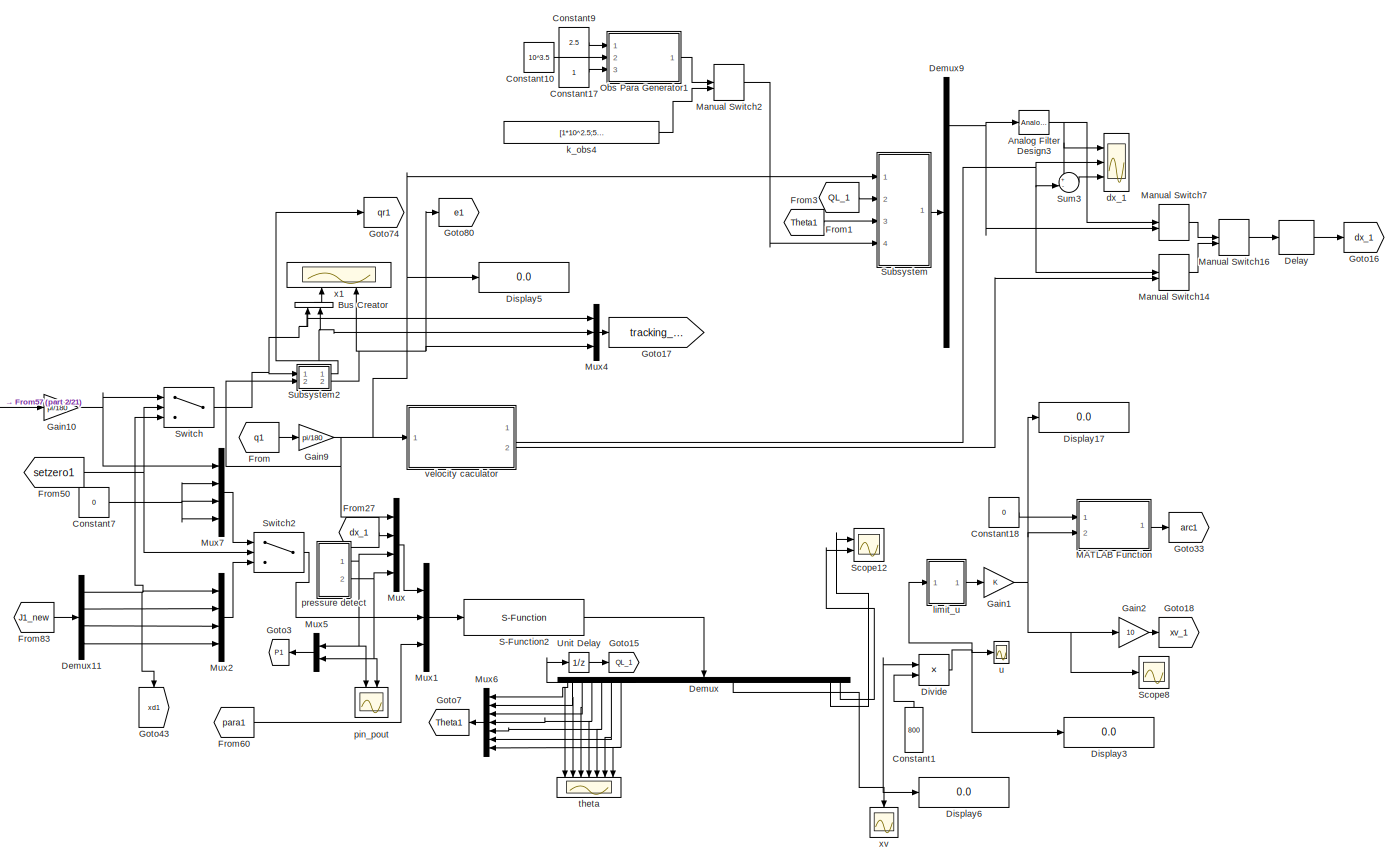
[diagram: root canvas - part 1/21, top right region]
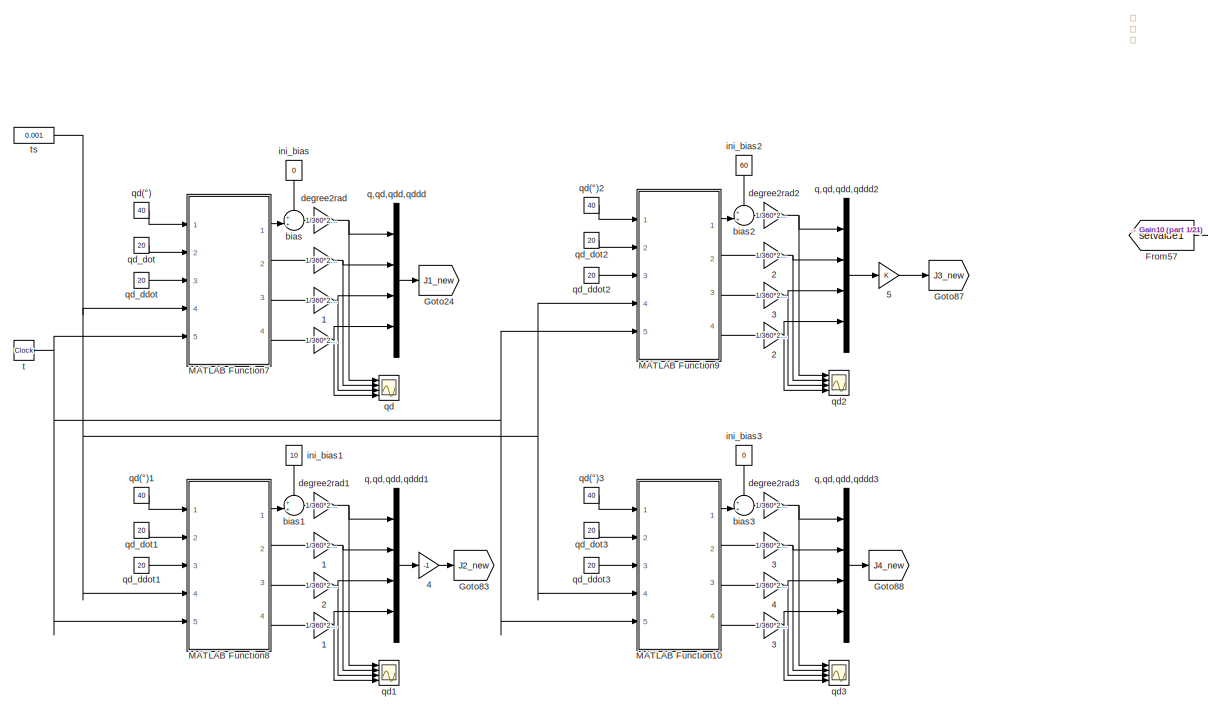
[diagram: root canvas - part 2/21, top right region]
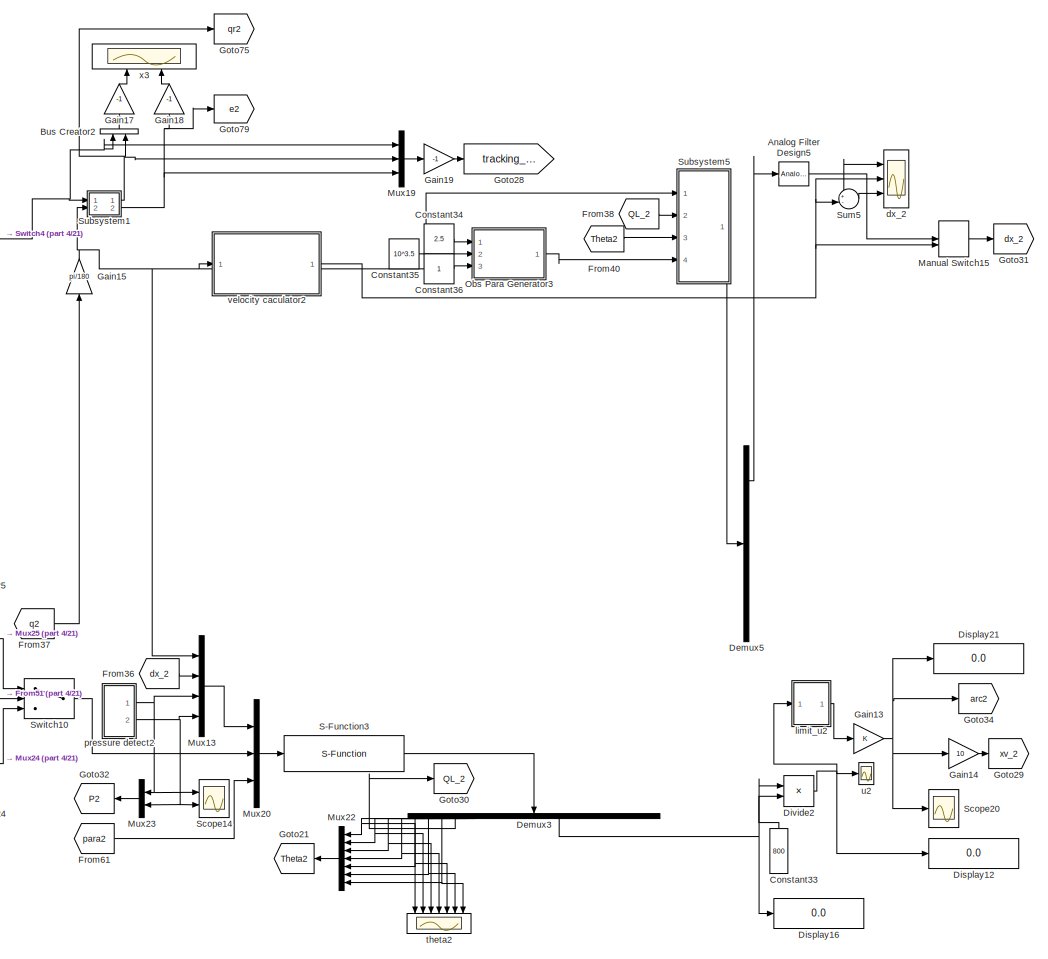
[diagram: root canvas - part 3/21, top right region]
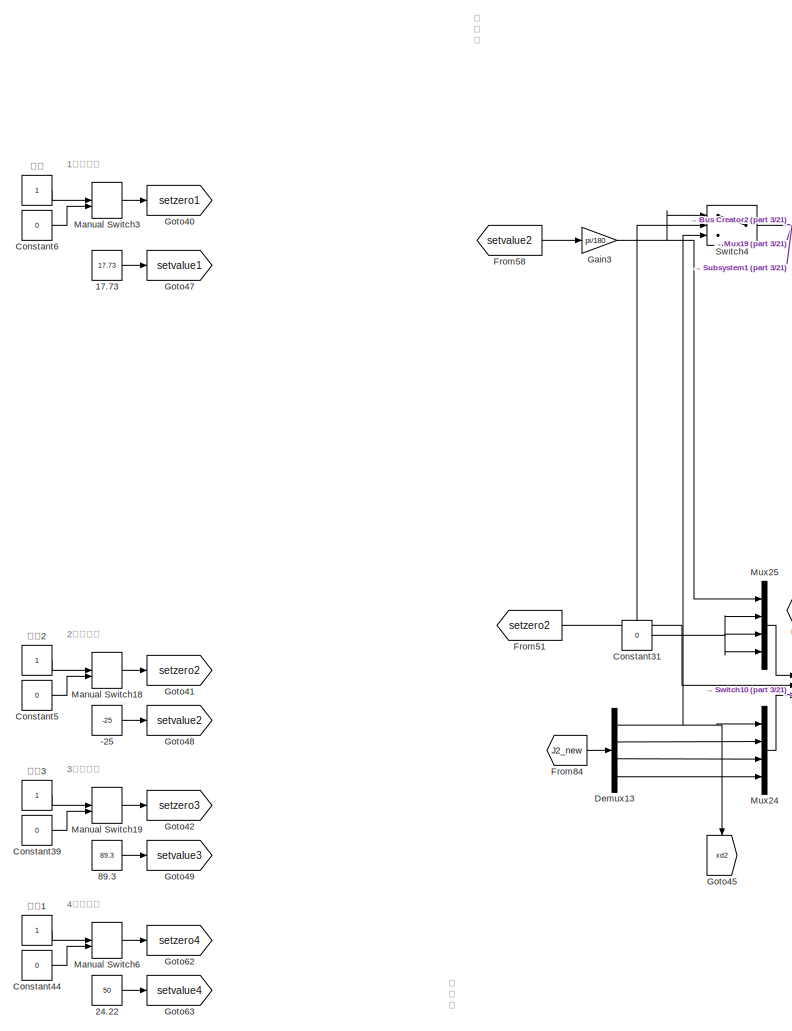
[diagram: root canvas - part 4/21, middle right region]
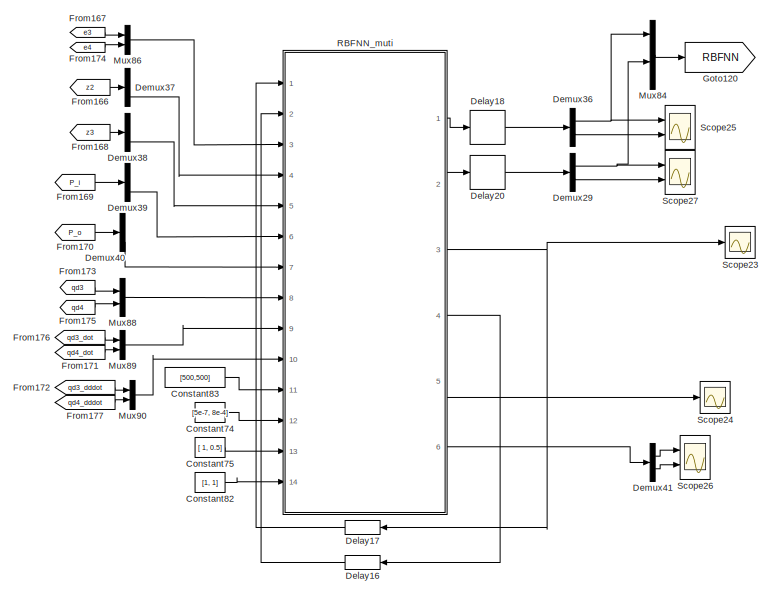
[diagram: root canvas - part 5/21, central region]
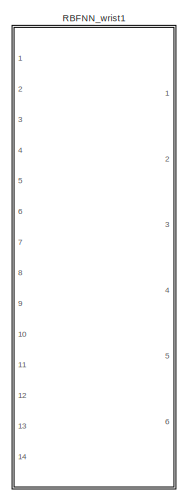
[diagram: root canvas - part 6/21, middle left region]
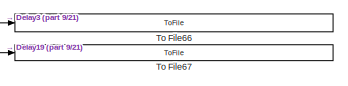
[diagram: root canvas - part 7/21, middle left region]
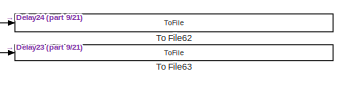
[diagram: root canvas - part 8/21, central region]
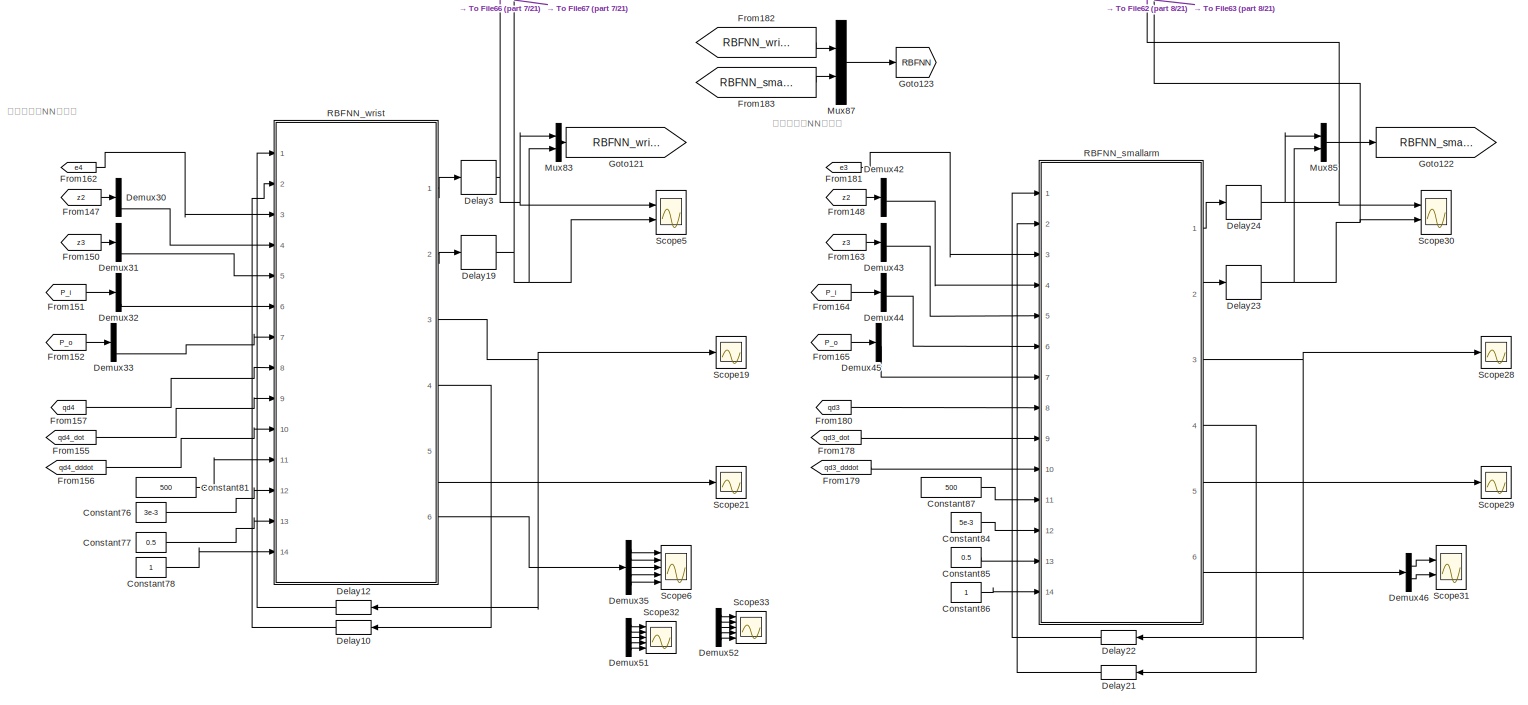
[diagram: root canvas - part 9/21, middle left region]
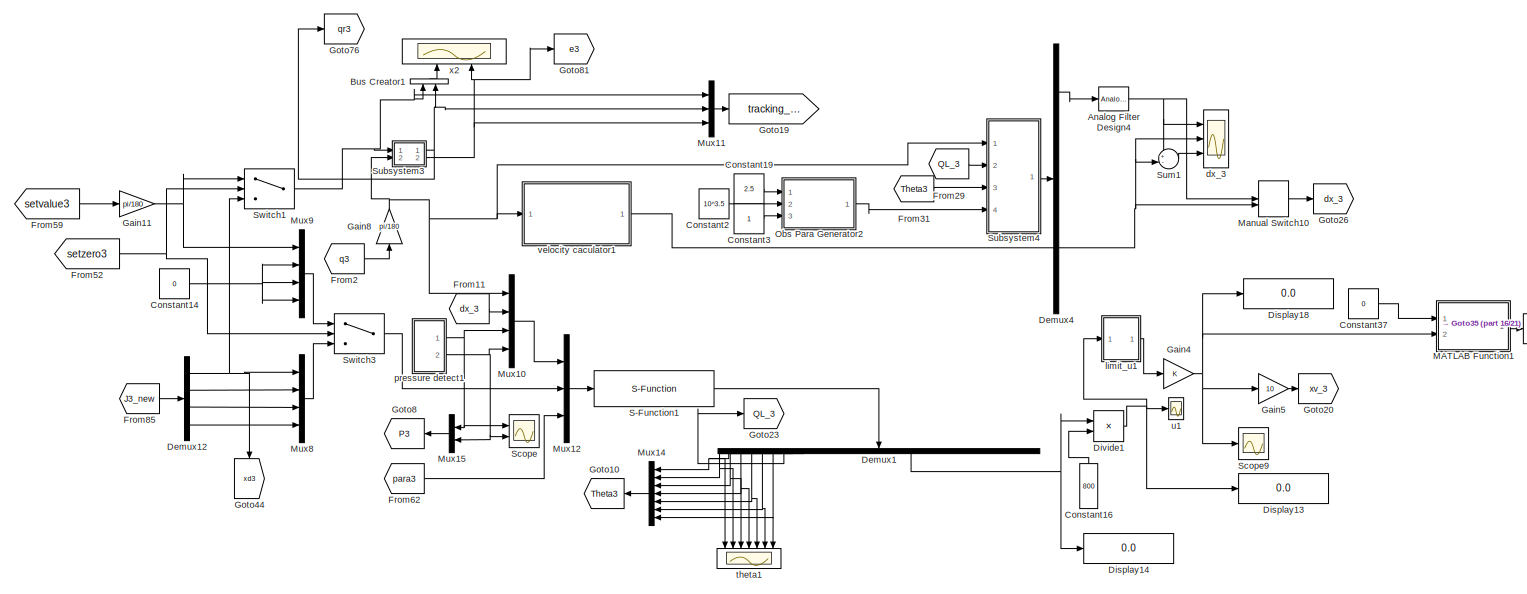
[diagram: root canvas - part 10/21, middle right region]
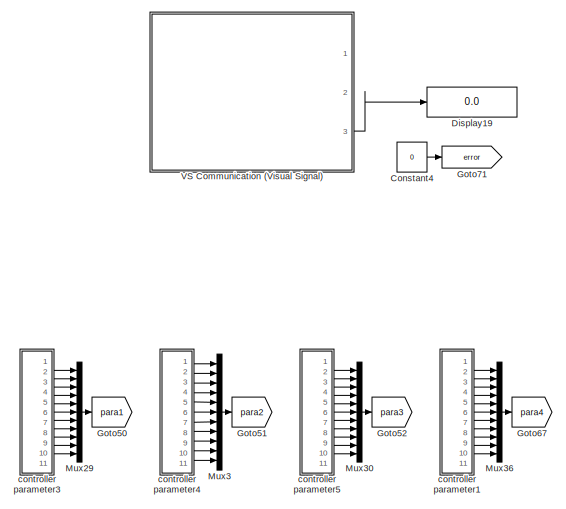
[diagram: root canvas - part 11/21, middle right region]
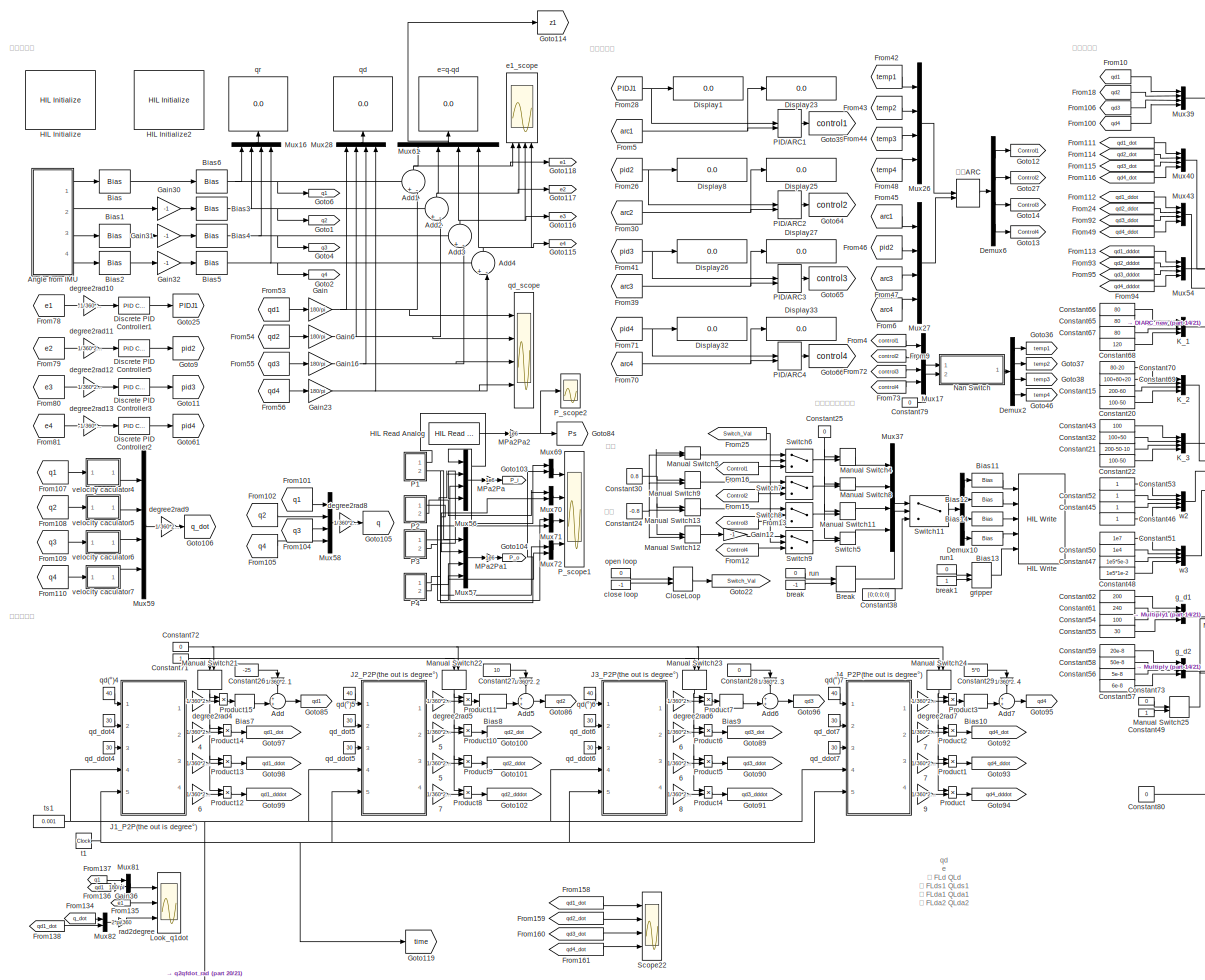
[diagram: root canvas - part 12/21, bottom left region]
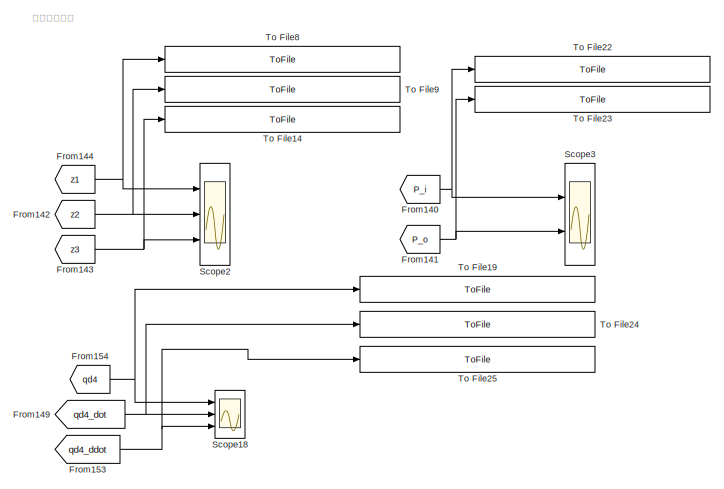
[diagram: root canvas - part 13/21, central region]
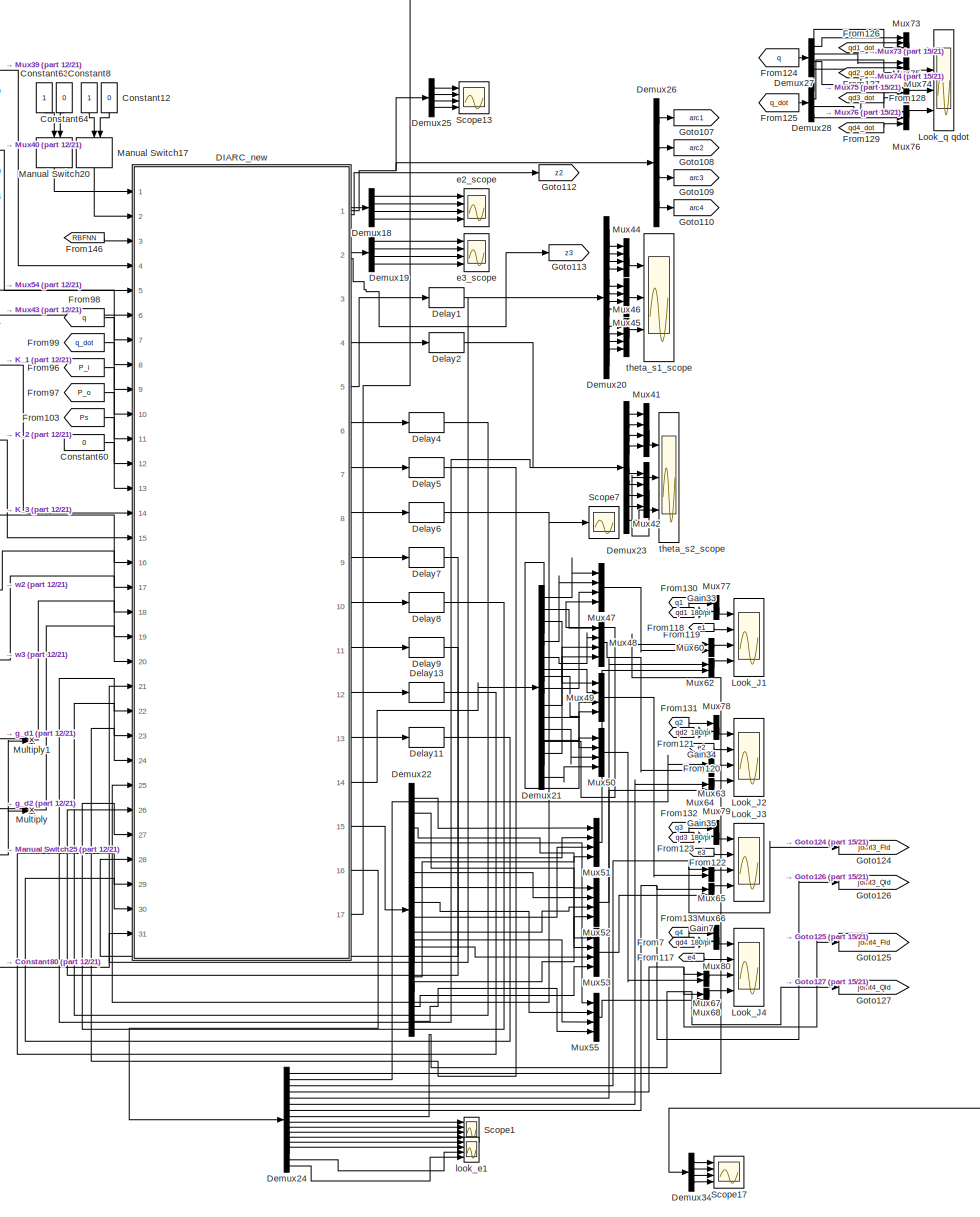
[diagram: root canvas - part 14/21, bottom left region]
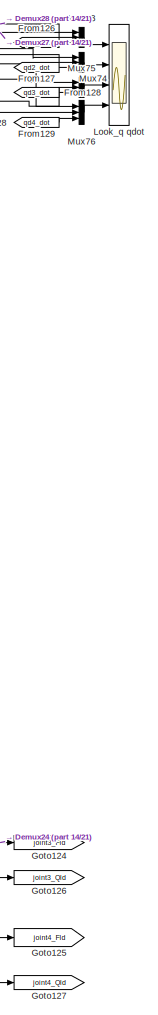
[diagram: root canvas - part 15/21, bottom center region]
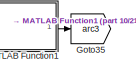
[diagram: root canvas - part 16/21, middle right region]
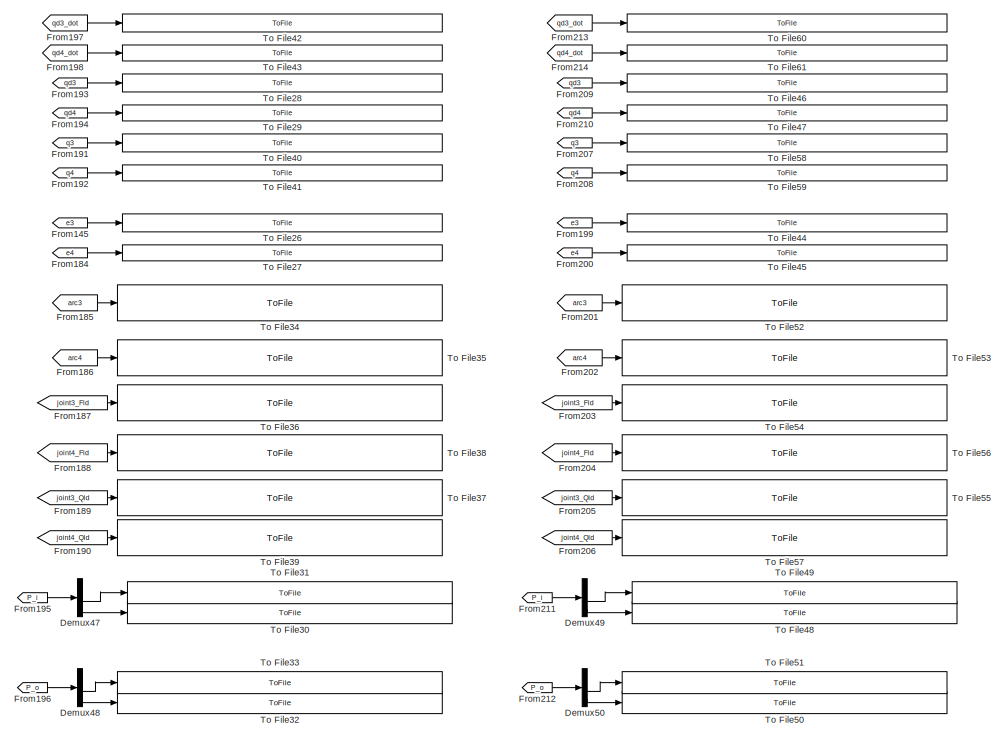
[diagram: root canvas - part 17/21, bottom center region]
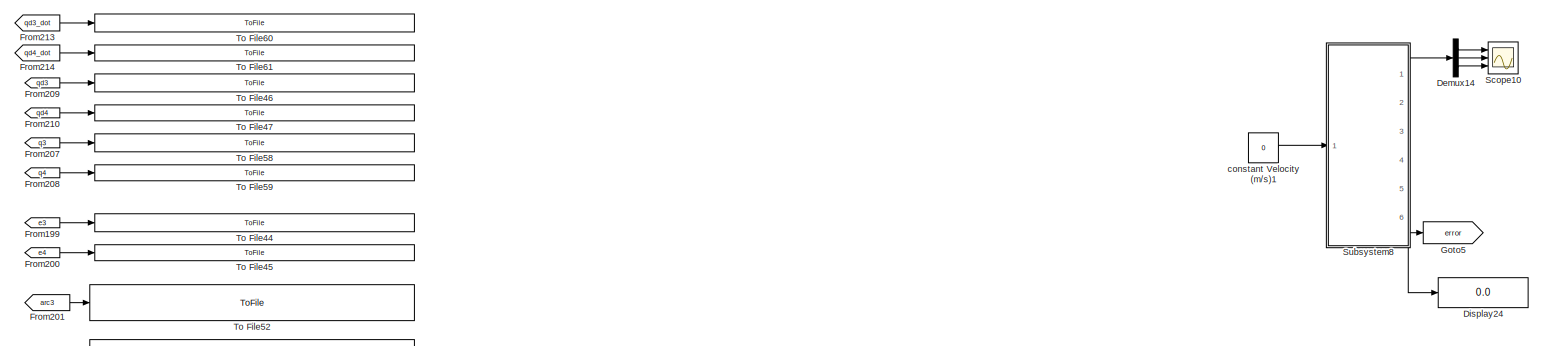
[diagram: root canvas - part 18/21, bottom center region]
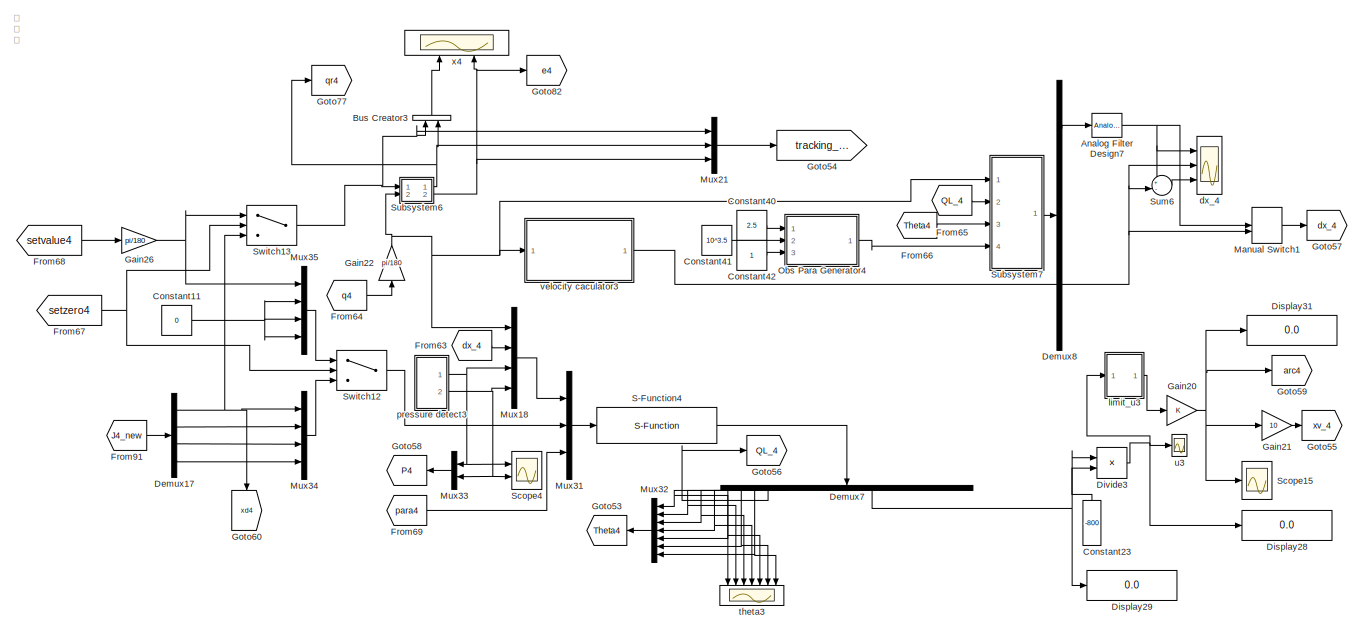
[diagram: root canvas - part 19/21, bottom right region]
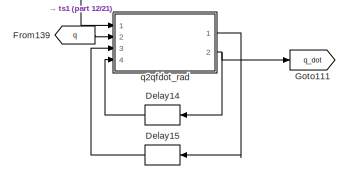
[diagram: root canvas - part 20/21, bottom left region]
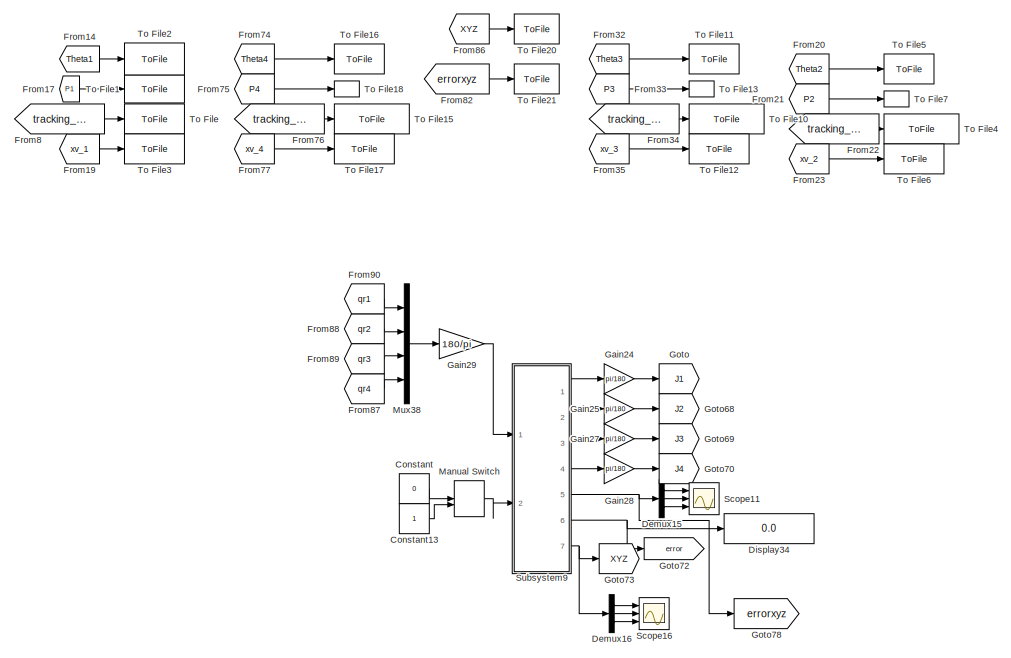
[diagram: root canvas - part 21/21, bottom right region]
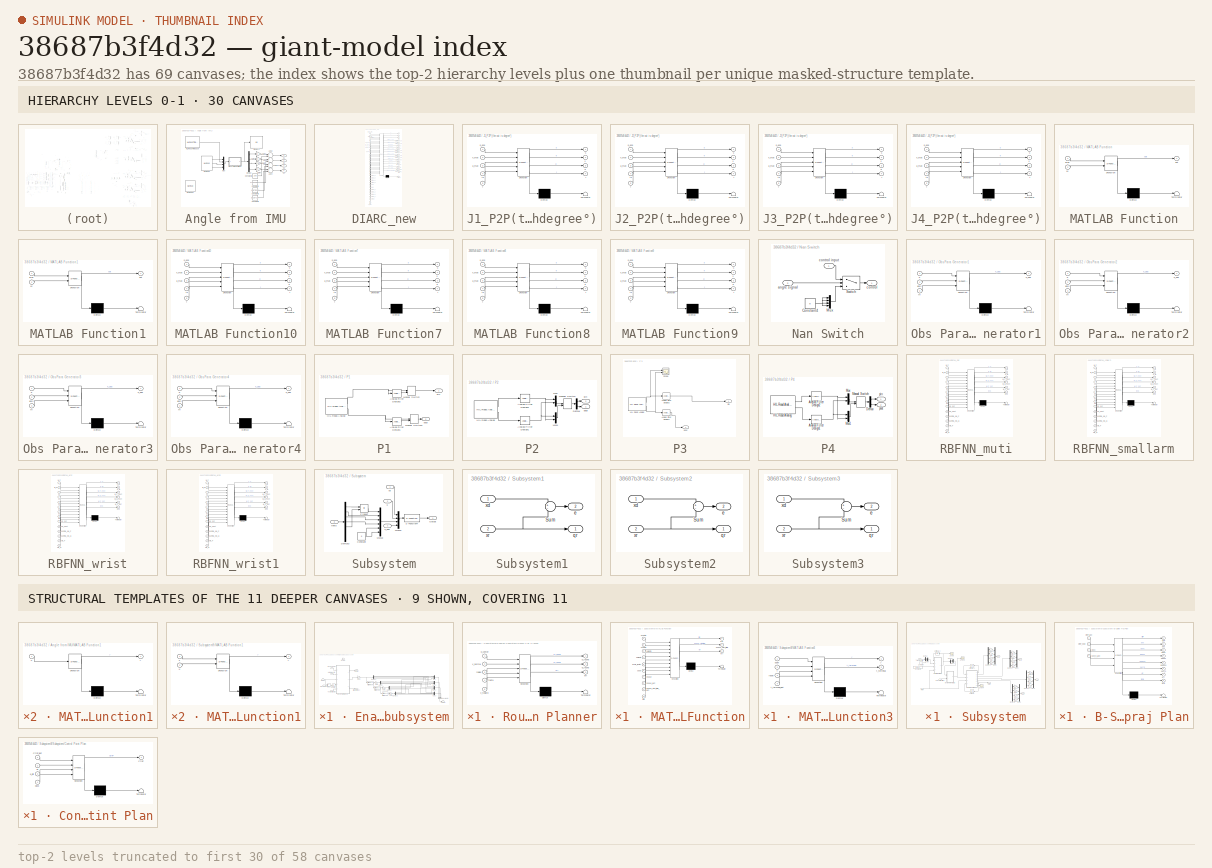
[diagram: thumbnail index - top-2 hierarchy levels (58 canvases (first 30 of 58 shown)) + 9 structural-template representatives of the remaining 11 canvases]
MODEL slx_38687b3f4d32
KIND model
CONFIG AbsTol = auto
CONFIG EnableMultiTasking = on
CONFIG FixedStep = 0.001
CONFIG MaxStep = auto
CONFIG MinStep = auto
CONFIG RelTol = 1e-3
CONFIG SampleTimeConstraint = Unconstrained
CONFIG Solver = FixedStepAuto
CONFIG SolverName = FixedStepAuto
CONFIG StartTime = 0.0
CONFIG StopTime = inf
BLOCK [Gain]  
  Gain = 1/360*2*pi
  OutDataTypeStr = Inherit: Inherit via internal rule
  ParamDataTypeStr = Inherit: Inherit via internal rule
  SaturateOnIntegerOverflow = off
BLOCK [Gain]   
  Commented = on
  Gain = 1/360*2*pi
  OutDataTypeStr = Inherit: Inherit via internal rule
  ParamDataTypeStr = Inherit: Inherit via internal rule
  SaturateOnIntegerOverflow = off
BLOCK [Gain]    
  Commented = on
  Gain = 1/360*2*pi
  OutDataTypeStr = Inherit: Inherit via internal rule
  ParamDataTypeStr = Inherit: Inherit via internal rule
  SaturateOnIntegerOverflow = off
BLOCK [Gain]    1
  Commented = on
  Gain = 1/360*2*pi
  OutDataTypeStr = Inherit: Inherit via internal rule
  ParamDataTypeStr = Inherit: Inherit via internal rule
  SaturateOnIntegerOverflow = off
BLOCK [Gain]    2
  Commented = on
  Gain = 1/360*2*pi
  OutDataTypeStr = Inherit: Inherit via internal rule
  ParamDataTypeStr = Inherit: Inherit via internal rule
  SaturateOnIntegerOverflow = off
BLOCK [Gain]    3
  Commented = on
  Gain = 1/360*2*pi
  OutDataTypeStr = Inherit: Inherit via internal rule
  ParamDataTypeStr = Inherit: Inherit via internal rule
  SaturateOnIntegerOverflow = off
BLOCK [Gain]    4
  Gain = 1/360*2*pi
  OutDataTypeStr = Inherit: Inherit via internal rule
  ParamDataTypeStr = Inherit: Inherit via internal rule
  SaturateOnIntegerOverflow = off
BLOCK [Gain]    5
  Gain = 1/360*2*pi
  OutDataTypeStr = Inherit: Inherit via internal rule
  ParamDataTypeStr = Inherit: Inherit via internal rule
  SaturateOnIntegerOverflow = off
BLOCK [Gain]    6
  Gain = 1/360*2*pi
  OutDataTypeStr = Inherit: Inherit via internal rule
  ParamDataTypeStr = Inherit: Inherit via internal rule
  SaturateOnIntegerOverflow = off
BLOCK [Gain]    7
  Gain = 1/360*2*pi
  OutDataTypeStr = Inherit: Inherit via internal rule
  ParamDataTypeStr = Inherit: Inherit via internal rule
  SaturateOnIntegerOverflow = off
BLOCK [Gain]   1
  Commented = on
  Gain = 1/360*2*pi
  OutDataTypeStr = Inherit: Inherit via internal rule
  ParamDataTypeStr = Inherit: Inherit via internal rule
  SaturateOnIntegerOverflow = off
BLOCK [Gain]   2
  Commented = on
  Gain = 1/360*2*pi
  OutDataTypeStr = Inherit: Inherit via internal rule
  ParamDataTypeStr = Inherit: Inherit via internal rule
  SaturateOnIntegerOverflow = off
BLOCK [Gain]   3
  Commented = on
  Gain = 1/360*2*pi
  OutDataTypeStr = Inherit: Inherit via internal rule
  ParamDataTypeStr = Inherit: Inherit via internal rule
  SaturateOnIntegerOverflow = off
BLOCK [Gain]   4
  Commented = on
  Gain = -1
  OutDataTypeStr = Inherit: Inherit via internal rule
  ParamDataTypeStr = Inherit: Inherit via internal rule
  SaturateOnIntegerOverflow = off
BLOCK [Gain]   5
  Commented = on
  OutDataTypeStr = Inherit: Inherit via internal rule
  ParamDataTypeStr = Inherit: Inherit via internal rule
  SaturateOnIntegerOverflow = off
BLOCK [Gain]   6
  Gain = 1/360*2*pi
  OutDataTypeStr = Inherit: Inherit via internal rule
  ParamDataTypeStr = Inherit: Inherit via internal rule
  SaturateOnIntegerOverflow = off
BLOCK [Gain]   7
  Gain = 1/360*2*pi
  OutDataTypeStr = Inherit: Inherit via internal rule
  ParamDataTypeStr = Inherit: Inherit via internal rule
  SaturateOnIntegerOverflow = off
BLOCK [Gain]   8
  Gain = 1/360*2*pi
  OutDataTypeStr = Inherit: Inherit via internal rule
  ParamDataTypeStr = Inherit: Inherit via internal rule
  SaturateOnIntegerOverflow = off
BLOCK [Gain]   9
  Gain = 1/360*2*pi
  OutDataTypeStr = Inherit: Inherit via internal rule
  ParamDataTypeStr = Inherit: Inherit via internal rule
  SaturateOnIntegerOverflow = off
BLOCK [Gain]  1
  Commented = on
  Gain = 1/360*2*pi
  OutDataTypeStr = Inherit: Inherit via internal rule
  ParamDataTypeStr = Inherit: Inherit via internal rule
  SaturateOnIntegerOverflow = off
BLOCK [Gain]  2
  Commented = on
  Gain = 1/360*2*pi
  OutDataTypeStr = Inherit: Inherit via internal rule
  ParamDataTypeStr = Inherit: Inherit via internal rule
  SaturateOnIntegerOverflow = off
BLOCK [Gain]  3
  Commented = on
  Gain = 1/360*2*pi
  OutDataTypeStr = Inherit: Inherit via internal rule
  ParamDataTypeStr = Inherit: Inherit via internal rule
  SaturateOnIntegerOverflow = off
BLOCK [Gain]  4
  Commented = on
  Gain = 1/360*2*pi
  OutDataTypeStr = Inherit: Inherit via internal rule
  ParamDataTypeStr = Inherit: Inherit via internal rule
  SaturateOnIntegerOverflow = off
BLOCK [Gain]  5
  Gain = 1/360*2*pi
  OutDataTypeStr = Inherit: Inherit via internal rule
  ParamDataTypeStr = Inherit: Inherit via internal rule
  SaturateOnIntegerOverflow = off
BLOCK [Gain]  6
  Gain = 1/360*2*pi
  OutDataTypeStr = Inherit: Inherit via internal rule
  ParamDataTypeStr = Inherit: Inherit via internal rule
  SaturateOnIntegerOverflow = off
BLOCK [Gain]  7
  Gain = 1/360*2*pi
  OutDataTypeStr = Inherit: Inherit via internal rule
  ParamDataTypeStr = Inherit: Inherit via internal rule
  SaturateOnIntegerOverflow = off
BLOCK [Constant] -25
  Commented = on
  Value = -25
BLOCK [Gain] 1
  Gain = 1/360*2*pi
  OutDataTypeStr = Inherit: Inherit via internal rule
  ParamDataTypeStr = Inherit: Inherit via internal rule
  SaturateOnIntegerOverflow = off
BLOCK [Constant] 17.73
  Commented = on
  Value = 17.73
BLOCK [Gain] 2
  Gain = 1/360*2*pi
  OutDataTypeStr = Inherit: Inherit via internal rule
  ParamDataTypeStr = Inherit: Inherit via internal rule
  SaturateOnIntegerOverflow = off
BLOCK [Constant] 24.22
  Commented = on
  Value = 50
BLOCK [Gain] 3
  Gain = 1/360*2*pi
  OutDataTypeStr = Inherit: Inherit via internal rule
  ParamDataTypeStr = Inherit: Inherit via internal rule
  SaturateOnIntegerOverflow = off
BLOCK [Gain] 4
  Gain = 1/360*2*pi
  OutDataTypeStr = Inherit: Inherit via internal rule
  ParamDataTypeStr = Inherit: Inherit via internal rule
  SaturateOnIntegerOverflow = off
BLOCK [Constant] 89.3
  Commented = on
  Value = 89.3
BLOCK [Sum] Add
  IconShape = round
  InputSameDT = off
  Inputs = ++|
  OutDataTypeStr = Inherit: Inherit via internal rule
  Ports = [2, 1]
  SaturateOnIntegerOverflow = off
BLOCK [Sum] Add1
  IconShape = round
  InputSameDT = off
  Inputs = +-|
  OutDataTypeStr = Inherit: Inherit via internal rule
  Ports = [2, 1]
  SaturateOnIntegerOverflow = off
BLOCK [Sum] Add2
  IconShape = round
  InputSameDT = off
  Inputs = +-|
  OutDataTypeStr = Inherit: Inherit via internal rule
  Ports = [2, 1]
  SaturateOnIntegerOverflow = off
BLOCK [Sum] Add3
  IconShape = round
  InputSameDT = off
  Inputs = +-|
  OutDataTypeStr = Inherit: Inherit via internal rule
  Ports = [2, 1]
  SaturateOnIntegerOverflow = off
BLOCK [Sum] Add4
  IconShape = round
  InputSameDT = off
  Inputs = +-|
  OutDataTypeStr = Inherit: Inherit via internal rule
  Ports = [2, 1]
  SaturateOnIntegerOverflow = off
BLOCK [Sum] Add5
  IconShape = round
  InputSameDT = off
  Inputs = ++|
  OutDataTypeStr = Inherit: Inherit via internal rule
  Ports = [2, 1]
  SaturateOnIntegerOverflow = off
BLOCK [Sum] Add6
  IconShape = round
  InputSameDT = off
  Inputs = ++|
  OutDataTypeStr = Inherit: Inherit via internal rule
  Ports = [2, 1]
  SaturateOnIntegerOverflow = off
BLOCK [Sum] Add7
  IconShape = round
  InputSameDT = off
  Inputs = ++|
  OutDataTypeStr = Inherit: Inherit via internal rule
  Ports = [2, 1]
  SaturateOnIntegerOverflow = off
BLOCK [Reference] Analog Filter Design3  REF=dsparch4/Analog
Filter Design
  Commented = on
  Ports = [1, 1]
  SourceBlock = dsparch4/Analog\nFilter Design
  SourceProductBaseCode = DS
  SourceProductName = DSP System Toolbox
  SourceType = Analog Filter Design
BLOCK [Reference] Analog Filter Design4  REF=dsparch4/Analog
Filter Design
  Commented = on
  Ports = [1, 1]
  SourceBlock = dsparch4/Analog\nFilter Design
  SourceProductBaseCode = DS
  SourceProductName = DSP System Toolbox
  SourceType = Analog Filter Design
BLOCK [Reference] Analog Filter Design5  REF=dsparch4/Analog
Filter Design
  Commented = on
  Ports = [1, 1]
  SourceBlock = dsparch4/Analog\nFilter Design
  SourceProductBaseCode = DS
  SourceProductName = DSP System Toolbox
  SourceType = Analog Filter Design
BLOCK [Reference] Analog Filter Design7  REF=dsparch4/Analog
Filter Design
  Commented = on
  Ports = [1, 1]
  SourceBlock = dsparch4/Analog\nFilter Design
  SourceProductBaseCode = DS
  SourceProductName = DSP System Toolbox
  SourceType = Analog Filter Design
BLOCK [SubSystem] Angle from IMU
  Ports = [0, 4]
  RequestExecContextInheritance = off
BLOCK [Sum] Angle from IMU/Add1
  InputSameDT = off
  OutDataTypeStr = Inherit: Inherit via internal rule
  Ports = [2, 1]
  SaturateOnIntegerOverflow = off
BLOCK [Sum] Angle from IMU/Add2
  InputSameDT = off
  OutDataTypeStr = Inherit: Inherit via internal rule
  Ports = [2, 1]
  SaturateOnIntegerOverflow = off
BLOCK [Sum] Angle from IMU/Add3
  InputSameDT = off
  OutDataTypeStr = Inherit: Inherit via internal rule
  Ports = [2, 1]
  SaturateOnIntegerOverflow = off
BLOCK [Sum] Angle from IMU/Add4
  InputSameDT = off
  OutDataTypeStr = Inherit: Inherit via internal rule
  Ports = [2, 1]
  SaturateOnIntegerOverflow = off
BLOCK [Constant] Angle from IMU/Constant1
  Value = 175-192.5*1.5-37
BLOCK [Constant] Angle from IMU/Constant2
  Value = 158
BLOCK [Constant] Angle from IMU/Constant3
  Value = 43*17/20-19
BLOCK [Constant] Angle from IMU/Constant9
  Value = -291*1+144
BLOCK [Demux] Angle from IMU/Demux
  DisplayOption = bar
  Ports = [1, 4]
BLOCK [Display] Angle from IMU/Display4
  Decimation = 1
  Ports = [1]
BLOCK [Gain] Angle from IMU/Gain1
  OutDataTypeStr = Inherit: Inherit via internal rule
  ParamDataTypeStr = Inherit: Inherit via internal rule
  SaturateOnIntegerOverflow = off
BLOCK [Gain] Angle from IMU/Gain3
  Gain = 17/20
  OutDataTypeStr = Inherit: Inherit via internal rule
  ParamDataTypeStr = Inherit: Inherit via internal rule
  SaturateOnIntegerOverflow = off
BLOCK [Gain] Angle from IMU/Gain6
  Gain = -1
  OutDataTypeStr = Inherit: Inherit via internal rule
  ParamDataTypeStr = Inherit: Inherit via internal rule
  SaturateOnIntegerOverflow = off
BLOCK [Gain] Angle from IMU/Gain7
  OutDataTypeStr = Inherit: Inherit via internal rule
  ParamDataTypeStr = Inherit: Inherit via internal rule
  SaturateOnIntegerOverflow = off
BLOCK [Reference] Angle from IMU/HIL Read  REF=quarc_library/Data Acquisition/Generic/Immediate I//O/HIL Read
  AttributesFormatString = (%<object_name>)
  Ports = [0, 3]
  SourceBlock = quarc_library/Data Acquisition/Generic/Immediate I//O/HIL Read
  SourceProductName = QUARC Targets
  SourceType = HIL Read
  UserDataPersistent = on
BLOCK [Reference] Angle from IMU/HIL Read Timebase  REF=quarc_library/Data Acquisition/Generic/Timebases/HIL Read
Timebase
  AttributesFormatString = (%<object_name>)
  Ports = [0, 1]
  SourceBlock = quarc_library/Data Acquisition/Generic/Timebases/HIL Read\nTimebase
  SourceProductName = QUARC Targets
  SourceType = HIL Read Timebase
  UserDataPersistent = on
BLOCK [Reference] Angle from IMU/HIL Read1  REF=quarc_library/Data Acquisition/Generic/Immediate I//O/HIL Read
  AttributesFormatString = (%<object_name>)
  Commented = on
  Ports = [0, 1]
  SourceBlock = quarc_library/Data Acquisition/Generic/Immediate I//O/HIL Read
  SourceProductName = QUARC Targets
  SourceType = HIL Read
  UserDataPersistent = on
BLOCK [SubSystem] Angle from IMU/MATLAB Function1
  ErrorFcn = Stateflow.Translate.translate
  PermitHierarchicalResolution = ExplicitOnly
  Ports = [1, 1]
  RequestExecContextInheritance = off
  SFBlockType = MATLAB Function
  TreatAsAtomicUnit = on
BLOCK [Demux] Angle from IMU/MATLAB Function1/ Demux 
  Outputs = 1
  Ports = [1, 1]
BLOCK [S-Function] Angle from IMU/MATLAB Function1/ SFunction 
  EnableBusSupport = on
  FunctionName = sf_sfun
  PortCounts = [1 2]
  Ports = [1, 2]
  SFcnIsStateOwnerBlock = off
  SFunctionDeploymentMode = off
  Tag = Stateflow S-Function RBFNN_1221 7
BLOCK [Terminator] Angle from IMU/MATLAB Function1/ Terminator 
BLOCK [Inport] Angle from IMU/MATLAB Function1/u
  IconDisplay = Port number
BLOCK [Outport] Angle from IMU/MATLAB Function1/y
  IconDisplay = Port number
BLOCK [Mux] Angle from IMU/Mux
  DisplayOption = bar
  Ports = [4, 1]
BLOCK [Outport] Angle from IMU/q1
  IconDisplay = Port number
BLOCK [Outport] Angle from IMU/q2
  IconDisplay = Port number
  Port = 2
BLOCK [Outport] Angle from IMU/q3 
  IconDisplay = Port number
  Port = 3
BLOCK [Outport] Angle from IMU/q4
  IconDisplay = Port number
  Port = 4
BLOCK [Bias] Bias
  Bias = -52
  SaturateOnIntegerOverflow = off
BLOCK [Bias] Bias1
  Bias = +19
  SaturateOnIntegerOverflow = off
BLOCK [Bias] Bias10
  Bias = -0.5
  SaturateOnIntegerOverflow = off
BLOCK [Bias] Bias11
  Bias = 0.18
  SaturateOnIntegerOverflow = off
BLOCK [Bias] Bias12
  Bias = 0.365
  SaturateOnIntegerOverflow = off
BLOCK [Bias] Bias13
  Bias = 0.21
  SaturateOnIntegerOverflow = off
BLOCK [Bias] Bias14
  Bias = 0.18
  SaturateOnIntegerOverflow = off
BLOCK [Bias] Bias2
  Bias = -19
  SaturateOnIntegerOverflow = off
BLOCK [Bias] Bias3
  Bias = -42.6+18+5+2+1-22
  SaturateOnIntegerOverflow = off
BLOCK [Bias] Bias4
  Bias = -3.5+58
  SaturateOnIntegerOverflow = off
BLOCK [Bias] Bias5
  Bias = -0.8-1-2
  SaturateOnIntegerOverflow = off
BLOCK [Bias] Bias6
  SaturateOnIntegerOverflow = off
BLOCK [Bias] Bias7
  SaturateOnIntegerOverflow = off
BLOCK [Bias] Bias8
  Bias = +0.66
  SaturateOnIntegerOverflow = off
BLOCK [Bias] Bias9
  Bias = -1.7
  SaturateOnIntegerOverflow = off
BLOCK [ManualSwitch] Break
BLOCK [BusCreator] Bus Creator
  Commented = on
  DisplayOption = bar
  InheritFromInputs = on
  Inputs = 2
  Ports = [2, 1]
BLOCK [BusCreator] Bus Creator1
  Commented = on
  DisplayOption = bar
  InheritFromInputs = on
  Inputs = 2
  Ports = [2, 1]
BLOCK [BusCreator] Bus Creator2
  Commented = on
  DisplayOption = bar
  InheritFromInputs = on
  Inputs = 2
  Ports = [2, 1]
BLOCK [BusCreator] Bus Creator3
  Commented = on
  DisplayOption = bar
  InheritFromInputs = on
  Inputs = 2
  Ports = [2, 1]
BLOCK [ManualSwitch] CloseLoop
  CurrentSetting = 0
BLOCK [Constant] Constant
  Commented = on
  Value = 0
BLOCK [Constant] Constant1
  Commented = on
  Value = 800
BLOCK [Constant] Constant10
  Commented = on
  Value = 10^3.5
BLOCK [Constant] Constant11
  Commented = on
  Value = 0
BLOCK [Constant] Constant12
  Value = 0
BLOCK [Constant] Constant13
  Commented = on
BLOCK [Constant] Constant14
  Commented = on
  Value = 0
BLOCK [Constant] Constant15
  Value = 200-60
BLOCK [Constant] Constant16
  Commented = on
  Value = 800
BLOCK [Constant] Constant17
  Commented = on
BLOCK [Constant] Constant18
  Commented = on
  Value = 0
BLOCK [Constant] Constant19
  Commented = on
  Value = 2.5
BLOCK [Constant] Constant2
  Commented = on
  Value = 10^3.5
BLOCK [Constant] Constant20
  Value = 100-50
BLOCK [Constant] Constant21
  Value = 200-50-10
BLOCK [Constant] Constant22
  Value = 100-50
BLOCK [Constant] Constant23
  Commented = on
  Value = -800
BLOCK [Constant] Constant24
  Value = -0.8
BLOCK [Constant] Constant25
  Value = 0
BLOCK [Constant] Constant26
  Value = -25
BLOCK [Constant] Constant27
  Value = 10
BLOCK [Constant] Constant28
  Value = 0
BLOCK [Constant] Constant29
  Value = 5*0
BLOCK [Constant] Constant3
  Commented = on
BLOCK [Constant] Constant30
  Value = 0.8
BLOCK [Constant] Constant31
  Commented = on
  Value = 0
BLOCK [Constant] Constant32
  Value = 100+50
BLOCK [Constant] Constant33
  Commented = on
  Value = 800
BLOCK [Constant] Constant34
  Commented = on
  Value = 2.5
BLOCK [Constant] Constant35
  Commented = on
  Value = 10^3.5
BLOCK [Constant] Constant36
  Commented = on
BLOCK [Constant] Constant37
  Commented = on
  Value = 0
BLOCK [Constant] Constant38
  Value = [0;0;0;0]
BLOCK [Constant] Constant39
  Commented = on
  Value = 0
BLOCK [Constant] Constant4
  Commented = on
  Value = 0
BLOCK [Constant] Constant40
  Commented = on
  Value = 2.5
BLOCK [Constant] Constant41
  Commented = on
  Value = 10^3.5
BLOCK [Constant] Constant42
  Commented = on
BLOCK [Constant] Constant43
  Value = 100
BLOCK [Constant] Constant44
  Commented = on
  Value = 0
BLOCK [Constant] Constant45
BLOCK [Constant] Constant46
BLOCK [Constant] Constant47
  Value = 1e5*5e-3
BLOCK [Constant] Constant48
  Value = 1e5*1e-2
BLOCK [Constant] Constant49
BLOCK [Constant] Constant5
  Commented = on
  Value = 0
BLOCK [Constant] Constant50
  Value = 1e4
BLOCK [Constant] Constant51
  Value = 1e7
BLOCK [Constant] Constant52
BLOCK [Constant] Constant53
BLOCK [Constant] Constant54
  Value = 100
BLOCK [Constant] Constant55
  Value = 30
BLOCK [Constant] Constant56
  Value = 5e-8
BLOCK [Constant] Constant57
  Value = 6e-8
BLOCK [Constant] Constant58
  Value = 50e-8
BLOCK [Constant] Constant59
  Value = 20e-8
BLOCK [Constant] Constant6
  Commented = on
  Value = 0
BLOCK [Constant] Constant60
  Value = 0
BLOCK [Constant] Constant61
  Value = 240
BLOCK [Constant] Constant62
  Value = 200
BLOCK [Constant] Constant63
BLOCK [Constant] Constant64
  Value = 0
BLOCK [Constant] Constant65
  Value = 80
BLOCK [Constant] Constant66
  Value = 80
BLOCK [Constant] Constant67
  Value = 80
BLOCK [Constant] Constant68
  Value = 120
BLOCK [Constant] Constant69
  Value = 100+80+20
BLOCK [Constant] Constant7
  Commented = on
  Value = 0
BLOCK [Constant] Constant70
  Value = 80-20
BLOCK [Constant] Constant71
BLOCK [Constant] Constant72
  Value = 0
BLOCK [Constant] Constant73
  Value = 0
BLOCK [Constant] Constant74
  Commented = on
  Value = [5e-7, 8e-4]
BLOCK [Constant] Constant75
  Commented = on
  Value = [ 1, 0.5]
BLOCK [Constant] Constant76
  Value = 3e-3
BLOCK [Constant] Constant77
  Value = 0.5
BLOCK [Constant] Constant78
BLOCK [Constant] Constant79
  Value = 0
BLOCK [Constant] Constant8
BLOCK [Constant] Constant80
  Value = 0
BLOCK [Constant] Constant81
  Value = 500
BLOCK [Constant] Constant82
  Commented = on
  Value = [1, 1]
BLOCK [Constant] Constant83
  Commented = on
  Value = [500,500]
BLOCK [Constant] Constant84
  Value = 5e-3
BLOCK [Constant] Constant85
  Value = 0.5
BLOCK [Constant] Constant86
BLOCK [Constant] Constant87
  Value = 500
BLOCK [Constant] Constant9
  Commented = on
  Value = 2.5
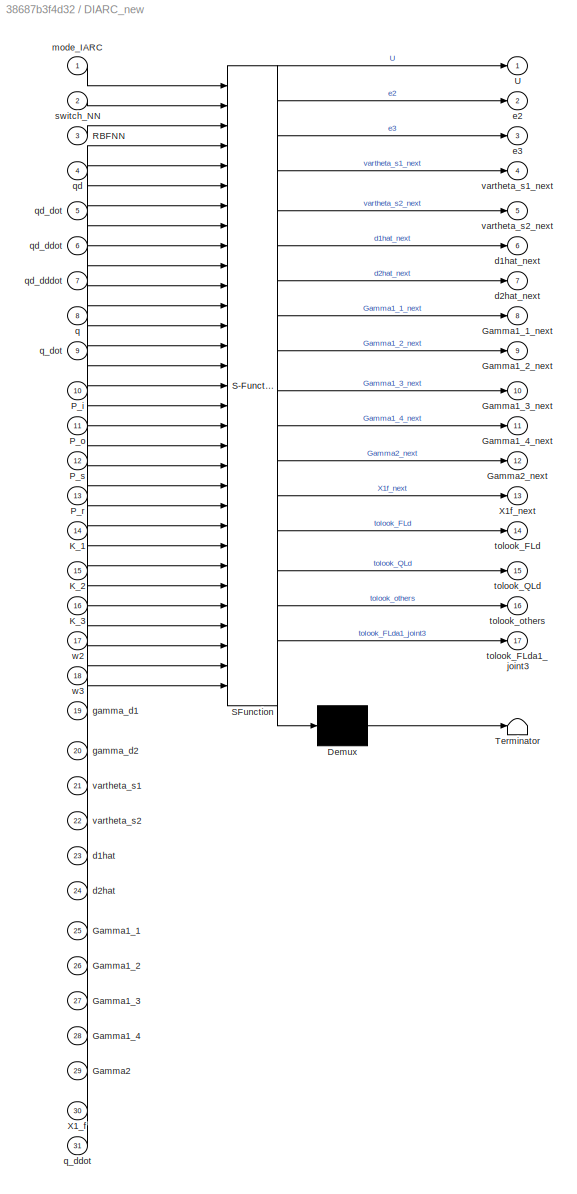
BLOCK [SubSystem] DIARC_new
  ErrorFcn = Stateflow.Translate.translate
  PermitHierarchicalResolution = ExplicitOnly
  Ports = [31, 17]
  RequestExecContextInheritance = off
  SFBlockType = MATLAB Function
  TreatAsAtomicUnit = on
BLOCK [Demux] DIARC_new/ Demux 
  Outputs = 1
  Ports = [1, 1]
BLOCK [S-Function] DIARC_new/ SFunction 
  EnableBusSupport = on
  FunctionName = sf_sfun
  PortCounts = [31 18]
  Ports = [31, 18]
  SFcnIsStateOwnerBlock = off
  SFunctionDeploymentMode = off
  Tag = Stateflow S-Function RBFNN_1221 29
BLOCK [Terminator] DIARC_new/ Terminator 
BLOCK [Inport] DIARC_new/Gamma1_1
  IconDisplay = Port number
  Port = 25
BLOCK [Outport] DIARC_new/Gamma1_1_next
  IconDisplay = Port number
  Port = 8
BLOCK [Inport] DIARC_new/Gamma1_2
  IconDisplay = Port number
  Port = 26
BLOCK [Outport] DIARC_new/Gamma1_2_next
  IconDisplay = Port number
  Port = 9
BLOCK [Inport] DIARC_new/Gamma1_3
  IconDisplay = Port number
  Port = 27
BLOCK [Outport] DIARC_new/Gamma1_3_next
  IconDisplay = Port number
  Port = 10
BLOCK [Inport] DIARC_new/Gamma1_4
  IconDisplay = Port number
  Port = 28
BLOCK [Outport] DIARC_new/Gamma1_4_next
  IconDisplay = Port number
  Port = 11
BLOCK [Inport] DIARC_new/Gamma2
  IconDisplay = Port number
  Port = 29
BLOCK [Outport] DIARC_new/Gamma2_next
  IconDisplay = Port number
  Port = 12
BLOCK [Inport] DIARC_new/K_1
  IconDisplay = Port number
  Port = 14
BLOCK [Inport] DIARC_new/K_2
  IconDisplay = Port number
  Port = 15
BLOCK [Inport] DIARC_new/K_3
  IconDisplay = Port number
  Port = 16
BLOCK [Inport] DIARC_new/P_i
  IconDisplay = Port number
  Port = 10
BLOCK [Inport] DIARC_new/P_o
  IconDisplay = Port number
  Port = 11
BLOCK [Inport] DIARC_new/P_r
  IconDisplay = Port number
  Port = 13
BLOCK [Inport] DIARC_new/P_s
  IconDisplay = Port number
  Port = 12
BLOCK [Inport] DIARC_new/RBFNN
  IconDisplay = Port number
  Port = 3
BLOCK [Outport] DIARC_new/U
  IconDisplay = Port number
BLOCK [Inport] DIARC_new/X1_f
  IconDisplay = Port number
  Port = 30
BLOCK [Outport] DIARC_new/X1f_next
  IconDisplay = Port number
  Port = 13
BLOCK [Inport] DIARC_new/d1hat
  IconDisplay = Port number
  Port = 23
BLOCK [Outport] DIARC_new/d1hat_next
  IconDisplay = Port number
  Port = 6
BLOCK [Inport] DIARC_new/d2hat
  IconDisplay = Port number
  Port = 24
BLOCK [Outport] DIARC_new/d2hat_next
  IconDisplay = Port number
  Port = 7
BLOCK [Outport] DIARC_new/e2
  IconDisplay = Port number
  Port = 2
BLOCK [Outport] DIARC_new/e3
  IconDisplay = Port number
  Port = 3
BLOCK [Inport] DIARC_new/gamma_d1
  IconDisplay = Port number
  Port = 19
BLOCK [Inport] DIARC_new/gamma_d2
  IconDisplay = Port number
  Port = 20
BLOCK [Inport] DIARC_new/mode_IARC
  IconDisplay = Port number
BLOCK [Inport] DIARC_new/q
  IconDisplay = Port number
  Port = 8
BLOCK [Inport] DIARC_new/q_ddot
  IconDisplay = Port number
  Port = 31
BLOCK [Inport] DIARC_new/q_dot
  IconDisplay = Port number
  Port = 9
BLOCK [Inport] DIARC_new/qd
  IconDisplay = Port number
  Port = 4
BLOCK [Inport] DIARC_new/qd_dddot
  IconDisplay = Port number
  Port = 7
BLOCK [Inport] DIARC_new/qd_ddot
  IconDisplay = Port number
  Port = 6
BLOCK [Inport] DIARC_new/qd_dot
  IconDisplay = Port number
  Port = 5
BLOCK [Inport] DIARC_new/switch_NN
  IconDisplay = Port number
  Port = 2
BLOCK [Outport] DIARC_new/tolook_FLd
  IconDisplay = Port number
  Port = 14
BLOCK [Outport] DIARC_new/tolook_FLda1_joint3
  IconDisplay = Port number
  Port = 17
BLOCK [Outport] DIARC_new/tolook_QLd
  IconDisplay = Port number
  Port = 15
BLOCK [Outport] DIARC_new/tolook_others
  IconDisplay = Port number
  Port = 16
BLOCK [Inport] DIARC_new/vartheta_s1
  IconDisplay = Port number
  Port = 21
BLOCK [Outport] DIARC_new/vartheta_s1_next
  IconDisplay = Port number
  Port = 4
BLOCK [Inport] DIARC_new/vartheta_s2
  IconDisplay = Port number
  Port = 22
BLOCK [Outport] DIARC_new/vartheta_s2_next
  IconDisplay = Port number
  Port = 5
BLOCK [Inport] DIARC_new/w2
  IconDisplay = Port number
  Port = 17
BLOCK [Inport] DIARC_new/w3
  IconDisplay = Port number
  Port = 18
BLOCK [Delay] Delay
  Commented = on
  DelayLength = 1
  InputPortMap = u0
  Ports = [1, 1]
BLOCK [Delay] Delay1
  DelayLength = 1
  InitialCondition = [40;60;60;60;25;30;25;20;0;0;0;-10].*2
  InputPortMap = u0
  Ports = [1, 1]
BLOCK [Delay] Delay10
  DelayLength = 1
  InitialCondition = ones(5,1)*0
  InputPortMap = u0
  Ports = [1, 1]
BLOCK [Delay] Delay11
  DelayLength = 1
  InitialCondition = [0,0,0,0,0,0,0,0,0,0,0,0,0,0,0,0,0,0,0,0,0,0,0,0,0,0,0,0,0,0,0,0,0,0,0,0,0]'
  InputPortMap = u0
  Ports = [1, 1]
BLOCK [Delay] Delay12
  DelayLength = 1
  InitialCondition = zeros(5,1)
  InputPortMap = u0
  Ports = [1, 1]
BLOCK [Delay] Delay13
  DelayLength = 1
  InitialCondition = [1e-5,0,0,0,0,0,0,0,0; 0,1e-5,0,0,0,0,0,0,0; 0,0,1e-5,0,0,0,0,0,0; 0,0,0,1e-5,0,0,0,0,0; 0,0,0,0,1e-5,0,0,0,0; 0,0,0,0,0,1e-5,0,0,0; 0,0,0,0,0,0,1e-5,0,0; 0,0,0,0,0,0,0,1e-5,0; 0,0,0,0,0,0,0,0,5e-8]
  InputPortMap = u0
  Ports = [1, 1]
BLOCK [Delay] Delay14
  DelayLength = 1
  InitialCondition = [0;0;0;0]
  InputPortMap = u0
  Ports = [1, 1]
BLOCK [Delay] Delay15
  DelayLength = 1
  InitialCondition = [0;0;0;0]
  InputPortMap = u0
  Ports = [1, 1]
BLOCK [Delay] Delay16
  Commented = on
  DelayLength = 1
  InitialCondition = zeros(5,2)*10-4
  InputPortMap = u0
  Ports = [1, 1]
BLOCK [Delay] Delay17
  Commented = on
  DelayLength = 1
  InitialCondition = zeros(5,2)
  InputPortMap = u0
  Ports = [1, 1]
BLOCK [Delay] Delay18
  Commented = on
  DelayLength = 1
  InitialCondition = [0,0]
  InputPortMap = u0
  Ports = [1, 1]
BLOCK [Delay] Delay19
  DelayLength = 1
  InputPortMap = u0
  Ports = [1, 1]
BLOCK [Delay] Delay2
  DelayLength = 1
  InitialCondition = [0;0;0;0; 0;0;0;0; 2e-10]
  InputPortMap = u0
  Ports = [1, 1]
BLOCK [Delay] Delay20
  Commented = on
  DelayLength = 1
  InitialCondition = [0,0]
  InputPortMap = u0
  Ports = [1, 1]
BLOCK [Delay] Delay21
  DelayLength = 1
  InitialCondition = ones(5,1)*1e-4
  InputPortMap = u0
  Ports = [1, 1]
BLOCK [Delay] Delay22
  DelayLength = 1
  InitialCondition = zeros(5,1)
  InputPortMap = u0
  Ports = [1, 1]
BLOCK [Delay] Delay23
  DelayLength = 1
  InputPortMap = u0
  Ports = [1, 1]
BLOCK [Delay] Delay24
  DelayLength = 1
  InputPortMap = u0
  Ports = [1, 1]
BLOCK [Delay] Delay3
  DelayLength = 1
  InputPortMap = u0
  Ports = [1, 1]
BLOCK [Delay] Delay4
  DelayLength = 1
  InitialCondition = [0;0;0;0]
  InputPortMap = u0
  Ports = [1, 1]
BLOCK [Delay] Delay5
  DelayLength = 1
  InitialCondition = [0;0;0;0]
  InputPortMap = u0
  Ports = [1, 1]
BLOCK [Delay] Delay6
  DelayLength = 1
  InitialCondition = [1e-2,0,0; 0,1e-2,0; 0,0,1e-2]
  InputPortMap = u0
  Ports = [1, 1]
BLOCK [Delay] Delay7
  DelayLength = 1
  InitialCondition = [1e-2,0,0; 0,1e-2,0; 0,0,1e-2]
  InputPortMap = u0
  Ports = [1, 1]
BLOCK [Delay] Delay8
  DelayLength = 1
  InitialCondition = [1e-2,0,0; 0,1e-2,0; 0,0,1e-2]
  InputPortMap = u0
  Ports = [1, 1]
BLOCK [Delay] Delay9
  DelayLength = 1
  InitialCondition = [1e-2,0,0; 0,1e-2,0; 0,0,1e-2]
  InputPortMap = u0
  Ports = [1, 1]
BLOCK [Demux] Demux
  Commented = on
  DisplayOption = bar
  Outputs = 29
  Ports = [1, 29]
BLOCK [Demux] Demux1
  Commented = on
  DisplayOption = bar
  Outputs = 29
  Ports = [1, 29]
BLOCK [Demux] Demux10
  DisplayOption = bar
  Ports = [1, 4]
BLOCK [Demux] Demux11
  Commented = on
  DisplayOption = bar
  Ports = [1, 4]
BLOCK [Demux] Demux12
  Commented = on
  DisplayOption = bar
  Ports = [1, 4]
BLOCK [Demux] Demux13
  Commented = on
  DisplayOption = bar
  Ports = [1, 4]
BLOCK [Demux] Demux14
  Commented = on
  DisplayOption = bar
  Outputs = 3
  Ports = [1, 3]
BLOCK [Demux] Demux15
  Commented = on
  DisplayOption = bar
  Outputs = 3
  Ports = [1, 3]
BLOCK [Demux] Demux16
  Commented = on
  DisplayOption = bar
  Outputs = 3
  Ports = [1, 3]
BLOCK [Demux] Demux17
  Commented = on
  DisplayOption = bar
  Ports = [1, 4]
BLOCK [Demux] Demux18
  DisplayOption = bar
  Ports = [1, 4]
BLOCK [Demux] Demux19
  DisplayOption = bar
  Ports = [1, 4]
BLOCK [Demux] Demux2
  DisplayOption = bar
  Ports = [1, 4]
BLOCK [Demux] Demux20
  DisplayOption = bar
  Outputs = 12
  Ports = [1, 12]
BLOCK [Demux] Demux21
  DisplayOption = bar
  Outputs = 16
  Ports = [1, 16]
BLOCK [Demux] Demux22
  DisplayOption = bar
  Outputs = 16
  Ports = [1, 16]
BLOCK [Demux] Demux23
  DisplayOption = bar
  Outputs = 9
  Ports = [1, 9]
BLOCK [Demux] Demux24
  DisplayOption = bar
  Outputs = 8+4+4
  Ports = [1, 16]
BLOCK [Demux] Demux25
  DisplayOption = bar
  Ports = [1, 4]
BLOCK [Demux] Demux26
  DisplayOption = bar
  Ports = [1, 4]
BLOCK [Demux] Demux27
  DisplayOption = bar
  Ports = [1, 4]
BLOCK [Demux] Demux28
  DisplayOption = bar
  Ports = [1, 4]
BLOCK [Demux] Demux29
  Commented = on
  DisplayOption = bar
  Outputs = 2
  Ports = [1, 2]
BLOCK [Demux] Demux3
  Commented = on
  DisplayOption = bar
  Outputs = 29
  Ports = [1, 29]
BLOCK [Demux] Demux30
  DisplayOption = bar
  Outputs = [1,1,1,1]
  Ports = [1, 4]
BLOCK [Demux] Demux31
  DisplayOption = bar
  Outputs = [1,1,1,1]
  Ports = [1, 4]
BLOCK [Demux] Demux32
  DisplayOption = bar
  Outputs = [1,1,1,1]
  Ports = [1, 4]
BLOCK [Demux] Demux33
  DisplayOption = bar
  Outputs = [1,1,1,1]
  Ports = [1, 4]
BLOCK [Demux] Demux34
  DisplayOption = bar
  Ports = [1, 4]
BLOCK [Demux] Demux35
  DisplayOption = bar
  Outputs = 5
  Ports = [1, 5]
BLOCK [Demux] Demux36
  Commented = on
  DisplayOption = bar
  Outputs = 2
  Ports = [1, 2]
BLOCK [Demux] Demux37
  Commented = on
  DisplayOption = bar
  Outputs = [1,1,2]
  Ports = [1, 3]
BLOCK [Demux] Demux38
  Commented = on
  DisplayOption = bar
  Outputs = [1,1,2]
  Ports = [1, 3]
BLOCK [Demux] Demux39
  Commented = on
  DisplayOption = bar
  Outputs = [1,1,2]
  Ports = [1, 3]
BLOCK [Demux] Demux4
  Commented = on
  DisplayOption = bar
  Outputs = 27
  Ports = [1, 27]
BLOCK [Demux] Demux40
  Commented = on
  DisplayOption = bar
  Outputs = [1,1,2]
  Ports = [1, 3]
BLOCK [Demux] Demux41
  Commented = on
  DisplayOption = bar
  Outputs = 2
  Ports = [1, 2]
BLOCK [Demux] Demux42
  DisplayOption = bar
  Outputs = [1,1,1,1]
  Ports = [1, 4]
BLOCK [Demux] Demux43
  DisplayOption = bar
  Outputs = [1,1,1,1]
  Ports = [1, 4]
BLOCK [Demux] Demux44
  DisplayOption = bar
  Outputs = [1,1,1,1]
  Ports = [1, 4]
BLOCK [Demux] Demux45
  DisplayOption = bar
  Outputs = [1,1,1,1]
  Ports = [1, 4]
BLOCK [Demux] Demux46
  DisplayOption = bar
  Outputs = 2
  Ports = [1, 2]
BLOCK [Demux] Demux47
  DisplayOption = bar
  Ports = [1, 4]
BLOCK [Demux] Demux48
  DisplayOption = bar
  Ports = [1, 4]
BLOCK [Demux] Demux49
  Commented = on
  DisplayOption = bar
  Ports = [1, 4]
BLOCK [Demux] Demux5
  Commented = on
  DisplayOption = bar
  Outputs = 27
  Ports = [1, 27]
BLOCK [Demux] Demux50
  Commented = on
  DisplayOption = bar
  Ports = [1, 4]
BLOCK [Demux] Demux51
  DisplayOption = bar
  Outputs = 5
  Ports = [1, 5]
BLOCK [Demux] Demux52
  DisplayOption = bar
  Outputs = 5
  Ports = [1, 5]
BLOCK [Demux] Demux6
  DisplayOption = bar
  Ports = [1, 4]
BLOCK [Demux] Demux7
  Commented = on
  DisplayOption = bar
  Outputs = 29
  Ports = [1, 29]
BLOCK [Demux] Demux8
  Commented = on
  DisplayOption = bar
  Outputs = 27
  Ports = [1, 27]
BLOCK [Demux] Demux9
  Commented = on
  DisplayOption = bar
  Outputs = 27
  Ports = [1, 27]
BLOCK [Reference] Discrete PID Controller1  REF=simulink/Continuous/PID Controller
  Ports = [1, 1]
  SourceBlock = simulink/Continuous/PID Controller
  SourceProductBaseCode = SL
  SourceProductName = Simulink
  SourceType = PID 1dof
BLOCK [Reference] Discrete PID Controller2  REF=simulink/Continuous/PID Controller
  Ports = [1, 1]
  SourceBlock = simulink/Continuous/PID Controller
  SourceProductBaseCode = SL
  SourceProductName = Simulink
  SourceType = PID 1dof
BLOCK [Reference] Discrete PID Controller3  REF=simulink/Continuous/PID Controller
  Ports = [1, 1]
  SourceBlock = simulink/Continuous/PID Controller
  SourceProductBaseCode = SL
  SourceProductName = Simulink
  SourceType = PID 1dof
BLOCK [Reference] Discrete PID Controller5  REF=simulink/Continuous/PID Controller
  Ports = [1, 1]
  SourceBlock = simulink/Continuous/PID Controller
  SourceProductBaseCode = SL
  SourceProductName = Simulink
  SourceType = PID 1dof
BLOCK [Display] Display1
  Decimation = 1
  Ports = [1]
BLOCK [Display] Display12
  Commented = on
  Decimation = 1
  Ports = [1]
BLOCK [Display] Display13
  Commented = on
  Decimation = 1
  Ports = [1]
BLOCK [Display] Display14
  Commented = on
  Decimation = 1
  Ports = [1]
BLOCK [Display] Display16
  Commented = on
  Decimation = 1
  Ports = [1]
BLOCK [Display] Display17
  Commented = on
  Decimation = 1
  Ports = [1]
BLOCK [Display] Display18
  Commented = on
  Decimation = 1
  Ports = [1]
BLOCK [Display] Display19
  Commented = on
  Decimation = 1
  Ports = [1]
BLOCK [Display] Display21
  Commented = on
  Decimation = 1
  Ports = [1]
BLOCK [Display] Display23
  Decimation = 1
  Ports = [1]
BLOCK [Display] Display24
  Commented = on
  Decimation = 1
  Ports = [1]
BLOCK [Display] Display25
  Decimation = 1
  Ports = [1]
BLOCK [Display] Display26
  Decimation = 1
  Ports = [1]
BLOCK [Display] Display27
  Decimation = 1
  Ports = [1]
BLOCK [Display] Display28
  Commented = on
  Decimation = 1
  Ports = [1]
BLOCK [Display] Display29
  Commented = on
  Decimation = 1
  Ports = [1]
BLOCK [Display] Display3
  Commented = on
  Decimation = 1
  Ports = [1]
BLOCK [Display] Display31
  Commented = on
  Decimation = 1
  Ports = [1]
BLOCK [Display] Display32
  Decimation = 1
  Ports = [1]
BLOCK [Display] Display33
  Decimation = 1
  Ports = [1]
BLOCK [Display] Display34
  Commented = on
  Decimation = 1
  Ports = [1]
BLOCK [Display] Display5
  Commented = on
  Decimation = 1
  Ports = [1]
BLOCK [Display] Display6
  Commented = on
  Decimation = 1
  Ports = [1]
BLOCK [Display] Display8
  Decimation = 1
  Ports = [1]
BLOCK [Product] Divide
  Commented = on
  InputSameDT = off
  Inputs = */
  OutDataTypeStr = Inherit: Inherit via internal rule
  Ports = [2, 1]
  RndMeth = Floor
  SaturateOnIntegerOverflow = off
BLOCK [Product] Divide1
  Commented = on
  InputSameDT = off
  Inputs = */
  OutDataTypeStr = Inherit: Inherit via internal rule
  Ports = [2, 1]
  RndMeth = Floor
  SaturateOnIntegerOverflow = off
BLOCK [Product] Divide2
  Commented = on
  InputSameDT = off
  Inputs = */
  OutDataTypeStr = Inherit: Inherit via internal rule
  Ports = [2, 1]
  RndMeth = Floor
  SaturateOnIntegerOverflow = off
BLOCK [Product] Divide3
  Commented = on
  InputSameDT = off
  Inputs = */
  OutDataTypeStr = Inherit: Inherit via internal rule
  Ports = [2, 1]
  RndMeth = Floor
  SaturateOnIntegerOverflow = off
BLOCK [From] From
  Commented = on
  GotoTag = q1
BLOCK [From] From1
  Commented = on
  GotoTag = QL_1
BLOCK [From] From10
  GotoTag = qd1
BLOCK [From] From100
  GotoTag = qd4
BLOCK [From] From101
  GotoTag = q1
BLOCK [From] From102
  GotoTag = q2
BLOCK [From] From103
  GotoTag = Ps
BLOCK [From] From104
  GotoTag = q3
BLOCK [From] From105
  GotoTag = q4
BLOCK [From] From106
  GotoTag = qd3
BLOCK [From] From107
  Commented = on
  GotoTag = q1
BLOCK [From] From108
  Commented = on
  GotoTag = q2
BLOCK [From] From109
  Commented = on
  GotoTag = q3
BLOCK [From] From11
  Commented = on
  GotoTag = dx_3
BLOCK [From] From110
  Commented = on
  GotoTag = q4
BLOCK [From] From111
  GotoTag = qd1_dot
BLOCK [From] From112
  GotoTag = qd1_ddot
BLOCK [From] From113
  GotoTag = qd1_dddot
BLOCK [From] From114
  GotoTag = qd2_dot
BLOCK [From] From115
  GotoTag = qd3_dot
BLOCK [From] From116
  GotoTag = qd4_dot
BLOCK [From] From117
  GotoTag = e4
BLOCK [From] From118
  GotoTag = e1
BLOCK [From] From119
  GotoTag = qd1
BLOCK [From] From12
  GotoTag = Control4
BLOCK [From] From120
  GotoTag = e2
BLOCK [From] From121
  GotoTag = qd2
BLOCK [From] From122
  GotoTag = e3
BLOCK [From] From123
  GotoTag = qd3
BLOCK [From] From124
  GotoTag = q
BLOCK [From] From125
  GotoTag = q_dot
BLOCK [From] From126
  GotoTag = qd1_dot
BLOCK [From] From127
  GotoTag = qd2_dot
BLOCK [From] From128
  GotoTag = qd3_dot
BLOCK [From] From129
  GotoTag = qd4_dot
BLOCK [From] From13
  GotoTag = Control3
BLOCK [From] From130
  GotoTag = q1
BLOCK [From] From131
  GotoTag = q2
BLOCK [From] From132
  GotoTag = q3
BLOCK [From] From133
  GotoTag = q4
BLOCK [From] From134
  GotoTag = q_dot
BLOCK [From] From135
  GotoTag = e1
BLOCK [From] From136
  GotoTag = qd1
BLOCK [From] From137
  GotoTag = q1
BLOCK [From] From138
  GotoTag = qd1_dot
BLOCK [From] From139
  GotoTag = q
BLOCK [From] From14
  Commented = on
  GotoTag = Theta1
BLOCK [From] From140
  Commented = on
  GotoTag = P_i
BLOCK [From] From141
  Commented = on
  GotoTag = P_o
BLOCK [From] From142
  Commented = on
  GotoTag = z2
BLOCK [From] From143
  Commented = on
  GotoTag = z3
BLOCK [From] From144
  Commented = on
  GotoTag = z1
BLOCK [From] From145
  GotoTag = e3
BLOCK [From] From146
  GotoTag = RBFNN
BLOCK [From] From147
  GotoTag = z2
BLOCK [From] From148
  GotoTag = z2
BLOCK [From] From149
  Commented = on
  GotoTag = qd4_dot
BLOCK [From] From15
  GotoTag = Control2
BLOCK [From] From150
  GotoTag = z3
BLOCK [From] From151
  GotoTag = P_i
BLOCK [From] From152
  GotoTag = P_o
BLOCK [From] From153
  Commented = on
  GotoTag = qd4_ddot
BLOCK [From] From154
  Commented = on
  GotoTag = qd4
BLOCK [From] From155
  GotoTag = qd4_dot
BLOCK [From] From156
  GotoTag = qd4_dddot
BLOCK [From] From157
  GotoTag = qd4
BLOCK [From] From158
  GotoTag = qd1_dot
BLOCK [From] From159
  GotoTag = qd2_dot
BLOCK [From] From16
  GotoTag = Control1
BLOCK [From] From160
  GotoTag = qd3_dot
BLOCK [From] From161
  GotoTag = qd4_dot
BLOCK [From] From162
  GotoTag = e4
BLOCK [From] From163
  GotoTag = z3
BLOCK [From] From164
  GotoTag = P_i
BLOCK [From] From165
  GotoTag = P_o
BLOCK [From] From166
  Commented = on
  GotoTag = z2
BLOCK [From] From167
  Commented = on
  GotoTag = e3
BLOCK [From] From168
  Commented = on
  GotoTag = z3
BLOCK [From] From169
  Commented = on
  GotoTag = P_i
BLOCK [From] From17
  Commented = on
  GotoTag = P1
BLOCK [From] From170
  Commented = on
  GotoTag = P_o
BLOCK [From] From171
  Commented = on
  GotoTag = qd4_dot
BLOCK [From] From172
  Commented = on
  GotoTag = qd3_dddot
BLOCK [From] From173
  Commented = on
  GotoTag = qd3
BLOCK [From] From174
  Commented = on
  GotoTag = e4
BLOCK [From] From175
  Commented = on
  GotoTag = qd4
BLOCK [From] From176
  Commented = on
  GotoTag = qd3_dot
BLOCK [From] From177
  Commented = on
  GotoTag = qd4_dddot
BLOCK [From] From178
  GotoTag = qd3_dot
BLOCK [From] From179
  GotoTag = qd3_dddot
BLOCK [From] From18
  GotoTag = qd2
BLOCK [From] From180
  GotoTag = qd3
BLOCK [From] From181
  GotoTag = e3
BLOCK [From] From182
  GotoTag = RBFNN_wrist
BLOCK [From] From183
  GotoTag = RBFNN_smallarm
BLOCK [From] From184
  GotoTag = e4
BLOCK [From] From185
  GotoTag = arc3
BLOCK [From] From186
  GotoTag = arc4
BLOCK [From] From187
  GotoTag = joint3_Fld
BLOCK [From] From188
  GotoTag = joint4_Fld
BLOCK [From] From189
  GotoTag = joint3_Qld
BLOCK [From] From19
  Commented = on
  GotoTag = xv_1
BLOCK [From] From190
  GotoTag = joint4_Qld
BLOCK [From] From191
  GotoTag = q3
BLOCK [From] From192
  GotoTag = q4
BLOCK [From] From193
  GotoTag = qd3
BLOCK [From] From194
  GotoTag = qd4
BLOCK [From] From195
  GotoTag = P_i
BLOCK [From] From196
  GotoTag = P_o
BLOCK [From] From197
  GotoTag = qd3_dot
BLOCK [From] From198
  GotoTag = qd4_dot
BLOCK [From] From199
  Commented = on
  GotoTag = e3
BLOCK [From] From2
  Commented = on
  GotoTag = q3
BLOCK [From] From20
  Commented = on
  GotoTag = Theta2
BLOCK [From] From200
  Commented = on
  GotoTag = e4
BLOCK [From] From201
  Commented = on
  GotoTag = arc3
BLOCK [From] From202
  Commented = on
  GotoTag = arc4
BLOCK [From] From203
  Commented = on
  GotoTag = joint3_Fld
BLOCK [From] From204
  Commented = on
  GotoTag = joint4_Fld
BLOCK [From] From205
  Commented = on
  GotoTag = joint3_Qld
BLOCK [From] From206
  Commented = on
  GotoTag = joint4_Qld
BLOCK [From] From207
  Commented = on
  GotoTag = q3
BLOCK [From] From208
  Commented = on
  GotoTag = q4
BLOCK [From] From209
  Commented = on
  GotoTag = qd3
BLOCK [From] From21
  Commented = on
  GotoTag = P2
BLOCK [From] From210
  Commented = on
  GotoTag = qd4
BLOCK [From] From211
  Commented = on
  GotoTag = P_i
BLOCK [From] From212
  Commented = on
  GotoTag = P_o
BLOCK [From] From213
  Commented = on
  GotoTag = qd3_dot
BLOCK [From] From214
  Commented = on
  GotoTag = qd4_dot
BLOCK [From] From22
  Commented = on
  GotoTag = tracking_result_2
BLOCK [From] From23
  Commented = on
  GotoTag = xv_2
BLOCK [From] From24
  GotoTag = qd2_ddot
BLOCK [From] From25
  GotoTag = Switch_Val
BLOCK [From] From26
  GotoTag = pid2
BLOCK [From] From27
  Commented = on
  GotoTag = dx_1
BLOCK [From] From28
  GotoTag = PIDJ1
BLOCK [From] From29
  Commented = on
  GotoTag = QL_3
BLOCK [From] From3
  Commented = on
  GotoTag = Theta1
BLOCK [From] From30
  GotoTag = arc2
BLOCK [From] From31
  Commented = on
  GotoTag = Theta3
BLOCK [From] From32
  Commented = on
  GotoTag = Theta3
BLOCK [From] From33
  Commented = on
  GotoTag = P3
BLOCK [From] From34
  Commented = on
  GotoTag = tracking_result_3
BLOCK [From] From35
  Commented = on
  GotoTag = xv_3
BLOCK [From] From36
  Commented = on
  GotoTag = dx_2
BLOCK [From] From37
  Commented = on
  GotoTag = q2
BLOCK [From] From38
  Commented = on
  GotoTag = QL_2
BLOCK [From] From39
  GotoTag = arc3
BLOCK [From] From4
  GotoTag = control1
BLOCK [From] From40
  Commented = on
  GotoTag = Theta2
BLOCK [From] From41
  GotoTag = pid3
BLOCK [From] From42
  GotoTag = temp1
BLOCK [From] From43
  GotoTag = temp2
BLOCK [From] From44
  GotoTag = temp3
BLOCK [From] From45
  GotoTag = arc1
BLOCK [From] From46
  GotoTag = pid2
BLOCK [From] From47
  GotoTag = arc3
BLOCK [From] From48
  GotoTag = temp4
BLOCK [From] From49
  GotoTag = qd4_ddot
BLOCK [From] From5
  GotoTag = arc1
BLOCK [From] From50
  Commented = on
  GotoTag = setzero1
BLOCK [From] From51
  Commented = on
  GotoTag = setzero2
BLOCK [From] From52
  Commented = on
  GotoTag = setzero3
BLOCK [From] From53
  GotoTag = qd1
BLOCK [From] From54
  GotoTag = qd2
BLOCK [From] From55
  GotoTag = qd3
BLOCK [From] From56
  GotoTag = qd4
BLOCK [From] From57
  Commented = on
  GotoTag = setvalue1
BLOCK [From] From58
  Commented = on
  GotoTag = setvalue2
BLOCK [From] From59
  Commented = on
  GotoTag = setvalue3
BLOCK [From] From6
  GotoTag = arc4
BLOCK [From] From60
  Commented = on
  GotoTag = para1
BLOCK [From] From61
  Commented = on
  GotoTag = para2
BLOCK [From] From62
  Commented = on
  GotoTag = para3
BLOCK [From] From63
  Commented = on
  GotoTag = dx_4
BLOCK [From] From64
  Commented = on
  GotoTag = q4
BLOCK [From] From65
  Commented = on
  GotoTag = QL_4
BLOCK [From] From66
  Commented = on
  GotoTag = Theta4
BLOCK [From] From67
  Commented = on
  GotoTag = setzero4
BLOCK [From] From68
  Commented = on
  GotoTag = setvalue4
BLOCK [From] From69
  Commented = on
  GotoTag = para4
BLOCK [From] From7
  GotoTag = qd4
BLOCK [From] From70
  GotoTag = arc4
BLOCK [From] From71
  GotoTag = pid4
BLOCK [From] From72
  GotoTag = control3
BLOCK [From] From73
  GotoTag = control4
BLOCK [From] From74
  Commented = on
  GotoTag = Theta4
BLOCK [From] From75
  Commented = on
  GotoTag = P4
BLOCK [From] From76
  Commented = on
  GotoTag = tracking_result_4
BLOCK [From] From77
  Commented = on
  GotoTag = xv_4
BLOCK [From] From78
  GotoTag = e1
BLOCK [From] From79
  GotoTag = e2
BLOCK [From] From8
  Commented = on
  GotoTag = tracking_result_1
BLOCK [From] From80
  GotoTag = e3
BLOCK [From] From81
  GotoTag = e4
BLOCK [From] From82
  Commented = on
  GotoTag = errorxyz
BLOCK [From] From83
  Commented = on
  GotoTag = J1_new
BLOCK [From] From84
  Commented = on
  GotoTag = J2_new
BLOCK [From] From85
  Commented = on
  GotoTag = J3_new
BLOCK [From] From86
  Commented = on
  GotoTag = XYZ
BLOCK [From] From87
  Commented = on
  GotoTag = qr4
BLOCK [From] From88
  Commented = on
  GotoTag = qr2
BLOCK [From] From89
  Commented = on
  GotoTag = qr3
BLOCK [From] From9
  GotoTag = control2
BLOCK [From] From90
  Commented = on
  GotoTag = qr1
BLOCK [From] From91
  Commented = on
  GotoTag = J4_new
BLOCK [From] From92
  GotoTag = qd3_ddot
BLOCK [From] From93
  GotoTag = qd2_dddot
BLOCK [From] From94
  GotoTag = qd4_dddot
BLOCK [From] From95
  GotoTag = qd3_dddot
BLOCK [From] From96
  GotoTag = P_i
BLOCK [From] From97
  GotoTag = P_o
BLOCK [From] From98
  GotoTag = q
BLOCK [From] From99
  GotoTag = q_dot
BLOCK [Gain] Gain
  Gain = 180/pi
  OutDataTypeStr = Inherit: Inherit via internal rule
  ParamDataTypeStr = Inherit: Inherit via internal rule
  SaturateOnIntegerOverflow = off
BLOCK [Gain] Gain1
  Commented = on
  OutDataTypeStr = Inherit: Inherit via internal rule
  ParamDataTypeStr = Inherit: Inherit via internal rule
  SaturateOnIntegerOverflow = off
BLOCK [Gain] Gain10
  Commented = on
  Gain = pi/180
  OutDataTypeStr = Inherit: Inherit via internal rule
  ParamDataTypeStr = Inherit: Inherit via internal rule
  SaturateOnIntegerOverflow = off
BLOCK [Gain] Gain11
  Commented = on
  Gain = pi/180
  OutDataTypeStr = Inherit: Inherit via internal rule
  ParamDataTypeStr = Inherit: Inherit via internal rule
  SaturateOnIntegerOverflow = off
BLOCK [Gain] Gain12
  Gain = -1
  OutDataTypeStr = Inherit: Inherit via internal rule
  ParamDataTypeStr = Inherit: Inherit via internal rule
  SaturateOnIntegerOverflow = off
BLOCK [Gain] Gain13
  Commented = on
  OutDataTypeStr = Inherit: Inherit via internal rule
  ParamDataTypeStr = Inherit: Inherit via internal rule
  SaturateOnIntegerOverflow = off
BLOCK [Gain] Gain14
  Commented = on
  Gain = 10
  OutDataTypeStr = Inherit: Inherit via internal rule
  ParamDataTypeStr = Inherit: Inherit via internal rule
  SaturateOnIntegerOverflow = off
BLOCK [Gain] Gain15
  Commented = on
  Gain = pi/180
  OutDataTypeStr = Inherit: Inherit via internal rule
  ParamDataTypeStr = Inherit: Inherit via internal rule
  SaturateOnIntegerOverflow = off
BLOCK [Gain] Gain16
  Gain = 180/pi
  OutDataTypeStr = Inherit: Inherit via internal rule
  ParamDataTypeStr = Inherit: Inherit via internal rule
  SaturateOnIntegerOverflow = off
BLOCK [Gain] Gain17
  Commented = on
  Gain = -1
  OutDataTypeStr = Inherit: Inherit via internal rule
  ParamDataTypeStr = Inherit: Inherit via internal rule
  SaturateOnIntegerOverflow = off
BLOCK [Gain] Gain18
  Commented = on
  Gain = -1
  OutDataTypeStr = Inherit: Inherit via internal rule
  ParamDataTypeStr = Inherit: Inherit via internal rule
  SaturateOnIntegerOverflow = off
BLOCK [Gain] Gain19
  Commented = on
  Gain = -1
  OutDataTypeStr = Inherit: Inherit via internal rule
  ParamDataTypeStr = Inherit: Inherit via internal rule
  SaturateOnIntegerOverflow = off
BLOCK [Gain] Gain2
  Commented = on
  Gain = 10
  OutDataTypeStr = Inherit: Inherit via internal rule
  ParamDataTypeStr = Inherit: Inherit via internal rule
  SaturateOnIntegerOverflow = off
BLOCK [Gain] Gain20
  Commented = on
  OutDataTypeStr = Inherit: Inherit via internal rule
  ParamDataTypeStr = Inherit: Inherit via internal rule
  SaturateOnIntegerOverflow = off
BLOCK [Gain] Gain21
  Commented = on
  Gain = 10
  OutDataTypeStr = Inherit: Inherit via internal rule
  ParamDataTypeStr = Inherit: Inherit via internal rule
  SaturateOnIntegerOverflow = off
BLOCK [Gain] Gain22
  Commented = on
  Gain = pi/180
  OutDataTypeStr = Inherit: Inherit via internal rule
  ParamDataTypeStr = Inherit: Inherit via internal rule
  SaturateOnIntegerOverflow = off
BLOCK [Gain] Gain23
  Gain = 180/pi
  OutDataTypeStr = Inherit: Inherit via internal rule
  ParamDataTypeStr = Inherit: Inherit via internal rule
  SaturateOnIntegerOverflow = off
BLOCK [Gain] Gain24
  Commented = on
  Gain = pi/180
  OutDataTypeStr = Inherit: Inherit via internal rule
  ParamDataTypeStr = Inherit: Inherit via internal rule
  SaturateOnIntegerOverflow = off
BLOCK [Gain] Gain25
  Commented = on
  Gain = pi/180
  OutDataTypeStr = Inherit: Inherit via internal rule
  ParamDataTypeStr = Inherit: Inherit via internal rule
  SaturateOnIntegerOverflow = off
BLOCK [Gain] Gain26
  Commented = on
  Gain = pi/180
  OutDataTypeStr = Inherit: Inherit via internal rule
  ParamDataTypeStr = Inherit: Inherit via internal rule
  SaturateOnIntegerOverflow = off
BLOCK [Gain] Gain27
  Commented = on
  Gain = pi/180
  OutDataTypeStr = Inherit: Inherit via internal rule
  ParamDataTypeStr = Inherit: Inherit via internal rule
  SaturateOnIntegerOverflow = off
BLOCK [Gain] Gain28
  Commented = on
  Gain = pi/180
  OutDataTypeStr = Inherit: Inherit via internal rule
  ParamDataTypeStr = Inherit: Inherit via internal rule
  SaturateOnIntegerOverflow = off
BLOCK [Gain] Gain29
  Commented = on
  Gain = 180/pi
  OutDataTypeStr = Inherit: Inherit via internal rule
  ParamDataTypeStr = Inherit: Inherit via internal rule
  SaturateOnIntegerOverflow = off
BLOCK [Gain] Gain3
  Commented = on
  Gain = pi/180
  OutDataTypeStr = Inherit: Inherit via internal rule
  ParamDataTypeStr = Inherit: Inherit via internal rule
  SaturateOnIntegerOverflow = off
BLOCK [Gain] Gain30
  Gain = -1
  OutDataTypeStr = Inherit: Inherit via internal rule
  ParamDataTypeStr = Inherit: Inherit via internal rule
  SaturateOnIntegerOverflow = off
BLOCK [Gain] Gain31
  Gain = -1
  OutDataTypeStr = Inherit: Inherit via internal rule
  ParamDataTypeStr = Inherit: Inherit via internal rule
  SaturateOnIntegerOverflow = off
BLOCK [Gain] Gain32
  Gain = -1
  OutDataTypeStr = Inherit: Inherit via internal rule
  ParamDataTypeStr = Inherit: Inherit via internal rule
  SaturateOnIntegerOverflow = off
BLOCK [Gain] Gain33
  Gain = 180/pi
  OutDataTypeStr = Inherit: Inherit via internal rule
  ParamDataTypeStr = Inherit: Inherit via internal rule
  SaturateOnIntegerOverflow = off
BLOCK [Gain] Gain34
  Gain = 180/pi
  OutDataTypeStr = Inherit: Inherit via internal rule
  ParamDataTypeStr = Inherit: Inherit via internal rule
  SaturateOnIntegerOverflow = off
BLOCK [Gain] Gain35
  Gain = 180/pi
  OutDataTypeStr = Inherit: Inherit via internal rule
  ParamDataTypeStr = Inherit: Inherit via internal rule
  SaturateOnIntegerOverflow = off
BLOCK [Gain] Gain36
  Gain = 180/pi
  OutDataTypeStr = Inherit: Inherit via internal rule
  ParamDataTypeStr = Inherit: Inherit via internal rule
  SaturateOnIntegerOverflow = off
BLOCK [Gain] Gain4
  Commented = on
  OutDataTypeStr = Inherit: Inherit via internal rule
  ParamDataTypeStr = Inherit: Inherit via internal rule
  SaturateOnIntegerOverflow = off
BLOCK [Gain] Gain5
  Commented = on
  Gain = 10
  OutDataTypeStr = Inherit: Inherit via internal rule
  ParamDataTypeStr = Inherit: Inherit via internal rule
  SaturateOnIntegerOverflow = off
BLOCK [Gain] Gain6
  Gain = 180/pi
  OutDataTypeStr = Inherit: Inherit via internal rule
  ParamDataTypeStr = Inherit: Inherit via internal rule
  SaturateOnIntegerOverflow = off
BLOCK [Gain] Gain7
  Gain = 180/pi
  OutDataTypeStr = Inherit: Inherit via internal rule
  ParamDataTypeStr = Inherit: Inherit via internal rule
  SaturateOnIntegerOverflow = off
BLOCK [Gain] Gain8
  Commented = on
  Gain = pi/180
  OutDataTypeStr = Inherit: Inherit via internal rule
  ParamDataTypeStr = Inherit: Inherit via internal rule
  SaturateOnIntegerOverflow = off
BLOCK [Gain] Gain9
  Commented = on
  Gain = pi/180
  OutDataTypeStr = Inherit: Inherit via internal rule
  ParamDataTypeStr = Inherit: Inherit via internal rule
  SaturateOnIntegerOverflow = off
BLOCK [Goto] Goto
  Commented = on
  GotoTag = J1
BLOCK [Goto] Goto1
  GotoTag = q2
BLOCK [Goto] Goto10
  Commented = on
  GotoTag = Theta3
BLOCK [Goto] Goto100
  GotoTag = qd2_dot
BLOCK [Goto] Goto101
  GotoTag = qd2_ddot
BLOCK [Goto] Goto102
  GotoTag = qd2_dddot
BLOCK [Goto] Goto103
  GotoTag = P_i
BLOCK [Goto] Goto104
  GotoTag = P_o
BLOCK [Goto] Goto105
  GotoTag = q
BLOCK [Goto] Goto106
  Commented = on
  GotoTag = q_dot
BLOCK [Goto] Goto107
  GotoTag = arc1
BLOCK [Goto] Goto108
  GotoTag = arc2
BLOCK [Goto] Goto109
  GotoTag = arc3
BLOCK [Goto] Goto11
  GotoTag = pid3
BLOCK [Goto] Goto110
  GotoTag = arc4
BLOCK [Goto] Goto111
  GotoTag = q_dot
BLOCK [Goto] Goto112
  GotoTag = z2
BLOCK [Goto] Goto113
  GotoTag = z3
BLOCK [Goto] Goto114
  GotoTag = z1
BLOCK [Goto] Goto115
  GotoTag = e4
BLOCK [Goto] Goto116
  GotoTag = e3
BLOCK [Goto] Goto117
  GotoTag = e2
BLOCK [Goto] Goto118
  GotoTag = e1
BLOCK [Goto] Goto119
  GotoTag = time
BLOCK [Goto] Goto12
  GotoTag = Control1
BLOCK [Goto] Goto120
  Commented = on
  GotoTag = RBFNN
BLOCK [Goto] Goto121
  GotoTag = RBFNN_wrist
BLOCK [Goto] Goto122
  GotoTag = RBFNN_smallarm
BLOCK [Goto] Goto123
  GotoTag = RBFNN
BLOCK [Goto] Goto124
  GotoTag = joint3_Fld
BLOCK [Goto] Goto125
  GotoTag = joint4_Fld
BLOCK [Goto] Goto126
  GotoTag = joint3_Qld
BLOCK [Goto] Goto127
  GotoTag = joint4_Qld
BLOCK [Goto] Goto13
  GotoTag = Control4
BLOCK [Goto] Goto14
  GotoTag = Control3
BLOCK [Goto] Goto15
  Commented = on
  GotoTag = QL_1
BLOCK [Goto] Goto16
  Commented = on
  GotoTag = dx_1
BLOCK [Goto] Goto17
  Commented = on
  GotoTag = tracking_result_1
BLOCK [Goto] Goto18
  Commented = on
  GotoTag = xv_1
BLOCK [Goto] Goto19
  Commented = on
  GotoTag = tracking_result_3
BLOCK [Goto] Goto2
  GotoTag = q4
BLOCK [Goto] Goto20
  Commented = on
  GotoTag = xv_3
BLOCK [Goto] Goto21
  Commented = on
  GotoTag = Theta2
BLOCK [Goto] Goto22
  GotoTag = Switch_Val
BLOCK [Goto] Goto23
  Commented = on
  GotoTag = QL_3
BLOCK [Goto] Goto24
  Commented = on
  GotoTag = J1_new
BLOCK [Goto] Goto25
  GotoTag = PIDJ1
BLOCK [Goto] Goto26
  Commented = on
  GotoTag = dx_3
BLOCK [Goto] Goto27
  GotoTag = Control2
BLOCK [Goto] Goto28
  Commented = on
  GotoTag = tracking_result_2
BLOCK [Goto] Goto29
  Commented = on
  GotoTag = xv_2
BLOCK [Goto] Goto3
  Commented = on
  GotoTag = P1
BLOCK [Goto] Goto30
  Commented = on
  GotoTag = QL_2
BLOCK [Goto] Goto31
  Commented = on
  GotoTag = dx_2
BLOCK [Goto] Goto32
  Commented = on
  GotoTag = P2
BLOCK [Goto] Goto33
  Commented = on
  GotoTag = arc1
BLOCK [Goto] Goto34
  Commented = on
  GotoTag = arc2
BLOCK [Goto] Goto35
  Commented = on
  GotoTag = arc3
BLOCK [Goto] Goto36
  GotoTag = temp1
BLOCK [Goto] Goto37
  GotoTag = temp2
BLOCK [Goto] Goto38
  GotoTag = temp3
BLOCK [Goto] Goto39
  GotoTag = control1
BLOCK [Goto] Goto4
  GotoTag = q3
BLOCK [Goto] Goto40
  Commented = on
  GotoTag = setzero1
BLOCK [Goto] Goto41
  Commented = on
  GotoTag = setzero2
BLOCK [Goto] Goto42
  Commented = on
  GotoTag = setzero3
BLOCK [Goto] Goto43
  Commented = on
  GotoTag = xd1
BLOCK [Goto] Goto44
  Commented = on
  GotoTag = xd3
BLOCK [Goto] Goto45
  Commented = on
  GotoTag = xd2
BLOCK [Goto] Goto46
  GotoTag = temp4
BLOCK [Goto] Goto47
  Commented = on
  GotoTag = setvalue1
BLOCK [Goto] Goto48
  Commented = on
  GotoTag = setvalue2
BLOCK [Goto] Goto49
  Commented = on
  GotoTag = setvalue3
BLOCK [Goto] Goto5
  Commented = on
  GotoTag = error
BLOCK [Goto] Goto50
  Commented = on
  GotoTag = para1
BLOCK [Goto] Goto51
  Commented = on
  GotoTag = para2
BLOCK [Goto] Goto52
  Commented = on
  GotoTag = para3
BLOCK [Goto] Goto53
  Commented = on
  GotoTag = Theta4
BLOCK [Goto] Goto54
  Commented = on
  GotoTag = tracking_result_4
BLOCK [Goto] Goto55
  Commented = on
  GotoTag = xv_4
BLOCK [Goto] Goto56
  Commented = on
  GotoTag = QL_4
BLOCK [Goto] Goto57
  Commented = on
  GotoTag = dx_4
BLOCK [Goto] Goto58
  Commented = on
  GotoTag = P4
BLOCK [Goto] Goto59
  Commented = on
  GotoTag = arc4
BLOCK [Goto] Goto6
  GotoTag = q1
BLOCK [Goto] Goto60
  Commented = on
  GotoTag = xd4
BLOCK [Goto] Goto61
  GotoTag = pid4
BLOCK [Goto] Goto62
  Commented = on
  GotoTag = setzero4
BLOCK [Goto] Goto63
  Commented = on
  GotoTag = setvalue4
BLOCK [Goto] Goto64
  GotoTag = control2
BLOCK [Goto] Goto65
  GotoTag = control3
BLOCK [Goto] Goto66
  GotoTag = control4
BLOCK [Goto] Goto67
  Commented = on
  GotoTag = para4
BLOCK [Goto] Goto68
  Commented = on
  GotoTag = J2
BLOCK [Goto] Goto69
  Commented = on
  GotoTag = J3
BLOCK [Goto] Goto7
  Commented = on
  GotoTag = Theta1
BLOCK [Goto] Goto70
  Commented = on
  GotoTag = J4
BLOCK [Goto] Goto71
  Commented = on
  GotoTag = error
BLOCK [Goto] Goto72
  Commented = on
  GotoTag = error
BLOCK [Goto] Goto73
  Commented = on
  GotoTag = XYZ
BLOCK [Goto] Goto74
  Commented = on
  GotoTag = qr1
BLOCK [Goto] Goto75
  Commented = on
  GotoTag = qr2
BLOCK [Goto] Goto76
  Commented = on
  GotoTag = qr3
BLOCK [Goto] Goto77
  Commented = on
  GotoTag = qr4
BLOCK [Goto] Goto78
  Commented = on
  GotoTag = errorxyz
BLOCK [Goto] Goto79
  Commented = on
  GotoTag = e2
BLOCK [Goto] Goto8
  Commented = on
  GotoTag = P3
BLOCK [Goto] Goto80
  Commented = on
  GotoTag = e1
BLOCK [Goto] Goto81
  Commented = on
  GotoTag = e3
BLOCK [Goto] Goto82
  Commented = on
  GotoTag = e4
BLOCK [Goto] Goto83
  Commented = on
  GotoTag = J2_new
BLOCK [Goto] Goto84
  GotoTag = Ps
BLOCK [Goto] Goto85
  GotoTag = qd1
BLOCK [Goto] Goto86
  GotoTag = qd2
BLOCK [Goto] Goto87
  Commented = on
  GotoTag = J3_new
BLOCK [Goto] Goto88
  Commented = on
  GotoTag = J4_new
BLOCK [Goto] Goto89
  GotoTag = qd3_dot
BLOCK [Goto] Goto9
  GotoTag = pid2
BLOCK [Goto] Goto90
  GotoTag = qd3_ddot
BLOCK [Goto] Goto91
  GotoTag = qd3_dddot
BLOCK [Goto] Goto92
  GotoTag = qd4_dot
BLOCK [Goto] Goto93
  GotoTag = qd4_ddot
BLOCK [Goto] Goto94
  GotoTag = qd4_dddot
BLOCK [Goto] Goto95
  GotoTag = qd4
BLOCK [Goto] Goto96
  GotoTag = qd3
BLOCK [Goto] Goto97
  GotoTag = qd1_dot
BLOCK [Goto] Goto98
  GotoTag = qd1_ddot
BLOCK [Goto] Goto99
  GotoTag = qd1_dddot
BLOCK [Reference] HIL Initialize  REF=quarc_library/Data Acquisition/Generic/Configuration/HIL Initialize
  AttributesFormatString = %<object_name> (%<board_type>-%<board_number>)
  Ports = []
  SourceBlock = quarc_library/Data Acquisition/Generic/Configuration/HIL Initialize
  SourceProductName = QUARC Targets
  SourceType = HIL Initialize
  UserDataPersistent = on
BLOCK [Reference] HIL Initialize2  REF=quarc_library/Data Acquisition/Generic/Configuration/HIL Initialize
  AttributesFormatString = %<object_name> (%<board_type>-%<board_number>)
  Ports = []
  SourceBlock = quarc_library/Data Acquisition/Generic/Configuration/HIL Initialize
  SourceProductName = QUARC Targets
  SourceType = HIL Initialize
  UserDataPersistent = on
BLOCK [Reference] HIL Read Analog  REF=quarc_library/Data Acquisition/Generic/Immediate I//O/HIL Read Analog
  AttributesFormatString = (%<object_name>)
  Ports = [0, 1]
  SourceBlock = quarc_library/Data Acquisition/Generic/Immediate I//O/HIL Read Analog
  SourceProductName = QUARC Targets
  SourceType = HIL Read Analog
  UserDataPersistent = on
BLOCK [Reference] HIL Write  REF=quarc_library/Data Acquisition/Generic/Immediate I//O/HIL Write
  AttributesFormatString = (%<object_name>)
  Ports = [5]
  SourceBlock = quarc_library/Data Acquisition/Generic/Immediate I//O/HIL Write
  SourceProductName = QUARC Targets
  SourceType = HIL Write
  UserDataPersistent = on
BLOCK [SubSystem] J1_P2P(the out is degree°)
  ErrorFcn = Stateflow.Translate.translate
  PermitHierarchicalResolution = ExplicitOnly
  Ports = [5, 4]
  RequestExecContextInheritance = off
  SFBlockType = MATLAB Function
  TreatAsAtomicUnit = on
BLOCK [Demux] J1_P2P(the out is degree°)/ Demux 
  DisplayOption = bar
  Outputs = 1
  Ports = [1, 1]
BLOCK [S-Function] J1_P2P(the out is degree°)/ SFunction 
  EnableBusSupport = on
  FunctionName = sf_sfun
  PortCounts = [5 5]
  Ports = [5, 5]
  SFcnIsStateOwnerBlock = off
  SFunctionDeploymentMode = off
  Tag = Stateflow S-Function RBFNN_1221 25
BLOCK [Terminator] J1_P2P(the out is degree°)/ Terminator 
BLOCK [Outport] J1_P2P(the out is degree°)/a
  IconDisplay = Port number
  Port = 3
  VectorParamsAs1DForOutWhenUnconnected = on
BLOCK [Inport] J1_P2P(the out is degree°)/a_max
  IconDisplay = Port number
  Port = 3
BLOCK [Outport] J1_P2P(the out is degree°)/j
  IconDisplay = Port number
  Port = 4
  VectorParamsAs1DForOutWhenUnconnected = on
BLOCK [Inport] J1_P2P(the out is degree°)/p_end
  IconDisplay = Port number
BLOCK [Outport] J1_P2P(the out is degree°)/s
  IconDisplay = Port number
  VectorParamsAs1DForOutWhenUnconnected = on
BLOCK [Inport] J1_P2P(the out is degree°)/t
  IconDisplay = Port number
  Port = 5
BLOCK [Inport] J1_P2P(the out is degree°)/ts
  IconDisplay = Port number
  Port = 4
BLOCK [Outport] J1_P2P(the out is degree°)/v
  IconDisplay = Port number
  Port = 2
  VectorParamsAs1DForOutWhenUnconnected = on
BLOCK [Inport] J1_P2P(the out is degree°)/v_max
  IconDisplay = Port number
  Port = 2
BLOCK [SubSystem] J2_P2P(the out is degree°)
  ErrorFcn = Stateflow.Translate.translate
  PermitHierarchicalResolution = ExplicitOnly
  Ports = [5, 4]
  RequestExecContextInheritance = off
  SFBlockType = MATLAB Function
  TreatAsAtomicUnit = on
BLOCK [Demux] J2_P2P(the out is degree°)/ Demux 
  DisplayOption = bar
  Outputs = 1
  Ports = [1, 1]
BLOCK [S-Function] J2_P2P(the out is degree°)/ SFunction 
  EnableBusSupport = on
  FunctionName = sf_sfun
  PortCounts = [5 5]
  Ports = [5, 5]
  SFcnIsStateOwnerBlock = off
  SFunctionDeploymentMode = off
  Tag = Stateflow S-Function RBFNN_1221 26
BLOCK [Terminator] J2_P2P(the out is degree°)/ Terminator 
BLOCK [Outport] J2_P2P(the out is degree°)/a
  IconDisplay = Port number
  Port = 3
  VectorParamsAs1DForOutWhenUnconnected = on
BLOCK [Inport] J2_P2P(the out is degree°)/a_max
  IconDisplay = Port number
  Port = 3
BLOCK [Outport] J2_P2P(the out is degree°)/j
  IconDisplay = Port number
  Port = 4
  VectorParamsAs1DForOutWhenUnconnected = on
BLOCK [Inport] J2_P2P(the out is degree°)/p_end
  IconDisplay = Port number
BLOCK [Outport] J2_P2P(the out is degree°)/s
  IconDisplay = Port number
  VectorParamsAs1DForOutWhenUnconnected = on
BLOCK [Inport] J2_P2P(the out is degree°)/t
  IconDisplay = Port number
  Port = 5
BLOCK [Inport] J2_P2P(the out is degree°)/ts
  IconDisplay = Port number
  Port = 4
BLOCK [Outport] J2_P2P(the out is degree°)/v
  IconDisplay = Port number
  Port = 2
  VectorParamsAs1DForOutWhenUnconnected = on
BLOCK [Inport] J2_P2P(the out is degree°)/v_max
  IconDisplay = Port number
  Port = 2
BLOCK [SubSystem] J3_P2P(the out is degree°)
  ErrorFcn = Stateflow.Translate.translate
  PermitHierarchicalResolution = ExplicitOnly
  Ports = [5, 4]
  RequestExecContextInheritance = off
  SFBlockType = MATLAB Function
  TreatAsAtomicUnit = on
BLOCK [Demux] J3_P2P(the out is degree°)/ Demux 
  DisplayOption = bar
  Outputs = 1
  Ports = [1, 1]
BLOCK [S-Function] J3_P2P(the out is degree°)/ SFunction 
  EnableBusSupport = on
  FunctionName = sf_sfun
  PortCounts = [5 5]
  Ports = [5, 5]
  SFcnIsStateOwnerBlock = off
  SFunctionDeploymentMode = off
  Tag = Stateflow S-Function RBFNN_1221 27
BLOCK [Terminator] J3_P2P(the out is degree°)/ Terminator 
BLOCK [Outport] J3_P2P(the out is degree°)/a
  IconDisplay = Port number
  Port = 3
  VectorParamsAs1DForOutWhenUnconnected = on
BLOCK [Inport] J3_P2P(the out is degree°)/a_max
  IconDisplay = Port number
  Port = 3
BLOCK [Outport] J3_P2P(the out is degree°)/j
  IconDisplay = Port number
  Port = 4
  VectorParamsAs1DForOutWhenUnconnected = on
BLOCK [Inport] J3_P2P(the out is degree°)/p_end
  IconDisplay = Port number
BLOCK [Outport] J3_P2P(the out is degree°)/s
  IconDisplay = Port number
  VectorParamsAs1DForOutWhenUnconnected = on
BLOCK [Inport] J3_P2P(the out is degree°)/t
  IconDisplay = Port number
  Port = 5
BLOCK [Inport] J3_P2P(the out is degree°)/ts
  IconDisplay = Port number
  Port = 4
BLOCK [Outport] J3_P2P(the out is degree°)/v
  IconDisplay = Port number
  Port = 2
  VectorParamsAs1DForOutWhenUnconnected = on
BLOCK [Inport] J3_P2P(the out is degree°)/v_max
  IconDisplay = Port number
  Port = 2
BLOCK [SubSystem] J4_P2P(the out is degree°)
  ErrorFcn = Stateflow.Translate.translate
  PermitHierarchicalResolution = ExplicitOnly
  Ports = [5, 4]
  RequestExecContextInheritance = off
  SFBlockType = MATLAB Function
  TreatAsAtomicUnit = on
BLOCK [Demux] J4_P2P(the out is degree°)/ Demux 
  DisplayOption = bar
  Outputs = 1
  Ports = [1, 1]
BLOCK [S-Function] J4_P2P(the out is degree°)/ SFunction 
  EnableBusSupport = on
  FunctionName = sf_sfun
  PortCounts = [5 5]
  Ports = [5, 5]
  SFcnIsStateOwnerBlock = off
  SFunctionDeploymentMode = off
  Tag = Stateflow S-Function RBFNN_1221 28
BLOCK [Terminator] J4_P2P(the out is degree°)/ Terminator 
BLOCK [Outport] J4_P2P(the out is degree°)/a
  IconDisplay = Port number
  Port = 3
  VectorParamsAs1DForOutWhenUnconnected = on
BLOCK [Inport] J4_P2P(the out is degree°)/a_max
  IconDisplay = Port number
  Port = 3
BLOCK [Outport] J4_P2P(the out is degree°)/j
  IconDisplay = Port number
  Port = 4
  VectorParamsAs1DForOutWhenUnconnected = on
BLOCK [Inport] J4_P2P(the out is degree°)/p_end
  IconDisplay = Port number
BLOCK [Outport] J4_P2P(the out is degree°)/s
  IconDisplay = Port number
  VectorParamsAs1DForOutWhenUnconnected = on
BLOCK [Inport] J4_P2P(the out is degree°)/t
  IconDisplay = Port number
  Port = 5
BLOCK [Inport] J4_P2P(the out is degree°)/ts
  IconDisplay = Port number
  Port = 4
BLOCK [Outport] J4_P2P(the out is degree°)/v
  IconDisplay = Port number
  Port = 2
  VectorParamsAs1DForOutWhenUnconnected = on
BLOCK [Inport] J4_P2P(the out is degree°)/v_max
  IconDisplay = Port number
  Port = 2
BLOCK [Mux] K_1
  DisplayOption = bar
  Ports = [4, 1]
BLOCK [Mux] K_2
  DisplayOption = bar
  Ports = [4, 1]
BLOCK [Mux] K_3
  DisplayOption = bar
  Ports = [4, 1]
BLOCK [Scope] Look_J1
  Floating = off
  NumInputPorts = 4
  Ports = [4]
  ScopeSpecificationString = Simulink.scopes.TimeScopeBlockCfg('CurrentConfiguration', extmgr.ConfigurationSet(extmgr.Configuration('Core','General UI',true,'FigureColor',[1 1 1]),extmgr.Configuration('Core','Source UI',true),extmgr.Configuration('Sources','WiredSimulink',true,'DataLoggingVariableName','ScopeData2'),extmgr.Configuration('Visuals','Time Domain',true,'SerializedDisplays',{struct('MinYLimReal','-82.99297','MaxYL...<+4081ch>
BLOCK [Scope] Look_J2
  Floating = off
  NumInputPorts = 4
  Ports = [4]
  ScopeSpecificationString = Simulink.scopes.TimeScopeBlockCfg('CurrentConfiguration', extmgr.ConfigurationSet(extmgr.Configuration('Core','General UI',true,'FigureColor',[1 1 1]),extmgr.Configuration('Core','Source UI',true),extmgr.Configuration('Sources','WiredSimulink',true,'DataLoggingVariableName','ScopeData3'),extmgr.Configuration('Visuals','Time Domain',true,'SerializedDisplays',{struct('MinYLimReal','42.49454','MaxYLi...<+4100ch>
BLOCK [Scope] Look_J3
  Floating = off
  NumInputPorts = 4
  Ports = [4]
  ScopeSpecificationString = Simulink.scopes.TimeScopeBlockCfg('CurrentConfiguration', extmgr.ConfigurationSet(extmgr.Configuration('Core','General UI',true,'FigureColor',[1 1 1]),extmgr.Configuration('Core','Source UI',true),extmgr.Configuration('Sources','WiredSimulink',true,'DataLoggingVariableName','ScopeData4'),extmgr.Configuration('Visuals','Time Domain',true,'SerializedDisplays',{struct('MinYLimReal','-102.73775','MaxY...<+4372ch>
BLOCK [Scope] Look_J4
  Floating = off
  NumInputPorts = 4
  Ports = [4]
  ScopeSpecificationString = Simulink.scopes.TimeScopeBlockCfg('CurrentConfiguration', extmgr.ConfigurationSet(extmgr.Configuration('Core','General UI',true,'FigureColor',[1 1 1]),extmgr.Configuration('Core','Source UI',true),extmgr.Configuration('Sources','WiredSimulink',true,'DataLoggingVariableName','ScopeData1'),extmgr.Configuration('Visuals','Time Domain',true,'SerializedDisplays',{struct('MinYLimReal','-34.18165','MaxYL...<+4384ch>
BLOCK [Scope] Look_q qdot
  Floating = off
  NumInputPorts = 4
  Ports = [4]
  ScopeSpecificationString = Simulink.scopes.TimeScopeBlockCfg('CurrentConfiguration', extmgr.ConfigurationSet(extmgr.Configuration('Core','General UI',true,'FigureColor',[1 1 1]),extmgr.Configuration('Core','Source UI',true),extmgr.Configuration('Sources','WiredSimulink',true,'DataLoggingVariableName','ScopeData3'),extmgr.Configuration('Visuals','Time Domain',true,'SerializedDisplays',{struct('MinYLimReal','-0.22114','MaxYLi...<+4052ch>
BLOCK [Scope] Look_q1dot
  Floating = off
  NumInputPorts = 3
  Ports = [3]
  ScopeSpecificationString = Simulink.scopes.TimeScopeBlockCfg('CurrentConfiguration', extmgr.ConfigurationSet(extmgr.Configuration('Core','General UI',true,'FigureColor',[1 1 1]),extmgr.Configuration('Core','Source UI',true),extmgr.Configuration('Sources','WiredSimulink',true,'DataLoggingVariableName','ScopeData1'),extmgr.Configuration('Visuals','Time Domain',true,'SerializedDisplays',{struct('MinYLimReal','-0.28689','MaxYLi...<+3200ch>
BLOCK [SubSystem] MATLAB Function
  Commented = on
  ErrorFcn = Stateflow.Translate.translate
  PermitHierarchicalResolution = ExplicitOnly
  Ports = [2, 1]
  RequestExecContextInheritance = off
  SFBlockType = MATLAB Function
  TreatAsAtomicUnit = on
BLOCK [Demux] MATLAB Function/ Demux 
  Outputs = 1
  Ports = [1, 1]
BLOCK [S-Function] MATLAB Function/ SFunction 
  EnableBusSupport = on
  FunctionName = sf_sfun
  PortCounts = [2 2]
  Ports = [2, 2]
  SFcnIsStateOwnerBlock = off
  SFunctionDeploymentMode = off
  Tag = Stateflow S-Function RBFNN_1221 3
BLOCK [Terminator] MATLAB Function/ Terminator 
BLOCK [Inport] MATLAB Function/bias
  IconDisplay = Port number
BLOCK [Outport] MATLAB Function/out
  IconDisplay = Port number
BLOCK [Inport] MATLAB Function/xv
  IconDisplay = Port number
  Port = 2
BLOCK [SubSystem] MATLAB Function1
  Commented = on
  ErrorFcn = Stateflow.Translate.translate
  PermitHierarchicalResolution = ExplicitOnly
  Ports = [2, 1]
  RequestExecContextInheritance = off
  SFBlockType = MATLAB Function
  TreatAsAtomicUnit = on
BLOCK [Demux] MATLAB Function1/ Demux 
  Outputs = 1
  Ports = [1, 1]
BLOCK [S-Function] MATLAB Function1/ SFunction 
  EnableBusSupport = on
  FunctionName = sf_sfun
  PortCounts = [2 2]
  Ports = [2, 2]
  SFcnIsStateOwnerBlock = off
  SFunctionDeploymentMode = off
  Tag = Stateflow S-Function RBFNN_1221 13
BLOCK [Terminator] MATLAB Function1/ Terminator 
BLOCK [Inport] MATLAB Function1/bias
  IconDisplay = Port number
BLOCK [Outport] MATLAB Function1/out
  IconDisplay = Port number
BLOCK [Inport] MATLAB Function1/xv
  IconDisplay = Port number
  Port = 2
BLOCK [SubSystem] MATLAB Function10
  Commented = on
  ErrorFcn = Stateflow.Translate.translate
  PermitHierarchicalResolution = ExplicitOnly
  Ports = [5, 4]
  RequestExecContextInheritance = off
  SFBlockType = MATLAB Function
  TreatAsAtomicUnit = on
BLOCK [Demux] MATLAB Function10/ Demux 
  Outputs = 1
  Ports = [1, 1]
BLOCK [S-Function] MATLAB Function10/ SFunction 
  EnableBusSupport = on
  FunctionName = sf_sfun
  PortCounts = [5 5]
  Ports = [5, 5]
  SFcnIsStateOwnerBlock = off
  SFunctionDeploymentMode = off
  Tag = Stateflow S-Function RBFNN_1221 5
BLOCK [Terminator] MATLAB Function10/ Terminator 
BLOCK [Outport] MATLAB Function10/a
  IconDisplay = Port number
  Port = 3
BLOCK [Inport] MATLAB Function10/a_max
  IconDisplay = Port number
  Port = 3
BLOCK [Outport] MATLAB Function10/j
  IconDisplay = Port number
  Port = 4
BLOCK [Inport] MATLAB Function10/p_end
  IconDisplay = Port number
BLOCK [Outport] MATLAB Function10/s
  IconDisplay = Port number
BLOCK [Inport] MATLAB Function10/t
  IconDisplay = Port number
  Port = 5
BLOCK [Inport] MATLAB Function10/ts
  IconDisplay = Port number
  Port = 4
BLOCK [Outport] MATLAB Function10/v
  IconDisplay = Port number
  Port = 2
BLOCK [Inport] MATLAB Function10/v_max
  IconDisplay = Port number
  Port = 2
BLOCK [SubSystem] MATLAB Function7
  Commented = on
  ErrorFcn = Stateflow.Translate.translate
  PermitHierarchicalResolution = ExplicitOnly
  Ports = [5, 4]
  RequestExecContextInheritance = off
  SFBlockType = MATLAB Function
  TreatAsAtomicUnit = on
BLOCK [Demux] MATLAB Function7/ Demux 
  Outputs = 1
  Ports = [1, 1]
BLOCK [S-Function] MATLAB Function7/ SFunction 
  EnableBusSupport = on
  FunctionName = sf_sfun
  PortCounts = [5 5]
  Ports = [5, 5]
  SFcnIsStateOwnerBlock = off
  SFunctionDeploymentMode = off
  Tag = Stateflow S-Function RBFNN_1221 8
BLOCK [Terminator] MATLAB Function7/ Terminator 
BLOCK [Outport] MATLAB Function7/a
  IconDisplay = Port number
  Port = 3
BLOCK [Inport] MATLAB Function7/a_max
  IconDisplay = Port number
  Port = 3
BLOCK [Outport] MATLAB Function7/j
  IconDisplay = Port number
  Port = 4
BLOCK [Inport] MATLAB Function7/p_end
  IconDisplay = Port number
BLOCK [Outport] MATLAB Function7/s
  IconDisplay = Port number
BLOCK [Inport] MATLAB Function7/t
  IconDisplay = Port number
  Port = 5
BLOCK [Inport] MATLAB Function7/ts
  IconDisplay = Port number
  Port = 4
BLOCK [Outport] MATLAB Function7/v
  IconDisplay = Port number
  Port = 2
BLOCK [Inport] MATLAB Function7/v_max
  IconDisplay = Port number
  Port = 2
BLOCK [SubSystem] MATLAB Function8
  Commented = on
  ErrorFcn = Stateflow.Translate.translate
  PermitHierarchicalResolution = ExplicitOnly
  Ports = [5, 4]
  RequestExecContextInheritance = off
  SFBlockType = MATLAB Function
  TreatAsAtomicUnit = on
BLOCK [Demux] MATLAB Function8/ Demux 
  Outputs = 1
  Ports = [1, 1]
BLOCK [S-Function] MATLAB Function8/ SFunction 
  EnableBusSupport = on
  FunctionName = sf_sfun
  PortCounts = [5 5]
  Ports = [5, 5]
  SFcnIsStateOwnerBlock = off
  SFunctionDeploymentMode = off
  Tag = Stateflow S-Function RBFNN_1221 11
BLOCK [Terminator] MATLAB Function8/ Terminator 
BLOCK [Outport] MATLAB Function8/a
  IconDisplay = Port number
  Port = 3
BLOCK [Inport] MATLAB Function8/a_max
  IconDisplay = Port number
  Port = 3
BLOCK [Outport] MATLAB Function8/j
  IconDisplay = Port number
  Port = 4
BLOCK [Inport] MATLAB Function8/p_end
  IconDisplay = Port number
BLOCK [Outport] MATLAB Function8/s
  IconDisplay = Port number
BLOCK [Inport] MATLAB Function8/t
  IconDisplay = Port number
  Port = 5
BLOCK [Inport] MATLAB Function8/ts
  IconDisplay = Port number
  Port = 4
BLOCK [Outport] MATLAB Function8/v
  IconDisplay = Port number
  Port = 2
BLOCK [Inport] MATLAB Function8/v_max
  IconDisplay = Port number
  Port = 2
BLOCK [SubSystem] MATLAB Function9
  Commented = on
  ErrorFcn = Stateflow.Translate.translate
  PermitHierarchicalResolution = ExplicitOnly
  Ports = [5, 4]
  RequestExecContextInheritance = off
  SFBlockType = MATLAB Function
  TreatAsAtomicUnit = on
BLOCK [Demux] MATLAB Function9/ Demux 
  Outputs = 1
  Ports = [1, 1]
BLOCK [S-Function] MATLAB Function9/ SFunction 
  EnableBusSupport = on
  FunctionName = sf_sfun
  PortCounts = [5 5]
  Ports = [5, 5]
  SFcnIsStateOwnerBlock = off
  SFunctionDeploymentMode = off
  Tag = Stateflow S-Function RBFNN_1221 15
BLOCK [Terminator] MATLAB Function9/ Terminator 
BLOCK [Outport] MATLAB Function9/a
  IconDisplay = Port number
  Port = 3
BLOCK [Inport] MATLAB Function9/a_max
  IconDisplay = Port number
  Port = 3
BLOCK [Outport] MATLAB Function9/j
  IconDisplay = Port number
  Port = 4
BLOCK [Inport] MATLAB Function9/p_end
  IconDisplay = Port number
BLOCK [Outport] MATLAB Function9/s
  IconDisplay = Port number
BLOCK [Inport] MATLAB Function9/t
  IconDisplay = Port number
  Port = 5
BLOCK [Inport] MATLAB Function9/ts
  IconDisplay = Port number
  Port = 4
BLOCK [Outport] MATLAB Function9/v
  IconDisplay = Port number
  Port = 2
BLOCK [Inport] MATLAB Function9/v_max
  IconDisplay = Port number
  Port = 2
BLOCK [Gain] MPa2Pa
  Gain = 1e6
  OutDataTypeStr = Inherit: Inherit via internal rule
  ParamDataTypeStr = Inherit: Inherit via internal rule
  SaturateOnIntegerOverflow = off
BLOCK [Gain] MPa2Pa1
  Gain = 1e6
  OutDataTypeStr = Inherit: Inherit via internal rule
  ParamDataTypeStr = Inherit: Inherit via internal rule
  SaturateOnIntegerOverflow = off
BLOCK [Gain] MPa2Pa2
  Gain = 1e6
  OutDataTypeStr = Inherit: Inherit via internal rule
  ParamDataTypeStr = Inherit: Inherit via internal rule
  SaturateOnIntegerOverflow = off
BLOCK [ManualSwitch] Manual Switch
  Commented = on
BLOCK [ManualSwitch] Manual Switch1
  Commented = on
BLOCK [ManualSwitch] Manual Switch10
  Commented = on
BLOCK [ManualSwitch] Manual Switch11
  CurrentSetting = 0
BLOCK [ManualSwitch] Manual Switch12
  CurrentSetting = 0
BLOCK [ManualSwitch] Manual Switch13
  CurrentSetting = 0
BLOCK [ManualSwitch] Manual Switch14
  Commented = on
  CurrentSetting = 0
BLOCK [ManualSwitch] Manual Switch15
  Commented = on
BLOCK [ManualSwitch] Manual Switch16
  Commented = on
BLOCK [ManualSwitch] Manual Switch17
BLOCK [ManualSwitch] Manual Switch18
  Commented = on
BLOCK [ManualSwitch] Manual Switch19
  Commented = on
  CurrentSetting = 0
BLOCK [ManualSwitch] Manual Switch2
  Commented = on
BLOCK [ManualSwitch] Manual Switch20
  CurrentSetting = 0
BLOCK [ManualSwitch] Manual Switch21
BLOCK [ManualSwitch] Manual Switch22
BLOCK [ManualSwitch] Manual Switch23
BLOCK [ManualSwitch] Manual Switch24
BLOCK [ManualSwitch] Manual Switch25
BLOCK [ManualSwitch] Manual Switch3
  Commented = on
  CurrentSetting = 0
BLOCK [ManualSwitch] Manual Switch4
BLOCK [ManualSwitch] Manual Switch5
  CurrentSetting = 0
BLOCK [ManualSwitch] Manual Switch6
  Commented = on
BLOCK [ManualSwitch] Manual Switch7
  Commented = on
BLOCK [ManualSwitch] Manual Switch8
BLOCK [ManualSwitch] Manual Switch9
  CurrentSetting = 0
BLOCK [Product] Multiply
  InputSameDT = off
  OutDataTypeStr = Inherit: Inherit via internal rule
  Ports = [2, 1]
  RndMeth = Floor
  SaturateOnIntegerOverflow = off
BLOCK [Product] Multiply1
  InputSameDT = off
  OutDataTypeStr = Inherit: Inherit via internal rule
  Ports = [2, 1]
  RndMeth = Floor
  SaturateOnIntegerOverflow = off
BLOCK [Mux] Mux
  Commented = on
  DisplayOption = bar
  Ports = [4, 1]
BLOCK [Mux] Mux1
  Commented = on
  DisplayOption = bar
  Inputs = 3
  Ports = [3, 1]
BLOCK [Mux] Mux10
  Commented = on
  DisplayOption = bar
  Ports = [4, 1]
BLOCK [Mux] Mux11
  Commented = on
  DisplayOption = bar
  Inputs = 3
  Ports = [3, 1]
BLOCK [Mux] Mux12
  Commented = on
  DisplayOption = bar
  Inputs = 3
  Ports = [3, 1]
BLOCK [Mux] Mux13
  Commented = on
  DisplayOption = bar
  Ports = [4, 1]
BLOCK [Mux] Mux14
  Commented = on
  DisplayOption = bar
  Inputs = 7
  Ports = [7, 1]
BLOCK [Mux] Mux15
  Commented = on
  DisplayOption = bar
  Inputs = 2
  Ports = [2, 1]
BLOCK [Mux] Mux16
  DisplayOption = bar
  Ports = [4, 1]
BLOCK [Mux] Mux17
  DisplayOption = bar
  Ports = [4, 1]
BLOCK [Mux] Mux18
  Commented = on
  DisplayOption = bar
  Ports = [4, 1]
BLOCK [Mux] Mux19
  Commented = on
  DisplayOption = bar
  Inputs = 3
  Ports = [3, 1]
BLOCK [Mux] Mux2
  Commented = on
  DisplayOption = bar
  Ports = [4, 1]
BLOCK [Mux] Mux20
  Commented = on
  DisplayOption = bar
  Inputs = 3
  Ports = [3, 1]
BLOCK [Mux] Mux21
  Commented = on
  DisplayOption = bar
  Inputs = 3
  Ports = [3, 1]
BLOCK [Mux] Mux22
  Commented = on
  DisplayOption = bar
  Inputs = 7
  Ports = [7, 1]
BLOCK [Mux] Mux23
  Commented = on
  DisplayOption = bar
  Inputs = 2
  Ports = [2, 1]
BLOCK [Mux] Mux24
  Commented = on
  DisplayOption = bar
  Ports = [4, 1]
BLOCK [Mux] Mux25
  Commented = on
  DisplayOption = bar
  Ports = [4, 1]
BLOCK [Mux] Mux26
  DisplayOption = bar
  Ports = [4, 1]
BLOCK [Mux] Mux27
  DisplayOption = bar
  Ports = [4, 1]
BLOCK [Mux] Mux28
  DisplayOption = bar
  Ports = [4, 1]
BLOCK [Mux] Mux29
  Commented = on
  DisplayOption = bar
  Inputs = 11
  Ports = [11, 1]
BLOCK [Mux] Mux3
  Commented = on
  DisplayOption = bar
  Inputs = 11
  Ports = [11, 1]
BLOCK [Mux] Mux30
  Commented = on
  DisplayOption = bar
  Inputs = 11
  Ports = [11, 1]
BLOCK [Mux] Mux31
  Commented = on
  DisplayOption = bar
  Inputs = 3
  Ports = [3, 1]
BLOCK [Mux] Mux32
  Commented = on
  DisplayOption = bar
  Inputs = 7
  Ports = [7, 1]
BLOCK [Mux] Mux33
  Commented = on
  DisplayOption = bar
  Inputs = 2
  Ports = [2, 1]
BLOCK [Mux] Mux34
  Commented = on
  DisplayOption = bar
  Ports = [4, 1]
BLOCK [Mux] Mux35
  Commented = on
  DisplayOption = bar
  Ports = [4, 1]
BLOCK [Mux] Mux36
  Commented = on
  DisplayOption = bar
  Inputs = 11
  Ports = [11, 1]
BLOCK [Mux] Mux37
  DisplayOption = bar
  Ports = [4, 1]
BLOCK [Mux] Mux38
  Commented = on
  DisplayOption = bar
  Ports = [4, 1]
BLOCK [Mux] Mux39
  DisplayOption = bar
  Ports = [4, 1]
BLOCK [Mux] Mux4
  Commented = on
  DisplayOption = bar
  Inputs = 3
  Ports = [3, 1]
BLOCK [Mux] Mux40
  DisplayOption = bar
  Ports = [4, 1]
BLOCK [Mux] Mux41
  DisplayOption = bar
  Ports = [4, 1]
BLOCK [Mux] Mux42
  DisplayOption = bar
  Ports = [4, 1]
BLOCK [Mux] Mux43
  DisplayOption = bar
  Ports = [4, 1]
BLOCK [Mux] Mux44
  DisplayOption = bar
  Ports = [4, 1]
BLOCK [Mux] Mux45
  DisplayOption = bar
  Ports = [4, 1]
BLOCK [Mux] Mux46
  DisplayOption = bar
  Ports = [4, 1]
BLOCK [Mux] Mux47
  DisplayOption = bar
  Ports = [4, 1]
BLOCK [Mux] Mux48
  DisplayOption = bar
  Ports = [4, 1]
BLOCK [Mux] Mux49
  DisplayOption = bar
  Ports = [4, 1]
BLOCK [Mux] Mux5
  Commented = on
  DisplayOption = bar
  Inputs = 2
  Ports = [2, 1]
BLOCK [Mux] Mux50
  DisplayOption = bar
  Ports = [4, 1]
BLOCK [Mux] Mux51
  DisplayOption = bar
  Ports = [4, 1]
BLOCK [Mux] Mux52
  DisplayOption = bar
  Ports = [4, 1]
BLOCK [Mux] Mux53
  DisplayOption = bar
  Ports = [4, 1]
BLOCK [Mux] Mux54
  DisplayOption = bar
  Ports = [4, 1]
BLOCK [Mux] Mux55
  DisplayOption = bar
  Ports = [4, 1]
BLOCK [Mux] Mux56
  DisplayOption = bar
  Ports = [4, 1]
BLOCK [Mux] Mux57
  DisplayOption = bar
  Ports = [4, 1]
BLOCK [Mux] Mux58
  DisplayOption = bar
  Ports = [4, 1]
BLOCK [Mux] Mux59
  Commented = on
  DisplayOption = bar
  Ports = [4, 1]
BLOCK [Mux] Mux6
  Commented = on
  DisplayOption = bar
  Inputs = 7
  Ports = [7, 1]
BLOCK [Mux] Mux60
  DisplayOption = bar
  Inputs = 2
  Ports = [2, 1]
BLOCK [Mux] Mux61
  DisplayOption = bar
  Ports = [4, 1]
BLOCK [Mux] Mux62
  DisplayOption = bar
  Inputs = 2
  Ports = [2, 1]
BLOCK [Mux] Mux63
  DisplayOption = bar
  Inputs = 2
  Ports = [2, 1]
BLOCK [Mux] Mux64
  DisplayOption = bar
  Inputs = 2
  Ports = [2, 1]
BLOCK [Mux] Mux65
  DisplayOption = bar
  Inputs = 2
  Ports = [2, 1]
BLOCK [Mux] Mux66
  DisplayOption = bar
  Inputs = 2
  Ports = [2, 1]
BLOCK [Mux] Mux67
  DisplayOption = bar
  Inputs = 2
  Ports = [2, 1]
BLOCK [Mux] Mux68
  DisplayOption = bar
  Inputs = 2
  Ports = [2, 1]
BLOCK [Mux] Mux69
  DisplayOption = bar
  Inputs = 2
  Ports = [2, 1]
BLOCK [Mux] Mux7
  Commented = on
  DisplayOption = bar
  Ports = [4, 1]
BLOCK [Mux] Mux70
  DisplayOption = bar
  Inputs = 2
  Ports = [2, 1]
BLOCK [Mux] Mux71
  DisplayOption = bar
  Inputs = 2
  Ports = [2, 1]
BLOCK [Mux] Mux72
  DisplayOption = bar
  Inputs = 2
  Ports = [2, 1]
BLOCK [Mux] Mux73
  DisplayOption = bar
  Inputs = 3
  Ports = [3, 1]
BLOCK [Mux] Mux74
  DisplayOption = bar
  Inputs = 3
  Ports = [3, 1]
BLOCK [Mux] Mux75
  DisplayOption = bar
  Inputs = 3
  Ports = [3, 1]
BLOCK [Mux] Mux76
  DisplayOption = bar
  Inputs = 3
  Ports = [3, 1]
BLOCK [Mux] Mux77
  DisplayOption = bar
  Inputs = 2
  Ports = [2, 1]
BLOCK [Mux] Mux78
  DisplayOption = bar
  Inputs = 2
  Ports = [2, 1]
BLOCK [Mux] Mux79
  DisplayOption = bar
  Inputs = 2
  Ports = [2, 1]
BLOCK [Mux] Mux8
  Commented = on
  DisplayOption = bar
  Ports = [4, 1]
BLOCK [Mux] Mux80
  DisplayOption = bar
  Inputs = 2
  Ports = [2, 1]
BLOCK [Mux] Mux81
  DisplayOption = bar
  Inputs = 2
  Ports = [2, 1]
BLOCK [Mux] Mux82
  DisplayOption = bar
  Inputs = 2
  Ports = [2, 1]
BLOCK [Mux] Mux83
  DisplayOption = bar
  Inputs = 2
  Ports = [2, 1]
BLOCK [Mux] Mux84
  Commented = on
  DisplayOption = bar
  Ports = [4, 1]
BLOCK [Mux] Mux85
  DisplayOption = bar
  Inputs = 2
  Ports = [2, 1]
BLOCK [Mux] Mux86
  Commented = on
  DisplayOption = bar
  Inputs = 2
  Ports = [2, 1]
BLOCK [Mux] Mux87
  DisplayOption = bar
  Inputs = 2
  Ports = [2, 1]
BLOCK [Mux] Mux88
  Commented = on
  DisplayOption = bar
  Inputs = 2
  Ports = [2, 1]
BLOCK [Mux] Mux89
  Commented = on
  DisplayOption = bar
  Inputs = 2
  Ports = [2, 1]
BLOCK [Mux] Mux9
  Commented = on
  DisplayOption = bar
  Ports = [4, 1]
BLOCK [Mux] Mux90
  Commented = on
  DisplayOption = bar
  Inputs = 2
  Ports = [2, 1]
BLOCK [SubSystem] Nan Switch
  Ports = [2, 1]
  RequestExecContextInheritance = off
BLOCK [Constant] Nan Switch/Constant4
  Value = 0
BLOCK [Mux] Nan Switch/Mux
  DisplayOption = bar
  Ports = [4, 1]
BLOCK [Switch] Nan Switch/Switch
  InputSameDT = off
  SaturateOnIntegerOverflow = off
BLOCK [Inport] Nan Switch/angle signal
  IconDisplay = Port number
  Port = 2
BLOCK [Outport] Nan Switch/control
  IconDisplay = Port number
BLOCK [Inport] Nan Switch/control input
  IconDisplay = Port number
BLOCK [SubSystem] Obs Para Generator1
  Commented = on
  ErrorFcn = Stateflow.Translate.translate
  PermitHierarchicalResolution = ExplicitOnly
  Ports = [3, 1]
  RequestExecContextInheritance = off
  SFBlockType = MATLAB Function
  TreatAsAtomicUnit = on
BLOCK [Demux] Obs Para Generator1/ Demux 
  Outputs = 1
  Ports = [1, 1]
BLOCK [S-Function] Obs Para Generator1/ SFunction 
  EnableBusSupport = on
  FunctionName = sf_sfun
  PortCounts = [3 2]
  Ports = [3, 2]
  SFcnIsStateOwnerBlock = off
  SFunctionDeploymentMode = off
  Tag = Stateflow S-Function RBFNN_1221 1
BLOCK [Terminator] Obs Para Generator1/ Terminator 
BLOCK [Inport] Obs Para Generator1/a
  IconDisplay = Port number
BLOCK [Inport] Obs Para Generator1/gain
  IconDisplay = Port number
  Port = 2
BLOCK [Outport] Obs Para Generator1/k_obs
  IconDisplay = Port number
BLOCK [Inport] Obs Para Generator1/th
  IconDisplay = Port number
  Port = 3
BLOCK [SubSystem] Obs Para Generator2
  Commented = on
  ErrorFcn = Stateflow.Translate.translate
  PermitHierarchicalResolution = ExplicitOnly
  Ports = [3, 1]
  RequestExecContextInheritance = off
  SFBlockType = MATLAB Function
  TreatAsAtomicUnit = on
BLOCK [Demux] Obs Para Generator2/ Demux 
  Outputs = 1
  Ports = [1, 1]
BLOCK [S-Function] Obs Para Generator2/ SFunction 
  EnableBusSupport = on
  FunctionName = sf_sfun
  PortCounts = [3 2]
  Ports = [3, 2]
  SFcnIsStateOwnerBlock = off
  SFunctionDeploymentMode = off
  Tag = Stateflow S-Function RBFNN_1221 4
BLOCK [Terminator] Obs Para Generator2/ Terminator 
BLOCK [Inport] Obs Para Generator2/a
  IconDisplay = Port number
BLOCK [Inport] Obs Para Generator2/gain
  IconDisplay = Port number
  Port = 2
BLOCK [Outport] Obs Para Generator2/k_obs
  IconDisplay = Port number
BLOCK [Inport] Obs Para Generator2/th
  IconDisplay = Port number
  Port = 3
BLOCK [SubSystem] Obs Para Generator3
  Commented = on
  ErrorFcn = Stateflow.Translate.translate
  PermitHierarchicalResolution = ExplicitOnly
  Ports = [3, 1]
  RequestExecContextInheritance = off
  SFBlockType = MATLAB Function
  TreatAsAtomicUnit = on
BLOCK [Demux] Obs Para Generator3/ Demux 
  Outputs = 1
  Ports = [1, 1]
BLOCK [S-Function] Obs Para Generator3/ SFunction 
  EnableBusSupport = on
  FunctionName = sf_sfun
  PortCounts = [3 2]
  Ports = [3, 2]
  SFcnIsStateOwnerBlock = off
  SFunctionDeploymentMode = off
  Tag = Stateflow S-Function RBFNN_1221 9
BLOCK [Terminator] Obs Para Generator3/ Terminator 
BLOCK [Inport] Obs Para Generator3/a
  IconDisplay = Port number
BLOCK [Inport] Obs Para Generator3/gain
  IconDisplay = Port number
  Port = 2
BLOCK [Outport] Obs Para Generator3/k_obs
  IconDisplay = Port number
BLOCK [Inport] Obs Para Generator3/th
  IconDisplay = Port number
  Port = 3
BLOCK [SubSystem] Obs Para Generator4
  Commented = on
  ErrorFcn = Stateflow.Translate.translate
  PermitHierarchicalResolution = ExplicitOnly
  Ports = [3, 1]
  RequestExecContextInheritance = off
  SFBlockType = MATLAB Function
  TreatAsAtomicUnit = on
BLOCK [Demux] Obs Para Generator4/ Demux 
  Outputs = 1
  Ports = [1, 1]
BLOCK [S-Function] Obs Para Generator4/ SFunction 
  EnableBusSupport = on
  FunctionName = sf_sfun
  PortCounts = [3 2]
  Ports = [3, 2]
  SFcnIsStateOwnerBlock = off
  SFunctionDeploymentMode = off
  Tag = Stateflow S-Function RBFNN_1221 14
BLOCK [Terminator] Obs Para Generator4/ Terminator 
BLOCK [Inport] Obs Para Generator4/a
  IconDisplay = Port number
BLOCK [Inport] Obs Para Generator4/gain
  IconDisplay = Port number
  Port = 2
BLOCK [Outport] Obs Para Generator4/k_obs
  IconDisplay = Port number
BLOCK [Inport] Obs Para Generator4/th
  IconDisplay = Port number
  Port = 3
BLOCK [SubSystem] P1
  Ports = [0, 2]
  RequestExecContextInheritance = off
BLOCK [Reference] P1/Analog Filter Design1  REF=dsparch4/Analog
Filter Design
  Ports = [1, 1]
  SourceBlock = dsparch4/Analog\nFilter Design
  SourceProductBaseCode = DS
  SourceProductName = DSP System Toolbox
  SourceType = Analog Filter Design
BLOCK [Reference] P1/Analog Filter Design2  REF=dsparch4/Analog
Filter Design
  Ports = [1, 1]
  SourceBlock = dsparch4/Analog\nFilter Design
  SourceProductBaseCode = DS
  SourceProductName = DSP System Toolbox
  SourceType = Analog Filter Design
BLOCK [Reference] P1/HIL Read Analog  REF=quarc_library/Data Acquisition/Generic/Immediate I//O/HIL Read Analog
  AttributesFormatString = (%<object_name>)
  Ports = [0, 2]
  SourceBlock = quarc_library/Data Acquisition/Generic/Immediate I//O/HIL Read Analog
  SourceProductName = QUARC Targets
  SourceType = HIL Read Analog
  UserDataPersistent = on
BLOCK [ManualSwitch] P1/Manual Switch
  CurrentSetting = 0
BLOCK [ManualSwitch] P1/Manual Switch1
  CurrentSetting = 0
BLOCK [Outport] P1/pin
  IconDisplay = Port number
BLOCK [Outport] P1/pout
  IconDisplay = Port number
  Port = 2
BLOCK [SubSystem] P2
  Ports = [0, 2]
  RequestExecContextInheritance = off
BLOCK [Reference] P2/Analog Filter Design1  REF=dsparch4/Analog
Filter Design
  Ports = [1, 1]
  SourceBlock = dsparch4/Analog\nFilter Design
  SourceProductBaseCode = DS
  SourceProductName = DSP System Toolbox
  SourceType = Analog Filter Design
BLOCK [Reference] P2/Analog Filter Design2  REF=dsparch4/Analog
Filter Design
  Ports = [1, 1]
  SourceBlock = dsparch4/Analog\nFilter Design
  SourceProductBaseCode = DS
  SourceProductName = DSP System Toolbox
  SourceType = Analog Filter Design
BLOCK [Demux] P2/Demux
  DisplayOption = bar
  Outputs = 2
  Ports = [1, 2]
BLOCK [Reference] P2/HIL Read Analog  REF=quarc_library/Data Acquisition/Generic/Immediate I//O/HIL Read Analog
  AttributesFormatString = (%<object_name>)
  Ports = [0, 2]
  SourceBlock = quarc_library/Data Acquisition/Generic/Immediate I//O/HIL Read Analog
  SourceProductName = QUARC Targets
  SourceType = HIL Read Analog
  UserDataPersistent = on
BLOCK [ManualSwitch] P2/Manual Switch
BLOCK [Mux] P2/Mux
  DisplayOption = bar
  Inputs = 2
  Ports = [2, 1]
BLOCK [Mux] P2/Mux1
  DisplayOption = bar
  Inputs = 2
  Ports = [2, 1]
BLOCK [Outport] P2/pin
  IconDisplay = Port number
  Port = 2
BLOCK [Outport] P2/pout
  IconDisplay = Port number
BLOCK [SubSystem] P3
  Ports = [0, 2]
  RequestExecContextInheritance = off
BLOCK [Reference] P3/Analog Filter Design1  REF=dsparch4/Analog
Filter Design
  Ports = [1, 1]
  SourceBlock = dsparch4/Analog\nFilter Design
  SourceProductBaseCode = DS
  SourceProductName = DSP System Toolbox
  SourceType = Analog Filter Design
BLOCK [Reference] P3/Analog Filter Design2  REF=dsparch4/Analog
Filter Design
  Ports = [1, 1]
  SourceBlock = dsparch4/Analog\nFilter Design
  SourceProductBaseCode = DS
  SourceProductName = DSP System Toolbox
  SourceType = Analog Filter Design
BLOCK [Reference] P3/HIL Read Analog  REF=quarc_library/Data Acquisition/Generic/Immediate I//O/HIL Read Analog
  AttributesFormatString = (%<object_name>)
  Ports = [0, 2]
  SourceBlock = quarc_library/Data Acquisition/Generic/Immediate I//O/HIL Read Analog
  SourceProductName = QUARC Targets
  SourceType = HIL Read Analog
  UserDataPersistent = on
BLOCK [Scope] P3/Scope
  Floating = off
  NumInputPorts = 2
  Ports = [2]
  ScopeSpecificationString = Simulink.scopes.TimeScopeBlockCfg('CurrentConfiguration', extmgr.ConfigurationSet(extmgr.Configuration('Core','General UI',true),extmgr.Configuration('Core','Source UI',true),extmgr.Configuration('Sources','WiredSimulink',true,'DataLoggingVariableName','ScopeData2'),extmgr.Configuration('Visuals','Time Domain',true),extmgr.Configuration('Tools','Plot Navigation',true),extmgr.Configuration('Tools',...<+40ch>
BLOCK [Outport] P3/pin
  IconDisplay = Port number
BLOCK [Outport] P3/pout
  IconDisplay = Port number
  Port = 2
BLOCK [SubSystem] P4
  Ports = [0, 2]
  RequestExecContextInheritance = off
BLOCK [Reference] P4/Analog Filter Design1  REF=dsparch4/Analog
Filter Design
  Ports = [1, 1]
  SourceBlock = dsparch4/Analog\nFilter Design
  SourceProductBaseCode = DS
  SourceProductName = DSP System Toolbox
  SourceType = Analog Filter Design
BLOCK [Reference] P4/Analog Filter Design2  REF=dsparch4/Analog
Filter Design
  Ports = [1, 1]
  SourceBlock = dsparch4/Analog\nFilter Design
  SourceProductBaseCode = DS
  SourceProductName = DSP System Toolbox
  SourceType = Analog Filter Design
BLOCK [Demux] P4/Demux
  DisplayOption = bar
  Outputs = 2
  Ports = [1, 2]
BLOCK [Reference] P4/HIL Read Analog  REF=quarc_library/Data Acquisition/Generic/Immediate I//O/HIL Read Analog
  AttributesFormatString = (%<object_name>)
  Ports = [0, 2]
  SourceBlock = quarc_library/Data Acquisition/Generic/Immediate I//O/HIL Read Analog
  SourceProductName = QUARC Targets
  SourceType = HIL Read Analog
  UserDataPersistent = on
BLOCK [ManualSwitch] P4/Manual Switch
BLOCK [Mux] P4/Mux
  DisplayOption = bar
  Inputs = 2
  Ports = [2, 1]
BLOCK [Mux] P4/Mux1
  DisplayOption = bar
  Inputs = 2
  Ports = [2, 1]
BLOCK [Outport] P4/pin
  IconDisplay = Port number
BLOCK [Outport] P4/pout
  IconDisplay = Port number
  Port = 2
BLOCK [ManualSwitch] PID//ARC1
  CurrentSetting = 0
BLOCK [ManualSwitch] PID//ARC2
BLOCK [ManualSwitch] PID//ARC3
  CurrentSetting = 0
BLOCK [ManualSwitch] PID//ARC4
  CurrentSetting = 0
BLOCK [Scope] P_scope1
  Floating = off
  NumInputPorts = 4
  Ports = [4]
  ScopeSpecificationString = Simulink.scopes.TimeScopeBlockCfg('CurrentConfiguration', extmgr.ConfigurationSet(extmgr.Configuration('Core','General UI',true,'FigureColor',[1 1 1]),extmgr.Configuration('Core','Source UI',true),extmgr.Configuration('Sources','WiredSimulink',true,'DataLoggingVariableName','ScopeData1'),extmgr.Configuration('Visuals','Time Domain',true,'SerializedDisplays',{struct('MinYLimReal','-0.03202','MaxYLi...<+3974ch>
BLOCK [Scope] P_scope2
  Floating = off
  NumInputPorts = 1
  Ports = [1]
  ScopeSpecificationString = Simulink.scopes.TimeScopeBlockCfg('CurrentConfiguration', extmgr.ConfigurationSet(extmgr.Configuration('Core','General UI',true,'FigureColor',[1 1 1]),extmgr.Configuration('Core','Source UI',true),extmgr.Configuration('Sources','WiredSimulink',true,'DataLoggingVariableName','ScopeData2'),extmgr.Configuration('Visuals','Time Domain',true,'SerializedDisplays',{struct('MinYLimReal','5820503.23486','M...<+1810ch>
BLOCK [Product] Product
  InputSameDT = off
  OutDataTypeStr = Inherit: Inherit via internal rule
  Ports = [2, 1]
  RndMeth = Floor
  SaturateOnIntegerOverflow = off
BLOCK [Product] Product1
  InputSameDT = off
  OutDataTypeStr = Inherit: Inherit via internal rule
  Ports = [2, 1]
  RndMeth = Floor
  SaturateOnIntegerOverflow = off
BLOCK [Product] Product10
  InputSameDT = off
  OutDataTypeStr = Inherit: Inherit via internal rule
  Ports = [2, 1]
  RndMeth = Floor
  SaturateOnIntegerOverflow = off
BLOCK [Product] Product11
  InputSameDT = off
  OutDataTypeStr = Inherit: Inherit via internal rule
  Ports = [2, 1]
  RndMeth = Floor
  SaturateOnIntegerOverflow = off
BLOCK [Product] Product12
  InputSameDT = off
  OutDataTypeStr = Inherit: Inherit via internal rule
  Ports = [2, 1]
  RndMeth = Floor
  SaturateOnIntegerOverflow = off
BLOCK [Product] Product13
  InputSameDT = off
  OutDataTypeStr = Inherit: Inherit via internal rule
  Ports = [2, 1]
  RndMeth = Floor
  SaturateOnIntegerOverflow = off
BLOCK [Product] Product14
  InputSameDT = off
  OutDataTypeStr = Inherit: Inherit via internal rule
  Ports = [2, 1]
  RndMeth = Floor
  SaturateOnIntegerOverflow = off
BLOCK [Product] Product15
  InputSameDT = off
  OutDataTypeStr = Inherit: Inherit via internal rule
  Ports = [2, 1]
  RndMeth = Floor
  SaturateOnIntegerOverflow = off
BLOCK [Product] Product2
  InputSameDT = off
  OutDataTypeStr = Inherit: Inherit via internal rule
  Ports = [2, 1]
  RndMeth = Floor
  SaturateOnIntegerOverflow = off
BLOCK [Product] Product3
  InputSameDT = off
  OutDataTypeStr = Inherit: Inherit via internal rule
  Ports = [2, 1]
  RndMeth = Floor
  SaturateOnIntegerOverflow = off
BLOCK [Product] Product4
  InputSameDT = off
  OutDataTypeStr = Inherit: Inherit via internal rule
  Ports = [2, 1]
  RndMeth = Floor
  SaturateOnIntegerOverflow = off
BLOCK [Product] Product5
  InputSameDT = off
  OutDataTypeStr = Inherit: Inherit via internal rule
  Ports = [2, 1]
  RndMeth = Floor
  SaturateOnIntegerOverflow = off
BLOCK [Product] Product6
  InputSameDT = off
  OutDataTypeStr = Inherit: Inherit via internal rule
  Ports = [2, 1]
  RndMeth = Floor
  SaturateOnIntegerOverflow = off
BLOCK [Product] Product7
  InputSameDT = off
  OutDataTypeStr = Inherit: Inherit via internal rule
  Ports = [2, 1]
  RndMeth = Floor
  SaturateOnIntegerOverflow = off
BLOCK [Product] Product8
  InputSameDT = off
  OutDataTypeStr = Inherit: Inherit via internal rule
  Ports = [2, 1]
  RndMeth = Floor
  SaturateOnIntegerOverflow = off
BLOCK [Product] Product9
  InputSameDT = off
  OutDataTypeStr = Inherit: Inherit via internal rule
  Ports = [2, 1]
  RndMeth = Floor
  SaturateOnIntegerOverflow = off
BLOCK [SubSystem] RBFNN_muti
  Commented = on
  ErrorFcn = Stateflow.Translate.translate
  PermitHierarchicalResolution = ExplicitOnly
  Ports = [14, 6]
  RequestExecContextInheritance = off
  SFBlockType = MATLAB Function
  TreatAsAtomicUnit = on
BLOCK [Demux] RBFNN_muti/ Demux 
  Outputs = 1
  Ports = [1, 1]
BLOCK [S-Function] RBFNN_muti/ SFunction 
  EnableBusSupport = on
  FunctionName = sf_sfun
  PortCounts = [14 7]
  Ports = [14, 7]
  SFcnIsStateOwnerBlock = off
  SFunctionDeploymentMode = off
  Tag = Stateflow S-Function RBFNN_1221 31
BLOCK [Terminator] RBFNN_muti/ Terminator 
BLOCK [Outport] RBFNN_muti/U_F
  IconDisplay = Port number
BLOCK [Outport] RBFNN_muti/U_Q
  IconDisplay = Port number
  Port = 2
BLOCK [Inport] RBFNN_muti/W_F
  IconDisplay = Port number
BLOCK [Outport] RBFNN_muti/W_F_dot
  IconDisplay = Port number
  Port = 5
BLOCK [Outport] RBFNN_muti/W_F_next
  IconDisplay = Port number
  Port = 3
BLOCK [Inport] RBFNN_muti/W_Q
  IconDisplay = Port number
  Port = 2
BLOCK [Outport] RBFNN_muti/W_Q_next
  IconDisplay = Port number
  Port = 4
BLOCK [Inport] RBFNN_muti/eta_F
  IconDisplay = Port number
  Port = 13
BLOCK [Inport] RBFNN_muti/eta_Q
  IconDisplay = Port number
  Port = 14
BLOCK [Inport] RBFNN_muti/gamma_NN_F
  IconDisplay = Port number
  Port = 11
BLOCK [Inport] RBFNN_muti/gamma_NN_Q
  IconDisplay = Port number
  Port = 12
BLOCK [Outport] RBFNN_muti/look
  IconDisplay = Port number
  Port = 6
BLOCK [Inport] RBFNN_muti/p1
  IconDisplay = Port number
  Port = 6
BLOCK [Inport] RBFNN_muti/p2
  IconDisplay = Port number
  Port = 7
BLOCK [Inport] RBFNN_muti/qd
  IconDisplay = Port number
  Port = 8
BLOCK [Inport] RBFNN_muti/qd_ddot
  IconDisplay = Port number
  Port = 10
BLOCK [Inport] RBFNN_muti/qd_dot
  IconDisplay = Port number
  Port = 9
BLOCK [Inport] RBFNN_muti/z1
  IconDisplay = Port number
  Port = 3
BLOCK [Inport] RBFNN_muti/z2
  IconDisplay = Port number
  Port = 4
BLOCK [Inport] RBFNN_muti/z3
  IconDisplay = Port number
  Port = 5
BLOCK [SubSystem] RBFNN_smallarm
  ErrorFcn = Stateflow.Translate.translate
  PermitHierarchicalResolution = ExplicitOnly
  Ports = [14, 6]
  RequestExecContextInheritance = off
  SFBlockType = MATLAB Function
  TreatAsAtomicUnit = on
BLOCK [Demux] RBFNN_smallarm/ Demux 
  Outputs = 1
  Ports = [1, 1]
BLOCK [S-Function] RBFNN_smallarm/ SFunction 
  EnableBusSupport = on
  FunctionName = sf_sfun
  PortCounts = [14 7]
  Ports = [14, 7]
  SFcnIsStateOwnerBlock = off
  SFunctionDeploymentMode = off
  Tag = Stateflow S-Function RBFNN_1221 32
BLOCK [Terminator] RBFNN_smallarm/ Terminator 
BLOCK [Outport] RBFNN_smallarm/U_F
  IconDisplay = Port number
BLOCK [Outport] RBFNN_smallarm/U_Q
  IconDisplay = Port number
  Port = 2
BLOCK [Inport] RBFNN_smallarm/W_F
  IconDisplay = Port number
BLOCK [Outport] RBFNN_smallarm/W_F_dot
  IconDisplay = Port number
  Port = 5
BLOCK [Outport] RBFNN_smallarm/W_F_next
  IconDisplay = Port number
  Port = 3
BLOCK [Inport] RBFNN_smallarm/W_Q
  IconDisplay = Port number
  Port = 2
BLOCK [Outport] RBFNN_smallarm/W_Q_next
  IconDisplay = Port number
  Port = 4
BLOCK [Inport] RBFNN_smallarm/eta_F
  IconDisplay = Port number
  Port = 13
BLOCK [Inport] RBFNN_smallarm/eta_Q
  IconDisplay = Port number
  Port = 14
BLOCK [Inport] RBFNN_smallarm/gamma_NN_F
  IconDisplay = Port number
  Port = 11
BLOCK [Inport] RBFNN_smallarm/gamma_NN_Q
  IconDisplay = Port number
  Port = 12
BLOCK [Outport] RBFNN_smallarm/look
  IconDisplay = Port number
  Port = 6
BLOCK [Inport] RBFNN_smallarm/p1
  IconDisplay = Port number
  Port = 6
BLOCK [Inport] RBFNN_smallarm/p2
  IconDisplay = Port number
  Port = 7
BLOCK [Inport] RBFNN_smallarm/qd
  IconDisplay = Port number
  Port = 8
BLOCK [Inport] RBFNN_smallarm/qd_ddot
  IconDisplay = Port number
  Port = 10
BLOCK [Inport] RBFNN_smallarm/qd_dot
  IconDisplay = Port number
  Port = 9
BLOCK [Inport] RBFNN_smallarm/z1
  IconDisplay = Port number
  Port = 3
BLOCK [Inport] RBFNN_smallarm/z2
  IconDisplay = Port number
  Port = 4
BLOCK [Inport] RBFNN_smallarm/z3
  IconDisplay = Port number
  Port = 5
BLOCK [SubSystem] RBFNN_wrist
  ErrorFcn = Stateflow.Translate.translate
  PermitHierarchicalResolution = ExplicitOnly
  Ports = [14, 6]
  RequestExecContextInheritance = off
  SFBlockType = MATLAB Function
  TreatAsAtomicUnit = on
BLOCK [Demux] RBFNN_wrist/ Demux 
  Outputs = 1
  Ports = [1, 1]
BLOCK [S-Function] RBFNN_wrist/ SFunction 
  EnableBusSupport = on
  FunctionName = sf_sfun
  PortCounts = [14 7]
  Ports = [14, 7]
  SFcnIsStateOwnerBlock = off
  SFunctionDeploymentMode = off
  Tag = Stateflow S-Function RBFNN_1221 30
BLOCK [Terminator] RBFNN_wrist/ Terminator 
BLOCK [Outport] RBFNN_wrist/U_F
  IconDisplay = Port number
BLOCK [Outport] RBFNN_wrist/U_Q
  IconDisplay = Port number
  Port = 2
BLOCK [Inport] RBFNN_wrist/W_F
  IconDisplay = Port number
BLOCK [Outport] RBFNN_wrist/W_F_dot
  IconDisplay = Port number
  Port = 5
BLOCK [Outport] RBFNN_wrist/W_F_next
  IconDisplay = Port number
  Port = 3
BLOCK [Inport] RBFNN_wrist/W_Q
  IconDisplay = Port number
  Port = 2
BLOCK [Outport] RBFNN_wrist/W_Q_next
  IconDisplay = Port number
  Port = 4
BLOCK [Inport] RBFNN_wrist/eta_F
  IconDisplay = Port number
  Port = 13
BLOCK [Inport] RBFNN_wrist/eta_Q
  IconDisplay = Port number
  Port = 14
BLOCK [Inport] RBFNN_wrist/gamma_NN_F
  IconDisplay = Port number
  Port = 11
BLOCK [Inport] RBFNN_wrist/gamma_NN_Q
  IconDisplay = Port number
  Port = 12
BLOCK [Outport] RBFNN_wrist/look
  IconDisplay = Port number
  Port = 6
BLOCK [Inport] RBFNN_wrist/p1
  IconDisplay = Port number
  Port = 6
BLOCK [Inport] RBFNN_wrist/p2
  IconDisplay = Port number
  Port = 7
BLOCK [Inport] RBFNN_wrist/qd
  IconDisplay = Port number
  Port = 8
BLOCK [Inport] RBFNN_wrist/qd_ddot
  IconDisplay = Port number
  Port = 10
BLOCK [Inport] RBFNN_wrist/qd_dot
  IconDisplay = Port number
  Port = 9
BLOCK [Inport] RBFNN_wrist/z1
  IconDisplay = Port number
  Port = 3
BLOCK [Inport] RBFNN_wrist/z2
  IconDisplay = Port number
  Port = 4
BLOCK [Inport] RBFNN_wrist/z3
  IconDisplay = Port number
  Port = 5
BLOCK [SubSystem] RBFNN_wrist1
  Commented = on
  ErrorFcn = Stateflow.Translate.translate
  PermitHierarchicalResolution = ExplicitOnly
  Ports = [14, 6]
  RequestExecContextInheritance = off
  SFBlockType = MATLAB Function
  TreatAsAtomicUnit = on
BLOCK [Demux] RBFNN_wrist1/ Demux 
  Outputs = 1
  Ports = [1, 1]
BLOCK [S-Function] RBFNN_wrist1/ SFunction 
  EnableBusSupport = on
  FunctionName = sf_sfun
  PortCounts = [14 7]
  Ports = [14, 7]
  SFcnIsStateOwnerBlock = off
  SFunctionDeploymentMode = off
  Tag = Stateflow S-Function RBFNN_1221 33
BLOCK [Terminator] RBFNN_wrist1/ Terminator 
BLOCK [Outport] RBFNN_wrist1/U_F
  IconDisplay = Port number
BLOCK [Outport] RBFNN_wrist1/U_Q
  IconDisplay = Port number
  Port = 2
BLOCK [Inport] RBFNN_wrist1/W_F
  IconDisplay = Port number
BLOCK [Outport] RBFNN_wrist1/W_F_dot
  IconDisplay = Port number
  Port = 5
BLOCK [Outport] RBFNN_wrist1/W_F_next
  IconDisplay = Port number
  Port = 3
BLOCK [Inport] RBFNN_wrist1/W_Q
  IconDisplay = Port number
  Port = 2
BLOCK [Outport] RBFNN_wrist1/W_Q_next
  IconDisplay = Port number
  Port = 4
BLOCK [Inport] RBFNN_wrist1/eta_F
  IconDisplay = Port number
  Port = 13
BLOCK [Inport] RBFNN_wrist1/eta_Q
  IconDisplay = Port number
  Port = 14
BLOCK [Inport] RBFNN_wrist1/gamma_NN_F
  IconDisplay = Port number
  Port = 11
BLOCK [Inport] RBFNN_wrist1/gamma_NN_Q
  IconDisplay = Port number
  Port = 12
BLOCK [Outport] RBFNN_wrist1/look
  IconDisplay = Port number
  Port = 6
BLOCK [Inport] RBFNN_wrist1/p1
  IconDisplay = Port number
  Port = 6
BLOCK [Inport] RBFNN_wrist1/p2
  IconDisplay = Port number
  Port = 7
BLOCK [Inport] RBFNN_wrist1/qd
  IconDisplay = Port number
  Port = 8
BLOCK [Inport] RBFNN_wrist1/qd_ddot
  IconDisplay = Port number
  Port = 10
BLOCK [Inport] RBFNN_wrist1/qd_dot
  IconDisplay = Port number
  Port = 9
BLOCK [Inport] RBFNN_wrist1/z1
  IconDisplay = Port number
  Port = 3
BLOCK [Inport] RBFNN_wrist1/z2
  IconDisplay = Port number
  Port = 4
BLOCK [Inport] RBFNN_wrist1/z3
  IconDisplay = Port number
  Port = 5
BLOCK [S-Function] S-Function1
  Commented = on
  EnableBusSupport = off
  FunctionName = ARC_BACKSTEPPING3
  Ports = [1, 1]
  SFcnIsStateOwnerBlock = off
  SFunctionDeploymentMode = off
BLOCK [S-Function] S-Function2
  Commented = on
  EnableBusSupport = off
  FunctionName = ARC_BACKSTEPPING
  Ports = [1, 1]
  SFcnIsStateOwnerBlock = off
  SFunctionDeploymentMode = off
BLOCK [S-Function] S-Function3
  Commented = on
  EnableBusSupport = off
  FunctionName = ARC_BACKSTEPPING2
  Ports = [1, 1]
  SFcnIsStateOwnerBlock = off
  SFunctionDeploymentMode = off
BLOCK [S-Function] S-Function4
  Commented = on
  EnableBusSupport = off
  FunctionName = ARC_BACKSTEPPING4
  Ports = [1, 1]
  SFcnIsStateOwnerBlock = off
  SFunctionDeploymentMode = off
BLOCK [Scope] Scope
  Commented = on
  Floating = off
  NumInputPorts = 2
  Ports = [2]
  ScopeSpecificationString = Simulink.scopes.TimeScopeBlockCfg('CurrentConfiguration', extmgr.ConfigurationSet(extmgr.Configuration('Core','General UI',true),extmgr.Configuration('Core','Source UI',true),extmgr.Configuration('Sources','WiredSimulink',true,'DataLoggingVariableName','ScopeData1'),extmgr.Configuration('Visuals','Time Domain',true,'SerializedDisplays',{struct('MinYLimReal','-0.00058','MaxYLimReal','0.00006','YLab...<+1450ch>
BLOCK [Scope] Scope1
  Floating = off
  NumInputPorts = 4
  Ports = [4]
  ScopeSpecificationString = Simulink.scopes.TimeScopeBlockCfg('CurrentConfiguration', extmgr.ConfigurationSet(extmgr.Configuration('Core','General UI',true),extmgr.Configuration('Core','Source UI',true),extmgr.Configuration('Sources','WiredSimulink',true,'DataLoggingVariableName','ScopeData5'),extmgr.Configuration('Visuals','Time Domain',true,'SerializedDisplays',{struct('MinYLimReal','-28.33031','MaxYLimReal','-24.62997','Y...<+3504ch>
BLOCK [Scope] Scope10
  Commented = on
  Floating = off
  NumInputPorts = 3
  Ports = [3]
  ScopeSpecificationString = Simulink.scopes.TimeScopeBlockCfg('CurrentConfiguration', extmgr.ConfigurationSet(extmgr.Configuration('Core','General UI',true),extmgr.Configuration('Core','Source UI',true),extmgr.Configuration('Sources','WiredSimulink',true,'DataLoggingVariableName','ScopeData1'),extmgr.Configuration('Visuals','Time Domain',true),extmgr.Configuration('Tools','Plot Navigation',true),extmgr.Configuration('Tools',...<+40ch>
BLOCK [Scope] Scope11
  Commented = on
  Floating = off
  NumInputPorts = 3
  Ports = [3]
  ScopeSpecificationString = Simulink.scopes.TimeScopeBlockCfg('CurrentConfiguration', extmgr.ConfigurationSet(extmgr.Configuration('Core','General UI',true),extmgr.Configuration('Core','Source UI',true),extmgr.Configuration('Sources','WiredSimulink',true,'DataLoggingVariableName','ScopeData1'),extmgr.Configuration('Visuals','Time Domain',true,'SerializedDisplays',{struct('MinYLimReal','-0.23184','MaxYLimReal','0.2157','YLabe...<+3153ch>
BLOCK [Scope] Scope12
  Commented = on
  Floating = off
  NumInputPorts = 2
  Ports = [2]
  ScopeSpecificationString = Simulink.scopes.TimeScopeBlockCfg('CurrentConfiguration', extmgr.ConfigurationSet(extmgr.Configuration('Core','General UI',true),extmgr.Configuration('Core','Source UI',true),extmgr.Configuration('Sources','WiredSimulink',true,'DataLoggingVariableName','ScopeData1'),extmgr.Configuration('Visuals','Time Domain',true,'SerializedDisplays',{struct('MinYLimReal','-2641.90659','MaxYLimReal','19703.41163...<+2437ch>
BLOCK [Scope] Scope13
  Floating = off
  NumInputPorts = 4
  Ports = [4]
  ScopeSpecificationString = Simulink.scopes.TimeScopeBlockCfg('CurrentConfiguration', extmgr.ConfigurationSet(extmgr.Configuration('Core','General UI',true,'FigureColor',[1 1 1]),extmgr.Configuration('Core','Source UI',true),extmgr.Configuration('Sources','WiredSimulink',true,'DataLoggingVariableName','ScopeData11'),extmgr.Configuration('Visuals','Time Domain',true,'SerializedDisplays',{struct('MinYLimReal','-11.00000','MaxY...<+3977ch>
BLOCK [Scope] Scope14
  Commented = on
  Floating = off
  NumInputPorts = 2
  Ports = [2]
  ScopeSpecificationString = Simulink.scopes.TimeScopeBlockCfg('CurrentConfiguration', extmgr.ConfigurationSet(extmgr.Configuration('Core','General UI',true),extmgr.Configuration('Core','Source UI',true),extmgr.Configuration('Sources','WiredSimulink',true,'DataLoggingVariableName','ScopeData6'),extmgr.Configuration('Visuals','Time Domain',true,'SerializedDisplays',{struct('MinYLimReal','-0.75499','MaxYLimReal','6.79487','YLab...<+2130ch>
BLOCK [Scope] Scope15
  Commented = on
  Floating = off
  NumInputPorts = 1
  Ports = [1]
  ScopeSpecificationString = Simulink.scopes.TimeScopeBlockCfg('CurrentConfiguration', extmgr.ConfigurationSet(extmgr.Configuration('Core','General UI',true),extmgr.Configuration('Core','Source UI',true),extmgr.Configuration('Sources','WiredSimulink',true,'DataLoggingVariableName','ScopeData4'),extmgr.Configuration('Visuals','Time Domain',true),extmgr.Configuration('Tools','Plot Navigation',true),extmgr.Configuration('Tools',...<+40ch>
BLOCK [Scope] Scope16
  Commented = on
  Floating = off
  NumInputPorts = 3
  Ports = [3]
  ScopeSpecificationString = Simulink.scopes.TimeScopeBlockCfg('CurrentConfiguration', extmgr.ConfigurationSet(extmgr.Configuration('Core','General UI',true),extmgr.Configuration('Core','Source UI',true),extmgr.Configuration('Sources','WiredSimulink',true,'DataLoggingVariableName','ScopeData2'),extmgr.Configuration('Visuals','Time Domain',true,'SerializedDisplays',{struct('MinYLimReal','-0.00847','MaxYLimReal','0.00767','YLab...<+3150ch>
BLOCK [Scope] Scope17
  Floating = off
  NumInputPorts = 4
  Ports = [4]
  ScopeSpecificationString = Simulink.scopes.TimeScopeBlockCfg('CurrentConfiguration', extmgr.ConfigurationSet(extmgr.Configuration('Core','General UI',true),extmgr.Configuration('Core','Source UI',true),extmgr.Configuration('Sources','WiredSimulink',true,'DataLoggingVariableName','ScopeData1'),extmgr.Configuration('Visuals','Time Domain',true,'SerializedDisplays',{struct('MinYLimReal','-975.33894','MaxYLimReal','2682.03349',...<+3529ch>
BLOCK [Scope] Scope18
  Commented = on
  Floating = off
  NumInputPorts = 3
  Ports = [3]
  ScopeSpecificationString = Simulink.scopes.TimeScopeBlockCfg('CurrentConfiguration', extmgr.ConfigurationSet(extmgr.Configuration('Core','General UI',true),extmgr.Configuration('Core','Source UI',true),extmgr.Configuration('Sources','WiredSimulink',true,'DataLoggingVariableName','ScopeData1'),extmgr.Configuration('Visuals','Time Domain',true,'SerializedDisplays',{struct('MinYLimReal','-0.58727','MaxYLimReal','0.2854','YLabe...<+2793ch>
BLOCK [Scope] Scope19
  Floating = off
  NumInputPorts = 1
  Ports = [1]
  ScopeSpecificationString = Simulink.scopes.TimeScopeBlockCfg('CurrentConfiguration', extmgr.ConfigurationSet(extmgr.Configuration('Core','General UI',true),extmgr.Configuration('Core','Source UI',true),extmgr.Configuration('Sources','WiredSimulink',true,'DataLoggingVariableName','ScopeData2'),extmgr.Configuration('Visuals','Time Domain',true,'SerializedDisplays',{struct('MinYLimReal','-2.00317','MaxYLimReal','1.91558','YLab...<+1559ch>
BLOCK [Scope] Scope2
  Commented = on
  Floating = off
  NumInputPorts = 3
  Ports = [3]
  ScopeSpecificationString = Simulink.scopes.TimeScopeBlockCfg('CurrentConfiguration', extmgr.ConfigurationSet(extmgr.Configuration('Core','General UI',true),extmgr.Configuration('Core','Source UI',true),extmgr.Configuration('Sources','WiredSimulink',true,'DataLoggingVariableName','ScopeData1'),extmgr.Configuration('Visuals','Time Domain',true,'SerializedDisplays',{struct('MinYLimReal','-103.65436','MaxYLimReal','58.6821','YL...<+2885ch>
BLOCK [Scope] Scope20
  Commented = on
  Floating = off
  NumInputPorts = 1
  Ports = [1]
  ScopeSpecificationString = Simulink.scopes.TimeScopeBlockCfg('CurrentConfiguration', extmgr.ConfigurationSet(extmgr.Configuration('Core','General UI',true),extmgr.Configuration('Core','Source UI',true),extmgr.Configuration('Sources','WiredSimulink',true,'DataLoggingVariableName','ScopeData12'),extmgr.Configuration('Visuals','Time Domain',true),extmgr.Configuration('Tools','Plot Navigation',true),extmgr.Configuration('Tools'...<+41ch>
BLOCK [Scope] Scope21
  Floating = off
  NumInputPorts = 1
  Ports = [1]
  ScopeSpecificationString = Simulink.scopes.TimeScopeBlockCfg('CurrentConfiguration', extmgr.ConfigurationSet(extmgr.Configuration('Core','General UI',true),extmgr.Configuration('Core','Source UI',true),extmgr.Configuration('Sources','WiredSimulink',true,'DataLoggingVariableName','ScopeData3'),extmgr.Configuration('Visuals','Time Domain',true,'SerializedDisplays',{struct('MinYLimReal','-56.35621','MaxYLimReal','47.79007','YL...<+1561ch>
BLOCK [Scope] Scope22
  Floating = off
  NumInputPorts = 4
  Ports = [4]
  ScopeSpecificationString = Simulink.scopes.TimeScopeBlockCfg('CurrentConfiguration', extmgr.ConfigurationSet(extmgr.Configuration('Core','General UI',true),extmgr.Configuration('Core','Source UI',true),extmgr.Configuration('Sources','WiredSimulink',true,'DataLoggingVariableName','ScopeData4'),extmgr.Configuration('Visuals','Time Domain',true,'SerializedDisplays',{struct('MinYLimReal','-0.6545','MaxYLimReal','0.6545','YLabel...<+3387ch>
BLOCK [Scope] Scope23
  Commented = on
  Floating = off
  NumInputPorts = 1
  Ports = [1]
  ScopeSpecificationString = Simulink.scopes.TimeScopeBlockCfg('CurrentConfiguration', extmgr.ConfigurationSet(extmgr.Configuration('Core','General UI',true),extmgr.Configuration('Core','Source UI',true),extmgr.Configuration('Sources','WiredSimulink',true,'DataLoggingVariableName','ScopeData1'),extmgr.Configuration('Visuals','Time Domain',true,'SerializedDisplays',{struct('MinYLimReal','-22537979403603598543527854700179845081...<+3991ch>
BLOCK [Scope] Scope24
  Commented = on
  Floating = off
  NumInputPorts = 1
  Ports = [1]
  ScopeSpecificationString = Simulink.scopes.TimeScopeBlockCfg('CurrentConfiguration', extmgr.ConfigurationSet(extmgr.Configuration('Core','General UI',true),extmgr.Configuration('Core','Source UI',true),extmgr.Configuration('Sources','WiredSimulink',true,'DataLoggingVariableName','ScopeData2'),extmgr.Configuration('Visuals','Time Domain',true,'SerializedDisplays',{struct('MinYLimReal','-1250.00000','MaxYLimReal','1250.00000'...<+1635ch>
BLOCK [Scope] Scope25
  Commented = on
  Floating = off
  NumInputPorts = 2
  Ports = [2]
  ScopeSpecificationString = Simulink.scopes.TimeScopeBlockCfg('CurrentConfiguration', extmgr.ConfigurationSet(extmgr.Configuration('Core','General UI',true,'FigureColor',[1 1 1]),extmgr.Configuration('Core','Source UI',true),extmgr.Configuration('Sources','WiredSimulink',true,'DataLoggingVariableName','ScopeData3'),extmgr.Configuration('Visuals','Time Domain',true,'SerializedDisplays',{struct('MinYLimReal','-9.06054','MaxYLi...<+2465ch>
BLOCK [Scope] Scope26
  Commented = on
  Floating = off
  NumInputPorts = 2
  Ports = [2]
  ScopeSpecificationString = Simulink.scopes.TimeScopeBlockCfg('CurrentConfiguration', extmgr.ConfigurationSet(extmgr.Configuration('Core','General UI',true),extmgr.Configuration('Core','Source UI',true),extmgr.Configuration('Sources','WiredSimulink',true,'DataLoggingVariableName','ScopeData4'),extmgr.Configuration('Visuals','Time Domain',true,'SerializedDisplays',{struct('MinYLimReal','-6.07951','MaxYLimReal','66.46911','YLa...<+2251ch>
BLOCK [Scope] Scope27
  Commented = on
  Floating = off
  NumInputPorts = 2
  Ports = [2]
  ScopeSpecificationString = Simulink.scopes.TimeScopeBlockCfg('CurrentConfiguration', extmgr.ConfigurationSet(extmgr.Configuration('Core','General UI',true,'FigureColor',[1 1 1]),extmgr.Configuration('Core','Source UI',true),extmgr.Configuration('Sources','WiredSimulink',true,'DataLoggingVariableName','ScopeData5'),extmgr.Configuration('Visuals','Time Domain',true,'SerializedDisplays',{struct('MinYLimReal','-2.88873','MaxYLi...<+2459ch>
BLOCK [Scope] Scope28
  Floating = off
  NumInputPorts = 1
  Ports = [1]
  ScopeSpecificationString = Simulink.scopes.TimeScopeBlockCfg('CurrentConfiguration', extmgr.ConfigurationSet(extmgr.Configuration('Core','General UI',true),extmgr.Configuration('Core','Source UI',true),extmgr.Configuration('Sources','WiredSimulink',true,'DataLoggingVariableName','ScopeData6'),extmgr.Configuration('Visuals','Time Domain',true,'SerializedDisplays',{struct('MinYLimReal','-0.11505','MaxYLimReal','1.12117','YLab...<+1574ch>
BLOCK [Scope] Scope29
  Floating = off
  NumInputPorts = 1
  Ports = [1]
  ScopeSpecificationString = Simulink.scopes.TimeScopeBlockCfg('CurrentConfiguration', extmgr.ConfigurationSet(extmgr.Configuration('Core','General UI',true),extmgr.Configuration('Core','Source UI',true),extmgr.Configuration('Sources','WiredSimulink',true,'DataLoggingVariableName','ScopeData7'),extmgr.Configuration('Visuals','Time Domain',true,'SerializedDisplays',{struct('MinYLimReal','-7.30492','MaxYLimReal','6.79574','YLab...<+1547ch>
BLOCK [Scope] Scope3
  Commented = on
  Floating = off
  NumInputPorts = 2
  Ports = [2]
  ScopeSpecificationString = Simulink.scopes.TimeScopeBlockCfg('CurrentConfiguration', extmgr.ConfigurationSet(extmgr.Configuration('Core','General UI',true),extmgr.Configuration('Core','Source UI',true),extmgr.Configuration('Sources','WiredSimulink',true,'DataLoggingVariableName','ScopeData2'),extmgr.Configuration('Visuals','Time Domain',true,'SerializedDisplays',{struct('MinYLimReal','-541716.64016','MaxYLimReal','4875449.7...<+2152ch>
BLOCK [Scope] Scope30
  Floating = off
  NumInputPorts = 2
  Ports = [2]
  ScopeSpecificationString = Simulink.scopes.TimeScopeBlockCfg('CurrentConfiguration', extmgr.ConfigurationSet(extmgr.Configuration('Core','General UI',true,'FigureColor',[1 1 1]),extmgr.Configuration('Core','Source UI',true),extmgr.Configuration('Sources','WiredSimulink',true,'DataLoggingVariableName','ScopeData8'),extmgr.Configuration('Visuals','Time Domain',true,'SerializedDisplays',{struct('MinYLimReal','-1184.98835','Max...<+2466ch>
BLOCK [Scope] Scope31
  Floating = off
  NumInputPorts = 2
  Ports = [2]
  ScopeSpecificationString = Simulink.scopes.TimeScopeBlockCfg('CurrentConfiguration', extmgr.ConfigurationSet(extmgr.Configuration('Core','General UI',true),extmgr.Configuration('Core','Source UI',true),extmgr.Configuration('Sources','WiredSimulink',true,'DataLoggingVariableName','ScopeData9'),extmgr.Configuration('Visuals','Time Domain',true,'SerializedDisplays',{struct('MinYLimReal','-1.13439','MaxYLimReal','1.30531','YLab...<+2240ch>
BLOCK [Scope] Scope32
  Floating = off
  NumInputPorts = 5
  Ports = [5]
  ScopeSpecificationString = Simulink.scopes.TimeScopeBlockCfg('CurrentConfiguration', extmgr.ConfigurationSet(extmgr.Configuration('Core','General UI',true),extmgr.Configuration('Core','Source UI',true),extmgr.Configuration('Sources','WiredSimulink',true,'DataLoggingVariableName','ScopeData1'),extmgr.Configuration('Visuals','Time Domain',true,'SerializedDisplays',{struct('MinYLimReal','-0.125','MaxYLimReal','0.125','YLabelRe...<+4819ch>
BLOCK [Scope] Scope33
  Floating = off
  NumInputPorts = 5
  Ports = [5]
  ScopeSpecificationString = Simulink.scopes.TimeScopeBlockCfg('CurrentConfiguration', extmgr.ConfigurationSet(extmgr.Configuration('Core','General UI',true),extmgr.Configuration('Core','Source UI',true),extmgr.Configuration('Sources','WiredSimulink',true,'DataLoggingVariableName','ScopeData2'),extmgr.Configuration('Visuals','Time Domain',true,'SerializedDisplays',{struct('MinYLimReal','-1126.56387','MaxYLimReal','139.07481',...<+4921ch>
BLOCK [Scope] Scope4
  Commented = on
  Floating = off
  NumInputPorts = 2
  Ports = [2]
  ScopeSpecificationString = Simulink.scopes.TimeScopeBlockCfg('CurrentConfiguration', extmgr.ConfigurationSet(extmgr.Configuration('Core','General UI',true),extmgr.Configuration('Core','Source UI',true),extmgr.Configuration('Sources','WiredSimulink',true,'DataLoggingVariableName','ScopeData5'),extmgr.Configuration('Visuals','Time Domain',true,'SerializedDisplays',{struct('MinYLimReal','1.98695','MaxYLimReal','2.96017','YLabe...<+2102ch>
BLOCK [Scope] Scope5
  Floating = off
  NumInputPorts = 2
  Ports = [2]
  ScopeSpecificationString = Simulink.scopes.TimeScopeBlockCfg('CurrentConfiguration', extmgr.ConfigurationSet(extmgr.Configuration('Core','General UI',true,'FigureColor',[1 1 1]),extmgr.Configuration('Core','Source UI',true),extmgr.Configuration('Sources','WiredSimulink',true,'DataLoggingVariableName','ScopeData3'),extmgr.Configuration('Visuals','Time Domain',true,'SerializedDisplays',{struct('MinYLimReal','-1515.06442','Max...<+2465ch>
BLOCK [Scope] Scope6
  Floating = off
  NumInputPorts = 5
  Ports = [5]
  ScopeSpecificationString = Simulink.scopes.TimeScopeBlockCfg('CurrentConfiguration', extmgr.ConfigurationSet(extmgr.Configuration('Core','General UI',true),extmgr.Configuration('Core','Source UI',true),extmgr.Configuration('Sources','WiredSimulink',true,'DataLoggingVariableName','ScopeData4'),extmgr.Configuration('Visuals','Time Domain',true,'SerializedDisplays',{struct('MinYLimReal','-0.12472','MaxYLimReal','1.12252','YLab...<+4976ch>
BLOCK [Scope] Scope7
  Floating = off
  NumInputPorts = 1
  Ports = [1]
  ScopeSpecificationString = Simulink.scopes.TimeScopeBlockCfg('CurrentConfiguration', extmgr.ConfigurationSet(extmgr.Configuration('Core','General UI',true),extmgr.Configuration('Core','Source UI',true),extmgr.Configuration('Sources','WiredSimulink',true,'DataLoggingVariableName','ScopeData15'),extmgr.Configuration('Visuals','Time Domain',true,'SerializedDisplays',{struct('MinYLimReal','-3500.00000','MaxYLimReal','1500.00000...<+1532ch>
BLOCK [Scope] Scope8
  Commented = on
  Floating = off
  NumInputPorts = 1
  Ports = [1]
  ScopeSpecificationString = Simulink.scopes.TimeScopeBlockCfg('CurrentConfiguration', extmgr.ConfigurationSet(extmgr.Configuration('Core','General UI',true),extmgr.Configuration('Core','Source UI',true),extmgr.Configuration('Sources','WiredSimulink',true,'DataLoggingVariableName','ScopeData3'),extmgr.Configuration('Visuals','Time Domain',true,'SerializedDisplays',{struct('MinYLimReal','-6.75701','MaxYLimReal','9.10643','YLab...<+1762ch>
BLOCK [Scope] Scope9
  Commented = on
  Floating = off
  NumInputPorts = 1
  Ports = [1]
  ScopeSpecificationString = Simulink.scopes.TimeScopeBlockCfg('CurrentConfiguration', extmgr.ConfigurationSet(extmgr.Configuration('Core','General UI',true),extmgr.Configuration('Core','Source UI',true),extmgr.Configuration('Sources','WiredSimulink',true,'DataLoggingVariableName','ScopeData4'),extmgr.Configuration('Visuals','Time Domain',true),extmgr.Configuration('Tools','Plot Navigation',true),extmgr.Configuration('Tools',...<+40ch>
BLOCK [SubSystem] Subsystem
  Commented = on
  Ports = [4, 1]
  RequestExecContextInheritance = off
BLOCK [Constant] Subsystem/Constant
  Value = 0
BLOCK [Demux] Subsystem/Demux3
  DisplayOption = bar
  Outputs = 7
  Ports = [1, 7]
BLOCK [Mux] Subsystem/Mux18
  DisplayOption = bar
  Inputs = 6
  Ports = [6, 1]
BLOCK [Mux] Subsystem/Mux20
  DisplayOption = bar
  Ports = [4, 1]
BLOCK [Outport] Subsystem/Output
  IconDisplay = Port number
BLOCK [Product] Subsystem/Product
  InputSameDT = off
  OutDataTypeStr = Inherit: Inherit via internal rule
  Ports = [2, 1]
  RndMeth = Floor
  SaturateOnIntegerOverflow = off
BLOCK [S-Function] Subsystem/S-Function4
  EnableBusSupport = off
  FunctionName = observer
  Ports = [1, 1]
  SFcnIsStateOwnerBlock = off
  SFunctionDeploymentMode = off
BLOCK [Inport] Subsystem/k_obs
  IconDisplay = Port number
  Port = 4
BLOCK [Inport] Subsystem/theta
  IconDisplay = Port number
  Port = 3
BLOCK [Inport] Subsystem/u
  IconDisplay = Port number
  Port = 2
BLOCK [Inport] Subsystem/xp
  IconDisplay = Port number
BLOCK [SubSystem] Subsystem1
  Commented = on
  Ports = [2, 2]
  RequestExecContextInheritance = off
BLOCK [Sum] Subsystem1/Sum
  IconShape = round
  InputSameDT = off
  Inputs = +-
  OutDataTypeStr = Inherit: Inherit via internal rule
  Ports = [2, 1]
  SaturateOnIntegerOverflow = off
BLOCK [Outport] Subsystem1/e
  IconDisplay = Port number
  Port = 2
BLOCK [Outport] Subsystem1/qr
  IconDisplay = Port number
BLOCK [Inport] Subsystem1/xd
  IconDisplay = Port number
BLOCK [Inport] Subsystem1/xr
  IconDisplay = Port number
  Port = 2
BLOCK [SubSystem] Subsystem2
  Commented = on
  Ports = [2, 2]
  RequestExecContextInheritance = off
BLOCK [Sum] Subsystem2/Sum
  IconShape = round
  InputSameDT = off
  Inputs = +-
  OutDataTypeStr = Inherit: Inherit via internal rule
  Ports = [2, 1]
  SaturateOnIntegerOverflow = off
BLOCK [Outport] Subsystem2/e
  IconDisplay = Port number
  Port = 2
BLOCK [Outport] Subsystem2/qr
  IconDisplay = Port number
BLOCK [Inport] Subsystem2/xd
  IconDisplay = Port number
BLOCK [Inport] Subsystem2/xr
  IconDisplay = Port number
  Port = 2
BLOCK [SubSystem] Subsystem3
  Commented = on
  Ports = [2, 2]
  RequestExecContextInheritance = off
BLOCK [Sum] Subsystem3/Sum
  IconShape = round
  InputSameDT = off
  Inputs = +-
  OutDataTypeStr = Inherit: Inherit via internal rule
  Ports = [2, 1]
  SaturateOnIntegerOverflow = off
BLOCK [Outport] Subsystem3/e
  IconDisplay = Port number
  Port = 2
BLOCK [Outport] Subsystem3/qr
  IconDisplay = Port number
BLOCK [Inport] Subsystem3/xd
  IconDisplay = Port number
BLOCK [Inport] Subsystem3/xr
  IconDisplay = Port number
  Port = 2
BLOCK [SubSystem] Subsystem4
  Commented = on
  Ports = [4, 1]
  RequestExecContextInheritance = off
BLOCK [Constant] Subsystem4/Constant
  Value = 0
BLOCK [Demux] Subsystem4/Demux3
  DisplayOption = bar
  Outputs = 7
  Ports = [1, 7]
BLOCK [Mux] Subsystem4/Mux18
  DisplayOption = bar
  Inputs = 6
  Ports = [6, 1]
BLOCK [Mux] Subsystem4/Mux20
  DisplayOption = bar
  Ports = [4, 1]
BLOCK [Outport] Subsystem4/Output
  IconDisplay = Port number
BLOCK [Product] Subsystem4/Product
  InputSameDT = off
  OutDataTypeStr = Inherit: Inherit via internal rule
  Ports = [2, 1]
  RndMeth = Floor
  SaturateOnIntegerOverflow = off
BLOCK [S-Function] Subsystem4/S-Function4
  EnableBusSupport = off
  FunctionName = observer3
  Ports = [1, 1]
  SFcnIsStateOwnerBlock = off
  SFunctionDeploymentMode = off
BLOCK [Inport] Subsystem4/k_obs
  IconDisplay = Port number
  Port = 4
BLOCK [Inport] Subsystem4/theta
  IconDisplay = Port number
  Port = 3
BLOCK [Inport] Subsystem4/u
  IconDisplay = Port number
  Port = 2
BLOCK [Inport] Subsystem4/xp
  IconDisplay = Port number
BLOCK [SubSystem] Subsystem5
  Commented = on
  Ports = [4, 1]
  RequestExecContextInheritance = off
BLOCK [Constant] Subsystem5/Constant
  Value = 0
BLOCK [Demux] Subsystem5/Demux3
  DisplayOption = bar
  Outputs = 7
  Ports = [1, 7]
BLOCK [Mux] Subsystem5/Mux18
  DisplayOption = bar
  Inputs = 6
  Ports = [6, 1]
BLOCK [Mux] Subsystem5/Mux20
  DisplayOption = bar
  Ports = [4, 1]
BLOCK [Outport] Subsystem5/Output
  IconDisplay = Port number
BLOCK [Product] Subsystem5/Product
  InputSameDT = off
  OutDataTypeStr = Inherit: Inherit via internal rule
  Ports = [2, 1]
  RndMeth = Floor
  SaturateOnIntegerOverflow = off
BLOCK [S-Function] Subsystem5/S-Function4
  EnableBusSupport = off
  FunctionName = observer2
  Ports = [1, 1]
  SFcnIsStateOwnerBlock = off
  SFunctionDeploymentMode = off
BLOCK [Inport] Subsystem5/k_obs
  IconDisplay = Port number
  Port = 4
BLOCK [Inport] Subsystem5/theta
  IconDisplay = Port number
  Port = 3
BLOCK [Inport] Subsystem5/u
  IconDisplay = Port number
  Port = 2
BLOCK [Inport] Subsystem5/xp
  IconDisplay = Port number
BLOCK [SubSystem] Subsystem6
  Commented = on
  Ports = [2, 2]
  RequestExecContextInheritance = off
BLOCK [Sum] Subsystem6/Sum
  IconShape = round
  InputSameDT = off
  Inputs = +-
  OutDataTypeStr = Inherit: Inherit via internal rule
  Ports = [2, 1]
  SaturateOnIntegerOverflow = off
BLOCK [Outport] Subsystem6/e
  IconDisplay = Port number
  Port = 2
BLOCK [Outport] Subsystem6/qr
  IconDisplay = Port number
BLOCK [Inport] Subsystem6/xd
  IconDisplay = Port number
BLOCK [Inport] Subsystem6/xr
  IconDisplay = Port number
  Port = 2
BLOCK [SubSystem] Subsystem7
  Commented = on
  Ports = [4, 1]
  RequestExecContextInheritance = off
BLOCK [Constant] Subsystem7/Constant
  Value = 0
BLOCK [Demux] Subsystem7/Demux3
  DisplayOption = bar
  Outputs = 7
  Ports = [1, 7]
BLOCK [Mux] Subsystem7/Mux18
  DisplayOption = bar
  Inputs = 6
  Ports = [6, 1]
BLOCK [Mux] Subsystem7/Mux20
  DisplayOption = bar
  Ports = [4, 1]
BLOCK [Outport] Subsystem7/Output
  IconDisplay = Port number
BLOCK [Product] Subsystem7/Product
  InputSameDT = off
  OutDataTypeStr = Inherit: Inherit via internal rule
  Ports = [2, 1]
  RndMeth = Floor
  SaturateOnIntegerOverflow = off
BLOCK [S-Function] Subsystem7/S-Function4
  EnableBusSupport = off
  FunctionName = observer4
  Ports = [1, 1]
  SFcnIsStateOwnerBlock = off
  SFunctionDeploymentMode = off
BLOCK [Inport] Subsystem7/k_obs
  IconDisplay = Port number
  Port = 4
BLOCK [Inport] Subsystem7/theta
  IconDisplay = Port number
  Port = 3
BLOCK [Inport] Subsystem7/u
  IconDisplay = Port number
  Port = 2
BLOCK [Inport] Subsystem7/xp
  IconDisplay = Port number
BLOCK [SubSystem] Subsystem8
  Commented = on
  Ports = [1, 6]
  RequestExecContextInheritance = off
BLOCK [BusSelector] Subsystem8/Bus Selector
  OutputAsBus = off
  OutputSignals = signal1,signal2,signal3,signal4
  Ports = [1, 4]
BLOCK [Constant] Subsystem8/Constant
BLOCK [Constant] Subsystem8/Constant1
  Value = 0
BLOCK [SubSystem] Subsystem8/Enabled Subsystem
  Ports = [5, 3, 1]
  RequestExecContextInheritance = off
  TreatAsAtomicUnit = on
BLOCK [Outport] Subsystem8/Enabled Subsystem/3D Traj
  IconDisplay = Port number
  VectorParamsAs1DForOutWhenUnconnected = on
BLOCK [BusCreator] Subsystem8/Enabled Subsystem/Bus Creator
  DisplayOption = bar
  InheritFromInputs = on
  Inputs = 4
  Ports = [4, 1]
BLOCK [Demux] Subsystem8/Enabled Subsystem/Demux
  DisplayOption = bar
  Ports = [1, 4]
BLOCK [Demux] Subsystem8/Enabled Subsystem/Demux1
  DisplayOption = bar
  Ports = [1, 4]
BLOCK [Demux] Subsystem8/Enabled Subsystem/Demux2
  DisplayOption = bar
  Ports = [1, 4]
BLOCK [Demux] Subsystem8/Enabled Subsystem/Demux3
  DisplayOption = bar
  Ports = [1, 4]
BLOCK [Reference] Subsystem8/Enabled Subsystem/Difference  REF=simulink/Discrete/Difference
  Ports = [1, 1]
  SourceBlock = simulink/Discrete/Difference
  SourceProductBaseCode = SL
  SourceProductName = Simulink
  SourceType = Difference
BLOCK [Reference] Subsystem8/Enabled Subsystem/Difference1  REF=simulink/Discrete/Difference
  Ports = [1, 1]
  SourceBlock = simulink/Discrete/Difference
  SourceProductBaseCode = SL
  SourceProductName = Simulink
  SourceType = Difference
BLOCK [Reference] Subsystem8/Enabled Subsystem/Difference2  REF=simulink/Discrete/Difference
  Ports = [1, 1]
  SourceBlock = simulink/Discrete/Difference
  SourceProductBaseCode = SL
  SourceProductName = Simulink
  SourceType = Difference
BLOCK [Product] Subsystem8/Enabled Subsystem/Divide
  InputSameDT = off
  Inputs = /*
  OutDataTypeStr = Inherit: Inherit via internal rule
  Ports = [2, 1]
  RndMeth = Floor
  SaturateOnIntegerOverflow = off
BLOCK [EnablePort] Subsystem8/Enabled Subsystem/Enable
  Ports = []
BLOCK [Outport] Subsystem8/Enabled Subsystem/Err (defaulted 0)
  IconDisplay = Port number
  Port = 3
  VectorParamsAs1DForOutWhenUnconnected = on
BLOCK [Gain] Subsystem8/Enabled Subsystem/Gain
  Gain = 1e3
  OutDataTypeStr = Inherit: Inherit via internal rule
  ParamDataTypeStr = Inherit: Inherit via internal rule
  SaturateOnIntegerOverflow = off
BLOCK [Gain] Subsystem8/Enabled Subsystem/Gain1
  Gain = 1e6
  OutDataTypeStr = Inherit: Inherit via internal rule
  ParamDataTypeStr = Inherit: Inherit via internal rule
  SaturateOnIntegerOverflow = off
BLOCK [Gain] Subsystem8/Enabled Subsystem/Gain2
  Gain = 1e9
  OutDataTypeStr = Inherit: Inherit via internal rule
  ParamDataTypeStr = Inherit: Inherit via internal rule
  SaturateOnIntegerOverflow = off
BLOCK [Gain] Subsystem8/Enabled Subsystem/Gain3
  Gain = -1
  OutDataTypeStr = Inherit: Inherit via internal rule
  ParamDataTypeStr = Inherit: Inherit via internal rule
  SaturateOnIntegerOverflow = off
BLOCK [Inport] Subsystem8/Enabled Subsystem/Hand Velocity
  IconDisplay = Port number
  Port = 4
BLOCK [Integrator] Subsystem8/Enabled Subsystem/Integrator
  Ports = [1, 1]
BLOCK [Outport] Subsystem8/Enabled Subsystem/Joint Traj
  IconDisplay = Port number
  Port = 2
  VectorParamsAs1DForOutWhenUnconnected = on
BLOCK [Mux] Subsystem8/Enabled Subsystem/Mux
  DisplayOption = bar
  Ports = [4, 1]
BLOCK [Mux] Subsystem8/Enabled Subsystem/Mux1
  DisplayOption = bar
  Ports = [4, 1]
BLOCK [Mux] Subsystem8/Enabled Subsystem/Mux2
  DisplayOption = bar
  Ports = [4, 1]
BLOCK [Mux] Subsystem8/Enabled Subsystem/Mux3
  DisplayOption = bar
  Ports = [4, 1]
BLOCK [Inport] Subsystem8/Enabled Subsystem/Normal Vector
  IconDisplay = Port number
  Port = 2
BLOCK [Inport] Subsystem8/Enabled Subsystem/Radius
  IconDisplay = Port number
  Port = 3
BLOCK [Inport] Subsystem8/Enabled Subsystem/Round Center
  IconDisplay = Port number
BLOCK [SubSystem] Subsystem8/Enabled Subsystem/Round Traj Planner
  ErrorFcn = Stateflow.Translate.translate
  PermitHierarchicalResolution = ExplicitOnly
  Ports = [5, 3]
  RequestExecContextInheritance = off
  SFBlockType = MATLAB Function
  TreatAsAtomicUnit = on
BLOCK [Demux] Subsystem8/Enabled Subsystem/Round Traj Planner/ Demux 
  Outputs = 1
  Ports = [1, 1]
BLOCK [S-Function] Subsystem8/Enabled Subsystem/Round Traj Planner/ SFunction 
  EnableBusSupport = on
  FunctionName = sf_sfun
  PortCounts = [5 4]
  Ports = [5, 4]
  SFcnIsStateOwnerBlock = off
  SFunctionDeploymentMode = off
  Tag = Stateflow S-Function RBFNN_1221 17
BLOCK [Terminator] Subsystem8/Enabled Subsystem/Round Traj Planner/ Terminator 
BLOCK [Outport] Subsystem8/Enabled Subsystem/Round Traj Planner/err
  IconDisplay = Port number
  Port = 3
  VectorParamsAs1DForOutWhenUnconnected = on
BLOCK [Inport] Subsystem8/Enabled Subsystem/Round Traj Planner/p_center
  IconDisplay = Port number
BLOCK [Outport] Subsystem8/Enabled Subsystem/Round Traj Planner/p_round
  IconDisplay = Port number
  VectorParamsAs1DForOutWhenUnconnected = on
BLOCK [Outport] Subsystem8/Enabled Subsystem/Round Traj Planner/q_round
  IconDisplay = Port number
  Port = 2
  VectorParamsAs1DForOutWhenUnconnected = on
BLOCK [Inport] Subsystem8/Enabled Subsystem/Round Traj Planner/radius
  IconDisplay = Port number
  Port = 3
BLOCK [Inport] Subsystem8/Enabled Subsystem/Round Traj Planner/theta
  IconDisplay = Port number
  Port = 4
BLOCK [Inport] Subsystem8/Enabled Subsystem/Round Traj Planner/v_normal
  IconDisplay = Port number
  Port = 2
BLOCK [Inport] Subsystem8/Enabled Subsystem/Round Traj Planner/v_toward
  IconDisplay = Port number
  Port = 5
BLOCK [Inport] Subsystem8/Enabled Subsystem/Toward Direction
  IconDisplay = Port number
  Port = 5
BLOCK [Gain] Subsystem8/Gain
  Gain = pi/180
  OutDataTypeStr = Inherit: Inherit via internal rule
  ParamDataTypeStr = Inherit: Inherit via internal rule
  SaturateOnIntegerOverflow = off
BLOCK [Gain] Subsystem8/Gain1
  Gain = pi/180
  OutDataTypeStr = Inherit: Inherit via internal rule
  ParamDataTypeStr = Inherit: Inherit via internal rule
  SaturateOnIntegerOverflow = off
BLOCK [Gain] Subsystem8/Gain2
  Gain = pi/180
  OutDataTypeStr = Inherit: Inherit via internal rule
  ParamDataTypeStr = Inherit: Inherit via internal rule
  SaturateOnIntegerOverflow = off
BLOCK [Gain] Subsystem8/Gain3
  Gain = pi/180
  OutDataTypeStr = Inherit: Inherit via internal rule
  ParamDataTypeStr = Inherit: Inherit via internal rule
  SaturateOnIntegerOverflow = off
BLOCK [Inport] Subsystem8/In1
  IconDisplay = Port number
BLOCK [Outport] Subsystem8/J1
  IconDisplay = Port number
  Port = 2
BLOCK [Outport] Subsystem8/J2
  IconDisplay = Port number
  Port = 3
BLOCK [Outport] Subsystem8/J3
  IconDisplay = Port number
  Port = 4
BLOCK [Outport] Subsystem8/J4
  IconDisplay = Port number
  Port = 5
BLOCK [Outport] Subsystem8/J5
  IconDisplay = Port number
  Port = 6
BLOCK [ManualSwitch] Subsystem8/Manual Switch
  CurrentSetting = 0
BLOCK [Mux] Subsystem8/Mux
  DisplayOption = bar
  Inputs = 2
  Ports = [2, 1]
BLOCK [Constant] Subsystem8/Normal
  Value = [0,0,1]
BLOCK [Reference] Subsystem8/Normalize Vector  REF=vrlib/Utilities/Normalize Vector
  Ports = [1, 1]
  SourceBlock = vrlib/Utilities/Normalize Vector
  SourceProductBaseCode = SL
  SourceProductName = Simulink
  SourceType = Normalize Vector
BLOCK [Constant] Subsystem8/Radius
  Value = 0.15
BLOCK [Constant] Subsystem8/Toward Dir
  Value = [0,0,-0.1]
BLOCK [Constant] Subsystem8/Toward Dir2
  Value = [0,0.75,-0.6]
BLOCK [TransferFcn] Subsystem8/Transfer Fcn
  Denominator = conv([0.1 1],conv([0.1 1],[0.1 1]))
BLOCK [Constant] Subsystem8/constant Velocity (m//s)
  Value = 0
BLOCK [Scope] Subsystem8/mutable velocity
  Floating = off
  NumInputPorts = 1
  Ports = [1]
  ScopeSpecificationString = Simulink.scopes.TimeScopeBlockCfg('CurrentConfiguration', extmgr.ConfigurationSet(extmgr.Configuration('Core','General UI',true),extmgr.Configuration('Core','Source UI',true),extmgr.Configuration('Sources','WiredSimulink',true,'DataLoggingVariableName','ScopeData5'),extmgr.Configuration('Visuals','Time Domain',true,'SerializedDisplays',{struct('MinYLimReal','-0.125','MaxYLimReal','1.125','YLabelRe...<+1412ch>
BLOCK [ManualSwitch] Subsystem8/velocity select
BLOCK [Outport] Subsystem8/xyz
  IconDisplay = Port number
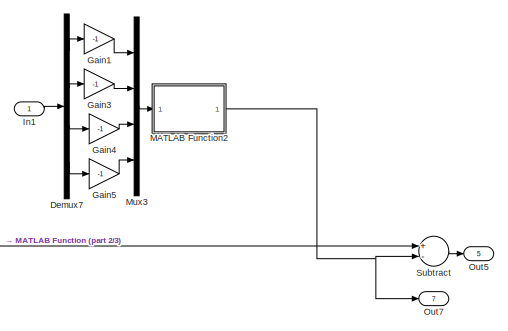
[diagram: Subsystem9 - part 1/3, top center region]
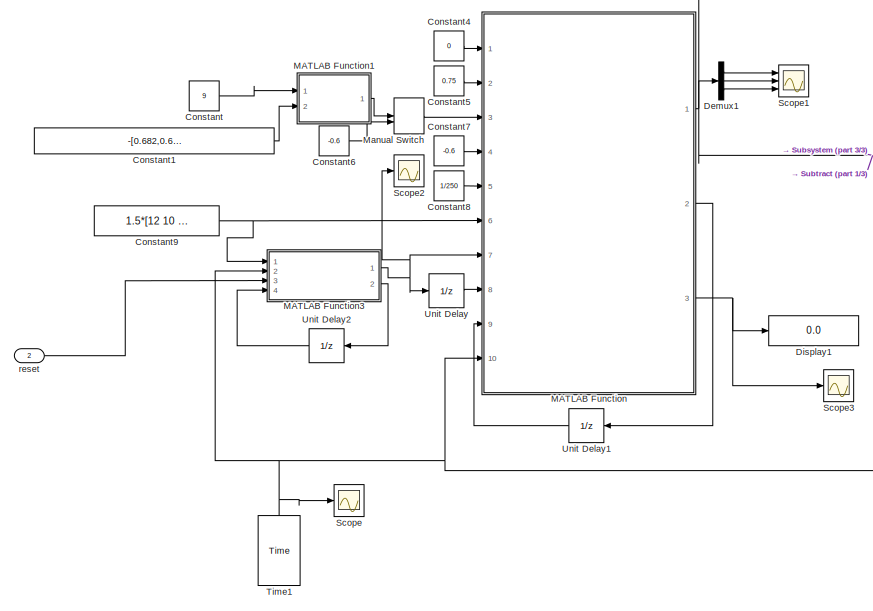
[diagram: Subsystem9 - part 2/3, bottom left region]
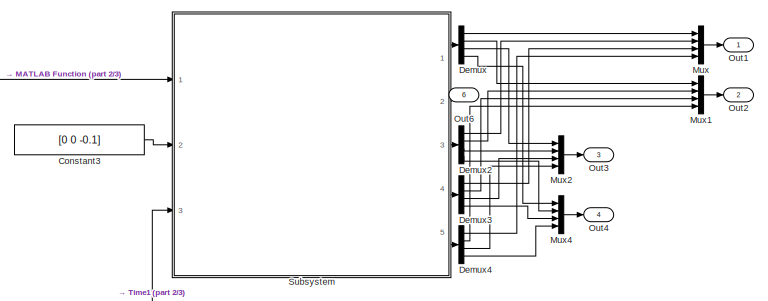
[diagram: Subsystem9 - part 3/3, middle right region]
BLOCK [SubSystem] Subsystem9
  Commented = on
  Ports = [2, 7]
  RequestExecContextInheritance = off
BLOCK [Constant] Subsystem9/Constant
  Value = 9
BLOCK [Constant] Subsystem9/Constant1
  Value = -[0.682,0.6845,0.693,0.685,0.697,0.689,0.69,0.693,0.688]-0.01
BLOCK [Constant] Subsystem9/Constant3
  Value = [0 0 -0.1]
BLOCK [Constant] Subsystem9/Constant4
  Value = 0
BLOCK [Constant] Subsystem9/Constant5
  Value = 0.75
BLOCK [Constant] Subsystem9/Constant6
  Value = -0.6
BLOCK [Constant] Subsystem9/Constant7
  Value = -0.6
BLOCK [Constant] Subsystem9/Constant8
  Value = 1/250
BLOCK [Constant] Subsystem9/Constant9
  Value = 1.5*[12 10 12 10 12 10]
BLOCK [Demux] Subsystem9/Demux
  DisplayOption = bar
  Ports = [1, 4]
BLOCK [Demux] Subsystem9/Demux1
  DisplayOption = bar
  Outputs = 3
  Ports = [1, 3]
BLOCK [Demux] Subsystem9/Demux2
  DisplayOption = bar
  Ports = [1, 4]
BLOCK [Demux] Subsystem9/Demux3
  DisplayOption = bar
  Ports = [1, 4]
BLOCK [Demux] Subsystem9/Demux4
  DisplayOption = bar
  Ports = [1, 4]
BLOCK [Demux] Subsystem9/Demux7
  DisplayOption = bar
  Ports = [1, 4]
BLOCK [Display] Subsystem9/Display1
  Decimation = 1
  Ports = [1]
BLOCK [Gain] Subsystem9/Gain1
  Gain = -1
  OutDataTypeStr = Inherit: Inherit via internal rule
  ParamDataTypeStr = Inherit: Inherit via internal rule
  SaturateOnIntegerOverflow = off
BLOCK [Gain] Subsystem9/Gain3
  Gain = -1
  OutDataTypeStr = Inherit: Inherit via internal rule
  ParamDataTypeStr = Inherit: Inherit via internal rule
  SaturateOnIntegerOverflow = off
BLOCK [Gain] Subsystem9/Gain4
  Gain = -1
  OutDataTypeStr = Inherit: Inherit via internal rule
  ParamDataTypeStr = Inherit: Inherit via internal rule
  SaturateOnIntegerOverflow = off
BLOCK [Gain] Subsystem9/Gain5
  Gain = -1
  OutDataTypeStr = Inherit: Inherit via internal rule
  ParamDataTypeStr = Inherit: Inherit via internal rule
  SaturateOnIntegerOverflow = off
BLOCK [Inport] Subsystem9/In1
  IconDisplay = Port number
BLOCK [SubSystem] Subsystem9/MATLAB Function
  ErrorFcn = Stateflow.Translate.translate
  PermitHierarchicalResolution = ExplicitOnly
  Ports = [10, 3]
  RequestExecContextInheritance = off
  SFBlockType = MATLAB Function
  TreatAsAtomicUnit = on
BLOCK [Demux] Subsystem9/MATLAB Function/ Demux 
  Outputs = 1
  Ports = [1, 1]
BLOCK [S-Function] Subsystem9/MATLAB Function/ SFunction 
  EnableBusSupport = on
  FunctionName = sf_sfun
  PortCounts = [10 4]
  Ports = [10, 4]
  SFcnIsStateOwnerBlock = off
  SFunctionDeploymentMode = off
  Tag = Stateflow S-Function RBFNN_1221 18
BLOCK [Terminator] Subsystem9/MATLAB Function/ Terminator 
BLOCK [Inport] Subsystem9/MATLAB Function/Xcenter
  IconDisplay = Port number
BLOCK [Inport] Subsystem9/MATLAB Function/Ycenter
  IconDisplay = Port number
  Port = 2
BLOCK [Outport] Subsystem9/MATLAB Function/err
  IconDisplay = Port number
  Port = 3
  VectorParamsAs1DForOutWhenUnconnected = on
BLOCK [Inport] Subsystem9/MATLAB Function/height1
  IconDisplay = Port number
  Port = 3
BLOCK [Inport] Subsystem9/MATLAB Function/height2
  IconDisplay = Port number
  Port = 4
BLOCK [Inport] Subsystem9/MATLAB Function/phase
  IconDisplay = Port number
  Port = 7
BLOCK [Inport] Subsystem9/MATLAB Function/phase_last
  IconDisplay = Port number
  Port = 8
BLOCK [Outport] Subsystem9/MATLAB Function/phase_start_time
  IconDisplay = Port number
  Port = 2
  VectorParamsAs1DForOutWhenUnconnected = on
BLOCK [Inport] Subsystem9/MATLAB Function/phase_start_time_last
  IconDisplay = Port number
  Port = 9
BLOCK [Inport] Subsystem9/MATLAB Function/scale_factor
  IconDisplay = Port number
  Port = 5
BLOCK [Inport] Subsystem9/MATLAB Function/span
  IconDisplay = Port number
  Port = 6
BLOCK [Inport] Subsystem9/MATLAB Function/time
  IconDisplay = Port number
  Port = 10
BLOCK [Outport] Subsystem9/MATLAB Function/traj
  IconDisplay = Port number
  VectorParamsAs1DForOutWhenUnconnected = on
BLOCK [SubSystem] Subsystem9/MATLAB Function1
  ErrorFcn = Stateflow.Translate.translate
  PermitHierarchicalResolution = ExplicitOnly
  Ports = [2, 1]
  RequestExecContextInheritance = off
  SFBlockType = MATLAB Function
  TreatAsAtomicUnit = on
BLOCK [Demux] Subsystem9/MATLAB Function1/ Demux 
  Outputs = 1
  Ports = [1, 1]
BLOCK [S-Function] Subsystem9/MATLAB Function1/ SFunction 
  EnableBusSupport = on
  FunctionName = sf_sfun
  PortCounts = [2 2]
  Ports = [2, 2]
  SFcnIsStateOwnerBlock = off
  SFunctionDeploymentMode = off
  Tag = Stateflow S-Function RBFNN_1221 10
BLOCK [Terminator] Subsystem9/MATLAB Function1/ Terminator 
BLOCK [Inport] Subsystem9/MATLAB Function1/u
  IconDisplay = Port number
  Port = 2
BLOCK [Inport] Subsystem9/MATLAB Function1/x
  IconDisplay = Port number
BLOCK [Outport] Subsystem9/MATLAB Function1/y
  IconDisplay = Port number
BLOCK [SubSystem] Subsystem9/MATLAB Function2
  ErrorFcn = Stateflow.Translate.translate
  PermitHierarchicalResolution = ExplicitOnly
  Ports = [1, 1]
  RequestExecContextInheritance = off
  SFBlockType = MATLAB Function
  TreatAsAtomicUnit = on
BLOCK [Demux] Subsystem9/MATLAB Function2/ Demux 
  Outputs = 1
  Ports = [1, 1]
BLOCK [S-Function] Subsystem9/MATLAB Function2/ SFunction 
  EnableBusSupport = on
  FunctionName = sf_sfun
  PortCounts = [1 2]
  Ports = [1, 2]
  SFcnIsStateOwnerBlock = off
  SFunctionDeploymentMode = off
  Tag = Stateflow S-Function RBFNN_1221 23
BLOCK [Terminator] Subsystem9/MATLAB Function2/ Terminator 
BLOCK [Inport] Subsystem9/MATLAB Function2/q
  IconDisplay = Port number
BLOCK [Outport] Subsystem9/MATLAB Function2/y
  IconDisplay = Port number
BLOCK [SubSystem] Subsystem9/MATLAB Function3
  ErrorFcn = Stateflow.Translate.translate
  PermitHierarchicalResolution = ExplicitOnly
  Ports = [4, 2]
  RequestExecContextInheritance = off
  SFBlockType = MATLAB Function
  TreatAsAtomicUnit = on
BLOCK [Demux] Subsystem9/MATLAB Function3/ Demux 
  Outputs = 1
  Ports = [1, 1]
BLOCK [S-Function] Subsystem9/MATLAB Function3/ SFunction 
  EnableBusSupport = on
  FunctionName = sf_sfun
  PortCounts = [4 3]
  Ports = [4, 3]
  SFcnIsStateOwnerBlock = off
  SFunctionDeploymentMode = off
  Tag = Stateflow S-Function RBFNN_1221 19
BLOCK [Terminator] Subsystem9/MATLAB Function3/ Terminator 
BLOCK [Inport] Subsystem9/MATLAB Function3/reset
  IconDisplay = Port number
  Port = 3
BLOCK [Inport] Subsystem9/MATLAB Function3/span
  IconDisplay = Port number
BLOCK [Inport] Subsystem9/MATLAB Function3/t
  IconDisplay = Port number
  Port = 2
BLOCK [Outport] Subsystem9/MATLAB Function3/t_terminal
  IconDisplay = Port number
  Port = 2
BLOCK [Inport] Subsystem9/MATLAB Function3/t_terminal_last
  IconDisplay = Port number
  Port = 4
BLOCK [Outport] Subsystem9/MATLAB Function3/y
  IconDisplay = Port number
BLOCK [ManualSwitch] Subsystem9/Manual Switch
  CurrentSetting = 0
BLOCK [Mux] Subsystem9/Mux
  DisplayOption = bar
  Ports = [4, 1]
BLOCK [Mux] Subsystem9/Mux1
  DisplayOption = bar
  Ports = [4, 1]
BLOCK [Mux] Subsystem9/Mux2
  DisplayOption = bar
  Ports = [4, 1]
BLOCK [Mux] Subsystem9/Mux3
  DisplayOption = bar
  Ports = [4, 1]
BLOCK [Mux] Subsystem9/Mux4
  DisplayOption = bar
  Ports = [4, 1]
BLOCK [Outport] Subsystem9/Out1
  IconDisplay = Port number
BLOCK [Outport] Subsystem9/Out2
  IconDisplay = Port number
  Port = 2
BLOCK [Outport] Subsystem9/Out3
  IconDisplay = Port number
  Port = 3
BLOCK [Outport] Subsystem9/Out4
  IconDisplay = Port number
  Port = 4
BLOCK [Outport] Subsystem9/Out5
  IconDisplay = Port number
  Port = 5
BLOCK [Outport] Subsystem9/Out6
  IconDisplay = Port number
  Port = 6
BLOCK [Outport] Subsystem9/Out7
  IconDisplay = Port number
  Port = 7
BLOCK [Scope] Subsystem9/Scope
  Floating = off
  NumInputPorts = 1
  Ports = [1]
  ScopeSpecificationString = Simulink.scopes.TimeScopeBlockCfg('CurrentConfiguration', extmgr.ConfigurationSet(extmgr.Configuration('Core','General UI',true),extmgr.Configuration('Core','Source UI',true),extmgr.Configuration('Sources','WiredSimulink',true,'DataLoggingVariableName','ScopeData2'),extmgr.Configuration('Visuals','Time Domain',true,'SerializedDisplays',{struct('MinYLimReal','32.83593','MaxYLimReal','38.65663','YLa...<+1414ch>
BLOCK [Scope] Subsystem9/Scope1
  Floating = off
  NumInputPorts = 3
  Ports = [3]
  ScopeSpecificationString = Simulink.scopes.TimeScopeBlockCfg('CurrentConfiguration', extmgr.ConfigurationSet(extmgr.Configuration('Core','General UI',true),extmgr.Configuration('Core','Source UI',true),extmgr.Configuration('Sources','WiredSimulink',true,'DataLoggingVariableName','ScopeData1'),extmgr.Configuration('Visuals','Time Domain',true,'SerializedDisplays',{struct('MinYLimReal','-0.19675','MaxYLimReal','-0.08986','YLa...<+3095ch>
BLOCK [Scope] Subsystem9/Scope2
  Floating = off
  NumInputPorts = 1
  Ports = [1]
  ScopeSpecificationString = Simulink.scopes.TimeScopeBlockCfg('CurrentConfiguration', extmgr.ConfigurationSet(extmgr.Configuration('Core','General UI',true),extmgr.Configuration('Core','Source UI',true),extmgr.Configuration('Sources','WiredSimulink',true,'DataLoggingVariableName','ScopeData3'),extmgr.Configuration('Visuals','Time Domain',true,'SerializedDisplays',{struct('MinYLimReal','-0.75','MaxYLimReal','6.75','YLabelReal...<+1430ch>
BLOCK [Scope] Subsystem9/Scope3
  Floating = off
  NumInputPorts = 1
  Ports = [1]
  ScopeSpecificationString = Simulink.scopes.TimeScopeBlockCfg('CurrentConfiguration', extmgr.ConfigurationSet(extmgr.Configuration('Core','General UI',true),extmgr.Configuration('Core','Source UI',true),extmgr.Configuration('Sources','WiredSimulink',true,'DataLoggingVariableName','ScopeData3'),extmgr.Configuration('Visuals','Time Domain',true,'SerializedDisplays',{struct('MinYLimReal','-1.00000','MaxYLimReal','1.00000','YLab...<+1378ch>
BLOCK [SubSystem] Subsystem9/Subsystem
  Ports = [3, 5]
  RequestExecContextInheritance = off
BLOCK [SubSystem] Subsystem9/Subsystem/B-Spline Traj Plan
  ErrorFcn = Stateflow.Translate.translate
  PermitHierarchicalResolution = ExplicitOnly
  Ports = [4, 8]
  RequestExecContextInheritance = off
  SFBlockType = MATLAB Function
  TreatAsAtomicUnit = on
BLOCK [Demux] Subsystem9/Subsystem/B-Spline Traj Plan/ Demux 
  Outputs = 1
  Ports = [1, 1]
BLOCK [S-Function] Subsystem9/Subsystem/B-Spline Traj Plan/ SFunction 
  EnableBusSupport = on
  FunctionName = sf_sfun
  PortCounts = [4 9]
  Ports = [4, 9]
  SFcnIsStateOwnerBlock = off
  SFunctionDeploymentMode = off
  Tag = Stateflow S-Function RBFNN_1221 20
BLOCK [Terminator] Subsystem9/Subsystem/B-Spline Traj Plan/ Terminator 
BLOCK [Outport] Subsystem9/Subsystem/B-Spline Traj Plan/CtrlP
  IconDisplay = Port number
  VectorParamsAs1DForOutWhenUnconnected = on
BLOCK [Inport] Subsystem9/Subsystem/B-Spline Traj Plan/CtrlP_last
  IconDisplay = Port number
BLOCK [Inport] Subsystem9/Subsystem/B-Spline Traj Plan/CtrlP_new
  IconDisplay = Port number
  Port = 2
BLOCK [Inport] Subsystem9/Subsystem/B-Spline Traj Plan/clock
  IconDisplay = Port number
  Port = 3
BLOCK [Outport] Subsystem9/Subsystem/B-Spline Traj Plan/dddpos
  IconDisplay = Port number
  Port = 5
  VectorParamsAs1DForOutWhenUnconnected = on
BLOCK [Outport] Subsystem9/Subsystem/B-Spline Traj Plan/ddpos
  IconDisplay = Port number
  Port = 4
  VectorParamsAs1DForOutWhenUnconnected = on
BLOCK [Outport] Subsystem9/Subsystem/B-Spline Traj Plan/dpos
  IconDisplay = Port number
  Port = 3
  VectorParamsAs1DForOutWhenUnconnected = on
BLOCK [Outport] Subsystem9/Subsystem/B-Spline Traj Plan/err
  IconDisplay = Port number
  Port = 7
  VectorParamsAs1DForOutWhenUnconnected = on
BLOCK [Outport] Subsystem9/Subsystem/B-Spline Traj Plan/pos
  IconDisplay = Port number
  Port = 2
  VectorParamsAs1DForOutWhenUnconnected = on
BLOCK [Outport] Subsystem9/Subsystem/B-Spline Traj Plan/sect_n
  IconDisplay = Port number
  Port = 6
  VectorParamsAs1DForOutWhenUnconnected = on
BLOCK [Inport] Subsystem9/Subsystem/B-Spline Traj Plan/sect_n_last
  IconDisplay = Port number
  Port = 4
BLOCK [Outport] Subsystem9/Subsystem/B-Spline Traj Plan/temp
  IconDisplay = Port number
  Port = 8
  VectorParamsAs1DForOutWhenUnconnected = on
BLOCK [Constant] Subsystem9/Subsystem/Constant
  Value = 0
BLOCK [Constant] Subsystem9/Subsystem/Constant1
  Value = [0 0 0 0]
BLOCK [SubSystem] Subsystem9/Subsystem/Control Point Plan
  ErrorFcn = Stateflow.Translate.translate
  PermitHierarchicalResolution = ExplicitOnly
  Ports = [4, 1]
  RequestExecContextInheritance = off
  SFBlockType = MATLAB Function
  TreatAsAtomicUnit = on
BLOCK [Demux] Subsystem9/Subsystem/Control Point Plan/ Demux 
  Outputs = 1
  Ports = [1, 1]
BLOCK [S-Function] Subsystem9/Subsystem/Control Point Plan/ SFunction 
  EnableBusSupport = on
  FunctionName = sf_sfun
  PortCounts = [4 2]
  Ports = [4, 2]
  SFcnIsStateOwnerBlock = off
  SFunctionDeploymentMode = off
  Tag = Stateflow S-Function RBFNN_1221 21
BLOCK [Terminator] Subsystem9/Subsystem/Control Point Plan/ Terminator 
BLOCK [Outport] Subsystem9/Subsystem/Control Point Plan/CtrlP
  IconDisplay = Port number
  VectorParamsAs1DForOutWhenUnconnected = on
BLOCK [Inport] Subsystem9/Subsystem/Control Point Plan/CtrlP_last
  IconDisplay = Port number
BLOCK [Inport] Subsystem9/Subsystem/Control Point Plan/Pf
  IconDisplay = Port number
  Port = 2
BLOCK [Inport] Subsystem9/Subsystem/Control Point Plan/clock
  IconDisplay = Port number
  Port = 4
BLOCK [Inport] Subsystem9/Subsystem/Control Point Plan/p_init
  IconDisplay = Port number
  Port = 3
BLOCK [Demux] Subsystem9/Subsystem/Demux
  DisplayOption = bar
  Outputs = 3
  Ports = [1, 3]
BLOCK [Demux] Subsystem9/Subsystem/Demux1
  DisplayOption = bar
  Ports = [1, 4]
BLOCK [Demux] Subsystem9/Subsystem/Demux2
  DisplayOption = bar
  Ports = [1, 4]
BLOCK [Demux] Subsystem9/Subsystem/Demux3
  DisplayOption = bar
  Ports = [1, 4]
BLOCK [Demux] Subsystem9/Subsystem/Demux4
  DisplayOption = bar
  Ports = [1, 4]
BLOCK [Demux] Subsystem9/Subsystem/Demux5
  DisplayOption = bar
  Ports = [1, 4]
BLOCK [Outport] Subsystem9/Subsystem/ERR
  IconDisplay = Port number
  Port = 2
  VectorParamsAs1DForOutWhenUnconnected = on
BLOCK [Gain] Subsystem9/Subsystem/Gain
  Gain = -1
  OutDataTypeStr = Inherit: Inherit via internal rule
  ParamDataTypeStr = Inherit: Inherit via internal rule
  SaturateOnIntegerOverflow = off
BLOCK [Gain] Subsystem9/Subsystem/Gain1
  Gain = -1
  OutDataTypeStr = Inherit: Inherit via internal rule
  ParamDataTypeStr = Inherit: Inherit via internal rule
  SaturateOnIntegerOverflow = off
BLOCK [Gain] Subsystem9/Subsystem/Gain10
  Gain = -1
  OutDataTypeStr = Inherit: Inherit via internal rule
  ParamDataTypeStr = Inherit: Inherit via internal rule
  SaturateOnIntegerOverflow = off
BLOCK [Gain] Subsystem9/Subsystem/Gain11
  Gain = -1
  OutDataTypeStr = Inherit: Inherit via internal rule
  ParamDataTypeStr = Inherit: Inherit via internal rule
  SaturateOnIntegerOverflow = off
BLOCK [Gain] Subsystem9/Subsystem/Gain12
  Gain = -1
  OutDataTypeStr = Inherit: Inherit via internal rule
  ParamDataTypeStr = Inherit: Inherit via internal rule
  SaturateOnIntegerOverflow = off
BLOCK [Gain] Subsystem9/Subsystem/Gain13
  Gain = -1
  OutDataTypeStr = Inherit: Inherit via internal rule
  ParamDataTypeStr = Inherit: Inherit via internal rule
  SaturateOnIntegerOverflow = off
BLOCK [Gain] Subsystem9/Subsystem/Gain14
  Gain = -1
  OutDataTypeStr = Inherit: Inherit via internal rule
  ParamDataTypeStr = Inherit: Inherit via internal rule
  SaturateOnIntegerOverflow = off
BLOCK [Gain] Subsystem9/Subsystem/Gain15
  Gain = -1
  OutDataTypeStr = Inherit: Inherit via internal rule
  ParamDataTypeStr = Inherit: Inherit via internal rule
  SaturateOnIntegerOverflow = off
BLOCK [Gain] Subsystem9/Subsystem/Gain2
  Gain = -1
  OutDataTypeStr = Inherit: Inherit via internal rule
  ParamDataTypeStr = Inherit: Inherit via internal rule
  SaturateOnIntegerOverflow = off
BLOCK [Gain] Subsystem9/Subsystem/Gain3
  Gain = -1
  OutDataTypeStr = Inherit: Inherit via internal rule
  ParamDataTypeStr = Inherit: Inherit via internal rule
  SaturateOnIntegerOverflow = off
BLOCK [Gain] Subsystem9/Subsystem/Gain4
  Gain = -1
  OutDataTypeStr = Inherit: Inherit via internal rule
  ParamDataTypeStr = Inherit: Inherit via internal rule
  SaturateOnIntegerOverflow = off
BLOCK [Gain] Subsystem9/Subsystem/Gain5
  Gain = -1
  OutDataTypeStr = Inherit: Inherit via internal rule
  ParamDataTypeStr = Inherit: Inherit via internal rule
  SaturateOnIntegerOverflow = off
BLOCK [Gain] Subsystem9/Subsystem/Gain6
  Gain = -1
  OutDataTypeStr = Inherit: Inherit via internal rule
  ParamDataTypeStr = Inherit: Inherit via internal rule
  SaturateOnIntegerOverflow = off
BLOCK [Gain] Subsystem9/Subsystem/Gain7
  Gain = -1
  OutDataTypeStr = Inherit: Inherit via internal rule
  ParamDataTypeStr = Inherit: Inherit via internal rule
  SaturateOnIntegerOverflow = off
BLOCK [Gain] Subsystem9/Subsystem/Gain8
  Gain = -1
  OutDataTypeStr = Inherit: Inherit via internal rule
  ParamDataTypeStr = Inherit: Inherit via internal rule
  SaturateOnIntegerOverflow = off
BLOCK [Gain] Subsystem9/Subsystem/Gain9
  Gain = -1
  OutDataTypeStr = Inherit: Inherit via internal rule
  ParamDataTypeStr = Inherit: Inherit via internal rule
  SaturateOnIntegerOverflow = off
BLOCK [Inport] Subsystem9/Subsystem/Hand Orientation
  IconDisplay = Port number
  Port = 2
BLOCK [SubSystem] Subsystem9/Subsystem/Inverse Kinematics
  ErrorFcn = Stateflow.Translate.translate
  PermitHierarchicalResolution = ExplicitOnly
  Ports = [2, 1]
  RequestExecContextInheritance = off
  SFBlockType = MATLAB Function
  TreatAsAtomicUnit = on
BLOCK [Demux] Subsystem9/Subsystem/Inverse Kinematics/ Demux 
  Outputs = 1
  Ports = [1, 1]
BLOCK [S-Function] Subsystem9/Subsystem/Inverse Kinematics/ SFunction 
  EnableBusSupport = on
  FunctionName = sf_sfun
  PortCounts = [2 2]
  Ports = [2, 2]
  SFcnIsStateOwnerBlock = off
  SFunctionDeploymentMode = off
  Tag = Stateflow S-Function RBFNN_1221 22
BLOCK [Terminator] Subsystem9/Subsystem/Inverse Kinematics/ Terminator 
BLOCK [Inport] Subsystem9/Subsystem/Inverse Kinematics/pos_obj
  IconDisplay = Port number
BLOCK [Inport] Subsystem9/Subsystem/Inverse Kinematics/pos_relative
  IconDisplay = Port number
  Port = 2
BLOCK [Outport] Subsystem9/Subsystem/Inverse Kinematics/q_f
  IconDisplay = Port number
  VectorParamsAs1DForOutWhenUnconnected = on
BLOCK [Mux] Subsystem9/Subsystem/Mux
  DisplayOption = bar
  Ports = [4, 1]
BLOCK [Mux] Subsystem9/Subsystem/Mux1
  DisplayOption = bar
  Inputs = 3
  Ports = [3, 1]
BLOCK [Mux] Subsystem9/Subsystem/Mux2
  DisplayOption = bar
  Ports = [4, 1]
BLOCK [Mux] Subsystem9/Subsystem/Mux3
  DisplayOption = bar
  Ports = [4, 1]
BLOCK [Mux] Subsystem9/Subsystem/Mux4
  DisplayOption = bar
  Ports = [4, 1]
BLOCK [Mux] Subsystem9/Subsystem/Mux5
  DisplayOption = bar
  Ports = [4, 1]
BLOCK [Scope] Subsystem9/Subsystem/Scope
  Floating = off
  NumInputPorts = 1
  Ports = [1]
  ScopeSpecificationString = Simulink.scopes.TimeScopeBlockCfg('CurrentConfiguration', extmgr.ConfigurationSet(extmgr.Configuration('Core','General UI',true),extmgr.Configuration('Core','Source UI',true),extmgr.Configuration('Sources','WiredSimulink',true,'DataLoggingVariableName','ScopeData9'),extmgr.Configuration('Visuals','Time Domain',true,'SerializedDisplays',{struct('MinYLimReal','-0.775','MaxYLimReal','0.975','YLabelRe...<+1796ch>
BLOCK [Scope] Subsystem9/Subsystem/Scope1
  Floating = off
  NumInputPorts = 1
  Ports = [1]
  ScopeSpecificationString = Simulink.scopes.TimeScopeBlockCfg('CurrentConfiguration', extmgr.ConfigurationSet(extmgr.Configuration('Core','General UI',true),extmgr.Configuration('Core','Source UI',true),extmgr.Configuration('Sources','WiredSimulink',true,'DataLoggingVariableName','ScopeData1'),extmgr.Configuration('Visuals','Time Domain',true,'SerializedDisplays',{struct('MinYLimReal','-138.75824','MaxYLimReal','145.78878','...<+1585ch>
BLOCK [Scope] Subsystem9/Subsystem/Scope4
  Floating = off
  NumInputPorts = 1
  Ports = [1]
  ScopeSpecificationString = Simulink.scopes.TimeScopeBlockCfg('CurrentConfiguration', extmgr.ConfigurationSet(extmgr.Configuration('Core','General UI',true),extmgr.Configuration('Core','Source UI',true),extmgr.Configuration('Sources','WiredSimulink',true,'DataLoggingVariableName','ScopeData2'),extmgr.Configuration('Visuals','Time Domain',true,'SerializedDisplays',{struct('MinYLimReal','-6.75','MaxYLimReal','0.75','YLabelReal...<+1487ch>
BLOCK [Inport] Subsystem9/Subsystem/Target Position
  IconDisplay = Port number
BLOCK [Inport] Subsystem9/Subsystem/Time
  IconDisplay = Port number
  Port = 3
BLOCK [UnitDelay] Subsystem9/Subsystem/Unit Delay
  InputProcessing = Elements as channels (sample based)
  SampleTime = -1
BLOCK [UnitDelay] Subsystem9/Subsystem/Unit Delay1
  InputProcessing = Elements as channels (sample based)
  SampleTime = -1
BLOCK [UnitDelay] Subsystem9/Subsystem/Unit Delay2
  InputProcessing = Elements as channels (sample based)
  SampleTime = -1
BLOCK [Outport] Subsystem9/Subsystem/q1-1
  IconDisplay = Port number
  Port = 3
  VectorParamsAs1DForOutWhenUnconnected = on
BLOCK [Outport] Subsystem9/Subsystem/q1-2
  IconDisplay = Port number
  Port = 4
  VectorParamsAs1DForOutWhenUnconnected = on
BLOCK [Outport] Subsystem9/Subsystem/q1-3
  IconDisplay = Port number
  Port = 5
  VectorParamsAs1DForOutWhenUnconnected = on
BLOCK [Outport] Subsystem9/Subsystem/q1-4
  IconDisplay = Port number
  VectorParamsAs1DForOutWhenUnconnected = on
BLOCK [Sum] Subsystem9/Subtract
  InputSameDT = off
  Inputs = +-
  OutDataTypeStr = Inherit: Inherit via internal rule
  Ports = [2, 1]
  SaturateOnIntegerOverflow = off
BLOCK [Reference] Subsystem9/Time1  REF=quarc_library/Sources/Time/Time
  Ports = [0, 1]
  SourceBlock = quarc_library/Sources/Time/Time
  SourceProductName = QUARC Targets
  SourceType = Time
BLOCK [UnitDelay] Subsystem9/Unit Delay
  InputProcessing = Elements as channels (sample based)
  SampleTime = -1
BLOCK [UnitDelay] Subsystem9/Unit Delay1
  InputProcessing = Elements as channels (sample based)
  SampleTime = -1
BLOCK [UnitDelay] Subsystem9/Unit Delay2
  InputProcessing = Elements as channels (sample based)
  SampleTime = -1
BLOCK [Inport] Subsystem9/reset
  IconDisplay = Port number
  Port = 2
BLOCK [Sum] Sum1
  Commented = on
  IconShape = round
  InputSameDT = off
  Inputs = +-|
  OutDataTypeStr = Inherit: Inherit via internal rule
  Ports = [2, 1]
  SaturateOnIntegerOverflow = off
BLOCK [Sum] Sum3
  Commented = on
  IconShape = round
  InputSameDT = off
  Inputs = +-|
  OutDataTypeStr = Inherit: Inherit via internal rule
  Ports = [2, 1]
  SaturateOnIntegerOverflow = off
BLOCK [Sum] Sum5
  Commented = on
  IconShape = round
  InputSameDT = off
  Inputs = +-|
  OutDataTypeStr = Inherit: Inherit via internal rule
  Ports = [2, 1]
  SaturateOnIntegerOverflow = off
BLOCK [Sum] Sum6
  Commented = on
  IconShape = round
  InputSameDT = off
  Inputs = +-|
  OutDataTypeStr = Inherit: Inherit via internal rule
  Ports = [2, 1]
  SaturateOnIntegerOverflow = off
BLOCK [Switch] Switch
  Commented = on
  Criteria = u2 ~= 0
  InputSameDT = off
  SaturateOnIntegerOverflow = off
BLOCK [Switch] Switch1
  Commented = on
  Criteria = u2 ~= 0
  InputSameDT = off
  SaturateOnIntegerOverflow = off
BLOCK [Switch] Switch10
  Commented = on
  Criteria = u2 ~= 0
  InputSameDT = off
  SaturateOnIntegerOverflow = off
BLOCK [Switch] Switch11
  InputSameDT = off
  SaturateOnIntegerOverflow = off
BLOCK [Switch] Switch12
  Commented = on
  Criteria = u2 ~= 0
  InputSameDT = off
  SaturateOnIntegerOverflow = off
BLOCK [Switch] Switch13
  Commented = on
  Criteria = u2 ~= 0
  InputSameDT = off
  SaturateOnIntegerOverflow = off
BLOCK [Switch] Switch2
  Commented = on
  Criteria = u2 ~= 0
  InputSameDT = off
  SaturateOnIntegerOverflow = off
BLOCK [Switch] Switch3
  Commented = on
  Criteria = u2 ~= 0
  InputSameDT = off
  SaturateOnIntegerOverflow = off
BLOCK [Switch] Switch4
  Commented = on
  Criteria = u2 ~= 0
  InputSameDT = off
  SaturateOnIntegerOverflow = off
BLOCK [ManualSwitch] Switch5
  CurrentSetting = 0
BLOCK [Switch] Switch6
  InputSameDT = off
  SaturateOnIntegerOverflow = off
BLOCK [Switch] Switch7
  InputSameDT = off
  SaturateOnIntegerOverflow = off
BLOCK [Switch] Switch8
  InputSameDT = off
  SaturateOnIntegerOverflow = off
BLOCK [Switch] Switch9
  InputSameDT = off
  SaturateOnIntegerOverflow = off
BLOCK [ToFile] To File
  Commented = on
  Filename = tracking_result_1
  MatrixName = tracking_result
  Ports = [1]
BLOCK [ToFile] To File1
  Commented = on
  Filename = p_1
  MatrixName = p
  Ports = [1]
BLOCK [ToFile] To File10
  Commented = on
  Filename = tracking_result_3
  MatrixName = tracking_result
  Ports = [1]
BLOCK [ToFile] To File11
  Commented = on
  Filename = theta_3
  MatrixName = theta
  Ports = [1]
BLOCK [ToFile] To File12
  Commented = on
  Filename = xv_3
  MatrixName = xv
  Ports = [1]
BLOCK [ToFile] To File13
  Commented = on
  Filename = p_3
  MatrixName = p
  Ports = [1]
BLOCK [ToFile] To File14
  Commented = on
  Filename = <userpath>\Desktop\RBFNN_EXPERMENT\joint4_e3
  MatrixName = joint4_e3
  Ports = [1]
BLOCK [ToFile] To File15
  Commented = on
  Filename = tracking_result_4
  MatrixName = tracking_result
  Ports = [1]
BLOCK [ToFile] To File16
  Commented = on
  Filename = theta_4
  MatrixName = theta
  Ports = [1]
BLOCK [ToFile] To File17
  Commented = on
  Filename = xv_4
  MatrixName = xv
  Ports = [1]
BLOCK [ToFile] To File18
  Commented = on
  Filename = p_4
  MatrixName = p
  Ports = [1]
BLOCK [ToFile] To File19
  Commented = on
  Filename = <userpath>\Desktop\RBFNN_EXPERMENT\joint4_qd
  MatrixName = joint4_qd
  Ports = [1]
BLOCK [ToFile] To File2
  Commented = on
  Filename = theta_1
  MatrixName = theta
  Ports = [1]
BLOCK [ToFile] To File20
  Commented = on
  Filename = xyz
  Ports = [1]
BLOCK [ToFile] To File21
  Commented = on
  Filename = errorxyz
  Ports = [1]
BLOCK [ToFile] To File22
  Commented = on
  Filename = <userpath>\Desktop\RBFNN_EXPERMENT\joint4_pi
  MatrixName = joint4_pi
  Ports = [1]
BLOCK [ToFile] To File23
  Commented = on
  Filename = <userpath>\Desktop\RBFNN_EXPERMENT\joint4_po
  MatrixName = joint4_po
  Ports = [1]
BLOCK [ToFile] To File24
  Commented = on
  Filename = <userpath>\Desktop\RBFNN_EXPERMENT\joint4_qd_dot
  MatrixName = joint4_qd_dot
  Ports = [1]
BLOCK [ToFile] To File25
  Commented = on
  Filename = <userpath>\Desktop\RBFNN_EXPERMENT\joint4_qd_ddot
  MatrixName = joint4_qd_ddot
  Ports = [1]
BLOCK [ToFile] To File26
  Filename = <userpath>\Desktop\RBFNN_EXPERMENT\data\joint_3_nndrc_error.mat
  MatrixName = joint_3_nndrc_error
  Ports = [1]
BLOCK [ToFile] To File27
  Filename = <userpath>\Desktop\RBFNN_EXPERMENT\data\joint_4_nndrc_error.mat
  MatrixName = joint_4_nndrc_error
  Ports = [1]
BLOCK [ToFile] To File28
  Filename = <userpath>\Desktop\RBFNN_EXPERMENT\data\joint_3_nndrc_qd.mat
  MatrixName = joint_3_nndrc_qd
  Ports = [1]
BLOCK [ToFile] To File29
  Filename = <userpath>\Desktop\RBFNN_EXPERMENT\data\joint_4_nndrc_qd.mat
  MatrixName = joint_4_nndrc_qd
  Ports = [1]
BLOCK [ToFile] To File3
  Commented = on
  Filename = xv_1
  MatrixName = xv
  Ports = [1]
BLOCK [ToFile] To File30
  Filename = <userpath>\Desktop\RBFNN_EXPERMENT\data\joint_4_nndrc_P_i.mat
  MatrixName = joint_4_nndrc_P_i
  Ports = [1]
BLOCK [ToFile] To File31
  Filename = <userpath>\Desktop\RBFNN_EXPERMENT\data\joint_3_nndrc_P_i.mat
  MatrixName = joint_3_nndrc_P_i
  Ports = [1]
BLOCK [ToFile] To File32
  Filename = <userpath>\Desktop\RBFNN_EXPERMENT\data\joint_4_nndrc_P_o.mat
  MatrixName = joint_4_nndrc_P_o
  Ports = [1]
BLOCK [ToFile] To File33
  Filename = <userpath>\Desktop\RBFNN_EXPERMENT\data\joint_3_nndrc_P_o.mat
  MatrixName = joint_3_nndrc_P_o
  Ports = [1]
BLOCK [ToFile] To File34
  Filename = <userpath>\Desktop\RBFNN_EXPERMENT\data\joint_3_nndrc_U.mat
  MatrixName = joint_3_nndrc_U
  Ports = [1]
BLOCK [ToFile] To File35
  Filename = <userpath>\Desktop\RBFNN_EXPERMENT\data\joint_4_nndrc_U.mat
  MatrixName = joint_4_nndrc_U
  Ports = [1]
BLOCK [ToFile] To File36
  Filename = <userpath>\Desktop\RBFNN_EXPERMENT\data\joint_3_nndrc_Fld.mat
  MatrixName = joint_3_nndrc_Fld
  Ports = [1]
BLOCK [ToFile] To File37
  Filename = <userpath>\Desktop\RBFNN_EXPERMENT\data\joint_3_nndrc_Qld.mat
  MatrixName = joint_3_nndrc_Qld
  Ports = [1]
BLOCK [ToFile] To File38
  Filename = <userpath>\Desktop\RBFNN_EXPERMENT\data\joint_4_nndrc_Fld.mat
  MatrixName = joint_4_nndrc_Fld
  Ports = [1]
BLOCK [ToFile] To File39
  Filename = <userpath>\Desktop\RBFNN_EXPERMENT\data\joint_4_nndrc_Qld.mat
  MatrixName = joint_4_nndrc_Qld
  Ports = [1]
BLOCK [ToFile] To File4
  Commented = on
  Filename = tracking_result_2
  MatrixName = tracking_result
  Ports = [1]
BLOCK [ToFile] To File40
  Filename = <userpath>\Desktop\RBFNN_EXPERMENT\data\joint_3_nndrc_q.mat
  MatrixName = joint_3_nndrc_q
  Ports = [1]
BLOCK [ToFile] To File41
  Filename = <userpath>\Desktop\RBFNN_EXPERMENT\data\joint_4_nndrc_q.mat
  MatrixName = joint_4_nndrc_q
  Ports = [1]
BLOCK [ToFile] To File42
  Filename = <userpath>\Desktop\RBFNN_EXPERMENT\data\joint_3_nndrc_qddot.mat
  MatrixName = joint_3_nndrc_qddot
  Ports = [1]
BLOCK [ToFile] To File43
  Filename = <userpath>\Desktop\RBFNN_EXPERMENT\data\joint_4_nndrc_qddot.mat
  MatrixName = joint_4_nndrc_qddot
  Ports = [1]
BLOCK [ToFile] To File44
  Commented = on
  Filename = <userpath>\Desktop\RBFNN_EXPERMENT\data\joint_3_drc_error.mat
  MatrixName = joint_3_drc_error
  Ports = [1]
BLOCK [ToFile] To File45
  Commented = on
  Filename = <userpath>\Desktop\RBFNN_EXPERMENT\data\joint_4_drc_error.mat
  MatrixName = joint_4_drc_error
  Ports = [1]
BLOCK [ToFile] To File46
  Commented = on
  Filename = <userpath>\Desktop\RBFNN_EXPERMENT\data\joint_3_drc_qd.mat
  MatrixName = joint_3_drc_qd
  Ports = [1]
BLOCK [ToFile] To File47
  Commented = on
  Filename = <userpath>\Desktop\RBFNN_EXPERMENT\data\joint_4_drc_qd.mat
  MatrixName = joint_4_drc_qd
  Ports = [1]
BLOCK [ToFile] To File48
  Commented = on
  Filename = <userpath>\Desktop\RBFNN_EXPERMENT\data\joint_4_drc_P_i.mat
  MatrixName = joint_4_drc_P_i
  Ports = [1]
BLOCK [ToFile] To File49
  Commented = on
  Filename = <userpath>\Desktop\RBFNN_EXPERMENT\data\joint_3_drc_P_i.mat
  MatrixName = joint_3_drc_P_i
  Ports = [1]
BLOCK [ToFile] To File5
  Commented = on
  Filename = theta_2
  MatrixName = theta
  Ports = [1]
BLOCK [ToFile] To File50
  Commented = on
  Filename = <userpath>\Desktop\RBFNN_EXPERMENT\data\joint_4_drc_P_o.mat
  MatrixName = joint_4_drc_P_o
  Ports = [1]
BLOCK [ToFile] To File51
  Commented = on
  Filename = <userpath>\Desktop\RBFNN_EXPERMENT\data\joint_3_drc_P_o.mat
  MatrixName = joint_3_drc_P_o
  Ports = [1]
BLOCK [ToFile] To File52
  Commented = on
  Filename = <userpath>\Desktop\RBFNN_EXPERMENT\data\joint_3_drc_U.mat
  MatrixName = joint_3_drc_U
  Ports = [1]
BLOCK [ToFile] To File53
  Commented = on
  Filename = <userpath>\Desktop\RBFNN_EXPERMENT\data\joint_4_drc_U.mat
  MatrixName = joint_4_drc_U
  Ports = [1]
BLOCK [ToFile] To File54
  Commented = on
  Filename = <userpath>\Desktop\RBFNN_EXPERMENT\data\joint_3_drc_Fld.mat
  MatrixName = joint_3_drc_Fld
  Ports = [1]
BLOCK [ToFile] To File55
  Commented = on
  Filename = <userpath>\Desktop\RBFNN_EXPERMENT\data\joint_3_drc_Qld.mat
  MatrixName = joint_3_drc_Qld
  Ports = [1]
BLOCK [ToFile] To File56
  Commented = on
  Filename = <userpath>\Desktop\RBFNN_EXPERMENT\data\joint_4_drc_Fld.mat
  MatrixName = joint_4_drc_Fld
  Ports = [1]
BLOCK [ToFile] To File57
  Commented = on
  Filename = <userpath>\Desktop\RBFNN_EXPERMENT\data\joint_4_drc_Qld.mat
  MatrixName = joint_4_drc_Qld
  Ports = [1]
BLOCK [ToFile] To File58
  Commented = on
  Filename = <userpath>\Desktop\RBFNN_EXPERMENT\data\joint_3_drc_q.mat
  MatrixName = joint_3_drc_q
  Ports = [1]
BLOCK [ToFile] To File59
  Commented = on
  Filename = <userpath>\Desktop\RBFNN_EXPERMENT\data\joint_4_drc_q.mat
  MatrixName = joint_4_drc_q
  Ports = [1]
BLOCK [ToFile] To File6
  Commented = on
  Filename = xv_2
  MatrixName = xv
  Ports = [1]
BLOCK [ToFile] To File60
  Commented = on
  Filename = <userpath>\Desktop\RBFNN_EXPERMENT\data\joint_3_drc_qddot.mat
  MatrixName = joint_3_drc_qddot
  Ports = [1]
BLOCK [ToFile] To File61
  Commented = on
  Filename = <userpath>\Desktop\RBFNN_EXPERMENT\data\joint_4_drc_qddot.mat
  MatrixName = joint_4_drc_qddot
  Ports = [1]
BLOCK [ToFile] To File62
  Filename = <userpath>\Desktop\RBFNN_EXPERMENT\data\joint_3_nndrc_Fnn.mat
  MatrixName = joint_3_nndrc_Fnn
  Ports = [1]
BLOCK [ToFile] To File63
  Filename = <userpath>\Desktop\RBFNN_EXPERMENT\data\joint_3_nndrc_Qnn.mat
  MatrixName = joint_3_nndrc_Qnn
  Ports = [1]
BLOCK [ToFile] To File66
  Filename = <userpath>\Desktop\RBFNN_EXPERMENT\data\joint_4_nndrc_Fnn.mat
  MatrixName = joint_4_nndrc_Fnn
  Ports = [1]
BLOCK [ToFile] To File67
  Filename = <userpath>\Desktop\RBFNN_EXPERMENT\data\joint_4_nndrc_Qnn.mat
  MatrixName = joint_4_nndrc_Qnn
  Ports = [1]
BLOCK [ToFile] To File7
  Commented = on
  Filename = p_2
  MatrixName = p
  Ports = [1]
BLOCK [ToFile] To File8
  Commented = on
  Filename = <userpath>\Desktop\RBFNN_EXPERMENT\joint4_e1
  MatrixName = joint4_e1
  Ports = [1]
BLOCK [ToFile] To File9
  Commented = on
  Filename = <userpath>\Desktop\RBFNN_EXPERMENT\joint4_e2
  MatrixName = joint4_e2
  Ports = [1]
BLOCK [UnitDelay] Unit Delay
  Commented = on
  InputProcessing = Elements as channels (sample based)
  SampleTime = -1
BLOCK [SubSystem] VS Communication (Visual Signal)
  Commented = on
  Ports = [0, 3]
  RequestExecContextInheritance = off
BLOCK [Scope] VS Communication (Visual Signal)/Cartisan Loc2
  Floating = off
  NumInputPorts = 1
  Ports = [1]
  ScopeSpecificationString = Simulink.scopes.TimeScopeBlockCfg('CurrentConfiguration', extmgr.ConfigurationSet(extmgr.Configuration('Core','General UI',true),extmgr.Configuration('Core','Source UI',true),extmgr.Configuration('Sources','WiredSimulink',true,'DataLoggingVariableName','ScopeData2'),extmgr.Configuration('Visuals','Time Domain',true,'SerializedDisplays',{struct('MinYLimReal','-1.00000','MaxYLimReal','1.00000','YLab...<+1794ch>
BLOCK [Scope] VS Communication (Visual Signal)/Center Depth1
  Floating = off
  NumInputPorts = 1
  Ports = [1]
  ScopeSpecificationString = Simulink.scopes.TimeScopeBlockCfg('CurrentConfiguration', extmgr.ConfigurationSet(extmgr.Configuration('Core','General UI',true),extmgr.Configuration('Core','Source UI',true),extmgr.Configuration('Sources','WiredSimulink',true,'DataLoggingVariableName','ScopeData3'),extmgr.Configuration('Visuals','Time Domain',true,'SerializedDisplays',{struct('MinYLimReal','0.188','MaxYLimReal','0.388','YLabelRea...<+1349ch>
BLOCK [ConstellationDiagram] VS Communication (Visual Signal)/Center1
  Ports = [1]
  ScopeSpecificationString = comm.scopes.ConstellationDiagramBlockCfg('CurrentConfiguration', extmgr.ConfigurationSet(extmgr.Configuration('Core','General UI',true),extmgr.Configuration('Core','Source UI',true),extmgr.Configuration('Sources','WiredSimulink',true),extmgr.Configuration('Sources','SimulinkEvent',false),extmgr.Configuration('Sources','Simulink',false),extmgr.Configuration('Sources','SPTool',false),extmgr.Configur...<+2450ch>
BLOCK [Constant] VS Communication (Visual Signal)/Constant4
BLOCK [Constant] VS Communication (Visual Signal)/Constant7
BLOCK [Demux] VS Communication (Visual Signal)/Demux1
  DisplayOption = bar
  Outputs = 16
  Ports = [1, 16]
BLOCK [Display] VS Communication (Visual Signal)/Display7
  Decimation = 1
  Ports = [1]
BLOCK [Outport] VS Communication (Visual Signal)/Error
  IconDisplay = Port number
  Port = 3
BLOCK [Gain] VS Communication (Visual Signal)/Gain5
  Gain = j
  OutDataTypeStr = Inherit: Inherit via internal rule
  ParamDataTypeStr = Inherit: Inherit via internal rule
  SaturateOnIntegerOverflow = off
BLOCK [Gain] VS Communication (Visual Signal)/Gain6
  Gain = j
  OutDataTypeStr = Inherit: Inherit via internal rule
  ParamDataTypeStr = Inherit: Inherit via internal rule
  SaturateOnIntegerOverflow = off
BLOCK [Gain] VS Communication (Visual Signal)/Gain7
  Gain = j
  OutDataTypeStr = Inherit: Inherit via internal rule
  ParamDataTypeStr = Inherit: Inherit via internal rule
  SaturateOnIntegerOverflow = off
BLOCK [Gain] VS Communication (Visual Signal)/Gain8
  Gain = j
  OutDataTypeStr = Inherit: Inherit via internal rule
  ParamDataTypeStr = Inherit: Inherit via internal rule
  SaturateOnIntegerOverflow = off
BLOCK [Gain] VS Communication (Visual Signal)/Gain9
  Gain = j
  OutDataTypeStr = Inherit: Inherit via internal rule
  ParamDataTypeStr = Inherit: Inherit via internal rule
  SaturateOnIntegerOverflow = off
BLOCK [Mux] VS Communication (Visual Signal)/Mux1
  DisplayOption = bar
  Inputs = 3
  Ports = [3, 1]
BLOCK [Scope] VS Communication (Visual Signal)/New Data Flag1
  Floating = off
  NumInputPorts = 1
  Ports = [1]
  ScopeSpecificationString = Simulink.scopes.TimeScopeBlockCfg('CurrentConfiguration', extmgr.ConfigurationSet(extmgr.Configuration('Core','General UI',true),extmgr.Configuration('Core','Source UI',true),extmgr.Configuration('Sources','WiredSimulink',true,'DataLoggingVariableName','ScopeData4','DataLoggingSaveFormat','StructureWithTime','DataLoggingLimitDataPoints',true,'DataLoggingDecimation','1','DataLoggingDecimateData',tr...<+911ch>
BLOCK [Outport] VS Communication (Visual Signal)/Relative Position
  IconDisplay = Port number
BLOCK [Outport] VS Communication (Visual Signal)/Reserved port
  IconDisplay = Port number
  Port = 2
BLOCK [Scope] VS Communication (Visual Signal)/Sent Flag1
  Floating = off
  NumInputPorts = 1
  Ports = [1]
  ScopeSpecificationString = Simulink.scopes.TimeScopeBlockCfg('CurrentConfiguration', extmgr.ConfigurationSet(extmgr.Configuration('Core','General UI',true),extmgr.Configuration('Core','Source UI',true),extmgr.Configuration('Sources','WiredSimulink',true,'DataLoggingVariableName','ScopeData5','DataLoggingSaveFormat','StructureWithTime','DataLoggingLimitDataPoints',true,'DataLoggingDecimation','1','DataLoggingDecimateData',tr...<+913ch>
BLOCK [Scope] VS Communication (Visual Signal)/State1
  Floating = off
  NumInputPorts = 1
  Ports = [1]
  ScopeSpecificationString = Simulink.scopes.TimeScopeBlockCfg('CurrentConfiguration', extmgr.ConfigurationSet(extmgr.Configuration('Core','General UI',true),extmgr.Configuration('Core','Source UI',true),extmgr.Configuration('Sources','WiredSimulink',true,'DataLoggingSaveFormat','StructureWithTime','DataLoggingLimitDataPoints',true,'DataLoggingDecimation','1','DataLoggingDecimateData',true,'DataLoggingVariableName','ScopeData...<+1624ch>
BLOCK [Reference] VS Communication (Visual Signal)/Stream Server1  REF=quarc_library/Communications/Basic/Stream Server
  AttributesFormatString = "tcpip://localhost:1804"
  Ports = [2, 5]
  SourceBlock = quarc_library/Communications/Basic/Stream Server
  SourceProductName = QUARC Targets
  SourceType = Stream Server
BLOCK [Sum] VS Communication (Visual Signal)/Sum5
  IconShape = round
  InputSameDT = off
  Inputs = |++
  OutDataTypeStr = Inherit: Inherit via internal rule
  Ports = [2, 1]
  SaturateOnIntegerOverflow = off
BLOCK [Sum] VS Communication (Visual Signal)/Sum6
  IconShape = round
  InputSameDT = off
  Inputs = |++
  OutDataTypeStr = Inherit: Inherit via internal rule
  Ports = [2, 1]
  SaturateOnIntegerOverflow = off
BLOCK [Sum] VS Communication (Visual Signal)/Sum7
  IconShape = round
  InputSameDT = off
  Inputs = |++
  OutDataTypeStr = Inherit: Inherit via internal rule
  Ports = [2, 1]
  SaturateOnIntegerOverflow = off
BLOCK [Sum] VS Communication (Visual Signal)/Sum8
  IconShape = round
  InputSameDT = off
  Inputs = |++
  OutDataTypeStr = Inherit: Inherit via internal rule
  Ports = [2, 1]
  SaturateOnIntegerOverflow = off
BLOCK [Sum] VS Communication (Visual Signal)/Sum9
  IconShape = round
  InputSameDT = off
  Inputs = |++
  OutDataTypeStr = Inherit: Inherit via internal rule
  Ports = [2, 1]
  SaturateOnIntegerOverflow = off
BLOCK [Scope] VS Communication (Visual Signal)/TCP Error1
  Floating = off
  NumInputPorts = 1
  Ports = [1]
  ScopeSpecificationString = Simulink.scopes.TimeScopeBlockCfg('CurrentConfiguration', extmgr.ConfigurationSet(extmgr.Configuration('Core','General UI',true),extmgr.Configuration('Core','Source UI',true),extmgr.Configuration('Sources','WiredSimulink',true,'DataLoggingVariableName','ScopeData7','DataLoggingSaveFormat','StructureWithTime','DataLoggingLimitDataPoints',true,'DataLoggingDecimation','1','DataLoggingDecimateData',tr...<+910ch>
BLOCK [Terminator] VS Communication (Visual Signal)/Terminator
BLOCK [Terminator] VS Communication (Visual Signal)/Terminator1
BLOCK [Terminator] VS Communication (Visual Signal)/Terminator2
BLOCK [Terminator] VS Communication (Visual Signal)/Terminator3
BLOCK [Sum] bias
  Commented = on
  IconShape = round
  InputSameDT = off
  Inputs = ++|
  OutDataTypeStr = Inherit: Inherit via internal rule
  Ports = [2, 1]
  SaturateOnIntegerOverflow = off
BLOCK [Sum] bias1
  Commented = on
  IconShape = round
  InputSameDT = off
  Inputs = ++|
  OutDataTypeStr = Inherit: Inherit via internal rule
  Ports = [2, 1]
  SaturateOnIntegerOverflow = off
BLOCK [Sum] bias2
  Commented = on
  IconShape = round
  InputSameDT = off
  Inputs = ++|
  OutDataTypeStr = Inherit: Inherit via internal rule
  Ports = [2, 1]
  SaturateOnIntegerOverflow = off
BLOCK [Sum] bias3
  Commented = on
  IconShape = round
  InputSameDT = off
  Inputs = ++|
  OutDataTypeStr = Inherit: Inherit via internal rule
  Ports = [2, 1]
  SaturateOnIntegerOverflow = off
BLOCK [Constant] break
  Value = -1
BLOCK [Constant] break1
BLOCK [Constant] close loop
  Value = -1
BLOCK [Constant] constant Velocity (m//s)1
  Commented = on
  Value = 0
BLOCK [SubSystem] controller parameter1
  Commented = on
  Ports = [0, 11]
  RequestExecContextInheritance = off
BLOCK [Constant] controller parameter1/55
  Value = 55
BLOCK [Constant] controller parameter1/Constant
  Value = 269
BLOCK [Constant] controller parameter1/Constant10
  Value = 0
BLOCK [Constant] controller parameter1/Constant11
  Value = 15
BLOCK [Constant] controller parameter1/Constant2
  Value = 400
BLOCK [Constant] controller parameter1/Constant3
  Value = 2.5e-10
BLOCK [Constant] controller parameter1/Constant4
  Value = 5e-7
BLOCK [Constant] controller parameter1/Constant5
  Value = 4.5e-13
BLOCK [Constant] controller parameter1/Constant6
  Value = 1e-18
BLOCK [Constant] controller parameter1/Constant7
  Value = 8e6
BLOCK [Constant] controller parameter1/Constant8
  Value = 1e-3
BLOCK [Constant] controller parameter1/Constant9
  Value = 8e-3
BLOCK [ManualSwitch] controller parameter1/Manual Switch
BLOCK [ManualSwitch] controller parameter1/Manual Switch1
BLOCK [ManualSwitch] controller parameter1/Manual Switch2
BLOCK [ManualSwitch] controller parameter1/Manual Switch3
BLOCK [ManualSwitch] controller parameter1/Manual Switch4
BLOCK [ManualSwitch] controller parameter1/Manual Switch5
  CurrentSetting = 0
BLOCK [ManualSwitch] controller parameter1/Manual Switch6
  CurrentSetting = 0
BLOCK [Outport] controller parameter1/gam1
  IconDisplay = Port number
  Port = 4
BLOCK [Outport] controller parameter1/gam2
  IconDisplay = Port number
  Port = 5
BLOCK [Outport] controller parameter1/gam3
  IconDisplay = Port number
  Port = 6
BLOCK [Outport] controller parameter1/gam4
  IconDisplay = Port number
  Port = 7
BLOCK [Outport] controller parameter1/gam5
  IconDisplay = Port number
  Port = 8
BLOCK [Outport] controller parameter1/gam6
  IconDisplay = Port number
  Port = 9
BLOCK [Outport] controller parameter1/gam7
  IconDisplay = Port number
  Port = 10
BLOCK [Outport] controller parameter1/gam8
  IconDisplay = Port number
  Port = 11
BLOCK [Outport] controller parameter1/k1
  IconDisplay = Port number
BLOCK [Outport] controller parameter1/k2
  IconDisplay = Port number
  Port = 2
BLOCK [Outport] controller parameter1/k3
  IconDisplay = Port number
  Port = 3
BLOCK [SubSystem] controller parameter3
  Commented = on
  Ports = [0, 11]
  RequestExecContextInheritance = off
BLOCK [Constant] controller parameter3/Constant
  Value = 175
BLOCK [Constant] controller parameter3/Constant1
  Value = 52
BLOCK [Constant] controller parameter3/Constant10
  Value = 0
BLOCK [Constant] controller parameter3/Constant11
  Value = 15
BLOCK [Constant] controller parameter3/Constant2
  Value = 265
BLOCK [Constant] controller parameter3/Constant3
  Value = 2.5e-10
BLOCK [Constant] controller parameter3/Constant4
  Value = 8e-5
BLOCK [Constant] controller parameter3/Constant5
  Value = 4.5e-11
BLOCK [Constant] controller parameter3/Constant6
  Value = 1e-18
BLOCK [Constant] controller parameter3/Constant7
  Value = 8e6
BLOCK [Constant] controller parameter3/Constant8
  Value = 1e-2
BLOCK [Constant] controller parameter3/Constant9
  Value = 8e-3
BLOCK [ManualSwitch] controller parameter3/Manual Switch
BLOCK [ManualSwitch] controller parameter3/Manual Switch1
BLOCK [ManualSwitch] controller parameter3/Manual Switch2
  CurrentSetting = 0
BLOCK [ManualSwitch] controller parameter3/Manual Switch3
BLOCK [ManualSwitch] controller parameter3/Manual Switch4
BLOCK [ManualSwitch] controller parameter3/Manual Switch5
  CurrentSetting = 0
BLOCK [ManualSwitch] controller parameter3/Manual Switch6
  CurrentSetting = 0
BLOCK [Outport] controller parameter3/gam1
  IconDisplay = Port number
  Port = 4
BLOCK [Outport] controller parameter3/gam2
  IconDisplay = Port number
  Port = 5
BLOCK [Outport] controller parameter3/gam3
  IconDisplay = Port number
  Port = 6
BLOCK [Outport] controller parameter3/gam4
  IconDisplay = Port number
  Port = 7
BLOCK [Outport] controller parameter3/gam5
  IconDisplay = Port number
  Port = 8
BLOCK [Outport] controller parameter3/gam6
  IconDisplay = Port number
  Port = 9
BLOCK [Outport] controller parameter3/gam7
  IconDisplay = Port number
  Port = 10
BLOCK [Outport] controller parameter3/gam8
  IconDisplay = Port number
  Port = 11
BLOCK [Outport] controller parameter3/k1
  IconDisplay = Port number
BLOCK [Outport] controller parameter3/k2
  IconDisplay = Port number
  Port = 2
BLOCK [Outport] controller parameter3/k3
  IconDisplay = Port number
  Port = 3
BLOCK [SubSystem] controller parameter4
  Commented = on
  Ports = [0, 11]
  RequestExecContextInheritance = off
BLOCK [Constant] controller parameter4/ 455
  Value = 455
BLOCK [Constant] controller parameter4/485
  Value = 485
BLOCK [Constant] controller parameter4/55
  Value = 55
BLOCK [Constant] controller parameter4/Constant10
  Value = 0
BLOCK [Constant] controller parameter4/Constant11
  Value = -15
BLOCK [Constant] controller parameter4/Constant3
  Value = 2.5e-10
BLOCK [Constant] controller parameter4/Constant4
  Value = 5e-7
BLOCK [Constant] controller parameter4/Constant5
  Value = 8.5e-8
BLOCK [Constant] controller parameter4/Constant6
  Value = 1e-13
BLOCK [Constant] controller parameter4/Constant7
  Value = 8e6
BLOCK [Constant] controller parameter4/Constant8
  Value = 5e-3
BLOCK [Constant] controller parameter4/Constant9
  Value = 9e-4
BLOCK [ManualSwitch] controller parameter4/Manual Switch
BLOCK [ManualSwitch] controller parameter4/Manual Switch1
BLOCK [ManualSwitch] controller parameter4/Manual Switch2
BLOCK [ManualSwitch] controller parameter4/Manual Switch3
BLOCK [ManualSwitch] controller parameter4/Manual Switch4
BLOCK [ManualSwitch] controller parameter4/Manual Switch5
  CurrentSetting = 0
BLOCK [ManualSwitch] controller parameter4/Manual Switch6
  CurrentSetting = 0
BLOCK [Outport] controller parameter4/gam1
  IconDisplay = Port number
  Port = 4
BLOCK [Outport] controller parameter4/gam2
  IconDisplay = Port number
  Port = 5
BLOCK [Outport] controller parameter4/gam3
  IconDisplay = Port number
  Port = 6
BLOCK [Outport] controller parameter4/gam4
  IconDisplay = Port number
  Port = 7
BLOCK [Outport] controller parameter4/gam5
  IconDisplay = Port number
  Port = 8
BLOCK [Outport] controller parameter4/gam6
  IconDisplay = Port number
  Port = 9
BLOCK [Outport] controller parameter4/gam7
  IconDisplay = Port number
  Port = 10
BLOCK [Outport] controller parameter4/gam8
  IconDisplay = Port number
  Port = 11
BLOCK [Outport] controller parameter4/k1
  IconDisplay = Port number
BLOCK [Outport] controller parameter4/k2
  IconDisplay = Port number
  Port = 2
BLOCK [Outport] controller parameter4/k3
  IconDisplay = Port number
  Port = 3
BLOCK [SubSystem] controller parameter5
  Commented = on
  Ports = [0, 11]
  RequestExecContextInheritance = off
BLOCK [Constant] controller parameter5/210
  Value = 210
BLOCK [Constant] controller parameter5/69
  Value = 69
BLOCK [Constant] controller parameter5/Constant10
  Value = 0
BLOCK [Constant] controller parameter5/Constant11
  Value = 10
BLOCK [Constant] controller parameter5/Constant2
  Value = 400
BLOCK [Constant] controller parameter5/Constant3
  Value = 2.5e-10
BLOCK [Constant] controller parameter5/Constant4
  Value = 5e-7
BLOCK [Constant] controller parameter5/Constant5
  Value = 1.5e-12
BLOCK [Constant] controller parameter5/Constant6
  Value = 1e-18
BLOCK [Constant] controller parameter5/Constant7
  Value = 8e6
BLOCK [Constant] controller parameter5/Constant8
  Value = 1e-3
BLOCK [Constant] controller parameter5/Constant9
  Value = 8e-3
BLOCK [ManualSwitch] controller parameter5/Manual Switch
BLOCK [ManualSwitch] controller parameter5/Manual Switch1
BLOCK [ManualSwitch] controller parameter5/Manual Switch2
BLOCK [ManualSwitch] controller parameter5/Manual Switch3
BLOCK [ManualSwitch] controller parameter5/Manual Switch4
BLOCK [ManualSwitch] controller parameter5/Manual Switch5
  CurrentSetting = 0
BLOCK [ManualSwitch] controller parameter5/Manual Switch6
  CurrentSetting = 0
BLOCK [Outport] controller parameter5/gam1
  IconDisplay = Port number
  Port = 4
BLOCK [Outport] controller parameter5/gam2
  IconDisplay = Port number
  Port = 5
BLOCK [Outport] controller parameter5/gam3
  IconDisplay = Port number
  Port = 6
BLOCK [Outport] controller parameter5/gam4
  IconDisplay = Port number
  Port = 7
BLOCK [Outport] controller parameter5/gam5
  IconDisplay = Port number
  Port = 8
BLOCK [Outport] controller parameter5/gam6
  IconDisplay = Port number
  Port = 9
BLOCK [Outport] controller parameter5/gam7
  IconDisplay = Port number
  Port = 10
BLOCK [Outport] controller parameter5/gam8
  IconDisplay = Port number
  Port = 11
BLOCK [Outport] controller parameter5/k1
  IconDisplay = Port number
BLOCK [Outport] controller parameter5/k2
  IconDisplay = Port number
  Port = 2
BLOCK [Outport] controller parameter5/k3
  IconDisplay = Port number
  Port = 3
BLOCK [Gain] degree2rad
  Commented = on
  Gain = 1/360*2*pi
  OutDataTypeStr = Inherit: Inherit via internal rule
  ParamDataTypeStr = Inherit: Inherit via internal rule
  SaturateOnIntegerOverflow = off
BLOCK [Gain] degree2rad1
  Commented = on
  Gain = 1/360*2*pi
  OutDataTypeStr = Inherit: Inherit via internal rule
  ParamDataTypeStr = Inherit: Inherit via internal rule
  SaturateOnIntegerOverflow = off
BLOCK [Gain] degree2rad10
  Gain = -1/360*2*pi
  OutDataTypeStr = Inherit: Inherit via internal rule
  ParamDataTypeStr = Inherit: Inherit via internal rule
  SaturateOnIntegerOverflow = off
BLOCK [Gain] degree2rad11
  Gain = 1/360*2*pi
  OutDataTypeStr = Inherit: Inherit via internal rule
  ParamDataTypeStr = Inherit: Inherit via internal rule
  SaturateOnIntegerOverflow = off
BLOCK [Gain] degree2rad12
  Gain = 1/360*2*pi
  OutDataTypeStr = Inherit: Inherit via internal rule
  ParamDataTypeStr = Inherit: Inherit via internal rule
  SaturateOnIntegerOverflow = off
BLOCK [Gain] degree2rad13
  Gain = -1/360*2*pi
  OutDataTypeStr = Inherit: Inherit via internal rule
  ParamDataTypeStr = Inherit: Inherit via internal rule
  SaturateOnIntegerOverflow = off
BLOCK [Gain] degree2rad2
  Commented = on
  Gain = 1/360*2*pi
  OutDataTypeStr = Inherit: Inherit via internal rule
  ParamDataTypeStr = Inherit: Inherit via internal rule
  SaturateOnIntegerOverflow = off
BLOCK [Gain] degree2rad3
  Commented = on
  Gain = 1/360*2*pi
  OutDataTypeStr = Inherit: Inherit via internal rule
  ParamDataTypeStr = Inherit: Inherit via internal rule
  SaturateOnIntegerOverflow = off
BLOCK [Gain] degree2rad4
  Gain = 1/360*2*pi
  OutDataTypeStr = Inherit: Inherit via internal rule
  ParamDataTypeStr = Inherit: Inherit via internal rule
  SaturateOnIntegerOverflow = off
BLOCK [Gain] degree2rad5
  Gain = 1/360*2*pi
  OutDataTypeStr = Inherit: Inherit via internal rule
  ParamDataTypeStr = Inherit: Inherit via internal rule
  SaturateOnIntegerOverflow = off
BLOCK [Gain] degree2rad6
  Gain = 1/360*2*pi
  OutDataTypeStr = Inherit: Inherit via internal rule
  ParamDataTypeStr = Inherit: Inherit via internal rule
  SaturateOnIntegerOverflow = off
BLOCK [Gain] degree2rad7
  Gain = 1/360*2*pi
  OutDataTypeStr = Inherit: Inherit via internal rule
  ParamDataTypeStr = Inherit: Inherit via internal rule
  SaturateOnIntegerOverflow = off
BLOCK [Gain] degree2rad8
  Gain = 1/360*2*pi
  OutDataTypeStr = Inherit: Inherit via internal rule
  ParamDataTypeStr = Inherit: Inherit via internal rule
  SaturateOnIntegerOverflow = off
BLOCK [Gain] degree2rad9
  Commented = on
  Gain = 1/360*2*pi
  OutDataTypeStr = Inherit: Inherit via internal rule
  ParamDataTypeStr = Inherit: Inherit via internal rule
  SaturateOnIntegerOverflow = off
BLOCK [Scope] dx_1
  Commented = on
  Floating = off
  NumInputPorts = 3
  Ports = [3]
  ScopeSpecificationString = Simulink.scopes.TimeScopeBlockCfg('CurrentConfiguration', extmgr.ConfigurationSet(extmgr.Configuration('Core','General UI',true,'FigureColor',[1 1 1]),extmgr.Configuration('Core','Source UI',true),extmgr.Configuration('Sources','WiredSimulink',true,'DataLoggingVariableName','ScopeData15','DataLoggingMaxPoints','500000','DataLoggingDecimation','1','DataLoggingSaveFormat','StructureWithTime'),extmgr...<+4238ch>
BLOCK [Scope] dx_2
  Commented = on
  Floating = off
  NumInputPorts = 3
  Ports = [3]
  ScopeSpecificationString = Simulink.scopes.TimeScopeBlockCfg('CurrentConfiguration', extmgr.ConfigurationSet(extmgr.Configuration('Core','General UI',true,'FigureColor',[1 1 1]),extmgr.Configuration('Core','Source UI',true),extmgr.Configuration('Sources','WiredSimulink',true,'DataLoggingVariableName','ScopeData13','DataLoggingMaxPoints','500000','DataLoggingDecimation','1','DataLoggingSaveFormat','StructureWithTime'),extmgr...<+4258ch>
BLOCK [Scope] dx_3
  Commented = on
  Floating = off
  NumInputPorts = 3
  Ports = [3]
  ScopeSpecificationString = Simulink.scopes.TimeScopeBlockCfg('CurrentConfiguration', extmgr.ConfigurationSet(extmgr.Configuration('Core','General UI',true,'FigureColor',[1 1 1]),extmgr.Configuration('Core','Source UI',true),extmgr.Configuration('Sources','WiredSimulink',true,'DataLoggingVariableName','ScopeData3','DataLoggingMaxPoints','500000','DataLoggingDecimation','1','DataLoggingSaveFormat','StructureWithTime'),extmgr....<+4262ch>
BLOCK [Scope] dx_4
  Commented = on
  Floating = off
  NumInputPorts = 3
  Ports = [3]
  ScopeSpecificationString = Simulink.scopes.TimeScopeBlockCfg('CurrentConfiguration', extmgr.ConfigurationSet(extmgr.Configuration('Core','General UI',true,'FigureColor',[1 1 1]),extmgr.Configuration('Core','Source UI',true),extmgr.Configuration('Sources','WiredSimulink',true,'DataLoggingVariableName','ScopeData7','DataLoggingMaxPoints','500000','DataLoggingDecimation','1','DataLoggingSaveFormat','StructureWithTime'),extmgr....<+4257ch>
BLOCK [Scope] e1_scope
  Floating = off
  NumInputPorts = 4
  Ports = [4]
  ScopeSpecificationString = Simulink.scopes.TimeScopeBlockCfg('CurrentConfiguration', extmgr.ConfigurationSet(extmgr.Configuration('Core','General UI',true,'FigureColor',[1 1 1]),extmgr.Configuration('Core','Source UI',true),extmgr.Configuration('Sources','WiredSimulink',true,'DataLoggingVariableName','ScopeData1'),extmgr.Configuration('Visuals','Time Domain',true,'SerializedDisplays',{struct('MinYLimReal','-103.58557','MaxY...<+3970ch>
BLOCK [Scope] e2_scope
  Floating = off
  NumInputPorts = 4
  Ports = [4]
  ScopeSpecificationString = Simulink.scopes.TimeScopeBlockCfg('CurrentConfiguration', extmgr.ConfigurationSet(extmgr.Configuration('Core','General UI',true,'FigureColor',[1 1 1]),extmgr.Configuration('Core','Source UI',true),extmgr.Configuration('Sources','WiredSimulink',true,'DataLoggingVariableName','ScopeData2'),extmgr.Configuration('Visuals','Time Domain',true,'SerializedDisplays',{struct('MinYLimReal','-128.94024','MaxY...<+4332ch>
BLOCK [Scope] e3_scope
  Floating = off
  NumInputPorts = 4
  Ports = [4]
  ScopeSpecificationString = Simulink.scopes.TimeScopeBlockCfg('CurrentConfiguration', extmgr.ConfigurationSet(extmgr.Configuration('Core','General UI',true,'FigureColor',[1 1 1]),extmgr.Configuration('Core','Source UI',true),extmgr.Configuration('Sources','WiredSimulink',true,'DataLoggingVariableName','ScopeData3'),extmgr.Configuration('Visuals','Time Domain',true,'SerializedDisplays',{struct('MinYLimReal','-656480.94805','M...<+4326ch>
BLOCK [Display] e=q-qd
  Decimation = 1
  Ports = [1]
BLOCK [Mux] g_d1
  DisplayOption = bar
  Ports = [4, 1]
BLOCK [Mux] g_d2
  DisplayOption = bar
  Ports = [4, 1]
BLOCK [ManualSwitch] gripper
  CurrentSetting = 0
BLOCK [Constant] ini_bias
  Commented = on
  Value = 0
BLOCK [Constant] ini_bias1
  Commented = on
  Value = 10
BLOCK [Constant] ini_bias2
  Commented = on
  Value = 60
BLOCK [Constant] ini_bias3
  Commented = on
  Value = 0
BLOCK [Constant] k_obs4
  Commented = on
  Value = [1*10^2.5;5*10^4.2;2*10^6.3]
  VectorParams1D = off
BLOCK [SubSystem] limit_u
  Commented = on
  ErrorFcn = Stateflow.Translate.translate
  PermitHierarchicalResolution = ExplicitOnly
  Ports = [1, 1]
  RequestExecContextInheritance = off
  SFBlockType = MATLAB Function
  TreatAsAtomicUnit = on
BLOCK [Demux] limit_u/ Demux 
  Outputs = 1
  Ports = [1, 1]
BLOCK [S-Function] limit_u/ SFunction 
  EnableBusSupport = on
  FunctionName = sf_sfun
  PortCounts = [1 2]
  Ports = [1, 2]
  SFcnIsStateOwnerBlock = off
  SFunctionDeploymentMode = off
  Tag = Stateflow S-Function RBFNN_1221 2
BLOCK [Terminator] limit_u/ Terminator 
BLOCK [Inport] limit_u/u
  IconDisplay = Port number
BLOCK [Outport] limit_u/y
  IconDisplay = Port number
BLOCK [SubSystem] limit_u1
  Commented = on
  ErrorFcn = Stateflow.Translate.translate
  PermitHierarchicalResolution = ExplicitOnly
  Ports = [1, 1]
  RequestExecContextInheritance = off
  SFBlockType = MATLAB Function
  TreatAsAtomicUnit = on
BLOCK [Demux] limit_u1/ Demux 
  Outputs = 1
  Ports = [1, 1]
BLOCK [S-Function] limit_u1/ SFunction 
  EnableBusSupport = on
  FunctionName = sf_sfun
  PortCounts = [1 2]
  Ports = [1, 2]
  SFcnIsStateOwnerBlock = off
  SFunctionDeploymentMode = off
  Tag = Stateflow S-Function RBFNN_1221 6
BLOCK [Terminator] limit_u1/ Terminator 
BLOCK [Inport] limit_u1/u
  IconDisplay = Port number
BLOCK [Outport] limit_u1/y
  IconDisplay = Port number
BLOCK [SubSystem] limit_u2
  Commented = on
  ErrorFcn = Stateflow.Translate.translate
  PermitHierarchicalResolution = ExplicitOnly
  Ports = [1, 1]
  RequestExecContextInheritance = off
  SFBlockType = MATLAB Function
  TreatAsAtomicUnit = on
BLOCK [Demux] limit_u2/ Demux 
  Outputs = 1
  Ports = [1, 1]
BLOCK [S-Function] limit_u2/ SFunction 
  EnableBusSupport = on
  FunctionName = sf_sfun
  PortCounts = [1 2]
  Ports = [1, 2]
  SFcnIsStateOwnerBlock = off
  SFunctionDeploymentMode = off
  Tag = Stateflow S-Function RBFNN_1221 12
BLOCK [Terminator] limit_u2/ Terminator 
BLOCK [Inport] limit_u2/u
  IconDisplay = Port number
BLOCK [Outport] limit_u2/y
  IconDisplay = Port number
BLOCK [SubSystem] limit_u3
  Commented = on
  ErrorFcn = Stateflow.Translate.translate
  PermitHierarchicalResolution = ExplicitOnly
  Ports = [1, 1]
  RequestExecContextInheritance = off
  SFBlockType = MATLAB Function
  TreatAsAtomicUnit = on
BLOCK [Demux] limit_u3/ Demux 
  Outputs = 1
  Ports = [1, 1]
BLOCK [S-Function] limit_u3/ SFunction 
  EnableBusSupport = on
  FunctionName = sf_sfun
  PortCounts = [1 2]
  Ports = [1, 2]
  SFcnIsStateOwnerBlock = off
  SFunctionDeploymentMode = off
  Tag = Stateflow S-Function RBFNN_1221 16
BLOCK [Terminator] limit_u3/ Terminator 
BLOCK [Inport] limit_u3/u
  IconDisplay = Port number
BLOCK [Outport] limit_u3/y
  IconDisplay = Port number
BLOCK [Scope] look_e1
  Floating = off
  NumInputPorts = 4
  Ports = [4]
  ScopeSpecificationString = Simulink.scopes.TimeScopeBlockCfg('CurrentConfiguration', extmgr.ConfigurationSet(extmgr.Configuration('Core','General UI',true),extmgr.Configuration('Core','Source UI',true),extmgr.Configuration('Sources','WiredSimulink',true,'DataLoggingVariableName','ScopeData4'),extmgr.Configuration('Visuals','Time Domain',true,'SerializedDisplays',{struct('MinYLimReal','-1.61481','MaxYLimReal','-0.73646','YLa...<+3527ch>
BLOCK [Constant] open loop
  Value = 0
BLOCK [Scope] pin_pout
  Commented = on
  Floating = off
  NumInputPorts = 2
  Ports = [2]
  ScopeSpecificationString = Simulink.scopes.TimeScopeBlockCfg('CurrentConfiguration', extmgr.ConfigurationSet(extmgr.Configuration('Core','General UI',true),extmgr.Configuration('Core','Source UI',true),extmgr.Configuration('Sources','WiredSimulink',true,'DataLoggingVariableName','pin_pout','DataLoggingMaxPoints','5000000','DataLoggingSaveFormat','StructureWithTime'),extmgr.Configuration('Visuals','Time Domain',true,'Seriali...<+2415ch>
BLOCK [SubSystem] pressure detect
  Commented = on
  Ports = [0, 2]
  RequestExecContextInheritance = off
BLOCK [Reference] pressure detect/Analog Filter Design1  REF=dsparch4/Analog
Filter Design
  Ports = [1, 1]
  SourceBlock = dsparch4/Analog\nFilter Design
  SourceProductBaseCode = DS
  SourceProductName = DSP System Toolbox
  SourceType = Analog Filter Design
BLOCK [Reference] pressure detect/Analog Filter Design2  REF=dsparch4/Analog
Filter Design
  Ports = [1, 1]
  SourceBlock = dsparch4/Analog\nFilter Design
  SourceProductBaseCode = DS
  SourceProductName = DSP System Toolbox
  SourceType = Analog Filter Design
BLOCK [Reference] pressure detect/HIL Read Analog  REF=quarc_library/Data Acquisition/Generic/Immediate I//O/HIL Read Analog
  AttributesFormatString = (%<object_name>)
  Ports = [0, 2]
  SourceBlock = quarc_library/Data Acquisition/Generic/Immediate I//O/HIL Read Analog
  SourceProductName = QUARC Targets
  SourceType = HIL Read Analog
  UserDataPersistent = on
BLOCK [ManualSwitch] pressure detect/Manual Switch
  CurrentSetting = 0
BLOCK [ManualSwitch] pressure detect/Manual Switch1
  CurrentSetting = 0
BLOCK [Outport] pressure detect/pin
  IconDisplay = Port number
BLOCK [Outport] pressure detect/pout
  IconDisplay = Port number
  Port = 2
BLOCK [SubSystem] pressure detect1
  Commented = on
  Ports = [0, 2]
  RequestExecContextInheritance = off
BLOCK [Reference] pressure detect1/Analog Filter Design1  REF=dsparch4/Analog
Filter Design
  Ports = [1, 1]
  SourceBlock = dsparch4/Analog\nFilter Design
  SourceProductBaseCode = DS
  SourceProductName = DSP System Toolbox
  SourceType = Analog Filter Design
BLOCK [Reference] pressure detect1/Analog Filter Design2  REF=dsparch4/Analog
Filter Design
  Ports = [1, 1]
  SourceBlock = dsparch4/Analog\nFilter Design
  SourceProductBaseCode = DS
  SourceProductName = DSP System Toolbox
  SourceType = Analog Filter Design
BLOCK [Reference] pressure detect1/HIL Read Analog  REF=quarc_library/Data Acquisition/Generic/Immediate I//O/HIL Read Analog
  AttributesFormatString = (%<object_name>)
  Ports = [0, 2]
  SourceBlock = quarc_library/Data Acquisition/Generic/Immediate I//O/HIL Read Analog
  SourceProductName = QUARC Targets
  SourceType = HIL Read Analog
  UserDataPersistent = on
BLOCK [Scope] pressure detect1/Scope
  Floating = off
  NumInputPorts = 2
  Ports = [2]
  ScopeSpecificationString = Simulink.scopes.TimeScopeBlockCfg('CurrentConfiguration', extmgr.ConfigurationSet(extmgr.Configuration('Core','General UI',true),extmgr.Configuration('Core','Source UI',true),extmgr.Configuration('Sources','WiredSimulink',true,'DataLoggingVariableName','ScopeData2'),extmgr.Configuration('Visuals','Time Domain',true),extmgr.Configuration('Tools','Plot Navigation',true),extmgr.Configuration('Tools',...<+40ch>
BLOCK [Outport] pressure detect1/pin
  IconDisplay = Port number
BLOCK [Outport] pressure detect1/pout
  IconDisplay = Port number
  Port = 2
BLOCK [SubSystem] pressure detect2
  Commented = on
  Ports = [0, 2]
  RequestExecContextInheritance = off
BLOCK [Reference] pressure detect2/Analog Filter Design1  REF=dsparch4/Analog
Filter Design
  Ports = [1, 1]
  SourceBlock = dsparch4/Analog\nFilter Design
  SourceProductBaseCode = DS
  SourceProductName = DSP System Toolbox
  SourceType = Analog Filter Design
BLOCK [Reference] pressure detect2/Analog Filter Design2  REF=dsparch4/Analog
Filter Design
  Ports = [1, 1]
  SourceBlock = dsparch4/Analog\nFilter Design
  SourceProductBaseCode = DS
  SourceProductName = DSP System Toolbox
  SourceType = Analog Filter Design
BLOCK [Demux] pressure detect2/Demux
  DisplayOption = bar
  Outputs = 2
  Ports = [1, 2]
BLOCK [Reference] pressure detect2/HIL Read Analog  REF=quarc_library/Data Acquisition/Generic/Immediate I//O/HIL Read Analog
  AttributesFormatString = (%<object_name>)
  Ports = [0, 2]
  SourceBlock = quarc_library/Data Acquisition/Generic/Immediate I//O/HIL Read Analog
  SourceProductName = QUARC Targets
  SourceType = HIL Read Analog
  UserDataPersistent = on
BLOCK [ManualSwitch] pressure detect2/Manual Switch
BLOCK [Mux] pressure detect2/Mux
  DisplayOption = bar
  Inputs = 2
  Ports = [2, 1]
BLOCK [Mux] pressure detect2/Mux1
  DisplayOption = bar
  Inputs = 2
  Ports = [2, 1]
BLOCK [Outport] pressure detect2/pin
  IconDisplay = Port number
BLOCK [Outport] pressure detect2/pout
  IconDisplay = Port number
  Port = 2
BLOCK [SubSystem] pressure detect3
  Commented = on
  Ports = [0, 2]
  RequestExecContextInheritance = off
BLOCK [Reference] pressure detect3/Analog Filter Design1  REF=dsparch4/Analog
Filter Design
  Ports = [1, 1]
  SourceBlock = dsparch4/Analog\nFilter Design
  SourceProductBaseCode = DS
  SourceProductName = DSP System Toolbox
  SourceType = Analog Filter Design
BLOCK [Reference] pressure detect3/Analog Filter Design2  REF=dsparch4/Analog
Filter Design
  Ports = [1, 1]
  SourceBlock = dsparch4/Analog\nFilter Design
  SourceProductBaseCode = DS
  SourceProductName = DSP System Toolbox
  SourceType = Analog Filter Design
BLOCK [Demux] pressure detect3/Demux
  DisplayOption = bar
  Outputs = 2
  Ports = [1, 2]
BLOCK [Reference] pressure detect3/HIL Read Analog  REF=quarc_library/Data Acquisition/Generic/Immediate I//O/HIL Read Analog
  AttributesFormatString = (%<object_name>)
  Ports = [0, 2]
  SourceBlock = quarc_library/Data Acquisition/Generic/Immediate I//O/HIL Read Analog
  SourceProductName = QUARC Targets
  SourceType = HIL Read Analog
  UserDataPersistent = on
BLOCK [ManualSwitch] pressure detect3/Manual Switch
BLOCK [Mux] pressure detect3/Mux
  DisplayOption = bar
  Inputs = 2
  Ports = [2, 1]
BLOCK [Mux] pressure detect3/Mux1
  DisplayOption = bar
  Inputs = 2
  Ports = [2, 1]
BLOCK [Outport] pressure detect3/pin
  IconDisplay = Port number
BLOCK [Outport] pressure detect3/pout
  IconDisplay = Port number
  Port = 2
BLOCK [Mux] q,qd,qdd,qddd
  Commented = on
  DisplayOption = bar
  Ports = [4, 1]
BLOCK [Mux] q,qd,qdd,qddd1
  Commented = on
  DisplayOption = bar
  Ports = [4, 1]
BLOCK [Mux] q,qd,qdd,qddd2
  Commented = on
  DisplayOption = bar
  Ports = [4, 1]
BLOCK [Mux] q,qd,qdd,qddd3
  Commented = on
  DisplayOption = bar
  Ports = [4, 1]
BLOCK [SubSystem] q2qfdot_rad
  ErrorFcn = Stateflow.Translate.translate
  PermitHierarchicalResolution = ExplicitOnly
  Ports = [4, 2]
  RequestExecContextInheritance = off
  SFBlockType = MATLAB Function
  TreatAsAtomicUnit = on
BLOCK [Demux] q2qfdot_rad/ Demux 
  Outputs = 1
  Ports = [1, 1]
BLOCK [S-Function] q2qfdot_rad/ SFunction 
  EnableBusSupport = on
  FunctionName = sf_sfun
  PortCounts = [4 3]
  Ports = [4, 3]
  SFcnIsStateOwnerBlock = off
  SFunctionDeploymentMode = off
  Tag = Stateflow S-Function RBFNN_1221 24
BLOCK [Terminator] q2qfdot_rad/ Terminator 
BLOCK [Inport] q2qfdot_rad/q
  IconDisplay = Port number
  Port = 2
BLOCK [Inport] q2qfdot_rad/qf
  IconDisplay = Port number
  Port = 3
BLOCK [Inport] q2qfdot_rad/qf_dot
  IconDisplay = Port number
  Port = 4
BLOCK [Outport] q2qfdot_rad/qf_dot_next
  IconDisplay = Port number
  Port = 2
BLOCK [Outport] q2qfdot_rad/qf_next
  IconDisplay = Port number
BLOCK [Inport] q2qfdot_rad/ts
  IconDisplay = Port number
BLOCK [Scope] qd
  Commented = on
  Floating = off
  NumInputPorts = 4
  Ports = [4]
  ScopeSpecificationString = Simulink.scopes.TimeScopeBlockCfg('CurrentConfiguration', extmgr.ConfigurationSet(extmgr.Configuration('Core','General UI',true),extmgr.Configuration('Core','Source UI',true),extmgr.Configuration('Sources','WiredSimulink',true,'DataLoggingVariableName','ScopeData1'),extmgr.Configuration('Visuals','Time Domain',true,'SerializedDisplays',{struct('MinYLimReal','0.00000','MaxYLimReal','1.74533','YLabe...<+3571ch>
BLOCK [Display] qd 
  Decimation = 1
  Ports = [1]
BLOCK [Constant] qd(°)
  Commented = on
  Value = 40
BLOCK [Constant] qd(°)1
  Commented = on
  Value = 40
BLOCK [Constant] qd(°)2
  Commented = on
  Value = 40
BLOCK [Constant] qd(°)3
  Commented = on
  Value = 40
BLOCK [Constant] qd(°)4
  Value = 40
BLOCK [Constant] qd(°)5
  Value = 40
BLOCK [Constant] qd(°)6
  Value = 40
BLOCK [Constant] qd(°)7
  Value = 40
BLOCK [Scope] qd1
  Commented = on
  Floating = off
  NumInputPorts = 4
  Ports = [4]
  ScopeSpecificationString = Simulink.scopes.TimeScopeBlockCfg('CurrentConfiguration', extmgr.ConfigurationSet(extmgr.Configuration('Core','General UI',true),extmgr.Configuration('Core','Source UI',true),extmgr.Configuration('Sources','WiredSimulink',true,'DataLoggingVariableName','ScopeData2'),extmgr.Configuration('Visuals','Time Domain',true,'SerializedDisplays',{struct('MinYLimReal','0.00000','MaxYLimReal','1.74533','YLabe...<+3571ch>
BLOCK [Scope] qd2
  Commented = on
  Floating = off
  NumInputPorts = 4
  Ports = [4]
  ScopeSpecificationString = Simulink.scopes.TimeScopeBlockCfg('CurrentConfiguration', extmgr.ConfigurationSet(extmgr.Configuration('Core','General UI',true),extmgr.Configuration('Core','Source UI',true),extmgr.Configuration('Sources','WiredSimulink',true,'DataLoggingVariableName','ScopeData3'),extmgr.Configuration('Visuals','Time Domain',true,'SerializedDisplays',{struct('MinYLimReal','0.00000','MaxYLimReal','1.74533','YLabe...<+3571ch>
BLOCK [Scope] qd3
  Commented = on
  Floating = off
  NumInputPorts = 4
  Ports = [4]
  ScopeSpecificationString = Simulink.scopes.TimeScopeBlockCfg('CurrentConfiguration', extmgr.ConfigurationSet(extmgr.Configuration('Core','General UI',true),extmgr.Configuration('Core','Source UI',true),extmgr.Configuration('Sources','WiredSimulink',true,'DataLoggingVariableName','ScopeData4'),extmgr.Configuration('Visuals','Time Domain',true,'SerializedDisplays',{struct('MinYLimReal','0.00000','MaxYLimReal','1.74533','YLabe...<+3571ch>
BLOCK [Constant] qd_ddot
  Commented = on
  Value = 20
BLOCK [Constant] qd_ddot1
  Commented = on
  Value = 20
BLOCK [Constant] qd_ddot2
  Commented = on
  Value = 20
BLOCK [Constant] qd_ddot3
  Commented = on
  Value = 20
BLOCK [Constant] qd_ddot4
  Value = 30
BLOCK [Constant] qd_ddot5
  Value = 30
BLOCK [Constant] qd_ddot6
  Value = 30
BLOCK [Constant] qd_ddot7
  Value = 30
BLOCK [Constant] qd_dot
  Commented = on
  Value = 20
BLOCK [Constant] qd_dot1
  Commented = on
  Value = 20
BLOCK [Constant] qd_dot2
  Commented = on
  Value = 20
BLOCK [Constant] qd_dot3
  Commented = on
  Value = 20
BLOCK [Constant] qd_dot4
  Value = 30
BLOCK [Constant] qd_dot5
  Value = 30
BLOCK [Constant] qd_dot6
  Value = 30
BLOCK [Constant] qd_dot7
  Value = 30
BLOCK [Scope] qd_scope
  Floating = off
  NumInputPorts = 4
  Ports = [4]
  ScopeSpecificationString = Simulink.scopes.TimeScopeBlockCfg('CurrentConfiguration', extmgr.ConfigurationSet(extmgr.Configuration('Core','General UI',true,'FigureColor',[1 1 1]),extmgr.Configuration('Core','Source UI',true),extmgr.Configuration('Sources','WiredSimulink',true,'DataLoggingVariableName','ScopeData4'),extmgr.Configuration('Visuals','Time Domain',true,'SerializedDisplays',{struct('MinYLimReal','-30.00000','MaxYL...<+3964ch>
BLOCK [Display] qr
  Decimation = 1
  Ports = [1]
BLOCK [Gain] rad2degree
  Gain = 2*pi/360
  OutDataTypeStr = Inherit: Inherit via internal rule
  ParamDataTypeStr = Inherit: Inherit via internal rule
  SaturateOnIntegerOverflow = off
BLOCK [Constant] run
  Value = 0
BLOCK [Constant] run1
  Value = 0
BLOCK [Clock] t
  Commented = on
BLOCK [Clock] t1
BLOCK [Scope] theta
  Commented = on
  Floating = off
  NumInputPorts = 7
  Ports = [7]
  ScopeSpecificationString = Simulink.scopes.TimeScopeBlockCfg('CurrentConfiguration', extmgr.ConfigurationSet(extmgr.Configuration('Core','General UI',true),extmgr.Configuration('Core','Source UI',true),extmgr.Configuration('Sources','WiredSimulink',true,'DataLoggingVariableName','theta','DataLoggingMaxPoints','5000000','DataLoggingSaveFormat','StructureWithTime'),extmgr.Configuration('Visuals','Time Domain',true,'Serialized...<+6903ch>
BLOCK [Scope] theta1
  Commented = on
  Floating = off
  NumInputPorts = 7
  Ports = [7]
  ScopeSpecificationString = Simulink.scopes.TimeScopeBlockCfg('CurrentConfiguration', extmgr.ConfigurationSet(extmgr.Configuration('Core','General UI',true),extmgr.Configuration('Core','Source UI',true),extmgr.Configuration('Sources','WiredSimulink',true,'DataLoggingVariableName','ScopeData10','DataLoggingMaxPoints','5000000','DataLoggingSaveFormat','StructureWithTime'),extmgr.Configuration('Visuals','Time Domain',true,'Seri...<+6826ch>
BLOCK [Scope] theta2
  Commented = on
  Floating = off
  NumInputPorts = 7
  Ports = [7]
  ScopeSpecificationString = Simulink.scopes.TimeScopeBlockCfg('CurrentConfiguration', extmgr.ConfigurationSet(extmgr.Configuration('Core','General UI',true),extmgr.Configuration('Core','Source UI',true),extmgr.Configuration('Sources','WiredSimulink',true,'DataLoggingVariableName','ScopeData16','DataLoggingMaxPoints','5000000','DataLoggingSaveFormat','StructureWithTime'),extmgr.Configuration('Visuals','Time Domain',true,'Seri...<+6858ch>
BLOCK [Scope] theta3
  Commented = on
  Floating = off
  NumInputPorts = 7
  Ports = [7]
  ScopeSpecificationString = Simulink.scopes.TimeScopeBlockCfg('CurrentConfiguration', extmgr.ConfigurationSet(extmgr.Configuration('Core','General UI',true),extmgr.Configuration('Core','Source UI',true),extmgr.Configuration('Sources','WiredSimulink',true,'DataLoggingVariableName','ScopeData10','DataLoggingMaxPoints','5000000','DataLoggingSaveFormat','StructureWithTime'),extmgr.Configuration('Visuals','Time Domain',true,'Seri...<+6858ch>
BLOCK [Scope] theta_s1_scope 
  Floating = off
  NumInputPorts = 3
  Ports = [3]
  ScopeSpecificationString = Simulink.scopes.TimeScopeBlockCfg('CurrentConfiguration', extmgr.ConfigurationSet(extmgr.Configuration('Core','General UI',true,'FigureColor',[1 1 1]),extmgr.Configuration('Core','Source UI',true),extmgr.Configuration('Sources','WiredSimulink',true,'DataLoggingVariableName','ScopeData13'),extmgr.Configuration('Visuals','Time Domain',true,'SerializedDisplays',{struct('MinYLimReal','-860.88203','Max...<+3520ch>
BLOCK [Scope] theta_s2_scope 
  Floating = off
  NumInputPorts = 3
  Ports = [3]
  ScopeSpecificationString = Simulink.scopes.TimeScopeBlockCfg('CurrentConfiguration', extmgr.ConfigurationSet(extmgr.Configuration('Core','General UI',true,'FigureColor',[1 1 1]),extmgr.Configuration('Core','Source UI',true),extmgr.Configuration('Sources','WiredSimulink',true,'DataLoggingVariableName','ScopeData14'),extmgr.Configuration('Visuals','Time Domain',true,'SerializedDisplays',{struct('MinYLimReal','-1.00000','MaxYL...<+3145ch>
BLOCK [Constant] ts
  Commented = on
  Value = 0.001
BLOCK [Constant] ts1
  Value = 0.001
BLOCK [Scope] u
  Commented = on
  Floating = off
  NumInputPorts = 1
  Ports = [1]
  ScopeSpecificationString = Simulink.scopes.TimeScopeBlockCfg('CurrentConfiguration', extmgr.ConfigurationSet(extmgr.Configuration('Core','General UI',true,'FigureColor',[1 1 1]),extmgr.Configuration('Core','Source UI',true),extmgr.Configuration('Sources','WiredSimulink',true,'DataLoggingVariableName','u','DataLoggingLimitDataPoints',true,'DataLoggingMaxPoints','5000000','DataLoggingSaveFormat','StructureWithTime'),extmgr.Co...<+2007ch>
BLOCK [Scope] u1
  Commented = on
  Floating = off
  NumInputPorts = 1
  Ports = [1]
  ScopeSpecificationString = Simulink.scopes.TimeScopeBlockCfg('CurrentConfiguration', extmgr.ConfigurationSet(extmgr.Configuration('Core','General UI',true,'FigureColor',[1 1 1]),extmgr.Configuration('Core','Source UI',true),extmgr.Configuration('Sources','WiredSimulink',true,'DataLoggingVariableName','ScopeData14','DataLoggingLimitDataPoints',true,'DataLoggingMaxPoints','5000000','DataLoggingSaveFormat','StructureWithTime')...<+1992ch>
BLOCK [Scope] u2
  Commented = on
  Floating = off
  NumInputPorts = 1
  Ports = [1]
  ScopeSpecificationString = Simulink.scopes.TimeScopeBlockCfg('CurrentConfiguration', extmgr.ConfigurationSet(extmgr.Configuration('Core','General UI',true,'FigureColor',[1 1 1]),extmgr.Configuration('Core','Source UI',true),extmgr.Configuration('Sources','WiredSimulink',true,'DataLoggingVariableName','ScopeData17','DataLoggingLimitDataPoints',true,'DataLoggingMaxPoints','5000000','DataLoggingSaveFormat','StructureWithTime')...<+1992ch>
BLOCK [Scope] u3
  Commented = on
  Floating = off
  NumInputPorts = 1
  Ports = [1]
  ScopeSpecificationString = Simulink.scopes.TimeScopeBlockCfg('CurrentConfiguration', extmgr.ConfigurationSet(extmgr.Configuration('Core','General UI',true,'FigureColor',[1 1 1]),extmgr.Configuration('Core','Source UI',true),extmgr.Configuration('Sources','WiredSimulink',true,'DataLoggingVariableName','ScopeData11','DataLoggingLimitDataPoints',true,'DataLoggingMaxPoints','5000000','DataLoggingSaveFormat','StructureWithTime')...<+1992ch>
BLOCK [SubSystem] velocity caculator
  Commented = on
  Ports = [1, 2]
  RequestExecContextInheritance = off
BLOCK [Sum] velocity caculator/Add
  InputSameDT = off
  Inputs = +-
  OutDataTypeStr = Inherit: Inherit via internal rule
  Ports = [2, 1]
  SaturateOnIntegerOverflow = off
BLOCK [Reference] velocity caculator/Analog Filter Design  REF=dsparch4/Analog
Filter Design
  Ports = [1, 1]
  SourceBlock = dsparch4/Analog\nFilter Design
  SourceProductBaseCode = DS
  SourceProductName = DSP System Toolbox
  SourceType = Analog Filter Design
BLOCK [Constant] velocity caculator/Constant1
  Value = 0.00125
BLOCK [DataStoreMemory] velocity caculator/Data Store Memory
  DataStoreName = angle
  ReadBeforeWriteMsg = warning
  ShowAdditionalParam = off
  WriteAfterReadMsg = warning
  WriteAfterWriteMsg = warning
BLOCK [DataStoreRead] velocity caculator/Data Store Read
  DataStoreName = angle
  Ports = [0, 1]
BLOCK [DataStoreWrite] velocity caculator/Data Store Write
  DataStoreName = angle
  Ports = [1]
BLOCK [Delay] velocity caculator/Delay
  DelayLength = 5
  InputPortMap = u0
  Ports = [1, 1]
BLOCK [Product] velocity caculator/Divide
  InputSameDT = off
  Inputs = */
  OutDataTypeStr = Inherit: Inherit via internal rule
  Ports = [2, 1]
  RndMeth = Floor
  SaturateOnIntegerOverflow = off
BLOCK [Outport] velocity caculator/dxb
  IconDisplay = Port number
  Port = 2
BLOCK [Outport] velocity caculator/dxr
  IconDisplay = Port number
BLOCK [Inport] velocity caculator/xr
  IconDisplay = Port number
BLOCK [SubSystem] velocity caculator1
  Commented = on
  Ports = [1, 1]
  RequestExecContextInheritance = off
BLOCK [Sum] velocity caculator1/Add
  InputSameDT = off
  Inputs = +-
  OutDataTypeStr = Inherit: Inherit via internal rule
  Ports = [2, 1]
  SaturateOnIntegerOverflow = off
BLOCK [Reference] velocity caculator1/Analog Filter Design  REF=dsparch4/Analog
Filter Design
  Ports = [1, 1]
  SourceBlock = dsparch4/Analog\nFilter Design
  SourceProductBaseCode = DS
  SourceProductName = DSP System Toolbox
  SourceType = Analog Filter Design
BLOCK [Constant] velocity caculator1/Constant1
  Value = 0.00125
BLOCK [DataStoreMemory] velocity caculator1/Data Store Memory
  DataStoreName = angle
  ReadBeforeWriteMsg = warning
  ShowAdditionalParam = off
  WriteAfterReadMsg = warning
  WriteAfterWriteMsg = warning
BLOCK [DataStoreRead] velocity caculator1/Data Store Read
  DataStoreName = angle
  Ports = [0, 1]
BLOCK [DataStoreWrite] velocity caculator1/Data Store Write
  DataStoreName = angle
  Ports = [1]
BLOCK [Delay] velocity caculator1/Delay
  DelayLength = 5
  InputPortMap = u0
  Ports = [1, 1]
BLOCK [Product] velocity caculator1/Divide
  InputSameDT = off
  Inputs = */
  OutDataTypeStr = Inherit: Inherit via internal rule
  Ports = [2, 1]
  RndMeth = Floor
  SaturateOnIntegerOverflow = off
BLOCK [Outport] velocity caculator1/dxr
  IconDisplay = Port number
BLOCK [Inport] velocity caculator1/xr
  IconDisplay = Port number
BLOCK [SubSystem] velocity caculator2
  Commented = on
  Ports = [1, 1]
  RequestExecContextInheritance = off
BLOCK [Sum] velocity caculator2/Add
  InputSameDT = off
  Inputs = +-
  OutDataTypeStr = Inherit: Inherit via internal rule
  Ports = [2, 1]
  SaturateOnIntegerOverflow = off
BLOCK [Reference] velocity caculator2/Analog Filter Design  REF=dsparch4/Analog
Filter Design
  Ports = [1, 1]
  SourceBlock = dsparch4/Analog\nFilter Design
  SourceProductBaseCode = DS
  SourceProductName = DSP System Toolbox
  SourceType = Analog Filter Design
BLOCK [Constant] velocity caculator2/Constant1
  Value = 0.00125
BLOCK [DataStoreMemory] velocity caculator2/Data Store Memory
  DataStoreName = angle
  ReadBeforeWriteMsg = warning
  ShowAdditionalParam = off
  WriteAfterReadMsg = warning
  WriteAfterWriteMsg = warning
BLOCK [DataStoreRead] velocity caculator2/Data Store Read
  DataStoreName = angle
  Ports = [0, 1]
BLOCK [DataStoreWrite] velocity caculator2/Data Store Write
  DataStoreName = angle
  Ports = [1]
BLOCK [Delay] velocity caculator2/Delay
  DelayLength = 5
  InputPortMap = u0
  Ports = [1, 1]
BLOCK [Product] velocity caculator2/Divide
  InputSameDT = off
  Inputs = */
  OutDataTypeStr = Inherit: Inherit via internal rule
  Ports = [2, 1]
  RndMeth = Floor
  SaturateOnIntegerOverflow = off
BLOCK [Outport] velocity caculator2/dxr
  IconDisplay = Port number
BLOCK [Inport] velocity caculator2/xr
  IconDisplay = Port number
BLOCK [SubSystem] velocity caculator3
  Commented = on
  Ports = [1, 1]
  RequestExecContextInheritance = off
BLOCK [Sum] velocity caculator3/Add
  InputSameDT = off
  Inputs = +-
  OutDataTypeStr = Inherit: Inherit via internal rule
  Ports = [2, 1]
  SaturateOnIntegerOverflow = off
BLOCK [Reference] velocity caculator3/Analog Filter Design  REF=dsparch4/Analog
Filter Design
  Ports = [1, 1]
  SourceBlock = dsparch4/Analog\nFilter Design
  SourceProductBaseCode = DS
  SourceProductName = DSP System Toolbox
  SourceType = Analog Filter Design
BLOCK [Constant] velocity caculator3/Constant1
  Value = 0.00125
BLOCK [DataStoreMemory] velocity caculator3/Data Store Memory
  DataStoreName = angle
  ReadBeforeWriteMsg = warning
  ShowAdditionalParam = off
  WriteAfterReadMsg = warning
  WriteAfterWriteMsg = warning
BLOCK [DataStoreRead] velocity caculator3/Data Store Read
  DataStoreName = angle
  Ports = [0, 1]
BLOCK [DataStoreWrite] velocity caculator3/Data Store Write
  DataStoreName = angle
  Ports = [1]
BLOCK [Delay] velocity caculator3/Delay
  DelayLength = 5
  InputPortMap = u0
  Ports = [1, 1]
BLOCK [Product] velocity caculator3/Divide
  InputSameDT = off
  Inputs = */
  OutDataTypeStr = Inherit: Inherit via internal rule
  Ports = [2, 1]
  RndMeth = Floor
  SaturateOnIntegerOverflow = off
BLOCK [Outport] velocity caculator3/dxr
  IconDisplay = Port number
BLOCK [Inport] velocity caculator3/xr
  IconDisplay = Port number
BLOCK [SubSystem] velocity caculator4
  Commented = on
  Ports = [1, 1]
  RequestExecContextInheritance = off
BLOCK [Sum] velocity caculator4/Add
  InputSameDT = off
  Inputs = +-
  OutDataTypeStr = Inherit: Inherit via internal rule
  Ports = [2, 1]
  SaturateOnIntegerOverflow = off
BLOCK [Reference] velocity caculator4/Analog Filter Design  REF=dsparch4/Analog
Filter Design
  Ports = [1, 1]
  SourceBlock = dsparch4/Analog\nFilter Design
  SourceProductBaseCode = DS
  SourceProductName = DSP System Toolbox
  SourceType = Analog Filter Design
BLOCK [Constant] velocity caculator4/Constant1
  Value = 0.001
BLOCK [DataStoreMemory] velocity caculator4/Data Store Memory
  DataStoreName = angle
  ReadBeforeWriteMsg = warning
  ShowAdditionalParam = off
  WriteAfterReadMsg = warning
  WriteAfterWriteMsg = warning
BLOCK [DataStoreRead] velocity caculator4/Data Store Read
  DataStoreName = angle
  Ports = [0, 1]
BLOCK [DataStoreWrite] velocity caculator4/Data Store Write
  DataStoreName = angle
  Ports = [1]
BLOCK [Delay] velocity caculator4/Delay
  DelayLength = 1
  InputPortMap = u0
  Ports = [1, 1]
BLOCK [Product] velocity caculator4/Divide
  InputSameDT = off
  Inputs = */
  OutDataTypeStr = Inherit: Inherit via internal rule
  Ports = [2, 1]
  RndMeth = Floor
  SaturateOnIntegerOverflow = off
BLOCK [Outport] velocity caculator4/dxr
  IconDisplay = Port number
BLOCK [Inport] velocity caculator4/xr
  IconDisplay = Port number
BLOCK [SubSystem] velocity caculator5
  Commented = on
  Ports = [1, 1]
  RequestExecContextInheritance = off
BLOCK [Sum] velocity caculator5/Add
  InputSameDT = off
  Inputs = +-
  OutDataTypeStr = Inherit: Inherit via internal rule
  Ports = [2, 1]
  SaturateOnIntegerOverflow = off
BLOCK [Reference] velocity caculator5/Analog Filter Design  REF=dsparch4/Analog
Filter Design
  Ports = [1, 1]
  SourceBlock = dsparch4/Analog\nFilter Design
  SourceProductBaseCode = DS
  SourceProductName = DSP System Toolbox
  SourceType = Analog Filter Design
BLOCK [Constant] velocity caculator5/Constant1
  Value = 0.001
BLOCK [DataStoreMemory] velocity caculator5/Data Store Memory
  DataStoreName = angle
  ReadBeforeWriteMsg = warning
  ShowAdditionalParam = off
  WriteAfterReadMsg = warning
  WriteAfterWriteMsg = warning
BLOCK [DataStoreRead] velocity caculator5/Data Store Read
  DataStoreName = angle
  Ports = [0, 1]
BLOCK [DataStoreWrite] velocity caculator5/Data Store Write
  DataStoreName = angle
  Ports = [1]
BLOCK [Delay] velocity caculator5/Delay
  DelayLength = 1
  InputPortMap = u0
  Ports = [1, 1]
BLOCK [Product] velocity caculator5/Divide
  InputSameDT = off
  Inputs = */
  OutDataTypeStr = Inherit: Inherit via internal rule
  Ports = [2, 1]
  RndMeth = Floor
  SaturateOnIntegerOverflow = off
BLOCK [Outport] velocity caculator5/dxr
  IconDisplay = Port number
BLOCK [Inport] velocity caculator5/xr
  IconDisplay = Port number
BLOCK [SubSystem] velocity caculator6
  Commented = on
  Ports = [1, 1]
  RequestExecContextInheritance = off
BLOCK [Sum] velocity caculator6/Add
  InputSameDT = off
  Inputs = +-
  OutDataTypeStr = Inherit: Inherit via internal rule
  Ports = [2, 1]
  SaturateOnIntegerOverflow = off
BLOCK [Reference] velocity caculator6/Analog Filter Design  REF=dsparch4/Analog
Filter Design
  Ports = [1, 1]
  SourceBlock = dsparch4/Analog\nFilter Design
  SourceProductBaseCode = DS
  SourceProductName = DSP System Toolbox
  SourceType = Analog Filter Design
BLOCK [Constant] velocity caculator6/Constant1
  Value = 0.001
BLOCK [DataStoreMemory] velocity caculator6/Data Store Memory
  DataStoreName = angle
  ReadBeforeWriteMsg = warning
  ShowAdditionalParam = off
  WriteAfterReadMsg = warning
  WriteAfterWriteMsg = warning
BLOCK [DataStoreRead] velocity caculator6/Data Store Read
  DataStoreName = angle
  Ports = [0, 1]
BLOCK [DataStoreWrite] velocity caculator6/Data Store Write
  DataStoreName = angle
  Ports = [1]
BLOCK [Delay] velocity caculator6/Delay
  DelayLength = 1
  InputPortMap = u0
  Ports = [1, 1]
BLOCK [Product] velocity caculator6/Divide
  InputSameDT = off
  Inputs = */
  OutDataTypeStr = Inherit: Inherit via internal rule
  Ports = [2, 1]
  RndMeth = Floor
  SaturateOnIntegerOverflow = off
BLOCK [Outport] velocity caculator6/dxr
  IconDisplay = Port number
BLOCK [Inport] velocity caculator6/xr
  IconDisplay = Port number
BLOCK [SubSystem] velocity caculator7
  Commented = on
  Ports = [1, 1]
  RequestExecContextInheritance = off
BLOCK [Sum] velocity caculator7/Add
  InputSameDT = off
  Inputs = +-
  OutDataTypeStr = Inherit: Inherit via internal rule
  Ports = [2, 1]
  SaturateOnIntegerOverflow = off
BLOCK [Reference] velocity caculator7/Analog Filter Design  REF=dsparch4/Analog
Filter Design
  Ports = [1, 1]
  SourceBlock = dsparch4/Analog\nFilter Design
  SourceProductBaseCode = DS
  SourceProductName = DSP System Toolbox
  SourceType = Analog Filter Design
BLOCK [Constant] velocity caculator7/Constant1
  Value = 0.001
BLOCK [DataStoreMemory] velocity caculator7/Data Store Memory
  DataStoreName = angle
  ReadBeforeWriteMsg = warning
  ShowAdditionalParam = off
  WriteAfterReadMsg = warning
  WriteAfterWriteMsg = warning
BLOCK [DataStoreRead] velocity caculator7/Data Store Read
  DataStoreName = angle
  Ports = [0, 1]
BLOCK [DataStoreWrite] velocity caculator7/Data Store Write
  DataStoreName = angle
  Ports = [1]
BLOCK [Delay] velocity caculator7/Delay
  DelayLength = 1
  InputPortMap = u0
  Ports = [1, 1]
BLOCK [Product] velocity caculator7/Divide
  InputSameDT = off
  Inputs = */
  OutDataTypeStr = Inherit: Inherit via internal rule
  Ports = [2, 1]
  RndMeth = Floor
  SaturateOnIntegerOverflow = off
BLOCK [Outport] velocity caculator7/dxr
  IconDisplay = Port number
BLOCK [Inport] velocity caculator7/xr
  IconDisplay = Port number
BLOCK [Mux] w2
  DisplayOption = bar
  Ports = [4, 1]
BLOCK [Mux] w3
  DisplayOption = bar
  Ports = [4, 1]
BLOCK [Scope] x1
  Commented = on
  Floating = off
  NumInputPorts = 2
  Ports = [2]
  ScopeSpecificationString = Simulink.scopes.TimeScopeBlockCfg('CurrentConfiguration', extmgr.ConfigurationSet(extmgr.Configuration('Core','General UI',true,'FigureColor',[1 1 1]),extmgr.Configuration('Core','Source UI',true),extmgr.Configuration('Sources','WiredSimulink',true,'DataLoggingVariableName','tracking_result','DataLoggingSaveFormat','StructureWithTime','DataLoggingDecimation','1','DataLoggingMaxPoints','5000000'),e...<+3240ch>
BLOCK [Scope] x2
  Commented = on
  Floating = off
  NumInputPorts = 2
  Ports = [2]
  ScopeSpecificationString = Simulink.scopes.TimeScopeBlockCfg('CurrentConfiguration', extmgr.ConfigurationSet(extmgr.Configuration('Core','General UI',true,'FigureColor',[1 1 1]),extmgr.Configuration('Core','Source UI',true),extmgr.Configuration('Sources','WiredSimulink',true,'DataLoggingVariableName','ScopeData4','DataLoggingSaveFormat','StructureWithTime','DataLoggingDecimation','1','DataLoggingMaxPoints','5000000'),extmgr...<+3142ch>
BLOCK [Scope] x3
  Commented = on
  Floating = off
  NumInputPorts = 2
  Ports = [2]
  ScopeSpecificationString = Simulink.scopes.TimeScopeBlockCfg('CurrentConfiguration', extmgr.ConfigurationSet(extmgr.Configuration('Core','General UI',true,'FigureColor',[1 1 1]),extmgr.Configuration('Core','Source UI',true),extmgr.Configuration('Sources','WiredSimulink',true,'DataLoggingVariableName','ScopeData19','DataLoggingSaveFormat','StructureWithTime','DataLoggingDecimation','1','DataLoggingMaxPoints','5000000'),extmg...<+3261ch>
BLOCK [Scope] x4
  Commented = on
  Floating = off
  NumInputPorts = 2
  Ports = [2]
  ScopeSpecificationString = Simulink.scopes.TimeScopeBlockCfg('CurrentConfiguration', extmgr.ConfigurationSet(extmgr.Configuration('Core','General UI',true,'FigureColor',[1 1 1]),extmgr.Configuration('Core','Source UI',true),extmgr.Configuration('Sources','WiredSimulink',true,'DataLoggingVariableName','ScopeData13','DataLoggingSaveFormat','StructureWithTime','DataLoggingDecimation','1','DataLoggingMaxPoints','5000000'),extmg...<+3237ch>
BLOCK [Scope] xv
  Commented = on
  Floating = off
  NumInputPorts = 1
  Ports = [1]
  ScopeSpecificationString = Simulink.scopes.TimeScopeBlockCfg('CurrentConfiguration', extmgr.ConfigurationSet(extmgr.Configuration('Core','General UI',true),extmgr.Configuration('Core','Source UI',true),extmgr.Configuration('Sources','WiredSimulink',true,'DataLoggingVariableName','xv','DataLoggingMaxPoints','5000000','DataLoggingSaveFormat','StructureWithTime'),extmgr.Configuration('Visuals','Time Domain',true,'SerializedDis...<+1813ch>
BLOCK [ManualSwitch] 一键ARC
BLOCK [Constant] 置零
  Commented = on
BLOCK [Constant] 置零1
  Commented = on
BLOCK [Constant] 置零2
  Commented = on
BLOCK [Constant] 置零3
  Commented = on
ANNOTATION (root): 1关节置零
ANNOTATION (root): 2关节置零
ANNOTATION (root): 3关节置零
ANNOTATION (root): 4关节置零
ANNOTATION (root): qd e 蓝 FLd QLd 红 FLds1 QLds1 黄 FLda1 QLda1 紫 FLda2 QLda2 绿 QLda3
ANNOTATION (root): 右上
ANNOTATION (root): 向上打是停止运动
ANNOTATION (root): 左下
ANNOTATION (root): 关 节 一
ANNOTATION (root): 关 节 三
ANNOTATION (root): 关 节 二
ANNOTATION (root): 关 节 四
ANNOTATION (root): 主控程序区
ANNOTATION (root): 人工操作区
ANNOTATION (root): 小臂关节的NN控制器
ANNOTATION (root): 手腕关节的NN控制器
ANNOTATION (root): 数据传输区
ANNOTATION (root): 数据保存区域
ANNOTATION (root): 轨迹输入区
NET    1:1 -> q,qd,qdd,qddd1:2, qd1:2
NET    2:1 -> q,qd,qdd,qddd2:2, qd2:2
NET    3:1 -> q,qd,qdd,qddd3:2, qd3:2
LINE    4:1 -> Product14:2
LINE    5:1 -> Product10:2
LINE    6:1 -> Product6:2
LINE    7:1 -> Product2:2
NET    :1 -> q,qd,qdd,qddd:2, qd:2
NET   1:1 -> q,qd,qdd,qddd1:4, qd1:4
NET   2:1 -> q,qd,qdd,qddd2:4, qd2:4
NET   3:1 -> q,qd,qdd,qddd3:4, qd3:4
LINE   4:1 -> Goto83:1
LINE   5:1 -> Goto87:1
LINE   6:1 -> Product12:2
LINE   7:1 -> Product8:2
LINE   8:1 -> Product4:2
LINE   9:1 -> Product:2
NET   :1 -> q,qd,qdd,qddd:4, qd:4
NET  1:1 -> q,qd,qdd,qddd:3, qd:3
NET  2:1 -> q,qd,qdd,qddd1:3, qd1:3
NET  3:1 -> q,qd,qdd,qddd2:3, qd2:3
NET  4:1 -> q,qd,qdd,qddd3:3, qd3:3
LINE  5:1 -> Product9:2
LINE  6:1 -> Product5:2
LINE  7:1 -> Product1:2
LINE  :1 -> Product13:2
LINE -25:1 -> Goto48:1
LINE 17.73:1 -> Goto47:1
LINE 1:1 -> Add:1
LINE 24.22:1 -> Goto63:1
LINE 2:1 -> Add5:1
LINE 3:1 -> Add6:1
LINE 4:1 -> Add7:1
LINE 89.3:1 -> Goto49:1
NET Add1:1 -> Goto118:1, Mux61:1, e1_scope:1
NET Add2:1 -> Goto117:1, Mux61:2, e1_scope:2
NET Add3:1 -> Goto116:1, Mux61:3, e1_scope:3
NET Add4:1 -> Goto115:1, Mux61:4, e1_scope:4
LINE Add5:1 -> Goto86:1
LINE Add6:1 -> Goto96:1
LINE Add7:1 -> Goto95:1
LINE Add:1 -> Goto85:1
NET Analog Filter Design3:1 -> Manual Switch7:1, Sum3:1, dx_1:1
NET Analog Filter Design4:1 -> Manual Switch10:1, Sum1:1, dx_3:1
NET Analog Filter Design5:1 -> Manual Switch15:1, Sum5:1, dx_2:1
NET Analog Filter Design7:1 -> Manual Switch1:1, Sum6:1, dx_4:1
LINE Angle from IMU/Add1:1 -> Angle from IMU/q2:1
LINE Angle from IMU/Add2:1 -> Angle from IMU/q1:1
LINE Angle from IMU/Add3:1 -> Angle from IMU/q3 :1
LINE Angle from IMU/Add4:1 -> Angle from IMU/q4:1
LINE Angle from IMU/Constant1:1 -> Angle from IMU/Add1:2
LINE Angle from IMU/Constant2:1 -> Angle from IMU/Add2:2
LINE Angle from IMU/Constant3:1 -> Angle from IMU/Add3:2
LINE Angle from IMU/Constant9:1 -> Angle from IMU/Add4:2
LINE Angle from IMU/Demux:1 -> Angle from IMU/Gain6:1
LINE Angle from IMU/Demux:2 -> Angle from IMU/Gain1:1
LINE Angle from IMU/Demux:3 -> Angle from IMU/Gain3:1
LINE Angle from IMU/Demux:4 -> Angle from IMU/Gain7:1
LINE Angle from IMU/Gain1:1 -> Angle from IMU/Add1:1
LINE Angle from IMU/Gain3:1 -> Angle from IMU/Add3:1
LINE Angle from IMU/Gain6:1 -> Angle from IMU/Add2:1
LINE Angle from IMU/Gain7:1 -> Angle from IMU/Add4:1
LINE Angle from IMU/HIL Read Timebase:1 -> Angle from IMU/Mux:2
LINE Angle from IMU/HIL Read:1 -> Angle from IMU/Mux:1
LINE Angle from IMU/HIL Read:2 -> Angle from IMU/Mux:3
LINE Angle from IMU/HIL Read:3 -> Angle from IMU/Mux:4
NET Angle from IMU/MATLAB Function1:1 -> Angle from IMU/Demux:1, Angle from IMU/Display4:1
LINE Angle from IMU/Mux:1 -> Angle from IMU/MATLAB Function1:1
LINE Angle from IMU:1 -> Bias:1
LINE Angle from IMU:2 -> Gain30:1
LINE Angle from IMU:3 -> Bias1:1
LINE Angle from IMU:4 -> Bias2:1
LINE Bias10:1 -> Add7:2
LINE Bias11:1 -> HIL Write:1
LINE Bias12:1 -> HIL Write:2
LINE Bias13:1 -> HIL Write:4
LINE Bias14:1 -> HIL Write:3
LINE Bias1:1 -> Gain31:1
LINE Bias2:1 -> Gain32:1
NET Bias3:1 -> Add2:1, Goto1:1, Mux16:2
NET Bias4:1 -> Add3:1, Goto4:1, Mux16:3
NET Bias5:1 -> Add4:1, Goto2:1, Mux16:4
NET Bias6:1 -> Add1:1, Goto6:1, Mux16:1
LINE Bias7:1 -> Add:2
LINE Bias8:1 -> Add5:2
LINE Bias9:1 -> Add6:2
LINE Bias:1 -> Bias6:1
LINE Break:1 -> Switch11:2
LINE Bus Creator1:1 -> x2:1
LINE Bus Creator2:1 -> Gain17:1
LINE Bus Creator3:1 -> x4:1
LINE Bus Creator:1 -> x1:1
LINE CloseLoop:1 -> Goto22:1
LINE Constant10:1 -> Obs Para Generator1:2
NET Constant11:1 -> Mux35:2, Mux35:3, Mux35:4
LINE Constant12:1 -> Manual Switch17:2
LINE Constant13:1 -> Manual Switch:2
NET Constant14:1 -> Mux9:2, Mux9:3, Mux9:4
LINE Constant15:1 -> K_2:3
LINE Constant16:1 -> Divide1:2
LINE Constant17:1 -> Obs Para Generator1:3
LINE Constant18:1 -> MATLAB Function:1
LINE Constant19:1 -> Obs Para Generator2:1
LINE Constant1:1 -> Divide:2
LINE Constant20:1 -> K_2:4
LINE Constant21:1 -> K_3:3
LINE Constant22:1 -> K_3:4
LINE Constant23:1 -> Divide3:2
NET Constant24:1 -> Manual Switch12:2, Manual Switch13:2, Manual Switch5:2, Manual Switch9:2
NET Constant25:1 -> Manual Switch11:1, Manual Switch4:1, Manual Switch8:1, Switch5:1
LINE Constant26:1 -> 1:1
LINE Constant27:1 -> 2:1
LINE Constant28:1 -> 3:1
LINE Constant29:1 -> 4:1
LINE Constant2:1 -> Obs Para Generator2:2
NET Constant30:1 -> Manual Switch12:1, Manual Switch13:1, Manual Switch5:1, Manual Switch9:1
NET Constant31:1 -> Mux25:2, Mux25:3, Mux25:4
LINE Constant32:1 -> K_3:2
LINE Constant33:1 -> Divide2:2
LINE Constant34:1 -> Obs Para Generator3:1
LINE Constant35:1 -> Obs Para Generator3:2
LINE Constant36:1 -> Obs Para Generator3:3
LINE Constant37:1 -> MATLAB Function1:1
LINE Constant38:1 -> Switch11:3
LINE Constant39:1 -> Manual Switch19:2
LINE Constant3:1 -> Obs Para Generator2:3
LINE Constant40:1 -> Obs Para Generator4:1
LINE Constant41:1 -> Obs Para Generator4:2
LINE Constant42:1 -> Obs Para Generator4:3
LINE Constant43:1 -> K_3:1
LINE Constant44:1 -> Manual Switch6:2
LINE Constant45:1 -> w2:3
LINE Constant46:1 -> w2:4
LINE Constant47:1 -> w3:3
LINE Constant48:1 -> w3:4
LINE Constant49:1 -> Manual Switch25:2
LINE Constant4:1 -> Goto71:1
LINE Constant50:1 -> w3:2
LINE Constant51:1 -> w3:1
LINE Constant52:1 -> w2:2
LINE Constant53:1 -> w2:1
LINE Constant54:1 -> g_d1:3
LINE Constant55:1 -> g_d1:4
LINE Constant56:1 -> g_d2:3
LINE Constant57:1 -> g_d2:4
LINE Constant58:1 -> g_d2:2
LINE Constant59:1 -> g_d2:1
LINE Constant5:1 -> Manual Switch18:2
LINE Constant60:1 -> DIARC_new:13
LINE Constant61:1 -> g_d1:2
LINE Constant62:1 -> g_d1:1
LINE Constant63:1 -> Manual Switch20:1
LINE Constant64:1 -> Manual Switch20:2
LINE Constant65:1 -> K_1:2
LINE Constant66:1 -> K_1:1
LINE Constant67:1 -> K_1:3
LINE Constant68:1 -> K_1:4
LINE Constant69:1 -> K_2:2
LINE Constant6:1 -> Manual Switch3:2
LINE Constant70:1 -> K_2:1
NET Constant71:1 -> Manual Switch21:1, Manual Switch22:1, Manual Switch23:1, Manual Switch24:1
NET Constant72:1 -> Manual Switch21:2, Manual Switch22:2, Manual Switch23:2, Manual Switch24:2
LINE Constant73:1 -> Manual Switch25:1
LINE Constant74:1 -> RBFNN_muti:12
LINE Constant75:1 -> RBFNN_muti:13
LINE Constant76:1 -> RBFNN_wrist:12
LINE Constant77:1 -> RBFNN_wrist:13
LINE Constant78:1 -> RBFNN_wrist:14
LINE Constant79:1 -> Nan Switch:2
NET Constant7:1 -> Mux7:2, Mux7:3, Mux7:4
LINE Constant80:1 -> DIARC_new:31
LINE Constant81:1 -> RBFNN_wrist:11
LINE Constant82:1 -> RBFNN_muti:14
LINE Constant83:1 -> RBFNN_muti:11
LINE Constant84:1 -> RBFNN_smallarm:12
LINE Constant85:1 -> RBFNN_smallarm:13
LINE Constant86:1 -> RBFNN_smallarm:14
LINE Constant87:1 -> RBFNN_smallarm:11
LINE Constant8:1 -> Manual Switch17:1
LINE Constant9:1 -> Obs Para Generator1:1
LINE Constant:1 -> Manual Switch:1
NET DIARC_new:1 -> Demux25:1, Demux26:1
LINE DIARC_new:10 -> Delay8:1
LINE DIARC_new:11 -> Delay9:1
LINE DIARC_new:12 -> Delay13:1
LINE DIARC_new:13 -> Delay11:1
LINE DIARC_new:14 -> Demux21:1
LINE DIARC_new:15 -> Demux22:1
LINE DIARC_new:16 -> Demux24:1
LINE DIARC_new:17 -> Demux34:1
NET DIARC_new:2 -> Demux18:1, Goto112:1
NET DIARC_new:3 -> Demux19:1, Goto113:1
LINE DIARC_new:4 -> Delay1:1
LINE DIARC_new:5 -> Delay2:1
LINE DIARC_new:6 -> Delay4:1
LINE DIARC_new:7 -> Delay5:1
LINE DIARC_new:8 -> Delay6:1
LINE DIARC_new:9 -> Delay7:1
LINE Delay10:1 -> RBFNN_wrist:2
LINE Delay11:1 -> DIARC_new:30
LINE Delay12:1 -> RBFNN_wrist:1
LINE Delay13:1 -> DIARC_new:29
LINE Delay14:1 -> q2qfdot_rad:4
LINE Delay15:1 -> q2qfdot_rad:3
LINE Delay16:1 -> RBFNN_muti:2
LINE Delay17:1 -> RBFNN_muti:1
LINE Delay18:1 -> Demux36:1
NET Delay19:1 -> Mux83:2, Scope5:2, To File67:1
NET Delay1:1 -> DIARC_new:21, Demux20:1
LINE Delay20:1 -> Demux29:1
LINE Delay21:1 -> RBFNN_smallarm:2
LINE Delay22:1 -> RBFNN_smallarm:1
NET Delay23:1 -> Mux85:2, Scope30:2, To File63:1
NET Delay24:1 -> Mux85:1, Scope30:1, To File62:1
NET Delay2:1 -> DIARC_new:22, Demux23:1
NET Delay3:1 -> Mux83:1, Scope5:1, To File66:1
LINE Delay4:1 -> DIARC_new:23
LINE Delay5:1 -> DIARC_new:24
NET Delay6:1 -> DIARC_new:25, Scope7:1
LINE Delay7:1 -> DIARC_new:26
LINE Delay8:1 -> DIARC_new:27
LINE Delay9:1 -> DIARC_new:28
LINE Delay:1 -> Goto16:1
LINE Demux10:1 -> Bias11:1
LINE Demux10:2 -> Bias12:1
LINE Demux10:3 -> Bias14:1
LINE Demux10:4 -> Bias13:1
NET Demux11:1 -> Goto43:1, Mux2:1, Switch:3
LINE Demux11:2 -> Mux2:2
LINE Demux11:3 -> Mux2:3
LINE Demux11:4 -> Mux2:4
NET Demux12:1 -> Goto44:1, Mux8:1, Switch1:3
LINE Demux12:2 -> Mux8:2
LINE Demux12:3 -> Mux8:3
LINE Demux12:4 -> Mux8:4
NET Demux13:1 -> Goto45:1, Mux24:1, Switch4:3
LINE Demux13:2 -> Mux24:2
LINE Demux13:3 -> Mux24:3
LINE Demux13:4 -> Mux24:4
LINE Demux14:1 -> Scope10:1
LINE Demux14:2 -> Scope10:2
LINE Demux14:3 -> Scope10:3
LINE Demux15:1 -> Scope11:1
LINE Demux15:2 -> Scope11:2
LINE Demux15:3 -> Scope11:3
LINE Demux16:1 -> Scope16:1
LINE Demux16:2 -> Scope16:2
LINE Demux16:3 -> Scope16:3
NET Demux17:1 -> Goto60:1, Mux34:1, Switch13:3
LINE Demux17:2 -> Mux34:2
LINE Demux17:3 -> Mux34:3
LINE Demux17:4 -> Mux34:4
LINE Demux18:1 -> e2_scope:1
LINE Demux18:2 -> e2_scope:2
LINE Demux18:3 -> e2_scope:3
LINE Demux18:4 -> e2_scope:4
LINE Demux19:1 -> e3_scope:1
LINE Demux19:2 -> e3_scope:2
LINE Demux19:3 -> e3_scope:3
LINE Demux19:4 -> e3_scope:4
NET Demux1:1 -> Mux14:1, theta1:1
NET Demux1:18 -> Display14:1, Divide1:1
NET Demux1:2 -> Mux14:2, theta1:2
NET Demux1:3 -> Mux14:3, theta1:3
NET Demux1:4 -> Mux14:4, theta1:4
NET Demux1:5 -> Mux14:5, theta1:5
NET Demux1:6 -> Mux14:6, theta1:6
NET Demux1:7 -> Mux14:7, theta1:7
LINE Demux1:8 -> Goto23:1
LINE Demux20:1 -> Mux44:1
LINE Demux20:10 -> Mux46:2
LINE Demux20:11 -> Mux46:3
LINE Demux20:12 -> Mux46:4
LINE Demux20:2 -> Mux44:2
LINE Demux20:3 -> Mux44:3
LINE Demux20:4 -> Mux44:4
LINE Demux20:5 -> Mux45:1
LINE Demux20:6 -> Mux45:2
LINE Demux20:7 -> Mux45:3
LINE Demux20:8 -> Mux45:4
LINE Demux20:9 -> Mux46:1
LINE Demux21:1 -> Mux47:1
LINE Demux21:10 -> Mux48:3
LINE Demux21:11 -> Mux49:3
LINE Demux21:12 -> Mux50:3
LINE Demux21:13 -> Mux47:4
LINE Demux21:14 -> Mux48:4
LINE Demux21:15 -> Mux49:4
LINE Demux21:16 -> Mux50:4
LINE Demux21:2 -> Mux48:1
LINE Demux21:3 -> Mux49:1
LINE Demux21:4 -> Mux50:1
LINE Demux21:5 -> Mux47:2
LINE Demux21:6 -> Mux48:2
LINE Demux21:7 -> Mux49:2
LINE Demux21:8 -> Mux50:2
LINE Demux21:9 -> Mux47:3
LINE Demux22:1 -> Mux51:1
LINE Demux22:10 -> Mux52:3
LINE Demux22:11 -> Mux53:3
LINE Demux22:12 -> Mux55:3
LINE Demux22:13 -> Mux51:4
LINE Demux22:14 -> Mux52:4
LINE Demux22:15 -> Mux53:4
LINE Demux22:16 -> Mux55:4
LINE Demux22:2 -> Mux52:1
LINE Demux22:3 -> Mux53:1
LINE Demux22:4 -> Mux55:1
LINE Demux22:5 -> Mux51:2
LINE Demux22:6 -> Mux52:2
LINE Demux22:7 -> Mux53:2
LINE Demux22:8 -> Mux55:2
LINE Demux22:9 -> Mux51:3
LINE Demux23:1 -> Mux41:1
LINE Demux23:2 -> Mux41:2
LINE Demux23:3 -> Mux41:3
LINE Demux23:4 -> Mux41:4
LINE Demux23:5 -> Mux42:1
LINE Demux23:6 -> Mux42:2
LINE Demux23:7 -> Mux42:3
LINE Demux23:8 -> Mux42:4
LINE Demux23:9 -> theta_s2_scope :3
LINE Demux24:1 -> Mux60:1
LINE Demux24:10 -> Scope1:2
LINE Demux24:11 -> Scope1:3
LINE Demux24:12 -> Scope1:4
LINE Demux24:13 -> look_e1:1
LINE Demux24:14 -> look_e1:2
LINE Demux24:15 -> look_e1:3
LINE Demux24:16 -> look_e1:4
LINE Demux24:2 -> Mux63:1
NET Demux24:3 -> Goto124:1, Mux65:1
NET Demux24:4 -> Goto125:1, Mux67:1
LINE Demux24:5 -> Mux62:1
LINE Demux24:6 -> Mux64:1
NET Demux24:7 -> Goto126:1, Mux66:1
NET Demux24:8 -> Goto127:1, Mux68:1
LINE Demux24:9 -> Scope1:1
LINE Demux25:1 -> Scope13:1
LINE Demux25:2 -> Scope13:2
LINE Demux25:3 -> Scope13:3
LINE Demux25:4 -> Scope13:4
LINE Demux26:1 -> Goto107:1
LINE Demux26:2 -> Goto108:1
LINE Demux26:3 -> Goto109:1
LINE Demux26:4 -> Goto110:1
LINE Demux27:1 -> Mux73:1
LINE Demux27:2 -> Mux74:1
LINE Demux27:3 -> Mux75:1
LINE Demux27:4 -> Mux76:1
LINE Demux28:1 -> Mux73:2
LINE Demux28:2 -> Mux74:2
LINE Demux28:3 -> Mux75:2
LINE Demux28:4 -> Mux76:2
NET Demux29:1 -> Mux84:3, Scope27:1
LINE Demux29:2 -> Scope27:2
LINE Demux2:1 -> Goto36:1
LINE Demux2:2 -> Goto37:1
LINE Demux2:3 -> Goto38:1
LINE Demux2:4 -> Goto46:1
LINE Demux30:4 -> RBFNN_wrist:4
LINE Demux31:4 -> RBFNN_wrist:5
LINE Demux32:4 -> RBFNN_wrist:6
LINE Demux33:4 -> RBFNN_wrist:7
LINE Demux34:1 -> Scope17:1
LINE Demux34:2 -> Scope17:2
LINE Demux34:3 -> Scope17:3
LINE Demux34:4 -> Scope17:4
LINE Demux35:1 -> Scope6:1
LINE Demux35:2 -> Scope6:2
LINE Demux35:3 -> Scope6:3
LINE Demux35:4 -> Scope6:4
LINE Demux35:5 -> Scope6:5
NET Demux36:1 -> Mux84:1, Scope25:1
LINE Demux36:2 -> Scope25:2
LINE Demux37:3 -> RBFNN_muti:4
LINE Demux38:3 -> RBFNN_muti:5
LINE Demux39:3 -> RBFNN_muti:6
NET Demux3:1 -> Mux22:1, theta2:1
NET Demux3:18 -> Display16:1, Divide2:1
NET Demux3:2 -> Mux22:2, theta2:2
NET Demux3:3 -> Mux22:3, theta2:3
NET Demux3:4 -> Mux22:4, theta2:4
NET Demux3:5 -> Mux22:5, theta2:5
NET Demux3:6 -> Mux22:6, theta2:6
NET Demux3:7 -> Mux22:7, theta2:7
LINE Demux3:8 -> Goto30:1
LINE Demux40:3 -> RBFNN_muti:7
LINE Demux41:1 -> Scope26:1
LINE Demux41:2 -> Scope26:2
LINE Demux42:3 -> RBFNN_smallarm:4
LINE Demux43:3 -> RBFNN_smallarm:5
LINE Demux44:3 -> RBFNN_smallarm:6
LINE Demux45:3 -> RBFNN_smallarm:7
LINE Demux46:1 -> Scope31:1
LINE Demux46:2 -> Scope31:2
LINE Demux47:3 -> To File31:1
LINE Demux47:4 -> To File30:1
LINE Demux48:3 -> To File33:1
LINE Demux48:4 -> To File32:1
LINE Demux49:3 -> To File49:1
LINE Demux49:4 -> To File48:1
LINE Demux4:5 -> Analog Filter Design4:1
LINE Demux50:3 -> To File51:1
LINE Demux50:4 -> To File50:1
LINE Demux51:1 -> Scope32:1
LINE Demux51:2 -> Scope32:2
LINE Demux51:3 -> Scope32:3
LINE Demux51:4 -> Scope32:4
LINE Demux51:5 -> Scope32:5
LINE Demux52:1 -> Scope33:1
LINE Demux52:2 -> Scope33:2
LINE Demux52:3 -> Scope33:3
LINE Demux52:4 -> Scope33:4
LINE Demux52:5 -> Scope33:5
LINE Demux5:5 -> Analog Filter Design5:1
LINE Demux6:1 -> Goto12:1
LINE Demux6:2 -> Goto27:1
LINE Demux6:3 -> Goto14:1
LINE Demux6:4 -> Goto13:1
NET Demux7:1 -> Mux32:1, theta3:1
NET Demux7:18 -> Display29:1, Divide3:1
NET Demux7:2 -> Mux32:2, theta3:2
NET Demux7:3 -> Mux32:3, theta3:3
NET Demux7:4 -> Mux32:4, theta3:4
NET Demux7:5 -> Mux32:5, theta3:5
NET Demux7:6 -> Mux32:6, theta3:6
NET Demux7:7 -> Mux32:7, theta3:7
LINE Demux7:8 -> Goto56:1
LINE Demux8:5 -> Analog Filter Design7:1
NET Demux9:5 -> Analog Filter Design3:1, Manual Switch7:2
NET Demux:1 -> Mux6:1, theta:1
NET Demux:18 -> Display6:1, Divide:1, xv:1
NET Demux:2 -> Mux6:2, theta:2
LINE Demux:28 -> Scope12:1
LINE Demux:29 -> Scope12:2
NET Demux:3 -> Mux6:3, theta:3
NET Demux:4 -> Mux6:4, theta:4
NET Demux:5 -> Mux6:5, theta:5
NET Demux:6 -> Mux6:6, theta:6
NET Demux:7 -> Mux6:7, theta:7
LINE Demux:8 -> Unit Delay:1
LINE Discrete PID Controller1:1 -> Goto25:1
LINE Discrete PID Controller2:1 -> Goto61:1
LINE Discrete PID Controller3:1 -> Goto11:1
LINE Discrete PID Controller5:1 -> Goto9:1
NET Divide1:1 -> Display13:1, limit_u1:1, u1:1
NET Divide2:1 -> Display12:1, limit_u2:1, u2:1
NET Divide3:1 -> Display28:1, limit_u3:1, u3:1
NET Divide:1 -> Display3:1, limit_u:1, u:1
LINE From100:1 -> Mux39:4
LINE From101:1 -> Mux58:1
LINE From102:1 -> Mux58:2
LINE From103:1 -> DIARC_new:12
LINE From104:1 -> Mux58:3
LINE From105:1 -> Mux58:4
LINE From106:1 -> Mux39:3
LINE From107:1 -> velocity caculator4:1
LINE From108:1 -> velocity caculator5:1
LINE From109:1 -> velocity caculator6:1
LINE From10:1 -> Mux39:1
LINE From110:1 -> velocity caculator7:1
LINE From111:1 -> Mux40:1
LINE From112:1 -> Mux43:1
LINE From113:1 -> Mux54:1
LINE From114:1 -> Mux40:2
LINE From115:1 -> Mux40:3
LINE From116:1 -> Mux40:4
LINE From117:1 -> Look_J4:2
LINE From118:1 -> Look_J1:2
LINE From119:1 -> Gain33:1
LINE From11:1 -> Mux10:2
LINE From120:1 -> Look_J2:2
LINE From121:1 -> Gain34:1
LINE From122:1 -> Look_J3:2
LINE From123:1 -> Gain35:1
LINE From124:1 -> Demux27:1
LINE From125:1 -> Demux28:1
LINE From126:1 -> Mux73:3
LINE From127:1 -> Mux74:3
LINE From128:1 -> Mux75:3
LINE From129:1 -> Mux76:3
LINE From12:1 -> Switch9:3
LINE From130:1 -> Mux77:1
LINE From131:1 -> Mux78:1
LINE From132:1 -> Mux79:1
LINE From133:1 -> Mux80:1
LINE From134:1 -> Mux82:1
LINE From135:1 -> Look_q1dot:2
LINE From136:1 -> Gain36:1
LINE From137:1 -> Mux81:1
LINE From138:1 -> Mux82:2
LINE From139:1 -> q2qfdot_rad:2
LINE From13:1 -> Switch8:3
NET From140:1 -> Scope3:1, To File22:1
NET From141:1 -> Scope3:2, To File23:1
NET From142:1 -> Scope2:2, To File9:1
NET From143:1 -> Scope2:3, To File14:1
NET From144:1 -> Scope2:1, To File8:1
LINE From145:1 -> To File26:1
LINE From146:1 -> DIARC_new:3
LINE From147:1 -> Demux30:1
LINE From148:1 -> Demux42:1
NET From149:1 -> Scope18:2, To File24:1
LINE From14:1 -> To File2:1
LINE From150:1 -> Demux31:1
LINE From151:1 -> Demux32:1
LINE From152:1 -> Demux33:1
NET From153:1 -> Scope18:3, To File25:1
NET From154:1 -> Scope18:1, To File19:1
LINE From155:1 -> RBFNN_wrist:9
LINE From156:1 -> RBFNN_wrist:10
LINE From157:1 -> RBFNN_wrist:8
LINE From158:1 -> Scope22:1
LINE From159:1 -> Scope22:2
LINE From15:1 -> Switch7:3
LINE From160:1 -> Scope22:3
LINE From161:1 -> Scope22:4
LINE From162:1 -> RBFNN_wrist:3
LINE From163:1 -> Demux43:1
LINE From164:1 -> Demux44:1
LINE From165:1 -> Demux45:1
LINE From166:1 -> Demux37:1
LINE From167:1 -> Mux86:1
LINE From168:1 -> Demux38:1
LINE From169:1 -> Demux39:1
LINE From16:1 -> Switch6:3
LINE From170:1 -> Demux40:1
LINE From171:1 -> Mux89:2
LINE From172:1 -> Mux90:1
LINE From173:1 -> Mux88:1
LINE From174:1 -> Mux86:2
LINE From175:1 -> Mux88:2
LINE From176:1 -> Mux89:1
LINE From177:1 -> Mux90:2
LINE From178:1 -> RBFNN_smallarm:9
LINE From179:1 -> RBFNN_smallarm:10
LINE From17:1 -> To File1:1
LINE From180:1 -> RBFNN_smallarm:8
LINE From181:1 -> RBFNN_smallarm:3
LINE From182:1 -> Mux87:1
LINE From183:1 -> Mux87:2
LINE From184:1 -> To File27:1
LINE From185:1 -> To File34:1
LINE From186:1 -> To File35:1
LINE From187:1 -> To File36:1
LINE From188:1 -> To File38:1
LINE From189:1 -> To File37:1
LINE From18:1 -> Mux39:2
LINE From190:1 -> To File39:1
LINE From191:1 -> To File40:1
LINE From192:1 -> To File41:1
LINE From193:1 -> To File28:1
LINE From194:1 -> To File29:1
LINE From195:1 -> Demux47:1
LINE From196:1 -> Demux48:1
LINE From197:1 -> To File42:1
LINE From198:1 -> To File43:1
LINE From199:1 -> To File44:1
LINE From19:1 -> To File3:1
LINE From1:1 -> Subsystem:2
LINE From200:1 -> To File45:1
LINE From201:1 -> To File52:1
LINE From202:1 -> To File53:1
LINE From203:1 -> To File54:1
LINE From204:1 -> To File56:1
LINE From205:1 -> To File55:1
LINE From206:1 -> To File57:1
LINE From207:1 -> To File58:1
LINE From208:1 -> To File59:1
LINE From209:1 -> To File46:1
LINE From20:1 -> To File5:1
LINE From210:1 -> To File47:1
LINE From211:1 -> Demux49:1
LINE From212:1 -> Demux50:1
LINE From213:1 -> To File60:1
LINE From214:1 -> To File61:1
LINE From21:1 -> To File7:1
LINE From22:1 -> To File4:1
LINE From23:1 -> To File6:1
LINE From24:1 -> Mux43:2
NET From25:1 -> Switch6:2, Switch7:2, Switch8:2, Switch9:2
NET From26:1 -> Display8:1, PID//ARC2:1
LINE From27:1 -> Mux:2
NET From28:1 -> Display1:1, PID//ARC1:1
LINE From29:1 -> Subsystem4:2
LINE From2:1 -> Gain8:1
NET From30:1 -> Display25:1, PID//ARC2:2
LINE From31:1 -> Subsystem4:3
LINE From32:1 -> To File11:1
LINE From33:1 -> To File13:1
LINE From34:1 -> To File10:1
LINE From35:1 -> To File12:1
LINE From36:1 -> Mux13:2
LINE From37:1 -> Gain15:1
LINE From38:1 -> Subsystem5:2
NET From39:1 -> Display27:1, PID//ARC3:2
LINE From3:1 -> Subsystem:3
LINE From40:1 -> Subsystem5:3
NET From41:1 -> Display26:1, PID//ARC3:1
LINE From42:1 -> Mux26:1
LINE From43:1 -> Mux26:2
LINE From44:1 -> Mux26:3
LINE From45:1 -> Mux27:1
LINE From46:1 -> Mux27:2
LINE From47:1 -> Mux27:3
LINE From48:1 -> Mux26:4
LINE From49:1 -> Mux43:4
LINE From4:1 -> Mux17:1
NET From50:1 -> Switch2:2, Switch:2
NET From51:1 -> Switch10:2, Switch4:2
NET From52:1 -> Switch1:2, Switch3:2
LINE From53:1 -> Gain:1
LINE From54:1 -> Gain6:1
LINE From55:1 -> Gain16:1
LINE From56:1 -> Gain23:1
LINE From57:1 -> Gain10:1
LINE From58:1 -> Gain3:1
LINE From59:1 -> Gain11:1
NET From5:1 -> Display23:1, PID//ARC1:2
LINE From60:1 -> Mux1:3
LINE From61:1 -> Mux20:3
LINE From62:1 -> Mux12:3
LINE From63:1 -> Mux18:2
LINE From64:1 -> Gain22:1
LINE From65:1 -> Subsystem7:2
LINE From66:1 -> Subsystem7:3
NET From67:1 -> Switch12:2, Switch13:2
LINE From68:1 -> Gain26:1
LINE From69:1 -> Mux31:3
LINE From6:1 -> Mux27:4
NET From70:1 -> Display33:1, PID//ARC4:2
NET From71:1 -> Display32:1, PID//ARC4:1
LINE From72:1 -> Mux17:3
LINE From73:1 -> Mux17:4
LINE From74:1 -> To File16:1
LINE From75:1 -> To File18:1
LINE From76:1 -> To File15:1
LINE From77:1 -> To File17:1
LINE From78:1 -> degree2rad10:1
LINE From79:1 -> degree2rad11:1
LINE From7:1 -> Gain7:1
LINE From80:1 -> degree2rad12:1
LINE From81:1 -> degree2rad13:1
LINE From82:1 -> To File21:1
LINE From83:1 -> Demux11:1
LINE From84:1 -> Demux13:1
LINE From85:1 -> Demux12:1
LINE From86:1 -> To File20:1
LINE From87:1 -> Mux38:4
LINE From88:1 -> Mux38:2
LINE From89:1 -> Mux38:3
LINE From8:1 -> To File:1
LINE From90:1 -> Mux38:1
LINE From91:1 -> Demux17:1
LINE From92:1 -> Mux43:3
LINE From93:1 -> Mux54:2
LINE From94:1 -> Mux54:4
LINE From95:1 -> Mux54:3
LINE From96:1 -> DIARC_new:10
LINE From97:1 -> DIARC_new:11
LINE From98:1 -> DIARC_new:8
LINE From99:1 -> DIARC_new:9
LINE From9:1 -> Mux17:2
LINE From:1 -> Gain9:1
NET Gain10:1 -> Mux7:1, Switch:1
NET Gain11:1 -> Mux9:1, Switch1:1
LINE Gain12:1 -> Switch9:1
NET Gain13:1 -> Display21:1, Gain14:1, Goto34:1, Scope20:1
LINE Gain14:1 -> Goto29:1
NET Gain15:1 -> Mux13:1, Subsystem1:2, Subsystem5:1, velocity caculator2:1
NET Gain16:1 -> Add3:2, Mux28:3, qd_scope:3
LINE Gain17:1 -> x3:1
LINE Gain18:1 -> x3:2
LINE Gain19:1 -> Goto28:1
NET Gain1:1 -> Display17:1, Gain2:1, MATLAB Function:2, Scope8:1
NET Gain20:1 -> Display31:1, Gain21:1, Goto59:1, Scope15:1
LINE Gain21:1 -> Goto55:1
NET Gain22:1 -> Mux18:1, Subsystem6:2, Subsystem7:1, velocity caculator3:1
NET Gain23:1 -> Add4:2, Mux28:4, qd_scope:4
LINE Gain24:1 -> Goto:1
LINE Gain25:1 -> Goto68:1
NET Gain26:1 -> Mux35:1, Switch13:1
LINE Gain27:1 -> Goto69:1
LINE Gain28:1 -> Goto70:1
LINE Gain29:1 -> Subsystem9:1
LINE Gain2:1 -> Goto18:1
LINE Gain30:1 -> Bias3:1
LINE Gain31:1 -> Bias4:1
LINE Gain32:1 -> Bias5:1
LINE Gain33:1 -> Mux77:2
LINE Gain34:1 -> Mux78:2
LINE Gain35:1 -> Mux79:2
LINE Gain36:1 -> Mux81:2
NET Gain3:1 -> Mux25:1, Switch4:1
NET Gain4:1 -> Display18:1, Gain5:1, MATLAB Function1:2, Scope9:1
LINE Gain5:1 -> Goto20:1
NET Gain6:1 -> Add2:2, Mux28:2, qd_scope:2
LINE Gain7:1 -> Mux80:2
NET Gain8:1 -> Mux10:1, Subsystem3:2, Subsystem4:1, velocity caculator1:1
NET Gain9:1 -> Display5:1, Mux:1, Subsystem2:2, Subsystem:1, velocity caculator:1
NET Gain:1 -> Add1:2, Mux28:1, qd_scope:1
LINE HIL Read Analog:1 -> MPa2Pa2:1
LINE J1_P2P(the out is degree°):1 -> degree2rad4:1
LINE J1_P2P(the out is degree°):2 ->    4:1
LINE J1_P2P(the out is degree°):3 ->  :1
LINE J1_P2P(the out is degree°):4 ->   6:1
LINE J2_P2P(the out is degree°):1 -> degree2rad5:1
LINE J2_P2P(the out is degree°):2 ->    5:1
LINE J2_P2P(the out is degree°):3 ->  5:1
LINE J2_P2P(the out is degree°):4 ->   7:1
LINE J3_P2P(the out is degree°):1 -> degree2rad6:1
LINE J3_P2P(the out is degree°):2 ->    6:1
LINE J3_P2P(the out is degree°):3 ->  6:1
LINE J3_P2P(the out is degree°):4 ->   8:1
LINE J4_P2P(the out is degree°):1 -> degree2rad7:1
LINE J4_P2P(the out is degree°):2 ->    7:1
LINE J4_P2P(the out is degree°):3 ->  7:1
LINE J4_P2P(the out is degree°):4 ->   9:1
LINE K_1:1 -> DIARC_new:14
LINE K_2:1 -> DIARC_new:15
LINE K_3:1 -> DIARC_new:16
LINE MATLAB Function10:1 -> bias3:2
LINE MATLAB Function10:2 ->    3:1
LINE MATLAB Function10:3 ->  4:1
LINE MATLAB Function10:4 ->   3:1
LINE MATLAB Function1:1 -> Goto35:1
LINE MATLAB Function7:1 -> bias:2
LINE MATLAB Function7:2 ->    :1
LINE MATLAB Function7:3 ->  1:1
LINE MATLAB Function7:4 ->   :1
LINE MATLAB Function8:1 -> bias1:2
LINE MATLAB Function8:2 ->    1:1
LINE MATLAB Function8:3 ->  2:1
LINE MATLAB Function8:4 ->   1:1
LINE MATLAB Function9:1 -> bias2:2
LINE MATLAB Function9:2 ->    2:1
LINE MATLAB Function9:3 ->  3:1
LINE MATLAB Function9:4 ->   2:1
LINE MATLAB Function:1 -> Goto33:1
LINE MPa2Pa1:1 -> Goto104:1
NET MPa2Pa2:1 -> Goto84:1, P_scope2:1
LINE MPa2Pa:1 -> Goto103:1
LINE Manual Switch10:1 -> Goto26:1
LINE Manual Switch11:1 -> Mux37:3
LINE Manual Switch12:1 -> Gain12:1
LINE Manual Switch13:1 -> Switch8:1
LINE Manual Switch14:1 -> Manual Switch16:2
LINE Manual Switch15:1 -> Goto31:1
LINE Manual Switch16:1 -> Delay:1
LINE Manual Switch17:1 -> DIARC_new:2
LINE Manual Switch18:1 -> Goto41:1
LINE Manual Switch19:1 -> Goto42:1
LINE Manual Switch1:1 -> Goto57:1
LINE Manual Switch20:1 -> DIARC_new:1
NET Manual Switch21:1 -> Product12:1, Product13:1, Product14:1, Product15:1
NET Manual Switch22:1 -> Product10:1, Product11:1, Product8:1, Product9:1
NET Manual Switch23:1 -> Product4:1, Product5:1, Product6:1, Product7:1
NET Manual Switch24:1 -> Product1:1, Product2:1, Product3:1, Product:1
NET Manual Switch25:1 -> Multiply1:2, Multiply:2
LINE Manual Switch2:1 -> Subsystem:4
LINE Manual Switch3:1 -> Goto40:1
LINE Manual Switch4:1 -> Mux37:1
LINE Manual Switch5:1 -> Switch6:1
LINE Manual Switch6:1 -> Goto62:1
LINE Manual Switch7:1 -> Manual Switch16:1
LINE Manual Switch8:1 -> Mux37:2
LINE Manual Switch9:1 -> Switch7:1
LINE Manual Switch:1 -> Subsystem9:2
LINE Multiply1:1 -> DIARC_new:19
LINE Multiply:1 -> DIARC_new:20
LINE Mux10:1 -> Mux12:1
LINE Mux11:1 -> Goto19:1
LINE Mux12:1 -> S-Function1:1
LINE Mux13:1 -> Mux20:1
LINE Mux14:1 -> Goto10:1
LINE Mux15:1 -> Goto8:1
LINE Mux16:1 -> qr:1
LINE Mux17:1 -> Nan Switch:1
LINE Mux18:1 -> Mux31:1
LINE Mux19:1 -> Gain19:1
LINE Mux1:1 -> S-Function2:1
LINE Mux20:1 -> S-Function3:1
LINE Mux21:1 -> Goto54:1
LINE Mux22:1 -> Goto21:1
LINE Mux23:1 -> Goto32:1
LINE Mux24:1 -> Switch10:3
LINE Mux25:1 -> Switch10:1
LINE Mux26:1 -> 一键ARC:1
LINE Mux27:1 -> 一键ARC:2
LINE Mux28:1 -> qd :1
LINE Mux29:1 -> Goto50:1
LINE Mux2:1 -> Switch2:3
LINE Mux30:1 -> Goto52:1
LINE Mux31:1 -> S-Function4:1
LINE Mux32:1 -> Goto53:1
LINE Mux33:1 -> Goto58:1
LINE Mux34:1 -> Switch12:3
LINE Mux35:1 -> Switch12:1
LINE Mux36:1 -> Goto67:1
LINE Mux37:1 -> Switch11:1
LINE Mux38:1 -> Gain29:1
LINE Mux39:1 -> DIARC_new:4
LINE Mux3:1 -> Goto51:1
LINE Mux40:1 -> DIARC_new:5
LINE Mux41:1 -> theta_s2_scope :1
LINE Mux42:1 -> theta_s2_scope :2
LINE Mux43:1 -> DIARC_new:6
LINE Mux44:1 -> theta_s1_scope :1
LINE Mux45:1 -> theta_s1_scope :2
LINE Mux46:1 -> theta_s1_scope :3
LINE Mux47:1 -> Mux60:2
LINE Mux48:1 -> Mux63:2
LINE Mux49:1 -> Mux65:2
LINE Mux4:1 -> Goto17:1
LINE Mux50:1 -> Mux67:2
LINE Mux51:1 -> Mux62:2
LINE Mux52:1 -> Mux64:2
LINE Mux53:1 -> Mux66:2
LINE Mux54:1 -> DIARC_new:7
LINE Mux55:1 -> Mux68:2
LINE Mux56:1 -> MPa2Pa:1
LINE Mux57:1 -> MPa2Pa1:1
LINE Mux58:1 -> degree2rad8:1
LINE Mux59:1 -> degree2rad9:1
LINE Mux5:1 -> Goto3:1
LINE Mux60:1 -> Look_J1:3
NET Mux61:1 -> Goto114:1, e=q-qd:1
LINE Mux62:1 -> Look_J1:4
LINE Mux63:1 -> Look_J2:3
LINE Mux64:1 -> Look_J2:4
LINE Mux65:1 -> Look_J3:3
LINE Mux66:1 -> Look_J3:4
LINE Mux67:1 -> Look_J4:3
LINE Mux68:1 -> Look_J4:4
LINE Mux69:1 -> P_scope1:1
LINE Mux6:1 -> Goto7:1
LINE Mux70:1 -> P_scope1:2
LINE Mux71:1 -> P_scope1:3
LINE Mux72:1 -> P_scope1:4
LINE Mux73:1 -> Look_q qdot:1
LINE Mux74:1 -> Look_q qdot:2
LINE Mux75:1 -> Look_q qdot:3
LINE Mux76:1 -> Look_q qdot:4
LINE Mux77:1 -> Look_J1:1
LINE Mux78:1 -> Look_J2:1
LINE Mux79:1 -> Look_J3:1
LINE Mux7:1 -> Switch2:1
LINE Mux80:1 -> Look_J4:1
LINE Mux81:1 -> Look_q1dot:1
LINE Mux82:1 -> rad2degree:1
LINE Mux83:1 -> Goto121:1
LINE Mux84:1 -> Goto120:1
LINE Mux85:1 -> Goto122:1
LINE Mux86:1 -> RBFNN_muti:3
LINE Mux87:1 -> Goto123:1
LINE Mux88:1 -> RBFNN_muti:8
LINE Mux89:1 -> RBFNN_muti:9
LINE Mux8:1 -> Switch3:3
LINE Mux90:1 -> RBFNN_muti:10
LINE Mux9:1 -> Switch3:1
LINE Mux:1 -> Mux1:1
NET Nan Switch/Constant4:1 -> Nan Switch/Mux:1, Nan Switch/Mux:2, Nan Switch/Mux:3, Nan Switch/Mux:4
LINE Nan Switch/Mux:1 -> Nan Switch/Switch:3
LINE Nan Switch/Switch:1 -> Nan Switch/control:1
LINE Nan Switch/angle signal:1 -> Nan Switch/Switch:2
LINE Nan Switch/control input:1 -> Nan Switch/Switch:1
LINE Nan Switch:1 -> Demux2:1
LINE Obs Para Generator1:1 -> Manual Switch2:1
LINE Obs Para Generator2:1 -> Subsystem4:4
LINE Obs Para Generator3:1 -> Subsystem5:4
LINE Obs Para Generator4:1 -> Subsystem7:4
LINE P1/Analog Filter Design1:1 -> P1/Manual Switch1:2
LINE P1/Analog Filter Design2:1 -> P1/Manual Switch:2
NET P1/HIL Read Analog:1 -> P1/Analog Filter Design2:1, P1/Manual Switch:1
NET P1/HIL Read Analog:2 -> P1/Analog Filter Design1:1, P1/Manual Switch1:1
LINE P1/Manual Switch1:1 -> P1/pout:1
LINE P1/Manual Switch:1 -> P1/pin:1
NET P1:1 -> Mux56:1, Mux69:1
NET P1:2 -> Mux57:1, Mux69:2
NET P2/Analog Filter Design1:1 -> P2/Mux1:1, P2/Mux:2
NET P2/Analog Filter Design2:1 -> P2/Mux1:2, P2/Mux:1
LINE P2/Demux:1 -> P2/pin:1
LINE P2/Demux:2 -> P2/pout:1
LINE P2/HIL Read Analog:1 -> P2/Analog Filter Design2:1
LINE P2/HIL Read Analog:2 -> P2/Analog Filter Design1:1
LINE P2/Manual Switch:1 -> P2/Demux:1
LINE P2/Mux1:1 -> P2/Manual Switch:2
LINE P2/Mux:1 -> P2/Manual Switch:1
NET P2:1 -> Mux57:2, Mux70:2
NET P2:2 -> Mux56:2, Mux70:1
LINE P3/Analog Filter Design1:1 -> P3/pout:1
LINE P3/Analog Filter Design2:1 -> P3/pin:1
NET P3/HIL Read Analog:1 -> P3/Analog Filter Design2:1, P3/Scope:1
NET P3/HIL Read Analog:2 -> P3/Analog Filter Design1:1, P3/Scope:2
NET P3:1 -> Mux56:3, Mux71:1
NET P3:2 -> Mux57:3, Mux71:2
NET P4/Analog Filter Design1:1 -> P4/Mux1:1, P4/Mux:2
NET P4/Analog Filter Design2:1 -> P4/Mux1:2, P4/Mux:1
LINE P4/Demux:1 -> P4/pin:1
LINE P4/Demux:2 -> P4/pout:1
LINE P4/HIL Read Analog:1 -> P4/Analog Filter Design2:1
LINE P4/HIL Read Analog:2 -> P4/Analog Filter Design1:1
LINE P4/Manual Switch:1 -> P4/Demux:1
LINE P4/Mux1:1 -> P4/Manual Switch:2
LINE P4/Mux:1 -> P4/Manual Switch:1
NET P4:1 -> Mux56:4, Mux72:1
NET P4:2 -> Mux57:4, Mux72:2
LINE PID//ARC1:1 -> Goto39:1
LINE PID//ARC2:1 -> Goto64:1
LINE PID//ARC3:1 -> Goto65:1
LINE PID//ARC4:1 -> Goto66:1
LINE Product10:1 -> Goto100:1
LINE Product11:1 -> Bias8:1
LINE Product12:1 -> Goto99:1
LINE Product13:1 -> Goto98:1
LINE Product14:1 -> Goto97:1
LINE Product15:1 -> Bias7:1
LINE Product1:1 -> Goto93:1
LINE Product2:1 -> Goto92:1
LINE Product3:1 -> Bias10:1
LINE Product4:1 -> Goto91:1
LINE Product5:1 -> Goto90:1
LINE Product6:1 -> Goto89:1
LINE Product7:1 -> Bias9:1
LINE Product8:1 -> Goto102:1
LINE Product9:1 -> Goto101:1
LINE Product:1 -> Goto94:1
LINE RBFNN_muti:1 -> Delay18:1
LINE RBFNN_muti:2 -> Delay20:1
NET RBFNN_muti:3 -> Delay17:1, Scope23:1
LINE RBFNN_muti:4 -> Delay16:1
LINE RBFNN_muti:5 -> Scope24:1
LINE RBFNN_muti:6 -> Demux41:1
LINE RBFNN_smallarm:1 -> Delay24:1
LINE RBFNN_smallarm:2 -> Delay23:1
NET RBFNN_smallarm:3 -> Delay22:1, Scope28:1
LINE RBFNN_smallarm:4 -> Delay21:1
LINE RBFNN_smallarm:5 -> Scope29:1
LINE RBFNN_smallarm:6 -> Demux46:1
LINE RBFNN_wrist:1 -> Delay3:1
LINE RBFNN_wrist:2 -> Delay19:1
NET RBFNN_wrist:3 -> Delay12:1, Scope19:1
LINE RBFNN_wrist:4 -> Delay10:1
LINE RBFNN_wrist:5 -> Scope21:1
LINE RBFNN_wrist:6 -> Demux35:1
LINE S-Function1:1 -> Demux1:1
LINE S-Function2:1 -> Demux:1
LINE S-Function3:1 -> Demux3:1
LINE S-Function4:1 -> Demux7:1
NET Subsystem/Constant:1 -> Subsystem/Mux18:5, Subsystem/Mux18:6
LINE Subsystem/Demux3:1 -> Subsystem/Product:1
LINE Subsystem/Demux3:2 -> Subsystem/Mux18:2
LINE Subsystem/Demux3:3 -> Subsystem/Mux18:3
LINE Subsystem/Demux3:4 -> Subsystem/Mux18:4
LINE Subsystem/Demux3:5 -> Subsystem/Product:2
LINE Subsystem/Mux18:1 -> Subsystem/Mux20:3
LINE Subsystem/Mux20:1 -> Subsystem/S-Function4:1
LINE Subsystem/Product:1 -> Subsystem/Mux18:1
LINE Subsystem/S-Function4:1 -> Subsystem/Output:1
LINE Subsystem/k_obs:1 -> Subsystem/Mux20:4
LINE Subsystem/theta:1 -> Subsystem/Demux3:1
LINE Subsystem/u:1 -> Subsystem/Mux20:2
LINE Subsystem/xp:1 -> Subsystem/Mux20:1
LINE Subsystem1/Sum:1 -> Subsystem1/e:1
LINE Subsystem1/xd:1 -> Subsystem1/Sum:1
NET Subsystem1/xr:1 -> Subsystem1/Sum:2, Subsystem1/qr:1
NET Subsystem1:1 -> Bus Creator2:2, Goto75:1, Mux19:2
NET Subsystem1:2 -> Gain18:1, Goto79:1, Mux19:3
LINE Subsystem2/Sum:1 -> Subsystem2/e:1
LINE Subsystem2/xd:1 -> Subsystem2/Sum:1
NET Subsystem2/xr:1 -> Subsystem2/Sum:2, Subsystem2/qr:1
NET Subsystem2:1 -> Bus Creator:2, Goto74:1, Mux4:2
NET Subsystem2:2 -> Goto80:1, Mux4:3, x1:2
LINE Subsystem3/Sum:1 -> Subsystem3/e:1
LINE Subsystem3/xd:1 -> Subsystem3/Sum:1
NET Subsystem3/xr:1 -> Subsystem3/Sum:2, Subsystem3/qr:1
NET Subsystem3:1 -> Bus Creator1:2, Goto76:1, Mux11:2
NET Subsystem3:2 -> Goto81:1, Mux11:3, x2:2
NET Subsystem4/Constant:1 -> Subsystem4/Mux18:5, Subsystem4/Mux18:6
LINE Subsystem4/Demux3:1 -> Subsystem4/Product:1
LINE Subsystem4/Demux3:2 -> Subsystem4/Mux18:2
LINE Subsystem4/Demux3:3 -> Subsystem4/Mux18:3
LINE Subsystem4/Demux3:4 -> Subsystem4/Mux18:4
LINE Subsystem4/Demux3:5 -> Subsystem4/Product:2
LINE Subsystem4/Mux18:1 -> Subsystem4/Mux20:3
LINE Subsystem4/Mux20:1 -> Subsystem4/S-Function4:1
LINE Subsystem4/Product:1 -> Subsystem4/Mux18:1
LINE Subsystem4/S-Function4:1 -> Subsystem4/Output:1
LINE Subsystem4/k_obs:1 -> Subsystem4/Mux20:4
LINE Subsystem4/theta:1 -> Subsystem4/Demux3:1
LINE Subsystem4/u:1 -> Subsystem4/Mux20:2
LINE Subsystem4/xp:1 -> Subsystem4/Mux20:1
LINE Subsystem4:1 -> Demux4:1
NET Subsystem5/Constant:1 -> Subsystem5/Mux18:5, Subsystem5/Mux18:6
LINE Subsystem5/Demux3:1 -> Subsystem5/Product:1
LINE Subsystem5/Demux3:2 -> Subsystem5/Mux18:2
LINE Subsystem5/Demux3:3 -> Subsystem5/Mux18:3
LINE Subsystem5/Demux3:4 -> Subsystem5/Mux18:4
LINE Subsystem5/Demux3:5 -> Subsystem5/Product:2
LINE Subsystem5/Mux18:1 -> Subsystem5/Mux20:3
LINE Subsystem5/Mux20:1 -> Subsystem5/S-Function4:1
LINE Subsystem5/Product:1 -> Subsystem5/Mux18:1
LINE Subsystem5/S-Function4:1 -> Subsystem5/Output:1
LINE Subsystem5/k_obs:1 -> Subsystem5/Mux20:4
LINE Subsystem5/theta:1 -> Subsystem5/Demux3:1
LINE Subsystem5/u:1 -> Subsystem5/Mux20:2
LINE Subsystem5/xp:1 -> Subsystem5/Mux20:1
LINE Subsystem5:1 -> Demux5:1
LINE Subsystem6/Sum:1 -> Subsystem6/e:1
LINE Subsystem6/xd:1 -> Subsystem6/Sum:1
NET Subsystem6/xr:1 -> Subsystem6/Sum:2, Subsystem6/qr:1
NET Subsystem6:1 -> Bus Creator3:2, Goto77:1, Mux21:2
NET Subsystem6:2 -> Goto82:1, Mux21:3, x4:2
NET Subsystem7/Constant:1 -> Subsystem7/Mux18:5, Subsystem7/Mux18:6
LINE Subsystem7/Demux3:1 -> Subsystem7/Product:1
LINE Subsystem7/Demux3:2 -> Subsystem7/Mux18:2
LINE Subsystem7/Demux3:3 -> Subsystem7/Mux18:3
LINE Subsystem7/Demux3:4 -> Subsystem7/Mux18:4
LINE Subsystem7/Demux3:5 -> Subsystem7/Product:2
LINE Subsystem7/Mux18:1 -> Subsystem7/Mux20:3
LINE Subsystem7/Mux20:1 -> Subsystem7/S-Function4:1
LINE Subsystem7/Product:1 -> Subsystem7/Mux18:1
LINE Subsystem7/S-Function4:1 -> Subsystem7/Output:1
LINE Subsystem7/k_obs:1 -> Subsystem7/Mux20:4
LINE Subsystem7/theta:1 -> Subsystem7/Demux3:1
LINE Subsystem7/u:1 -> Subsystem7/Mux20:2
LINE Subsystem7/xp:1 -> Subsystem7/Mux20:1
LINE Subsystem7:1 -> Demux8:1
LINE Subsystem8/Bus Selector:1 -> Subsystem8/Gain:1
LINE Subsystem8/Bus Selector:2 -> Subsystem8/Gain1:1
LINE Subsystem8/Bus Selector:3 -> Subsystem8/Gain2:1
LINE Subsystem8/Bus Selector:4 -> Subsystem8/Gain3:1
LINE Subsystem8/Constant1:1 -> Subsystem8/Manual Switch:1
LINE Subsystem8/Constant:1 -> Subsystem8/Manual Switch:2
LINE Subsystem8/Enabled Subsystem/Bus Creator:1 -> Subsystem8/Enabled Subsystem/Joint Traj:1
LINE Subsystem8/Enabled Subsystem/Demux1:1 -> Subsystem8/Enabled Subsystem/Mux:1
LINE Subsystem8/Enabled Subsystem/Demux1:2 -> Subsystem8/Enabled Subsystem/Mux1:1
LINE Subsystem8/Enabled Subsystem/Demux1:3 -> Subsystem8/Enabled Subsystem/Mux2:1
LINE Subsystem8/Enabled Subsystem/Demux1:4 -> Subsystem8/Enabled Subsystem/Mux3:1
LINE Subsystem8/Enabled Subsystem/Demux2:1 -> Subsystem8/Enabled Subsystem/Mux:3
LINE Subsystem8/Enabled Subsystem/Demux2:2 -> Subsystem8/Enabled Subsystem/Mux1:3
LINE Subsystem8/Enabled Subsystem/Demux2:3 -> Subsystem8/Enabled Subsystem/Mux2:3
LINE Subsystem8/Enabled Subsystem/Demux2:4 -> Subsystem8/Enabled Subsystem/Mux3:3
LINE Subsystem8/Enabled Subsystem/Demux3:1 -> Subsystem8/Enabled Subsystem/Mux:4
LINE Subsystem8/Enabled Subsystem/Demux3:2 -> Subsystem8/Enabled Subsystem/Mux1:4
LINE Subsystem8/Enabled Subsystem/Demux3:3 -> Subsystem8/Enabled Subsystem/Mux2:4
LINE Subsystem8/Enabled Subsystem/Demux3:4 -> Subsystem8/Enabled Subsystem/Mux3:4
LINE Subsystem8/Enabled Subsystem/Demux:1 -> Subsystem8/Enabled Subsystem/Mux:2
LINE Subsystem8/Enabled Subsystem/Demux:2 -> Subsystem8/Enabled Subsystem/Mux1:2
LINE Subsystem8/Enabled Subsystem/Demux:3 -> Subsystem8/Enabled Subsystem/Mux2:2
LINE Subsystem8/Enabled Subsystem/Demux:4 -> Subsystem8/Enabled Subsystem/Mux3:2
NET Subsystem8/Enabled Subsystem/Difference1:1 -> Subsystem8/Enabled Subsystem/Difference2:1, Subsystem8/Enabled Subsystem/Gain1:1
LINE Subsystem8/Enabled Subsystem/Difference2:1 -> Subsystem8/Enabled Subsystem/Gain2:1
NET Subsystem8/Enabled Subsystem/Difference:1 -> Subsystem8/Enabled Subsystem/Difference1:1, Subsystem8/Enabled Subsystem/Gain:1
LINE Subsystem8/Enabled Subsystem/Divide:1 -> Subsystem8/Enabled Subsystem/Integrator:1
LINE Subsystem8/Enabled Subsystem/Gain1:1 -> Subsystem8/Enabled Subsystem/Demux2:1
LINE Subsystem8/Enabled Subsystem/Gain2:1 -> Subsystem8/Enabled Subsystem/Demux3:1
NET Subsystem8/Enabled Subsystem/Gain3:1 -> Subsystem8/Enabled Subsystem/Demux1:1, Subsystem8/Enabled Subsystem/Difference:1
LINE Subsystem8/Enabled Subsystem/Gain:1 -> Subsystem8/Enabled Subsystem/Demux:1
LINE Subsystem8/Enabled Subsystem/Hand Velocity:1 -> Subsystem8/Enabled Subsystem/Divide:2
LINE Subsystem8/Enabled Subsystem/Integrator:1 -> Subsystem8/Enabled Subsystem/Round Traj Planner:4
LINE Subsystem8/Enabled Subsystem/Mux1:1 -> Subsystem8/Enabled Subsystem/Bus Creator:2
LINE Subsystem8/Enabled Subsystem/Mux2:1 -> Subsystem8/Enabled Subsystem/Bus Creator:3
LINE Subsystem8/Enabled Subsystem/Mux3:1 -> Subsystem8/Enabled Subsystem/Bus Creator:4
LINE Subsystem8/Enabled Subsystem/Mux:1 -> Subsystem8/Enabled Subsystem/Bus Creator:1
LINE Subsystem8/Enabled Subsystem/Normal Vector:1 -> Subsystem8/Enabled Subsystem/Round Traj Planner:2
NET Subsystem8/Enabled Subsystem/Radius:1 -> Subsystem8/Enabled Subsystem/Divide:1, Subsystem8/Enabled Subsystem/Round Traj Planner:3
LINE Subsystem8/Enabled Subsystem/Round Center:1 -> Subsystem8/Enabled Subsystem/Round Traj Planner:1
LINE Subsystem8/Enabled Subsystem/Round Traj Planner:1 -> Subsystem8/Enabled Subsystem/3D Traj:1
LINE Subsystem8/Enabled Subsystem/Round Traj Planner:2 -> Subsystem8/Enabled Subsystem/Gain3:1
LINE Subsystem8/Enabled Subsystem/Round Traj Planner:3 -> Subsystem8/Enabled Subsystem/Err (defaulted 0):1
LINE Subsystem8/Enabled Subsystem/Toward Direction:1 -> Subsystem8/Enabled Subsystem/Round Traj Planner:5
LINE Subsystem8/Enabled Subsystem:1 -> Subsystem8/xyz:1
LINE Subsystem8/Enabled Subsystem:2 -> Subsystem8/Bus Selector:1
LINE Subsystem8/Enabled Subsystem:3 -> Subsystem8/J5:1
LINE Subsystem8/Gain1:1 -> Subsystem8/J2:1
LINE Subsystem8/Gain2:1 -> Subsystem8/J3:1
LINE Subsystem8/Gain3:1 -> Subsystem8/J4:1
LINE Subsystem8/Gain:1 -> Subsystem8/J1:1
NET Subsystem8/In1:1 -> Subsystem8/Mux:1, Subsystem8/Transfer Fcn:1
LINE Subsystem8/Manual Switch:1 -> Subsystem8/Enabled Subsystem:enable
LINE Subsystem8/Mux:1 -> Subsystem8/mutable velocity:1
LINE Subsystem8/Normal:1 -> Subsystem8/Normalize Vector:1
LINE Subsystem8/Normalize Vector:1 -> Subsystem8/Enabled Subsystem:2
LINE Subsystem8/Radius:1 -> Subsystem8/Enabled Subsystem:3
LINE Subsystem8/Toward Dir2:1 -> Subsystem8/Enabled Subsystem:1
LINE Subsystem8/Toward Dir:1 -> Subsystem8/Enabled Subsystem:5
NET Subsystem8/Transfer Fcn:1 -> Subsystem8/Mux:2, Subsystem8/velocity select:1
LINE Subsystem8/constant Velocity (m//s):1 -> Subsystem8/velocity select:2
LINE Subsystem8/velocity select:1 -> Subsystem8/Enabled Subsystem:4
LINE Subsystem8:1 -> Demux14:1
NET Subsystem8:6 -> Display24:1, Goto5:1
LINE Subsystem9/Constant1:1 -> Subsystem9/MATLAB Function1:2
LINE Subsystem9/Constant3:1 -> Subsystem9/Subsystem:2
LINE Subsystem9/Constant4:1 -> Subsystem9/MATLAB Function:1
LINE Subsystem9/Constant5:1 -> Subsystem9/MATLAB Function:2
LINE Subsystem9/Constant6:1 -> Subsystem9/Manual Switch:2
LINE Subsystem9/Constant7:1 -> Subsystem9/MATLAB Function:4
LINE Subsystem9/Constant8:1 -> Subsystem9/MATLAB Function:5
NET Subsystem9/Constant9:1 -> Subsystem9/MATLAB Function3:1, Subsystem9/MATLAB Function:6
LINE Subsystem9/Constant:1 -> Subsystem9/MATLAB Function1:1
LINE Subsystem9/Demux1:1 -> Subsystem9/Scope1:1
LINE Subsystem9/Demux1:2 -> Subsystem9/Scope1:2
LINE Subsystem9/Demux1:3 -> Subsystem9/Scope1:3
LINE Subsystem9/Demux2:1 -> Subsystem9/Mux:2
LINE Subsystem9/Demux2:2 -> Subsystem9/Mux1:2
LINE Subsystem9/Demux2:3 -> Subsystem9/Mux2:2
LINE Subsystem9/Demux2:4 -> Subsystem9/Mux4:2
LINE Subsystem9/Demux3:1 -> Subsystem9/Mux:3
LINE Subsystem9/Demux3:2 -> Subsystem9/Mux1:3
LINE Subsystem9/Demux3:3 -> Subsystem9/Mux2:3
LINE Subsystem9/Demux3:4 -> Subsystem9/Mux4:3
LINE Subsystem9/Demux4:1 -> Subsystem9/Mux:4
LINE Subsystem9/Demux4:2 -> Subsystem9/Mux1:4
LINE Subsystem9/Demux4:3 -> Subsystem9/Mux2:4
LINE Subsystem9/Demux4:4 -> Subsystem9/Mux4:4
LINE Subsystem9/Demux7:1 -> Subsystem9/Gain1:1
LINE Subsystem9/Demux7:2 -> Subsystem9/Gain3:1
LINE Subsystem9/Demux7:3 -> Subsystem9/Gain4:1
LINE Subsystem9/Demux7:4 -> Subsystem9/Gain5:1
LINE Subsystem9/Demux:1 -> Subsystem9/Mux:1
LINE Subsystem9/Demux:2 -> Subsystem9/Mux1:1
LINE Subsystem9/Demux:3 -> Subsystem9/Mux2:1
LINE Subsystem9/Demux:4 -> Subsystem9/Mux4:1
LINE Subsystem9/Gain1:1 -> Subsystem9/Mux3:1
LINE Subsystem9/Gain3:1 -> Subsystem9/Mux3:2
LINE Subsystem9/Gain4:1 -> Subsystem9/Mux3:3
LINE Subsystem9/Gain5:1 -> Subsystem9/Mux3:4
LINE Subsystem9/In1:1 -> Subsystem9/Demux7:1
LINE Subsystem9/MATLAB Function1:1 -> Subsystem9/Manual Switch:1
NET Subsystem9/MATLAB Function2:1 -> Subsystem9/Out7:1, Subsystem9/Subtract:2
NET Subsystem9/MATLAB Function3:1 -> Subsystem9/MATLAB Function:7, Subsystem9/Scope2:1, Subsystem9/Unit Delay:1
LINE Subsystem9/MATLAB Function3:2 -> Subsystem9/Unit Delay2:1
NET Subsystem9/MATLAB Function:1 -> Subsystem9/Demux1:1, Subsystem9/Subsystem:1, Subsystem9/Subtract:1
LINE Subsystem9/MATLAB Function:2 -> Subsystem9/Unit Delay1:1
NET Subsystem9/MATLAB Function:3 -> Subsystem9/Display1:1, Subsystem9/Scope3:1
LINE Subsystem9/Manual Switch:1 -> Subsystem9/MATLAB Function:3
LINE Subsystem9/Mux1:1 -> Subsystem9/Out2:1
LINE Subsystem9/Mux2:1 -> Subsystem9/Out3:1
LINE Subsystem9/Mux3:1 -> Subsystem9/MATLAB Function2:1
LINE Subsystem9/Mux4:1 -> Subsystem9/Out4:1
LINE Subsystem9/Mux:1 -> Subsystem9/Out1:1
LINE Subsystem9/Subsystem/B-Spline Traj Plan:1 -> Subsystem9/Subsystem/Unit Delay1:1
LINE Subsystem9/Subsystem/B-Spline Traj Plan:2 -> Subsystem9/Subsystem/Demux2:1
LINE Subsystem9/Subsystem/B-Spline Traj Plan:3 -> Subsystem9/Subsystem/Demux3:1
LINE Subsystem9/Subsystem/B-Spline Traj Plan:4 -> Subsystem9/Subsystem/Demux4:1
LINE Subsystem9/Subsystem/B-Spline Traj Plan:5 -> Subsystem9/Subsystem/Demux5:1
LINE Subsystem9/Subsystem/B-Spline Traj Plan:6 -> Subsystem9/Subsystem/Unit Delay:1
LINE Subsystem9/Subsystem/B-Spline Traj Plan:7 -> Subsystem9/Subsystem/ERR:1
LINE Subsystem9/Subsystem/B-Spline Traj Plan:8 -> Subsystem9/Subsystem/Scope4:1
LINE Subsystem9/Subsystem/Constant1:1 -> Subsystem9/Subsystem/Control Point Plan:3
LINE Subsystem9/Subsystem/Constant:1 -> Subsystem9/Subsystem/Mux:4
NET Subsystem9/Subsystem/Control Point Plan:1 -> Subsystem9/Subsystem/Demux1:1, Subsystem9/Subsystem/Scope:1, Subsystem9/Subsystem/Unit Delay2:1
LINE Subsystem9/Subsystem/Demux1:1 -> Subsystem9/Subsystem/Mux1:1
LINE Subsystem9/Subsystem/Demux1:2 -> Subsystem9/Subsystem/Mux1:2
LINE Subsystem9/Subsystem/Demux1:3 -> Subsystem9/Subsystem/Mux1:3
LINE Subsystem9/Subsystem/Demux2:1 -> Subsystem9/Subsystem/Gain14:1
LINE Subsystem9/Subsystem/Demux2:2 -> Subsystem9/Subsystem/Gain:1
LINE Subsystem9/Subsystem/Demux2:3 -> Subsystem9/Subsystem/Gain1:1
LINE Subsystem9/Subsystem/Demux2:4 -> Subsystem9/Subsystem/Gain2:1
LINE Subsystem9/Subsystem/Demux3:1 -> Subsystem9/Subsystem/Gain13:1
LINE Subsystem9/Subsystem/Demux3:2 -> Subsystem9/Subsystem/Gain3:1
LINE Subsystem9/Subsystem/Demux3:3 -> Subsystem9/Subsystem/Gain4:1
LINE Subsystem9/Subsystem/Demux3:4 -> Subsystem9/Subsystem/Gain5:1
LINE Subsystem9/Subsystem/Demux4:1 -> Subsystem9/Subsystem/Gain12:1
LINE Subsystem9/Subsystem/Demux4:2 -> Subsystem9/Subsystem/Gain6:1
LINE Subsystem9/Subsystem/Demux4:3 -> Subsystem9/Subsystem/Gain7:1
LINE Subsystem9/Subsystem/Demux4:4 -> Subsystem9/Subsystem/Gain8:1
LINE Subsystem9/Subsystem/Demux5:1 -> Subsystem9/Subsystem/Gain15:1
LINE Subsystem9/Subsystem/Demux5:2 -> Subsystem9/Subsystem/Gain9:1
LINE Subsystem9/Subsystem/Demux5:3 -> Subsystem9/Subsystem/Gain10:1
LINE Subsystem9/Subsystem/Demux5:4 -> Subsystem9/Subsystem/Gain11:1
LINE Subsystem9/Subsystem/Demux:1 -> Subsystem9/Subsystem/Mux:1
LINE Subsystem9/Subsystem/Demux:2 -> Subsystem9/Subsystem/Mux:2
LINE Subsystem9/Subsystem/Demux:3 -> Subsystem9/Subsystem/Mux:3
LINE Subsystem9/Subsystem/Gain10:1 -> Subsystem9/Subsystem/Mux5:3
LINE Subsystem9/Subsystem/Gain11:1 -> Subsystem9/Subsystem/Mux5:4
LINE Subsystem9/Subsystem/Gain12:1 -> Subsystem9/Subsystem/Mux4:1
LINE Subsystem9/Subsystem/Gain13:1 -> Subsystem9/Subsystem/Mux3:1
LINE Subsystem9/Subsystem/Gain14:1 -> Subsystem9/Subsystem/Mux2:1
LINE Subsystem9/Subsystem/Gain15:1 -> Subsystem9/Subsystem/Mux5:1
LINE Subsystem9/Subsystem/Gain1:1 -> Subsystem9/Subsystem/Mux2:3
LINE Subsystem9/Subsystem/Gain2:1 -> Subsystem9/Subsystem/Mux2:4
LINE Subsystem9/Subsystem/Gain3:1 -> Subsystem9/Subsystem/Mux3:2
LINE Subsystem9/Subsystem/Gain4:1 -> Subsystem9/Subsystem/Mux3:3
LINE Subsystem9/Subsystem/Gain5:1 -> Subsystem9/Subsystem/Mux3:4
LINE Subsystem9/Subsystem/Gain6:1 -> Subsystem9/Subsystem/Mux4:2
LINE Subsystem9/Subsystem/Gain7:1 -> Subsystem9/Subsystem/Mux4:3
LINE Subsystem9/Subsystem/Gain8:1 -> Subsystem9/Subsystem/Mux4:4
LINE Subsystem9/Subsystem/Gain9:1 -> Subsystem9/Subsystem/Mux5:2
LINE Subsystem9/Subsystem/Gain:1 -> Subsystem9/Subsystem/Mux2:2
LINE Subsystem9/Subsystem/Hand Orientation:1 -> Subsystem9/Subsystem/Inverse Kinematics:2
NET Subsystem9/Subsystem/Inverse Kinematics:1 -> Subsystem9/Subsystem/B-Spline Traj Plan:2, Subsystem9/Subsystem/Scope1:1
LINE Subsystem9/Subsystem/Mux1:1 -> Subsystem9/Subsystem/Inverse Kinematics:1
LINE Subsystem9/Subsystem/Mux2:1 -> Subsystem9/Subsystem/q1-4:1
LINE Subsystem9/Subsystem/Mux3:1 -> Subsystem9/Subsystem/q1-1:1
LINE Subsystem9/Subsystem/Mux4:1 -> Subsystem9/Subsystem/q1-2:1
LINE Subsystem9/Subsystem/Mux5:1 -> Subsystem9/Subsystem/q1-3:1
LINE Subsystem9/Subsystem/Mux:1 -> Subsystem9/Subsystem/Control Point Plan:2
LINE Subsystem9/Subsystem/Target Position:1 -> Subsystem9/Subsystem/Demux:1
NET Subsystem9/Subsystem/Time:1 -> Subsystem9/Subsystem/B-Spline Traj Plan:3, Subsystem9/Subsystem/Control Point Plan:4
LINE Subsystem9/Subsystem/Unit Delay1:1 -> Subsystem9/Subsystem/B-Spline Traj Plan:1
LINE Subsystem9/Subsystem/Unit Delay2:1 -> Subsystem9/Subsystem/Control Point Plan:1
LINE Subsystem9/Subsystem/Unit Delay:1 -> Subsystem9/Subsystem/B-Spline Traj Plan:4
LINE Subsystem9/Subsystem:1 -> Subsystem9/Demux:1
LINE Subsystem9/Subsystem:2 -> Subsystem9/Out6:1
LINE Subsystem9/Subsystem:3 -> Subsystem9/Demux2:1
LINE Subsystem9/Subsystem:4 -> Subsystem9/Demux3:1
LINE Subsystem9/Subsystem:5 -> Subsystem9/Demux4:1
LINE Subsystem9/Subtract:1 -> Subsystem9/Out5:1
NET Subsystem9/Time1:1 -> Subsystem9/MATLAB Function3:2, Subsystem9/MATLAB Function:10, Subsystem9/Scope:1, Subsystem9/Subsystem:3
LINE Subsystem9/Unit Delay1:1 -> Subsystem9/MATLAB Function:9
LINE Subsystem9/Unit Delay2:1 -> Subsystem9/MATLAB Function3:4
LINE Subsystem9/Unit Delay:1 -> Subsystem9/MATLAB Function:8
LINE Subsystem9/reset:1 -> Subsystem9/MATLAB Function3:3
LINE Subsystem9:1 -> Gain24:1
LINE Subsystem9:2 -> Gain25:1
LINE Subsystem9:3 -> Gain27:1
LINE Subsystem9:4 -> Gain28:1
NET Subsystem9:5 -> Demux15:1, Goto78:1
NET Subsystem9:6 -> Display34:1, Goto72:1
NET Subsystem9:7 -> Demux16:1, Goto73:1
LINE Subsystem:1 -> Demux9:1
LINE Sum1:1 -> dx_3:3
LINE Sum3:1 -> dx_1:3
LINE Sum5:1 -> dx_2:3
LINE Sum6:1 -> dx_4:3
LINE Switch10:1 -> Mux20:2
LINE Switch11:1 -> Demux10:1
LINE Switch12:1 -> Mux31:2
NET Switch13:1 -> Bus Creator3:1, Mux21:1, Subsystem6:1
NET Switch1:1 -> Bus Creator1:1, Mux11:1, Subsystem3:1
LINE Switch2:1 -> Mux1:2
LINE Switch3:1 -> Mux12:2
NET Switch4:1 -> Bus Creator2:1, Mux19:1, Subsystem1:1
LINE Switch5:1 -> Mux37:4
LINE Switch6:1 -> Manual Switch4:2
LINE Switch7:1 -> Manual Switch8:2
LINE Switch8:1 -> Manual Switch11:2
LINE Switch9:1 -> Switch5:2
NET Switch:1 -> Bus Creator:1, Mux4:1, Subsystem2:1
LINE Unit Delay:1 -> Goto15:1
LINE VS Communication (Visual Signal)/Constant4:1 -> VS Communication (Visual Signal)/Stream Server1:2
LINE VS Communication (Visual Signal)/Constant7:1 -> VS Communication (Visual Signal)/Stream Server1:1
LINE VS Communication (Visual Signal)/Demux1:1 -> VS Communication (Visual Signal)/Sum5:1
LINE VS Communication (Visual Signal)/Demux1:10 -> VS Communication (Visual Signal)/Gain9:1
LINE VS Communication (Visual Signal)/Demux1:11 -> VS Communication (Visual Signal)/Mux1:1
LINE VS Communication (Visual Signal)/Demux1:12 -> VS Communication (Visual Signal)/Mux1:2
LINE VS Communication (Visual Signal)/Demux1:13 -> VS Communication (Visual Signal)/Mux1:3
NET VS Communication (Visual Signal)/Demux1:14 -> VS Communication (Visual Signal)/Center Depth1:1, VS Communication (Visual Signal)/Display7:1
LINE VS Communication (Visual Signal)/Demux1:15 -> VS Communication (Visual Signal)/Error:1
LINE VS Communication (Visual Signal)/Demux1:16 -> VS Communication (Visual Signal)/Reserved port:1
LINE VS Communication (Visual Signal)/Demux1:2 -> VS Communication (Visual Signal)/Gain5:1
LINE VS Communication (Visual Signal)/Demux1:3 -> VS Communication (Visual Signal)/Sum6:1
LINE VS Communication (Visual Signal)/Demux1:4 -> VS Communication (Visual Signal)/Gain6:1
LINE VS Communication (Visual Signal)/Demux1:5 -> VS Communication (Visual Signal)/Sum7:1
LINE VS Communication (Visual Signal)/Demux1:6 -> VS Communication (Visual Signal)/Gain7:1
LINE VS Communication (Visual Signal)/Demux1:7 -> VS Communication (Visual Signal)/Sum8:1
LINE VS Communication (Visual Signal)/Demux1:8 -> VS Communication (Visual Signal)/Gain8:1
LINE VS Communication (Visual Signal)/Demux1:9 -> VS Communication (Visual Signal)/Sum9:1
LINE VS Communication (Visual Signal)/Gain5:1 -> VS Communication (Visual Signal)/Sum5:2
LINE VS Communication (Visual Signal)/Gain6:1 -> VS Communication (Visual Signal)/Sum6:2
LINE VS Communication (Visual Signal)/Gain7:1 -> VS Communication (Visual Signal)/Sum7:2
LINE VS Communication (Visual Signal)/Gain8:1 -> VS Communication (Visual Signal)/Sum8:2
LINE VS Communication (Visual Signal)/Gain9:1 -> VS Communication (Visual Signal)/Sum9:2
NET VS Communication (Visual Signal)/Mux1:1 -> VS Communication (Visual Signal)/Cartisan Loc2:1, VS Communication (Visual Signal)/Relative Position:1
LINE VS Communication (Visual Signal)/Stream Server1:1 -> VS Communication (Visual Signal)/State1:1
LINE VS Communication (Visual Signal)/Stream Server1:2 -> VS Communication (Visual Signal)/TCP Error1:1
LINE VS Communication (Visual Signal)/Stream Server1:3 -> VS Communication (Visual Signal)/Sent Flag1:1
LINE VS Communication (Visual Signal)/Stream Server1:4 -> VS Communication (Visual Signal)/Demux1:1
LINE VS Communication (Visual Signal)/Stream Server1:5 -> VS Communication (Visual Signal)/New Data Flag1:1
LINE VS Communication (Visual Signal)/Sum5:1 -> VS Communication (Visual Signal)/Terminator:1
LINE VS Communication (Visual Signal)/Sum6:1 -> VS Communication (Visual Signal)/Terminator1:1
LINE VS Communication (Visual Signal)/Sum7:1 -> VS Communication (Visual Signal)/Terminator2:1
LINE VS Communication (Visual Signal)/Sum8:1 -> VS Communication (Visual Signal)/Terminator3:1
LINE VS Communication (Visual Signal)/Sum9:1 -> VS Communication (Visual Signal)/Center1:1
LINE VS Communication (Visual Signal):3 -> Display19:1
LINE bias1:1 -> degree2rad1:1
LINE bias2:1 -> degree2rad2:1
LINE bias3:1 -> degree2rad3:1
LINE bias:1 -> degree2rad:1
LINE break1:1 -> gripper:2
LINE break:1 -> Break:2
LINE close loop:1 -> CloseLoop:2
LINE constant Velocity (m//s)1:1 -> Subsystem8:1
LINE controller parameter1/55:1 -> controller parameter1/k2:1
NET controller parameter1/Constant10:1 -> controller parameter1/Manual Switch1:1, controller parameter1/Manual Switch2:1, controller parameter1/Manual Switch3:1, controller parameter1/Manual Switch4:1, controller parameter1/Manual Switch5:1, controller parameter1/Manual Switch6:1, controller parameter1/Manual Switch:1
LINE controller parameter1/Constant11:1 -> controller parameter1/gam8:1
LINE controller parameter1/Constant2:1 -> controller parameter1/k3:1
LINE controller parameter1/Constant3:1 -> controller parameter1/Manual Switch:2
LINE controller parameter1/Constant4:1 -> controller parameter1/Manual Switch1:2
LINE controller parameter1/Constant5:1 -> controller parameter1/Manual Switch2:2
LINE controller parameter1/Constant6:1 -> controller parameter1/Manual Switch3:2
LINE controller parameter1/Constant7:1 -> controller parameter1/Manual Switch4:2
LINE controller parameter1/Constant8:1 -> controller parameter1/Manual Switch5:2
LINE controller parameter1/Constant9:1 -> controller parameter1/Manual Switch6:2
LINE controller parameter1/Constant:1 -> controller parameter1/k1:1
LINE controller parameter1/Manual Switch1:1 -> controller parameter1/gam2:1
LINE controller parameter1/Manual Switch2:1 -> controller parameter1/gam3:1
LINE controller parameter1/Manual Switch3:1 -> controller parameter1/gam4:1
LINE controller parameter1/Manual Switch4:1 -> controller parameter1/gam5:1
LINE controller parameter1/Manual Switch5:1 -> controller parameter1/gam6:1
LINE controller parameter1/Manual Switch6:1 -> controller parameter1/gam7:1
LINE controller parameter1/Manual Switch:1 -> controller parameter1/gam1:1
LINE controller parameter1:1 -> Mux36:1
LINE controller parameter1:10 -> Mux36:10
LINE controller parameter1:11 -> Mux36:11
LINE controller parameter1:2 -> Mux36:2
LINE controller parameter1:3 -> Mux36:3
LINE controller parameter1:4 -> Mux36:4
LINE controller parameter1:5 -> Mux36:5
LINE controller parameter1:6 -> Mux36:6
LINE controller parameter1:7 -> Mux36:7
LINE controller parameter1:8 -> Mux36:8
LINE controller parameter1:9 -> Mux36:9
NET controller parameter3/Constant10:1 -> controller parameter3/Manual Switch1:1, controller parameter3/Manual Switch2:1, controller parameter3/Manual Switch3:1, controller parameter3/Manual Switch4:1, controller parameter3/Manual Switch5:1, controller parameter3/Manual Switch6:1, controller parameter3/Manual Switch:1
LINE controller parameter3/Constant11:1 -> controller parameter3/gam8:1
LINE controller parameter3/Constant1:1 -> controller parameter3/k2:1
LINE controller parameter3/Constant2:1 -> controller parameter3/k3:1
LINE controller parameter3/Constant3:1 -> controller parameter3/Manual Switch:2
LINE controller parameter3/Constant4:1 -> controller parameter3/Manual Switch1:2
LINE controller parameter3/Constant5:1 -> controller parameter3/Manual Switch2:2
LINE controller parameter3/Constant6:1 -> controller parameter3/Manual Switch3:2
LINE controller parameter3/Constant7:1 -> controller parameter3/Manual Switch4:2
LINE controller parameter3/Constant8:1 -> controller parameter3/Manual Switch5:2
LINE controller parameter3/Constant9:1 -> controller parameter3/Manual Switch6:2
LINE controller parameter3/Constant:1 -> controller parameter3/k1:1
LINE controller parameter3/Manual Switch1:1 -> controller parameter3/gam2:1
LINE controller parameter3/Manual Switch2:1 -> controller parameter3/gam3:1
LINE controller parameter3/Manual Switch3:1 -> controller parameter3/gam4:1
LINE controller parameter3/Manual Switch4:1 -> controller parameter3/gam5:1
LINE controller parameter3/Manual Switch5:1 -> controller parameter3/gam6:1
LINE controller parameter3/Manual Switch6:1 -> controller parameter3/gam7:1
LINE controller parameter3/Manual Switch:1 -> controller parameter3/gam1:1
LINE controller parameter3:1 -> Mux29:1
LINE controller parameter3:10 -> Mux29:10
LINE controller parameter3:11 -> Mux29:11
LINE controller parameter3:2 -> Mux29:2
LINE controller parameter3:3 -> Mux29:3
LINE controller parameter3:4 -> Mux29:4
LINE controller parameter3:5 -> Mux29:5
LINE controller parameter3:6 -> Mux29:6
LINE controller parameter3:7 -> Mux29:7
LINE controller parameter3:8 -> Mux29:8
LINE controller parameter3:9 -> Mux29:9
LINE controller parameter4/ 455:1 -> controller parameter4/k1:1
LINE controller parameter4/485:1 -> controller parameter4/k3:1
LINE controller parameter4/55:1 -> controller parameter4/k2:1
NET controller parameter4/Constant10:1 -> controller parameter4/Manual Switch1:1, controller parameter4/Manual Switch2:1, controller parameter4/Manual Switch3:1, controller parameter4/Manual Switch4:1, controller parameter4/Manual Switch5:1, controller parameter4/Manual Switch6:1, controller parameter4/Manual Switch:1
LINE controller parameter4/Constant11:1 -> controller parameter4/gam8:1
LINE controller parameter4/Constant3:1 -> controller parameter4/Manual Switch:2
LINE controller parameter4/Constant4:1 -> controller parameter4/Manual Switch1:2
LINE controller parameter4/Constant5:1 -> controller parameter4/Manual Switch2:2
LINE controller parameter4/Constant6:1 -> controller parameter4/Manual Switch3:2
LINE controller parameter4/Constant7:1 -> controller parameter4/Manual Switch4:2
LINE controller parameter4/Constant8:1 -> controller parameter4/Manual Switch5:2
LINE controller parameter4/Constant9:1 -> controller parameter4/Manual Switch6:2
LINE controller parameter4/Manual Switch1:1 -> controller parameter4/gam2:1
LINE controller parameter4/Manual Switch2:1 -> controller parameter4/gam3:1
LINE controller parameter4/Manual Switch3:1 -> controller parameter4/gam4:1
LINE controller parameter4/Manual Switch4:1 -> controller parameter4/gam5:1
LINE controller parameter4/Manual Switch5:1 -> controller parameter4/gam6:1
LINE controller parameter4/Manual Switch6:1 -> controller parameter4/gam7:1
LINE controller parameter4/Manual Switch:1 -> controller parameter4/gam1:1
LINE controller parameter4:1 -> Mux3:1
LINE controller parameter4:10 -> Mux3:10
LINE controller parameter4:11 -> Mux3:11
LINE controller parameter4:2 -> Mux3:2
LINE controller parameter4:3 -> Mux3:3
LINE controller parameter4:4 -> Mux3:4
LINE controller parameter4:5 -> Mux3:5
LINE controller parameter4:6 -> Mux3:6
LINE controller parameter4:7 -> Mux3:7
LINE controller parameter4:8 -> Mux3:8
LINE controller parameter4:9 -> Mux3:9
LINE controller parameter5/210:1 -> controller parameter5/k1:1
LINE controller parameter5/69:1 -> controller parameter5/k2:1
NET controller parameter5/Constant10:1 -> controller parameter5/Manual Switch1:1, controller parameter5/Manual Switch2:1, controller parameter5/Manual Switch3:1, controller parameter5/Manual Switch4:1, controller parameter5/Manual Switch5:1, controller parameter5/Manual Switch6:1, controller parameter5/Manual Switch:1
LINE controller parameter5/Constant11:1 -> controller parameter5/gam8:1
LINE controller parameter5/Constant2:1 -> controller parameter5/k3:1
LINE controller parameter5/Constant3:1 -> controller parameter5/Manual Switch:2
LINE controller parameter5/Constant4:1 -> controller parameter5/Manual Switch1:2
LINE controller parameter5/Constant5:1 -> controller parameter5/Manual Switch2:2
LINE controller parameter5/Constant6:1 -> controller parameter5/Manual Switch3:2
LINE controller parameter5/Constant7:1 -> controller parameter5/Manual Switch4:2
LINE controller parameter5/Constant8:1 -> controller parameter5/Manual Switch5:2
LINE controller parameter5/Constant9:1 -> controller parameter5/Manual Switch6:2
LINE controller parameter5/Manual Switch1:1 -> controller parameter5/gam2:1
LINE controller parameter5/Manual Switch2:1 -> controller parameter5/gam3:1
LINE controller parameter5/Manual Switch3:1 -> controller parameter5/gam4:1
LINE controller parameter5/Manual Switch4:1 -> controller parameter5/gam5:1
LINE controller parameter5/Manual Switch5:1 -> controller parameter5/gam6:1
LINE controller parameter5/Manual Switch6:1 -> controller parameter5/gam7:1
LINE controller parameter5/Manual Switch:1 -> controller parameter5/gam1:1
LINE controller parameter5:1 -> Mux30:1
LINE controller parameter5:10 -> Mux30:10
LINE controller parameter5:11 -> Mux30:11
LINE controller parameter5:2 -> Mux30:2
LINE controller parameter5:3 -> Mux30:3
LINE controller parameter5:4 -> Mux30:4
LINE controller parameter5:5 -> Mux30:5
LINE controller parameter5:6 -> Mux30:6
LINE controller parameter5:7 -> Mux30:7
LINE controller parameter5:8 -> Mux30:8
LINE controller parameter5:9 -> Mux30:9
LINE degree2rad10:1 -> Discrete PID Controller1:1
LINE degree2rad11:1 -> Discrete PID Controller5:1
LINE degree2rad12:1 -> Discrete PID Controller3:1
LINE degree2rad13:1 -> Discrete PID Controller2:1
NET degree2rad1:1 -> q,qd,qdd,qddd1:1, qd1:1
NET degree2rad2:1 -> q,qd,qdd,qddd2:1, qd2:1
NET degree2rad3:1 -> q,qd,qdd,qddd3:1, qd3:1
LINE degree2rad4:1 -> Product15:2
LINE degree2rad5:1 -> Product11:2
LINE degree2rad6:1 -> Product7:2
LINE degree2rad7:1 -> Product3:2
LINE degree2rad8:1 -> Goto105:1
LINE degree2rad9:1 -> Goto106:1
NET degree2rad:1 -> q,qd,qdd,qddd:1, qd:1
LINE g_d1:1 -> Multiply1:1
LINE g_d2:1 -> Multiply:1
LINE gripper:1 -> HIL Write:5
LINE ini_bias1:1 -> bias1:1
LINE ini_bias2:1 -> bias2:1
LINE ini_bias3:1 -> bias3:1
LINE ini_bias:1 -> bias:1
LINE k_obs4:1 -> Manual Switch2:2
LINE limit_u1:1 -> Gain4:1
LINE limit_u2:1 -> Gain13:1
LINE limit_u3:1 -> Gain20:1
LINE limit_u:1 -> Gain1:1
LINE open loop:1 -> CloseLoop:1
LINE pressure detect/Analog Filter Design1:1 -> pressure detect/Manual Switch1:2
LINE pressure detect/Analog Filter Design2:1 -> pressure detect/Manual Switch:2
NET pressure detect/HIL Read Analog:1 -> pressure detect/Analog Filter Design2:1, pressure detect/Manual Switch:1
NET pressure detect/HIL Read Analog:2 -> pressure detect/Analog Filter Design1:1, pressure detect/Manual Switch1:1
LINE pressure detect/Manual Switch1:1 -> pressure detect/pout:1
LINE pressure detect/Manual Switch:1 -> pressure detect/pin:1
LINE pressure detect1/Analog Filter Design1:1 -> pressure detect1/pout:1
LINE pressure detect1/Analog Filter Design2:1 -> pressure detect1/pin:1
NET pressure detect1/HIL Read Analog:1 -> pressure detect1/Analog Filter Design2:1, pressure detect1/Scope:1
NET pressure detect1/HIL Read Analog:2 -> pressure detect1/Analog Filter Design1:1, pressure detect1/Scope:2
NET pressure detect1:1 -> Mux10:3, Mux15:1, Scope:1
NET pressure detect1:2 -> Mux10:4, Mux15:2, Scope:2
NET pressure detect2/Analog Filter Design1:1 -> pressure detect2/Mux1:1, pressure detect2/Mux:2
NET pressure detect2/Analog Filter Design2:1 -> pressure detect2/Mux1:2, pressure detect2/Mux:1
LINE pressure detect2/Demux:1 -> pressure detect2/pin:1
LINE pressure detect2/Demux:2 -> pressure detect2/pout:1
LINE pressure detect2/HIL Read Analog:1 -> pressure detect2/Analog Filter Design2:1
LINE pressure detect2/HIL Read Analog:2 -> pressure detect2/Analog Filter Design1:1
LINE pressure detect2/Manual Switch:1 -> pressure detect2/Demux:1
LINE pressure detect2/Mux1:1 -> pressure detect2/Manual Switch:2
LINE pressure detect2/Mux:1 -> pressure detect2/Manual Switch:1
NET pressure detect2:1 -> Mux13:3, Mux23:1, Scope14:1
NET pressure detect2:2 -> Mux13:4, Mux23:2, Scope14:2
NET pressure detect3/Analog Filter Design1:1 -> pressure detect3/Mux1:1, pressure detect3/Mux:2
NET pressure detect3/Analog Filter Design2:1 -> pressure detect3/Mux1:2, pressure detect3/Mux:1
LINE pressure detect3/Demux:1 -> pressure detect3/pin:1
LINE pressure detect3/Demux:2 -> pressure detect3/pout:1
LINE pressure detect3/HIL Read Analog:1 -> pressure detect3/Analog Filter Design2:1
LINE pressure detect3/HIL Read Analog:2 -> pressure detect3/Analog Filter Design1:1
LINE pressure detect3/Manual Switch:1 -> pressure detect3/Demux:1
LINE pressure detect3/Mux1:1 -> pressure detect3/Manual Switch:2
LINE pressure detect3/Mux:1 -> pressure detect3/Manual Switch:1
NET pressure detect3:1 -> Mux18:3, Mux33:1, Scope4:1
NET pressure detect3:2 -> Mux18:4, Mux33:2, Scope4:2
NET pressure detect:1 -> Mux5:1, Mux:3, pin_pout:1
NET pressure detect:2 -> Mux5:2, Mux:4, pin_pout:2
LINE q,qd,qdd,qddd1:1 ->   4:1
LINE q,qd,qdd,qddd2:1 ->   5:1
LINE q,qd,qdd,qddd3:1 -> Goto88:1
LINE q,qd,qdd,qddd:1 -> Goto24:1
LINE q2qfdot_rad:1 -> Delay15:1
NET q2qfdot_rad:2 -> Delay14:1, Goto111:1
LINE qd(°)1:1 -> MATLAB Function8:1
LINE qd(°)2:1 -> MATLAB Function9:1
LINE qd(°)3:1 -> MATLAB Function10:1
LINE qd(°)4:1 -> J1_P2P(the out is degree°):1
LINE qd(°)5:1 -> J2_P2P(the out is degree°):1
LINE qd(°)6:1 -> J3_P2P(the out is degree°):1
LINE qd(°)7:1 -> J4_P2P(the out is degree°):1
LINE qd(°):1 -> MATLAB Function7:1
LINE qd_ddot1:1 -> MATLAB Function8:3
LINE qd_ddot2:1 -> MATLAB Function9:3
LINE qd_ddot3:1 -> MATLAB Function10:3
LINE qd_ddot4:1 -> J1_P2P(the out is degree°):3
LINE qd_ddot5:1 -> J2_P2P(the out is degree°):3
LINE qd_ddot6:1 -> J3_P2P(the out is degree°):3
LINE qd_ddot7:1 -> J4_P2P(the out is degree°):3
LINE qd_ddot:1 -> MATLAB Function7:3
LINE qd_dot1:1 -> MATLAB Function8:2
LINE qd_dot2:1 -> MATLAB Function9:2
LINE qd_dot3:1 -> MATLAB Function10:2
LINE qd_dot4:1 -> J1_P2P(the out is degree°):2
LINE qd_dot5:1 -> J2_P2P(the out is degree°):2
LINE qd_dot6:1 -> J3_P2P(the out is degree°):2
LINE qd_dot7:1 -> J4_P2P(the out is degree°):2
LINE qd_dot:1 -> MATLAB Function7:2
LINE rad2degree:1 -> Look_q1dot:3
LINE run1:1 -> gripper:1
LINE run:1 -> Break:1
NET t1:1 -> Goto119:1, J1_P2P(the out is degree°):5, J2_P2P(the out is degree°):5, J3_P2P(the out is degree°):5, J4_P2P(the out is degree°):5
NET t:1 -> MATLAB Function10:5, MATLAB Function7:5, MATLAB Function8:5, MATLAB Function9:5
NET ts1:1 -> J1_P2P(the out is degree°):4, J2_P2P(the out is degree°):4, J3_P2P(the out is degree°):4, J4_P2P(the out is degree°):4, q2qfdot_rad:1
NET ts:1 -> MATLAB Function10:4, MATLAB Function7:4, MATLAB Function8:4, MATLAB Function9:4
LINE velocity caculator/Add:1 -> velocity caculator/Divide:1
LINE velocity caculator/Analog Filter Design:1 -> velocity caculator/dxr:1
LINE velocity caculator/Constant1:1 -> velocity caculator/Divide:2
LINE velocity caculator/Data Store Read:1 -> velocity caculator/Add:2
LINE velocity caculator/Delay:1 -> velocity caculator/Data Store Write:1
NET velocity caculator/Divide:1 -> velocity caculator/Analog Filter Design:1, velocity caculator/dxb:1
NET velocity caculator/xr:1 -> velocity caculator/Add:1, velocity caculator/Delay:1
LINE velocity caculator1/Add:1 -> velocity caculator1/Divide:1
LINE velocity caculator1/Analog Filter Design:1 -> velocity caculator1/dxr:1
LINE velocity caculator1/Constant1:1 -> velocity caculator1/Divide:2
LINE velocity caculator1/Data Store Read:1 -> velocity caculator1/Add:2
LINE velocity caculator1/Delay:1 -> velocity caculator1/Data Store Write:1
LINE velocity caculator1/Divide:1 -> velocity caculator1/Analog Filter Design:1
NET velocity caculator1/xr:1 -> velocity caculator1/Add:1, velocity caculator1/Delay:1
NET velocity caculator1:1 -> Manual Switch10:2, Sum1:2, dx_3:2
LINE velocity caculator2/Add:1 -> velocity caculator2/Divide:1
LINE velocity caculator2/Analog Filter Design:1 -> velocity caculator2/dxr:1
LINE velocity caculator2/Constant1:1 -> velocity caculator2/Divide:2
LINE velocity caculator2/Data Store Read:1 -> velocity caculator2/Add:2
LINE velocity caculator2/Delay:1 -> velocity caculator2/Data Store Write:1
LINE velocity caculator2/Divide:1 -> velocity caculator2/Analog Filter Design:1
NET velocity caculator2/xr:1 -> velocity caculator2/Add:1, velocity caculator2/Delay:1
NET velocity caculator2:1 -> Manual Switch15:2, Sum5:2, dx_2:2
LINE velocity caculator3/Add:1 -> velocity caculator3/Divide:1
LINE velocity caculator3/Analog Filter Design:1 -> velocity caculator3/dxr:1
LINE velocity caculator3/Constant1:1 -> velocity caculator3/Divide:2
LINE velocity caculator3/Data Store Read:1 -> velocity caculator3/Add:2
LINE velocity caculator3/Delay:1 -> velocity caculator3/Data Store Write:1
LINE velocity caculator3/Divide:1 -> velocity caculator3/Analog Filter Design:1
NET velocity caculator3/xr:1 -> velocity caculator3/Add:1, velocity caculator3/Delay:1
NET velocity caculator3:1 -> Manual Switch1:2, Sum6:2, dx_4:2
LINE velocity caculator4/Add:1 -> velocity caculator4/Divide:1
LINE velocity caculator4/Constant1:1 -> velocity caculator4/Divide:2
LINE velocity caculator4/Data Store Read:1 -> velocity caculator4/Add:2
LINE velocity caculator4/Delay:1 -> velocity caculator4/Data Store Write:1
LINE velocity caculator4/Divide:1 -> velocity caculator4/dxr:1
NET velocity caculator4/xr:1 -> velocity caculator4/Add:1, velocity caculator4/Delay:1
LINE velocity caculator4:1 -> Mux59:1
LINE velocity caculator5/Add:1 -> velocity caculator5/Divide:1
LINE velocity caculator5/Analog Filter Design:1 -> velocity caculator5/dxr:1
LINE velocity caculator5/Constant1:1 -> velocity caculator5/Divide:2
LINE velocity caculator5/Data Store Read:1 -> velocity caculator5/Add:2
LINE velocity caculator5/Delay:1 -> velocity caculator5/Data Store Write:1
LINE velocity caculator5/Divide:1 -> velocity caculator5/Analog Filter Design:1
NET velocity caculator5/xr:1 -> velocity caculator5/Add:1, velocity caculator5/Delay:1
LINE velocity caculator5:1 -> Mux59:2
LINE velocity caculator6/Add:1 -> velocity caculator6/Divide:1
LINE velocity caculator6/Analog Filter Design:1 -> velocity caculator6/dxr:1
LINE velocity caculator6/Constant1:1 -> velocity caculator6/Divide:2
LINE velocity caculator6/Data Store Read:1 -> velocity caculator6/Add:2
LINE velocity caculator6/Delay:1 -> velocity caculator6/Data Store Write:1
LINE velocity caculator6/Divide:1 -> velocity caculator6/Analog Filter Design:1
NET velocity caculator6/xr:1 -> velocity caculator6/Add:1, velocity caculator6/Delay:1
LINE velocity caculator6:1 -> Mux59:3
LINE velocity caculator7/Add:1 -> velocity caculator7/Divide:1
LINE velocity caculator7/Analog Filter Design:1 -> velocity caculator7/dxr:1
LINE velocity caculator7/Constant1:1 -> velocity caculator7/Divide:2
LINE velocity caculator7/Data Store Read:1 -> velocity caculator7/Add:2
LINE velocity caculator7/Delay:1 -> velocity caculator7/Data Store Write:1
LINE velocity caculator7/Divide:1 -> velocity caculator7/Analog Filter Design:1
NET velocity caculator7/xr:1 -> velocity caculator7/Add:1, velocity caculator7/Delay:1
LINE velocity caculator7:1 -> Mux59:4
NET velocity caculator:1 -> Manual Switch14:1, Sum3:2, dx_1:2
LINE velocity caculator:2 -> Manual Switch14:2
LINE w2:1 -> DIARC_new:17
LINE w3:1 -> DIARC_new:18
LINE 一键ARC:1 -> Demux6:1
LINE 置零1:1 -> Manual Switch6:1
LINE 置零2:1 -> Manual Switch18:1
LINE 置零3:1 -> Manual Switch19:1
LINE 置零:1 -> Manual Switch3:1
note: NET lines group one-source signal fan-out (src -> all destinations, sorted); 1:1 wires keep LINE
CHART Obs Para Generator1 states=1 transitions=1
  STATE_LABEL 'eML_blk_kernel()'
  STATE_LABEL "SCRIPT:\nfunction k_obs = fcn(a, gain, th)\n\nif a <= th\n    b = 22.5*a-37.5;\nelse\n    b = 31.16*a - 68.8; % a>=2.5\nend\nk_obs  = ([1 1/a 1/b] .* gain.^[1 2 3])';"
CHART limit_u states=1 transitions=1
  STATE_LABEL 'eML_blk_kernel()'
  STATE_LABEL 'SCRIPT:\nfunction y = fcn(u)\ny=u;\nif u>10\n    y=10;\nend\nif u<-10\n    y=-10;\nend\nend\n\n'
CHART MATLAB Function states=1 transitions=1
  STATE_LABEL 'eML_blk_kernel()'
  STATE_LABEL 'SCRIPT:\nfunction out = fcn(bias,xv)\nout = xv;\nif xv > 0\n    out = xv + bias;\nend\nif xv < 0\n    out = xv - bias;\nend\nend\n'
CHART Obs Para Generator2 states=1 transitions=1
  STATE_LABEL 'eML_blk_kernel()'
  STATE_LABEL "SCRIPT:\nfunction k_obs = fcn(a, gain, th)\n\nif a <= th\n    b = 22.5*a-37.5;\nelse\n    b = 31.16*a - 68.8; % a>=2.5\nend\nk_obs  = ([1 1/a 1/b] .* gain.^[1 2 3])';"
CHART MATLAB Function10 states=1 transitions=1
  STATE_LABEL 'eML_blk_kernel()'
  STATE_LABEL 'SCRIPT:\nfunction [s, v, a, j] = fcn(p_end, v_max, a_max, ts, t)\ny=[0,0,0,0];\n\nv_M=v_max;\na_M=a_max;\n\nj_M\t  = a_M*20.0;  % Max jerk (the rate of acceleration) is set as 20*Max acceleration */\ndelay = 3;       %output trajectory is set as zero in the peroid of delay */\nfreq  = 1.0/ts;    %sampling frequency/\npause =1;\t\t%when the trajectory moves to zero position and final position, pause 1 sec */\n\n\n...<+3608ch>'  <repeated x8 — deduplicated; at blocks: MATLAB Function10, MATLAB Function7, MATLAB Function8, MATLAB Function9, J1_P2P(the out is degree°), J2_P2P(the out is degree°), J3_P2P(the out is degree°), J4_P2P(the out is degree°)>
CHART limit_u1 states=1 transitions=1
  STATE_LABEL 'eML_blk_kernel()'
  STATE_LABEL 'SCRIPT:\nfunction y = fcn(u)\ny=u;\nif u>10\n    y=10;\nend\nif u<-10\n    y=-10;\nend\nend\n\n'
CHART Angle from IMU/MATLAB Function1 states=1 transitions=1
  STATE_LABEL 'eML_blk_kernel()'
  STATE_LABEL 'SCRIPT:\n% function y = fcn(u)\n% x=u;\n% if x > 0.9\n%     y = 0;\n% else\n% y = 450*(0.9-x);\n% end\nfunction y = fcn(u)\ny=[0;0;0;0];\nx=u;\nfor i = 1:4\nif x(i) < 1\n    y(i) = 0;\nelse\ny(i) = 45*(x(i)-1);\nend\nend\nend\n'
CHART MATLAB Function7 states=1 transitions=1
  STATE_LABEL 'eML_blk_kernel()'
CHART Obs Para Generator3 states=1 transitions=1
  STATE_LABEL 'eML_blk_kernel()'
  STATE_LABEL "SCRIPT:\nfunction k_obs = fcn(a, gain, th)\n\nif a <= th\n    b = 22.5*a-37.5;\nelse\n    b = 31.16*a - 68.8; % a>=2.5\nend\nk_obs  = ([1 1/a 1/b] .* gain.^[1 2 3])';"
CHART Subsystem9/MATLAB Function1 states=1 transitions=1
  STATE_LABEL 'eML_blk_kernel()'
  STATE_LABEL 'SCRIPT:\nfunction y = fcn(x,u)\ny=u(x);\nend\n'
CHART MATLAB Function8 states=1 transitions=1
  STATE_LABEL 'eML_blk_kernel()'
CHART limit_u2 states=1 transitions=1
  STATE_LABEL 'eML_blk_kernel()'
  STATE_LABEL 'SCRIPT:\nfunction y = fcn(u)\ny=u;\nif u>10\n    y=10;\nend\nif u<-10\n    y=-10;\nend\nend\n\n'
CHART MATLAB Function1 states=1 transitions=1
  STATE_LABEL 'eML_blk_kernel()'
  STATE_LABEL 'SCRIPT:\nfunction out = fcn(bias,xv)\nout = xv;\nif xv > 0\n    out = xv + bias;\nend\nif xv < 0\n    out = xv - bias;\nend\nend\n'
CHART Obs Para Generator4 states=1 transitions=1
  STATE_LABEL 'eML_blk_kernel()'
  STATE_LABEL "SCRIPT:\nfunction k_obs = fcn(a, gain, th)\n\nif a <= th\n    b = 22.5*a-37.5;\nelse\n    b = 31.16*a - 68.8; % a>=2.5\nend\nk_obs  = ([1 1/a 1/b] .* gain.^[1 2 3])';"
CHART MATLAB Function9 states=1 transitions=1
  STATE_LABEL 'eML_blk_kernel()'
CHART limit_u3 states=1 transitions=1
  STATE_LABEL 'eML_blk_kernel()'
  STATE_LABEL 'SCRIPT:\nfunction y = fcn(u)\ny=u;\nif u>10\n    y=10;\nend\nif u<-10\n    y=-10;\nend\nend\n\n'
CHART Subsystem8/Enabled
Subsystem/Round Traj Planner states=1 transitions=1
  STATE_LABEL 'eML_blk_kernel()'
  STATE_LABEL "SCRIPT:\nfunction [p_round, q_round, err] = fcn(p_center, v_normal, radius, theta, v_toward)\n\ntemp = atan2(-v_normal(3),v_normal(1));\nv_init_r = [sin(temp),0,cos(temp)];\nv_orth = cross(v_normal, v_init_r);\np_round = p_center + radius * (v_init_r'.*cos(theta) + v_orth.'*sin(theta));\nq_round = InvKin(v_toward, p_round);\n\nerr = 0;\nif max(abs(imag(q_round))~=0)\n\terr = err+1;\nelseif isnan(sum(q_round))\n...<+18ch>"
CHART Subsystem9/MATLAB Function states=1 transitions=1
  STATE_LABEL 'eML_blk_kernel()'
  STATE_LABEL 'SCRIPT:\n% ZJU形状轨迹生成\n% \n% height1：书写高度\n% height2：抬起高度\n\nfunction [traj, phase_start_time, err] = fcn(Xcenter, Ycenter, height1, height2, scale_factor, span, phase, phase_last, phase_start_time_last, time)\n\n% 平移缩放\n% Traj_Z = [3.48433829875678,35.4885053891162;5.19457971416122,35.5831283413590;7.07593708942604,35.6227938555666;9.01422182304440,35.7222247489255;11.1233721029233,35.9423883858658;12.6056...<+3608ch>'
CHART Subsystem9/MATLAB Function3 states=1 transitions=1
  STATE_LABEL 'eML_blk_kernel()'
  STATE_LABEL 'SCRIPT:\nfunction [y,t_terminal] = fcn(span, t, reset,t_terminal_last)\nt_terminal=t_terminal_last;\nif reset == 1\nt_terminal = t;\nend\nt= t-t_terminal;\n\ny = 0;\nif t>=6\n    y=1;\nend\nif t>=6+sum(span(1:1))\n    y=2;\nend\nif t>=6+sum(span(1:2))\n    y=3;\nend\nif t>=6+sum(span(1:3))\n    y=4;\nend\nif t>=6+sum(span(1:4))\n    y=5;\nend\nif t>=6+sum(span(1:5))\n    y=6;\nend'
CHART Subsystem9/Subsystem/B-Spline Traj Plan states=1 transitions=1
  STATE_LABEL 'eML_blk_kernel()'
  STATE_LABEL 'SCRIPT:\n% B样条曲线轨迹规划函数(Simulink)\n% \n% 功能\n% 以20Hz速率读取前一模块规划的控制点，并更新B样条轨迹\n% \n% 输入\n% CtrlP_last：之前一个迭代中使用的几个控制点\n% CtrlP_new：最新的控制点\n% clock：时钟时间\n% sect_n_last：上一迭代中，轨迹属于第几段\n%\n% 输出\n% pos：规划得到的当前时刻轨迹位置\n% CtrlP：当前使用的控制点\n% sect_n：当前轨迹属于第几段\n% err：模块报错信息\n% temp：debug用的\n\nfunction [CtrlP, pos, dpos, ddpos, dddpos, sect_n, err, temp] = fcn(CtrlP_last, CtrlP_new, clock, sect_n_last)\n\ndim = 4; % 四维曲线\nTs = 1/30; %...<+1494ch>'
CHART Subsystem9/Subsystem/Control Point Plan states=1 transitions=1
  STATE_LABEL 'eML_blk_kernel()'
  STATE_LABEL 'SCRIPT:\n% 路径控制点生成函数(Simulink)\n% \n% 功能\n% 依据之前模块得到的目标位置，以20Hz以上的速率更新路径控制点\n%\n% 输入\n% CtrlP_last：上一次迭代用的控制点\n% Pf：最终期望达到的位置\n% p_init：初始位置，在第一次更新控制点前CtrlP_last=p_init\n% clock：时钟时间\n%\n% 输出\n% CtrlP：本次迭代控制点\n\nfunction CtrlP = fcn(CtrlP_last, Pf, p_init, clock)\n\n% CtrlP = 0.1*clock*ones(4,1);\n% CtrlP = ones(4,1) * Pf;\nvm = 0.05;\nTs = 0.02;\nif clock <= Ts\n\tCtrlP = [-0.1; 0.8; -0.3; 0];\n\treturn\nend\nif mod(clock,...<+320ch>'
CHART Subsystem9/Subsystem/Inverse Kinematics states=1 transitions=1
  STATE_LABEL 'eML_blk_kernel()'
  STATE_LABEL 'SCRIPT:\nfunction q_f = fcn(pos_obj, pos_relative)\n\n% if mod(clock, Ts) <= 0.2e-3\n% pos_relative = [0;0;-0.1];\nq_f = InvKin(pos_relative, pos_obj);\n\nend'
CHART Subsystem9/MATLAB Function2 states=1 transitions=1
  STATE_LABEL 'eML_blk_kernel()'
  STATE_LABEL 'SCRIPT:\nfunction y = fcn(q)\np = FK(q,[0,0,-1]);\ny = p(1:3);\n'
CHART q2qfdot_rad states=1 transitions=1
  STATE_LABEL 'eML_blk_kernel()'
  STATE_LABEL 'SCRIPT:\nfunction [qf_next, qf_dot_next] = q2qfdot_rad(ts, q, qf, qf_dot)\n\nwn = 50;% 为了减少相位滞后，应尽可能大，但是过大会受到噪声的影响\nepsilon = 0.707;\n\n\nqf_ddot = wn^2*(q-qf) - 2*wn*epsilon*qf_dot;\nqf_dot_next = qf + qf_ddot.*ts;\nqf_next = qf + qf_dot.*ts;\n\n'
CHART J1_P2P(the out is degree°) states=1 transitions=1
  STATE_LABEL 'eML_blk_kernel()'
CHART J2_P2P(the out is degree°) states=1 transitions=1
  STATE_LABEL 'eML_blk_kernel()'
CHART J3_P2P(the out is degree°) states=1 transitions=1
  STATE_LABEL 'eML_blk_kernel()'
CHART J4_P2P(the out is degree°) states=1 transitions=1
  STATE_LABEL 'eML_blk_kernel()'
CHART DIARC_new states=1 transitions=1
  STATE_LABEL 'eML_blk_kernel()'
  STATE_LABEL 'SCRIPT:\nfunction [U, e2, e3, vartheta_s1_next, vartheta_s2_next, d1hat_next, d2hat_next,...\n    Gamma1_1_next, Gamma1_2_next, Gamma1_3_next, Gamma1_4_next, Gamma2_next, X1f_next, ...\n    tolook_FLd, tolook_QLd, tolook_others,tolook_FLda1_joint3] ...\n    = DIARC_new(mode_IARC, switch_NN, RBFNN, qd, qd_dot, qd_ddot, qd_dddot, q, q_dot,...\n    P_i, P_o, P_s, P_r, K_1, K_2, K_3, w2, w3, gamma_d1, gamm...<+3608ch>'
CHART RBFNN_wrist states=1 transitions=1
  STATE_LABEL 'eML_blk_kernel()'
  STATE_LABEL 'SCRIPT:\nfunction [U_F, U_Q, W_F_next, W_Q_next,  W_F_dot, look] = RBFNN(W_F, W_Q, z1, z2, z3, p1, p2, qd, qd_dot, qd_ddot,... \ngamma_NN_F, gamma_NN_Q, eta_F, eta_Q)\n\n% 仿真环境\nts = 0.0002;\n\n%-------控制器需输入信息--------\n\n% RBFNN控制参数\n\n%手腕关节中心点参数\n%%-------\ncij = [-0.850296207027729,-0.850296207027729,-1361.70740087499,4196551.85254013,2228547.18355022,0.195146877086374,0.0217376508997163,-0.106388486849609;...<+2503ch>'
CHART RBFNN_muti states=1 transitions=1
  STATE_LABEL 'eML_blk_kernel()'
  STATE_LABEL 'SCRIPT:\nfunction [U_F, U_Q, W_F_next, W_Q_next, W_F_dot, look] = RBFNN(W_F, W_Q, z1, z2, z3, p1, p2, qd, qd_dot, qd_ddot, gamma_NN_F, gamma_NN_Q, eta_F, eta_Q)\n\n% 仿真环境\nts = 0.0002;\n\n%-------控制器需输入信息--------\nnum_joint = 2;\n% RBFNN控制参数\n%手腕关节中心点参数\ncij_wrist= [-0.499106221625804,-0.499106221625804,2005.79872399738,2639144.26212096,2223202.48890840,-0.493324863755757,-0.0232163020531828,0.1276507328464...<+2942ch>'
CHART RBFNN_smallarm states=1 transitions=1
  STATE_LABEL 'eML_blk_kernel()'
  STATE_LABEL 'SCRIPT:\nfunction [U_F, U_Q, W_F_next, W_Q_next, W_F_dot, look] = RBFNN(W_F, W_Q, z1, z2, z3, p1, p2, qd, qd_dot, qd_ddot, gamma_NN_F, gamma_NN_Q, eta_F, eta_Q)\n\n% 仿真环境\nts = 0.0002;\n\n%-------控制器需输入信息--------\n\n% RBFNN控制参数\n\n%手腕关节中心点参数\ncij= [-0.499106221625804,-0.499106221625804,2005.79872399738,2639144.26212096,2223202.48890840,-0.493324863755757,-0.0232163020531828,0.127650732846403;\n            -1....<+2536ch>'
CHART RBFNN_wrist1 states=1 transitions=1
  STATE_LABEL 'eML_blk_kernel()'
  STATE_LABEL 'SCRIPT:\nfunction [U_F, U_Q, W_F_next, W_Q_next, W_F_dot, look] = RBFNN(W_F, W_Q, z1, z2, z3, p1, p2, qd, qd_dot, qd_ddot, gamma_NN_F, gamma_NN_Q, eta_F, eta_Q)\n\n% 仿真环境\nts = 0.0002;\n\n%-------控制器需输入信息--------\n\n% RBFNN控制参数\n\n%手腕关节中心点参数\ncij= [-0.499106221625804, -0.499106221625804,  2005.79872399738,  2639144.26212096,  2223202.48890840,  -0.493324863755757,  -0.0232163020531828,   0.127650732846403;\n ...<+2549ch>'
